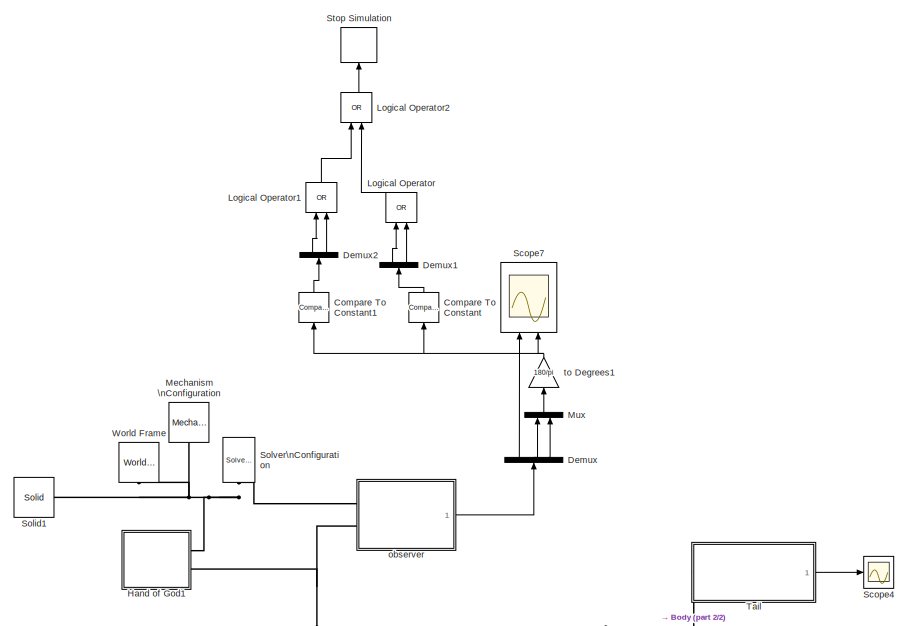
[diagram: root canvas - part 1/2, top center region]
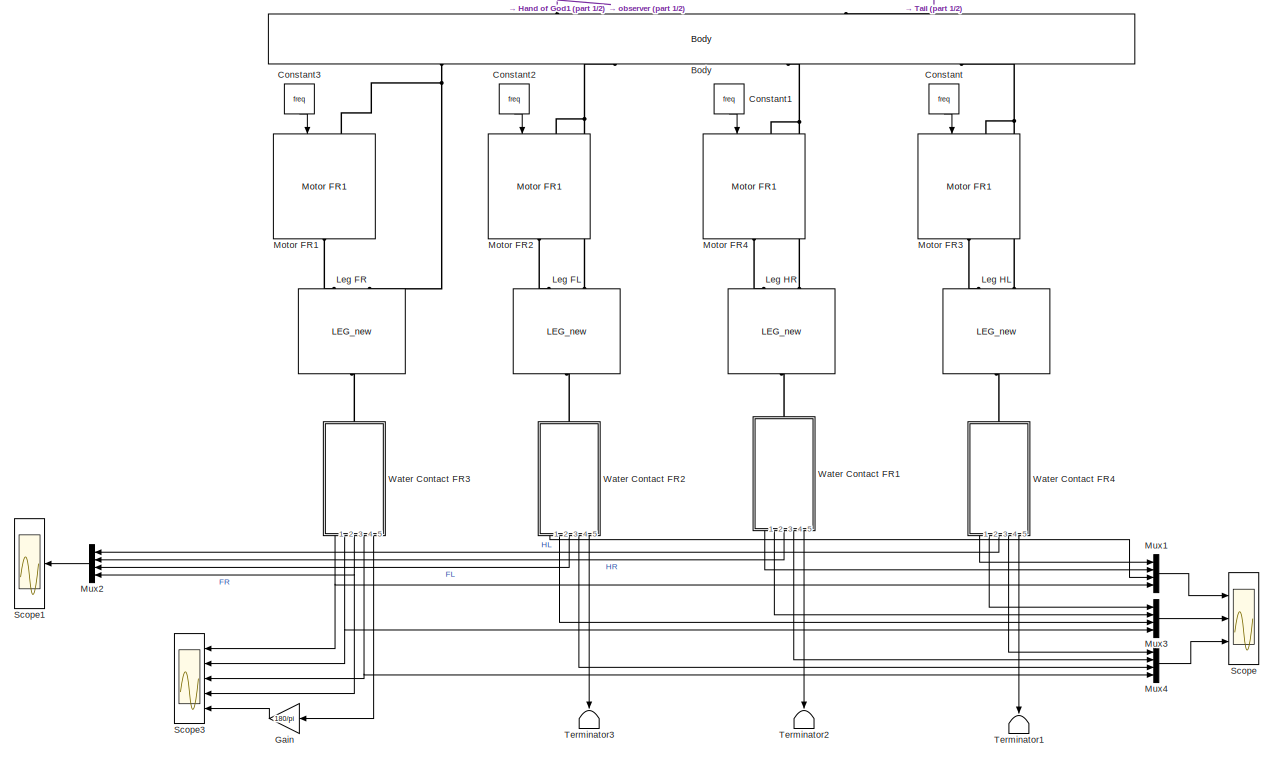
[diagram: root canvas - part 2/2, full width, bottom band]
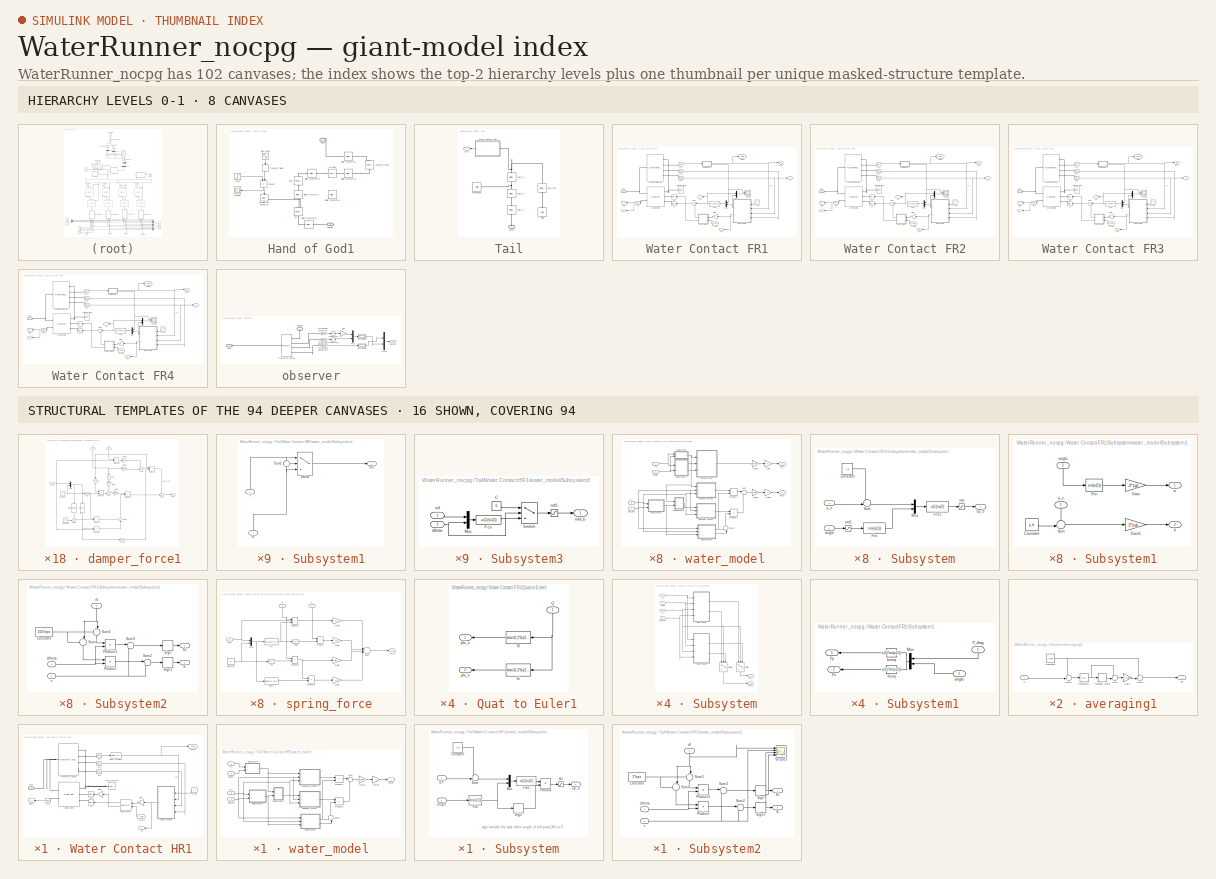
[diagram: thumbnail index - top-2 hierarchy levels (8 canvases) + 16 structural-template representatives of the remaining 94 canvases]
MODEL WaterRunner_nocpg
KIND model
BLOCK [Reference] Body  REF=WaterRunner_lib_2/Body
  Ports = [0, 0, 0, 0, 0, 4, 2]
  SID = 1
  SourceBlock = WaterRunner_lib_2/Body
  SourceType = SubSystem
BLOCK [Reference] Compare To Constant  REF=simulink/Logic and Bit\nOperations/Compare\nTo Constant
  OutDataTypeStr = boolean
  Ports = [1, 1]
  SID = 6964
  SourceBlock = simulink/Logic and Bit\nOperations/Compare\nTo Constant
  SourceType = Compare To Constant
  ZeroCross = on
  const = 45
  relop = >=
BLOCK [Reference] Compare To Constant1  REF=simulink/Logic and Bit\nOperations/Compare\nTo Constant
  OutDataTypeStr = boolean
  Ports = [1, 1]
  SID = 6968
  SourceBlock = simulink/Logic and Bit\nOperations/Compare\nTo Constant
  SourceType = Compare To Constant
  ZeroCross = on
  const = -45
  relop = <=
BLOCK [Constant] Constant
  SID = 6973
  Value = freq
BLOCK [Constant] Constant1
  SID = 6974
  Value = freq
BLOCK [Constant] Constant2
  SID = 6975
  Value = freq
BLOCK [Constant] Constant3
  SID = 6976
  Value = freq
BLOCK [Demux] Demux
  DisplayOption = bar
  Outputs = 3
  Ports = [1, 3]
  SID = 6892
BLOCK [Demux] Demux1
  DisplayOption = bar
  Outputs = 2
  Ports = [1, 2]
  SID = 6966
BLOCK [Demux] Demux2
  DisplayOption = bar
  Outputs = 2
  Ports = [1, 2]
  SID = 6969
BLOCK [Gain] Gain
  Gain = 180/pi
  OutDataTypeStr = Inherit: Inherit via internal rule
  ParamDataTypeStr = Inherit: Inherit via internal rule
  SID = 5950
  SaturateOnIntegerOverflow = off
BLOCK [SubSystem] Hand of God1
  FunctionWithSeparateData = off
  MaskHideContents = off
  MinAlgLoopOccurrences = off
  Opaque = off
  Ports = [0, 0, 0, 0, 0, 0, 2]
  PropExecContextOutsideSubsystem = off
  RTWSystemCode = Auto
  RequestExecContextInheritance = off
  SID = 6981
BLOCK [PMIOPort] Hand of God1/Base
  Port = 1
  SID = 6998
  Side = Right
BLOCK [PMIOPort] Hand of God1/Follower
  Port = 2
  SID = 6999
  Side = Right
BLOCK [Product] Hand of God1/Product
  InputSameDT = off
  OutDataTypeStr = Inherit: Inherit via internal rule
  Ports = [2, 1]
  RndMeth = Floor
  SID = 6982
  SaturateOnIntegerOverflow = off
BLOCK [Reference] Hand of God1/Rigid  Transform1  REF=sm_lib/Frames and\n Transforms/Rigid \nTransform
  BaseAlignAxisA = +Y
  BaseAlignAxisB = +X
  BlockFunction = simmechanics.library.frames_transforms.rigid_transform
  ClassName = RigidTransform
  FollAlignAxisA = +Y
  FollAlignAxisB = +Z
  Ports = [0, 0, 0, 0, 0, 1, 1]
  RotationAngle = 0
  RotationAngleUnits = deg
  RotationArbitraryAxis = [0 0 1]
  RotationMethod = AlignedAxes
  RotationStandardAxis = +Z
  SID = 6983
  SourceBlock = sm_lib/Frames and\n Transforms/Rigid \nTransform
  SourceType = Rigid Transform
  TranslationCartesianOffset = [0 0 0]
  TranslationLengthUnit = m
  TranslationMethod = Cartesian
  TranslationROffset = 0
  TranslationROffsetUnits = m
  TranslationStandardAxis = +Z
  TranslationStandardOffset = 0
  TranslationThetaOffset = 0
  TranslationThetaOffsetUnits = deg
  TranslationZOffset = 0
  TranslationZOffsetUnits = m
BLOCK [Reference] Hand of God1/Rigid  Transform2  REF=sm_lib/Frames and\n Transforms/Rigid \nTransform
  BaseAlignAxisA = +Z
  BaseAlignAxisB = +Y
  BlockFunction = simmechanics.library.frames_transforms.rigid_transform
  ClassName = RigidTransform
  FollAlignAxisA = +X
  FollAlignAxisB = +Z
  Ports = [0, 0, 0, 0, 0, 1, 1]
  RotationAngle = 0
  RotationAngleUnits = deg
  RotationArbitraryAxis = [0 0 1]
  RotationMethod = AlignedAxes
  RotationStandardAxis = +Z
  SID = 6984
  SourceBlock = sm_lib/Frames and\n Transforms/Rigid \nTransform
  SourceType = Rigid Transform
  TranslationCartesianOffset = [0 0 0]
  TranslationLengthUnit = m
  TranslationMethod = None
  TranslationROffset = 0
  TranslationROffsetUnits = m
  TranslationStandardAxis = +Z
  TranslationStandardOffset = 0
  TranslationThetaOffset = 0
  TranslationThetaOffsetUnits = deg
  TranslationZOffset = 0
  TranslationZOffsetUnits = m
BLOCK [Reference] Hand of God1/Rigid  Transform3  REF=sm_lib/Frames and\n Transforms/Rigid \nTransform
  BaseAlignAxisA = +Z
  BaseAlignAxisB = +X
  BlockFunction = simmechanics.library.frames_transforms.rigid_transform
  ClassName = RigidTransform
  FollAlignAxisA = +Y
  FollAlignAxisB = +X
  Ports = [0, 0, 0, 0, 0, 1, 1]
  RotationAngle = 0
  RotationAngleUnits = deg
  RotationArbitraryAxis = [0 0 1]
  RotationMethod = AlignedAxes
  RotationStandardAxis = +Z
  SID = 6985
  SourceBlock = sm_lib/Frames and\n Transforms/Rigid \nTransform
  SourceType = Rigid Transform
  TranslationCartesianOffset = [0 0 0]
  TranslationLengthUnit = m
  TranslationMethod = None
  TranslationROffset = 0
  TranslationROffsetUnits = m
  TranslationStandardAxis = +Z
  TranslationStandardOffset = 0
  TranslationThetaOffset = 0
  TranslationThetaOffsetUnits = deg
  TranslationZOffset = 0
  TranslationZOffsetUnits = m
BLOCK [Reference] Hand of God1/Rigid  Transform4  REF=sm_lib/Frames and\n Transforms/Rigid \nTransform
  BaseAlignAxisA = +X
  BaseAlignAxisB = +Y
  BlockFunction = simmechanics.library.frames_transforms.rigid_transform
  ClassName = RigidTransform
  FollAlignAxisA = +Z
  FollAlignAxisB = +Y
  Ports = [0, 0, 0, 0, 0, 1, 1]
  RotationAngle = 0
  RotationAngleUnits = deg
  RotationArbitraryAxis = [0 0 1]
  RotationMethod = AlignedAxes
  RotationStandardAxis = +Z
  SID = 6986
  SourceBlock = sm_lib/Frames and\n Transforms/Rigid \nTransform
  SourceType = Rigid Transform
  TranslationCartesianOffset = [0 0 0]
  TranslationLengthUnit = m
  TranslationMethod = None
  TranslationROffset = 0
  TranslationROffsetUnits = m
  TranslationStandardAxis = +Z
  TranslationStandardOffset = 0
  TranslationThetaOffset = 0
  TranslationThetaOffsetUnits = deg
  TranslationZOffset = 0
  TranslationZOffsetUnits = m
BLOCK [Reference] Hand of God1/Rigid  Transform5  REF=sm_lib/Frames and\n Transforms/Rigid \nTransform
  BaseAlignAxisA = +Z
  BaseAlignAxisB = +Y
  BlockFunction = simmechanics.library.frames_transforms.rigid_transform
  ClassName = RigidTransform
  FollAlignAxisA = +X
  FollAlignAxisB = +Z
  Ports = [0, 0, 0, 0, 0, 1, 1]
  RotationAngle = 0
  RotationAngleUnits = deg
  RotationArbitraryAxis = [0 0 1]
  RotationMethod = AlignedAxes
  RotationStandardAxis = +Z
  SID = 6987
  SourceBlock = sm_lib/Frames and\n Transforms/Rigid \nTransform
  SourceType = Rigid Transform
  TranslationCartesianOffset = [0 0 0]
  TranslationLengthUnit = m
  TranslationMethod = None
  TranslationROffset = 0
  TranslationROffsetUnits = m
  TranslationStandardAxis = +Z
  TranslationStandardOffset = 0
  TranslationThetaOffset = 0
  TranslationThetaOffsetUnits = deg
  TranslationZOffset = 0
  TranslationZOffsetUnits = m
BLOCK [Reference] Hand of God1/Rigid  Transform6  REF=sm_lib/Frames and\n Transforms/Rigid \nTransform
  BaseAlignAxisA = +Y
  BaseAlignAxisB = +X
  BlockFunction = simmechanics.library.frames_transforms.rigid_transform
  ClassName = RigidTransform
  FollAlignAxisA = +Z
  FollAlignAxisB = +X
  Ports = [0, 0, 0, 0, 0, 1, 1]
  RotationAngle = 0
  RotationAngleUnits = deg
  RotationArbitraryAxis = [0 0 1]
  RotationMethod = AlignedAxes
  RotationStandardAxis = +Z
  SID = 6988
  SourceBlock = sm_lib/Frames and\n Transforms/Rigid \nTransform
  SourceType = Rigid Transform
  TranslationCartesianOffset = [0 0 0]
  TranslationLengthUnit = m
  TranslationMethod = None
  TranslationROffset = 0
  TranslationROffsetUnits = m
  TranslationStandardAxis = +Z
  TranslationStandardOffset = 0
  TranslationThetaOffset = 0
  TranslationThetaOffsetUnits = deg
  TranslationZOffset = 0
  TranslationZOffsetUnits = m
BLOCK [Scope] Hand of God1/Scope7
  DataFormat = StructureWithTime
  Floating = off
  LimitDataPoints = off
  NumInputPorts = 1
  Ports = [1]
  SID = 6989
  SampleTime = 0
  SaveName = command_omega2
  SaveToWorkspace = on
  ShowLegends = off
  TimeRange = 15
  YMax = 0.001
  YMin = 0
  ZoomMode = yonly
BLOCK [Reference] Hand of God1/Simulink-PS Converter  REF=nesl_utility/Simulink-PS\nConverter
  AffineConversion = off
  Frequencies = []
  InputFilterTimeConstant = .001
  InputFiltering = off
  LeftPortType = input
  NoiseDistribution = none
  NoiseParameters = []
  PhysicalDomain = network_engine_domain
  Ports = [1, 0, 0, 0, 0, 0, 1]
  PseudoPeriodic = off
  RightPortType = output
  SID = 6990
  SimscapeFilterOrder = 1
  SourceBlock = nesl_utility/Simulink-PS\nConverter
  SourceType = Simulink-PS\nConverter
  SubClassName = ps_input
  UdotUserProvided = []
  Unit = 1
BLOCK [Sin] Hand of God1/Sine Wave
  Amplitude = dTorqueAmp
  Frequency = dTorqueFreq
  Ports = [0, 1]
  SID = 6991
  SampleTime = 0
BLOCK [Step] Hand of God1/Step
  After = 0
  Before = 1
  SID = 6992
  SampleTime = 0
  Time = 3.5
BLOCK [TransportDelay] Hand of God1/Transport Delay
  DelayTime = 2
  Ports = [1, 1]
  SID = 6993
BLOCK [Reference] Hand of God1/forward motion  REF=sm_lib/Joints/Prismatic \nJoint
  ActuationMode = NoActuation
  BlockFunction = simmechanics.library.joints.prismatic_joint
  ClassName = PrismaticJoint
  ConstraintWrenchDir = FollowerOnBase
  ConstraintWrenchFrame = BaseFrame
  DampingCoefficient = .5
  DampingCoefficientUnits = N/(m/s)
  EquilibriumPosition = 0
  EquilibriumPositionUnits = m
  Ports = [0, 0, 0, 0, 0, 1, 1]
  PositionTargetPriority = High
  PositionTargetSpecify = on
  PositionTargetValue = 0
  PositionTargetValueUnits = m
  SID = 6994
  SenseAcceleration = off
  SenseConstraintForceX = off
  SenseConstraintForceY = off
  SenseConstraintForceZ = off
  SenseConstraintTorqueX = off
  SenseConstraintTorqueY = off
  SenseConstraintTorqueZ = off
  SensePosition = off
  SenseTorqueForce = off
  SenseVelocity = off
  SourceBlock = sm_lib/Joints/Prismatic \nJoint
  SourceType = Prismatic Joint
  SpringStiffness = 0
  SpringStiffnessUnits = N/m
  VelocityTargetPriority = High
  VelocityTargetSpecify = on
  VelocityTargetValue = 2
  VelocityTargetValueUnits = m/s
BLOCK [Reference] Hand of God1/pitch  REF=sm_lib/Joints/Revolute Joint
  ActuationMode = NoActuation
  BlockFunction = simmechanics.library.joints.revolute_joint
  ClassName = RevoluteJoint
  ConstraintWrenchDir = FollowerOnBase
  ConstraintWrenchFrame = BaseFrame
  DampingCoefficient = 0
  DampingCoefficientUnits = N*m/(deg/s)
  EquilibriumPosition = 0
  EquilibriumPositionUnits = deg
  Ports = [0, 0, 0, 0, 0, 1, 1]
  PositionTargetPriority = High
  PositionTargetSpecify = on
  PositionTargetValue = phi0
  PositionTargetValueUnits = rad
  SID = 6995
  SenseAcceleration = off
  SenseConstraintForceX = off
  SenseConstraintForceY = off
  SenseConstraintForceZ = off
  SenseConstraintTorqueX = off
  SenseConstraintTorqueY = off
  SenseConstraintTorqueZ = off
  SensePosition = off
  SenseTorqueForce = off
  SenseVelocity = off
  SourceBlock = sm_lib/Joints/Revolute Joint
  SourceType = Revolute Joint
  SpringStiffness = 0
  SpringStiffnessUnits = N*m/deg
  VelocityTargetPriority = High
  VelocityTargetSpecify = on
  VelocityTargetValue = 0
  VelocityTargetValueUnits = rad/s
BLOCK [Reference] Hand of God1/roll  REF=sm_lib/Joints/Revolute Joint
  ActuationMode = TorqueForceActuation
  BlockFunction = simmechanics.library.joints.revolute_joint
  ClassName = RevoluteJoint
  ConstraintWrenchDir = FollowerOnBase
  ConstraintWrenchFrame = BaseFrame
  DampingCoefficient = 0
  DampingCoefficientUnits = N*m/(deg/s)
  EquilibriumPosition = 0
  EquilibriumPositionUnits = deg
  Ports = [0, 0, 0, 0, 0, 2, 1]
  PositionTargetPriority = High
  PositionTargetSpecify = on
  PositionTargetValue = theta0
  PositionTargetValueUnits = rad
  SID = 6996
  SenseAcceleration = off
  SenseConstraintForceX = off
  SenseConstraintForceY = off
  SenseConstraintForceZ = off
  SenseConstraintTorqueX = off
  SenseConstraintTorqueY = off
  SenseConstraintTorqueZ = off
  SensePosition = off
  SenseTorqueForce = off
  SenseVelocity = off
  SourceBlock = sm_lib/Joints/Revolute Joint
  SourceType = Revolute Joint
  SpringStiffness = 0
  SpringStiffnessUnits = N*m/deg
  VelocityTargetPriority = High
  VelocityTargetSpecify = on
  VelocityTargetValue = 0
  VelocityTargetValueUnits = rad/s
BLOCK [Reference] Hand of God1/up down  REF=sm_lib/Joints/Prismatic \nJoint
  ActuationMode = NoActuation
  BlockFunction = simmechanics.library.joints.prismatic_joint
  ClassName = PrismaticJoint
  ConstraintWrenchDir = FollowerOnBase
  ConstraintWrenchFrame = BaseFrame
  DampingCoefficient = 0
  DampingCoefficientUnits = N/(m/s)
  EquilibriumPosition = 0
  EquilibriumPositionUnits = m
  Ports = [0, 0, 0, 0, 0, 1, 1]
  PositionTargetPriority = High
  PositionTargetSpecify = on
  PositionTargetValue = y0
  PositionTargetValueUnits = m
  SID = 6997
  SenseAcceleration = off
  SenseConstraintForceX = off
  SenseConstraintForceY = off
  SenseConstraintForceZ = off
  SenseConstraintTorqueX = off
  SenseConstraintTorqueY = off
  SenseConstraintTorqueZ = off
  SensePosition = off
  SenseTorqueForce = off
  SenseVelocity = off
  SourceBlock = sm_lib/Joints/Prismatic \nJoint
  SourceType = Prismatic Joint
  SpringStiffness = 0
  SpringStiffnessUnits = N/m
  VelocityTargetPriority = High
  VelocityTargetSpecify = on
  VelocityTargetValue = 0
  VelocityTargetValueUnits = m/s
BLOCK [Reference] Leg FL  REF=WaterRunner_lib_2/LEG_new
  Ports = [0, 0, 0, 0, 0, 2, 1]
  SID = 237
  SourceBlock = WaterRunner_lib_2/LEG_new
  init_pas_ang = 0
  p_CF_density = CF_density
  p_L1 = L1
  p_L2 = L2
  p_L3 = L3
  p_L4 = L4
  p_L5 = L5
  p_bar_h = bar_h
  p_bar_w = bar_w
BLOCK [Reference] Leg FR  REF=WaterRunner_lib_2/LEG_new
  Ports = [0, 0, 0, 0, 0, 2, 1]
  SID = 16
  SourceBlock = WaterRunner_lib_2/LEG_new
  init_pas_ang = 0
  p_CF_density = CF_density
  p_L1 = L1
  p_L2 = L2
  p_L3 = L3
  p_L4 = L4
  p_L5 = L5
  p_bar_h = bar_h
  p_bar_w = bar_w
BLOCK [Reference] Leg HL  REF=WaterRunner_lib_2/LEG_new
  Ports = [0, 0, 0, 0, 0, 2, 1]
  SID = 233
  SourceBlock = WaterRunner_lib_2/LEG_new
  init_pas_ang = 0
  p_CF_density = CF_density
  p_L1 = L1
  p_L2 = L2
  p_L3 = L3
  p_L4 = L4
  p_L5 = L5
  p_bar_h = bar_h
  p_bar_w = bar_w
BLOCK [Reference] Leg HR  REF=WaterRunner_lib_2/LEG_new
  Ports = [0, 0, 0, 0, 0, 2, 1]
  SID = 239
  SourceBlock = WaterRunner_lib_2/LEG_new
  init_pas_ang = 0
  p_CF_density = CF_density
  p_L1 = L1
  p_L2 = L2
  p_L3 = L3
  p_L4 = L4
  p_L5 = L5
  p_bar_h = bar_h
  p_bar_w = bar_w
BLOCK [Logic] Logical Operator
  AllPortsSameDT = off
  Operator = OR
  OutDataTypeStr = boolean
  Ports = [2, 1]
  SID = 6965
BLOCK [Logic] Logical Operator1
  AllPortsSameDT = off
  Operator = OR
  OutDataTypeStr = boolean
  Ports = [2, 1]
  SID = 6970
BLOCK [Logic] Logical Operator2
  AllPortsSameDT = off
  Operator = OR
  OutDataTypeStr = boolean
  Ports = [2, 1]
  SID = 6971
BLOCK [Reference] Mechanism \nConfiguration  REF=sm_lib/Utilities/Mechanism \nConfiguration
  AllowGravitySignal = off
  BlockFunction = simmechanics.library.utilities.mechanism_configuration
  ClassName = MechanismConfiguration
  GravityUnits = m/s^2
  GravityVector = [0 -9.81 0]
  LinearizationDelta = 0.001
  Ports = [0, 0, 0, 0, 0, 0, 1]
  SID = 8
  SourceBlock = sm_lib/Utilities/Mechanism \nConfiguration
  SourceType = Mechanism Configuration
BLOCK [Reference] Motor FR1  REF=WaterRunner_lib_2/Motor FR1
  Ports = [1, 0, 0, 0, 0, 1, 1]
  SID = 4622
  SourceBlock = WaterRunner_lib_2/Motor FR1
  init_ang = 180
BLOCK [Reference] Motor FR2  REF=WaterRunner_lib_2/Motor FR1
  Ports = [1, 0, 0, 0, 0, 1, 1]
  SID = 4623
  SourceBlock = WaterRunner_lib_2/Motor FR1
  init_ang = 0
BLOCK [Reference] Motor FR3  REF=WaterRunner_lib_2/Motor FR1
  Ports = [1, 0, 0, 0, 0, 1, 1]
  SID = 5158
  SourceBlock = WaterRunner_lib_2/Motor FR1
  init_ang = -180
BLOCK [Reference] Motor FR4  REF=WaterRunner_lib_2/Motor FR1
  Ports = [1, 0, 0, 0, 0, 1, 1]
  SID = 5159
  SourceBlock = WaterRunner_lib_2/Motor FR1
  init_ang = 0
BLOCK [Mux] Mux
  DisplayOption = bar
  Inputs = 2
  Ports = [2, 1]
  SID = 6893
BLOCK [Mux] Mux1
  DisplayOption = bar
  Ports = [4, 1]
  SID = 5641
BLOCK [Mux] Mux2
  DisplayOption = bar
  Ports = [4, 1]
  SID = 1083
BLOCK [Mux] Mux3
  DisplayOption = bar
  Ports = [4, 1]
  SID = 5642
BLOCK [Mux] Mux4
  DisplayOption = bar
  Ports = [4, 1]
  SID = 5948
BLOCK [Scope] Scope
  DataFormat = StructureWithTime
  Floating = off
  LimitDataPoints = off
  NumInputPorts = 3
  Ports = [3]
  SID = 1072
  SampleTime = 0
  ShowLegends = off
  YMax = 0.325~0.75~0.045
  YMin = 0~-2.5~-0.04
  ZoomMode = yonly
BLOCK [Scope] Scope1
  DataFormat = StructureWithTime
  Floating = off
  LimitDataPoints = off
  NumInputPorts = 1
  Ports = [1]
  SID = 1082
  SampleTime = 0
  SaveName = ScopeData1
  ShowLegends = on
  YMax = 0.75
  YMin = -2.5
BLOCK [Scope] Scope3
  DataFormat = StructureWithTime
  Floating = off
  LegendLocations = 0.76318      0.9283      0.1977    0.025577\n0.76318     0.73962      0.1977    0.025577\n0.76318      0.5522      0.1977    0.025577\n0.86905     0.36478    0.091837    0.025577\n0.75298      0.1761     0.10204    0.025577
  LimitDataPoints = off
  NumInputPorts = 5
  Ports = [5]
  SID = 5949
  SampleTime = 0
  SaveName = ScopeData4
  ShowLegends = on
  YMax = 1.1~2.5~0.1~7.5~130
  YMin = 0~-15~-0.125~-7.5~0
BLOCK [Scope] Scope4
  DataFormat = StructureWithTime
  Floating = off
  NumInputPorts = 1
  Ports = [1]
  SID = 6004
  SampleTime = 0
  SaveName = ScopeData2
  ShowLegends = off
BLOCK [Scope] Scope7
  DataFormat = StructureWithTime
  Floating = off
  LimitDataPoints = off
  NumInputPorts = 2
  Ports = [2]
  SID = 6894
  SampleTime = 0
  SaveName = output
  SaveToWorkspace = on
  ShowLegends = off
  TimeRange = 10
  YMax = 0.0175~12.5
  YMin = -0.015~-45
  ZoomMode = xonly
BLOCK [Reference] Solid1  REF=sm_lib/Body Elements/Solid
  BlockFunction = simmechanics.library.body_elements.solid
  BrickDimensionUnits = m
  BrickDimensions = [20 .001 1]
  CenterOfMass = [0 0 0]
  CenterOfMassUnits = m
  ClassName = Solid
  CylinderLength = 1
  CylinderLengthUnits = m
  CylinderRadius = 1
  CylinderRadiusUnits = m
  Density = 1000
  DensityBased = on
  DensityUnits = kg/(m^3)
  EllipsoidRadii = [1 1 1]
  EllipsoidRadiiUnits = m
  ExtGeomFileUnits = m
  ExtrusionCrossSection = [1 1; -1 1; -1 -1; 1 -1]
  ExtrusionCrossSectionUnits = m
  ExtrusionLength = 1
  ExtrusionLengthUnits = m
  GeometryShape = Brick
  GraphicAmbientColor = [0.15 0.15 0.15 1.0]
  GraphicDiffuseColor = [0.4 0.4 1.0]
  GraphicEmissiveColor = [0.0 0.0 0.0 1.0]
  GraphicOpacity = 0.5
  GraphicShininess = 75
  GraphicSpecularColor = [0.5 0.5 0.5 1.0]
  GraphicType = FromGeometry
  GraphicVisPropType = SimpleVisualProperties
  InertiaType = PointMass
  MarkerShape = Sphere
  MarkerSize = 10
  MarkerSizeUnits = m
  Mass = 0
  MassUnits = kg
  MomentsOfInertia = [1 1 1]
  MomentsOfInertiaUnits = kg*m^2
  PolygonNumSides = 3
  PolygonOuterRadius = 1
  PolygonOuterRadiusUnits = m
  Ports = [0, 0, 0, 0, 0, 0, 1]
  ProductsOfInertia = [0 0 0]
  ProductsOfInertiaUnits = kg*m^2
  RectangleSize = [1 1]
  RectangleSizeUnits = m
  RevolutionAngle = 180
  RevolutionAngleUnits = deg
  RevolutionCrossSection = [1 1; 1 -1; 2 -1; 2 1]
  RevolutionCrossSectionUnits = m
  RevolutionExtent = Full
  SID = 4538
  SourceBlock = sm_lib/Body Elements/Solid
  SourceType = Solid
  SphereRadius = 1
  SphereRadiusUnits = m
BLOCK [Reference] Solver\nConfiguration  REF=nesl_utility/Solver\nConfiguration
  Accelerate = off
  DelaysMemoryBudget = 1024
  DoDC = off
  DoFixedCost = off
  EnableSwitchedLinearOptims = on
  FrequencyDomain = off
  Harmonics = []
  LeftPortType = input
  LinearAlgebra = Sparse
  LocalSolverChoice = NE_BACKWARD_EULER_ADVANCER
  LocalSolverSampleTime = .001
  MaxModeIter = 2
  MaxNonlinIter = 3
  PhysicalDomain = network_engine_domain
  Ports = [0, 0, 0, 0, 0, 0, 1]
  Profile = off
  ResidualTolerance = 1e-3
  RightPortType = generic
  SID = 9
  SimulateNoise = off
  SourceBlock = nesl_utility/Solver\nConfiguration
  SourceType = Solver\nConfiguration
  SubClassName = solver
  Tones = []
  UseCCode = off
  UseLocalSampling = off
  UseLocalSolver = off
  UseNewInitialization = off
BLOCK [Stop] Stop Simulation
  SID = 6962
BLOCK [SubSystem] Tail
  FunctionWithSeparateData = off
  MaskHideContents = off
  MinAlgLoopOccurrences = off
  Opaque = off
  Ports = [0, 1, 0, 0, 0, 1]
  PropExecContextOutsideSubsystem = off
  RTWSystemCode = Auto
  RequestExecContextInheritance = off
  SID = 5992
BLOCK [PMIOPort] Tail/Conn1
  Port = 1
  SID = 6134
  Side = Left
BLOCK [Outport] Tail/Out1
  IconDisplay = Port number
  SID = 6135
BLOCK [Reference] Tail/PassiveLink  REF=sm_lib/Body Elements/Solid
  BlockFunction = simmechanics.library.body_elements.solid
  BrickDimensionUnits = m
  BrickDimensions = tail_dim
  CenterOfMass = [0 0 0]
  CenterOfMassUnits = m
  ClassName = Solid
  CylinderLength = 1
  CylinderLengthUnits = m
  CylinderRadius = 1
  CylinderRadiusUnits = m
  Density = tail_density*0
  DensityBased = on
  DensityUnits = kg/(m^3)
  EllipsoidRadii = [1 1 1]
  EllipsoidRadiiUnits = m
  ExtGeomFileUnits = m
  ExtrusionCrossSection = [1 1; -1 1; -1 -1; 1 -1]
  ExtrusionCrossSectionUnits = m
  ExtrusionLength = 1
  ExtrusionLengthUnits = m
  GeometryShape = Brick
  GraphicAmbientColor = [0.15 0.15 0.15 1.0]
  GraphicDiffuseColor = [0.4 1.0 0.4]
  GraphicEmissiveColor = [0.0 0.0 0.0 1.0]
  GraphicOpacity = 1.0
  GraphicShininess = 75
  GraphicSpecularColor = [0.5 0.5 0.5 1.0]
  GraphicType = FromGeometry
  GraphicVisPropType = SimpleVisualProperties
  InertiaType = CalculateFromGeometry
  MarkerShape = Sphere
  MarkerSize = 10
  MarkerSizeUnits = m
  Mass = 1
  MassUnits = kg
  MomentsOfInertia = [1 1 1]
  MomentsOfInertiaUnits = kg*m^2
  PolygonNumSides = 3
  PolygonOuterRadius = 1
  PolygonOuterRadiusUnits = m
  Ports = [0, 0, 0, 0, 0, 0, 1]
  ProductsOfInertia = [0 0 0]
  ProductsOfInertiaUnits = kg*m^2
  RectangleSize = [1 1]
  RectangleSizeUnits = m
  RevolutionAngle = 180
  RevolutionAngleUnits = deg
  RevolutionCrossSection = [1 1; 1 -1; 2 -1; 2 1]
  RevolutionCrossSectionUnits = m
  RevolutionExtent = Full
  SID = 5993
  SourceBlock = sm_lib/Body Elements/Solid
  SourceType = Solid
  SphereRadius = 1
  SphereRadiusUnits = m
BLOCK [Reference] Tail/Solid  REF=sm_lib/Body Elements/Solid
  BlockFunction = simmechanics.library.body_elements.solid
  BrickDimensionUnits = m
  BrickDimensions = [1 1 1]
  CenterOfMass = [0 0 0]
  CenterOfMassUnits = m
  ClassName = Solid
  CylinderLength = 0.001
  CylinderLengthUnits = m
  CylinderRadius = tail_pad_radius
  CylinderRadiusUnits = m
  Density = 0
  DensityBased = on
  DensityUnits = kg/(m^3)
  EllipsoidRadii = [1 1 1]
  EllipsoidRadiiUnits = m
  ExtGeomFileUnits = m
  ExtrusionCrossSection = [1 1; -1 1; -1 -1; 1 -1]
  ExtrusionCrossSectionUnits = m
  ExtrusionLength = 1
  ExtrusionLengthUnits = m
  GeometryShape = Cylinder
  GraphicAmbientColor = [0.15 0.15 0.15 1.0]
  GraphicDiffuseColor = [0.5 0.5 0.5]
  GraphicEmissiveColor = [0.0 0.0 0.0 1.0]
  GraphicOpacity = 1.0
  GraphicShininess = 75
  GraphicSpecularColor = [0.5 0.5 0.5 1.0]
  GraphicType = FromGeometry
  GraphicVisPropType = SimpleVisualProperties
  InertiaType = PointMass
  MarkerShape = Sphere
  MarkerSize = 10
  MarkerSizeUnits = m
  Mass = 0
  MassUnits = kg
  MomentsOfInertia = [1 1 1]
  MomentsOfInertiaUnits = kg*m^2
  PolygonNumSides = 3
  PolygonOuterRadius = 1
  PolygonOuterRadiusUnits = m
  Ports = [0, 0, 0, 0, 0, 0, 1]
  ProductsOfInertia = [0 0 0]
  ProductsOfInertiaUnits = kg*m^2
  RectangleSize = [1 1]
  RectangleSizeUnits = m
  RevolutionAngle = 180
  RevolutionAngleUnits = deg
  RevolutionCrossSection = [1 1; 1 -1; 2 -1; 2 1]
  RevolutionCrossSectionUnits = m
  RevolutionExtent = Full
  SID = 5994
  SourceBlock = sm_lib/Body Elements/Solid
  SourceType = Solid
  SphereRadius = 1
  SphereRadiusUnits = m
BLOCK [SubSystem] Tail/Water Contact HR1
  FunctionWithSeparateData = off
  MaskHideContents = off
  MinAlgLoopOccurrences = off
  Opaque = off
  Ports = [0, 1, 0, 0, 0, 1]
  PropExecContextOutsideSubsystem = off
  RTWSystemCode = Auto
  RequestExecContextInheritance = off
  SID = 5995
BLOCK [Reference] Tail/Water Contact HR1/6-DOF Joint2  REF=sm_lib/Joints/6-DOF Joint
  BlockFunction = simmechanics.library.joints.sixdof_joint
  ClassName = SixDofJoint
  ConstraintWrenchDir = FollowerOnBase
  ConstraintWrenchFrame = BaseFrame
  Ports = [0, 0, 0, 0, 0, 3, 2]
  PxActuationMode = TorqueForceActuation
  PxDampingCoefficient = 0
  PxDampingCoefficientUnits = N/(m/s)
  PxEquilibriumPosition = 0
  PxEquilibriumPositionUnits = m
  PxPositionTargetPriority = High
  PxPositionTargetSpecify = off
  PxPositionTargetValue = 0
  PxPositionTargetValueUnits = m
  PxSenseAcceleration = off
  PxSensePosition = off
  PxSenseTorqueForce = off
  PxSenseVelocity = off
  PxSpringStiffness = 0
  PxSpringStiffnessUnits = N/m
  PxVelocityTargetPriority = High
  PxVelocityTargetSpecify = off
  PxVelocityTargetValue = 0
  PxVelocityTargetValueUnits = m/s
  PyActuationMode = TorqueForceActuation
  PyDampingCoefficient = 0
  PyDampingCoefficientUnits = N/(m/s)
  PyEquilibriumPosition = 0
  PyEquilibriumPositionUnits = m
  PyPositionTargetPriority = High
  PyPositionTargetSpecify = off
  PyPositionTargetValue = 0
  PyPositionTargetValueUnits = m
  PySenseAcceleration = off
  PySensePosition = on
  PySenseTorqueForce = off
  PySenseVelocity = off
  PySpringStiffness = 0
  PySpringStiffnessUnits = N/m
  PyVelocityTargetPriority = High
  PyVelocityTargetSpecify = off
  PyVelocityTargetValue = 0
  PyVelocityTargetValueUnits = m/s
  PzActuationMode = NoActuation
  PzDampingCoefficient = 0
  PzDampingCoefficientUnits = N/(m/s)
  PzEquilibriumPosition = 0
  PzEquilibriumPositionUnits = m
  PzPositionTargetPriority = High
  PzPositionTargetSpecify = off
  PzPositionTargetValue = 0
  PzPositionTargetValueUnits = m
  PzSenseAcceleration = off
  PzSensePosition = off
  PzSenseTorqueForce = off
  PzSenseVelocity = off
  PzSpringStiffness = 0
  PzSpringStiffnessUnits = N/m
  PzVelocityTargetPriority = High
  PzVelocityTargetSpecify = off
  PzVelocityTargetValue = 0
  PzVelocityTargetValueUnits = m/s
  SID = 5996
  SenseConstraintForceX = off
  SenseConstraintForceY = off
  SenseConstraintForceZ = off
  SenseConstraintTorqueX = off
  SenseConstraintTorqueY = off
  SenseConstraintTorqueZ = off
  SourceBlock = sm_lib/Joints/6-DOF Joint
  SourceType = 6-DOF Joint
  SphActuateTorque = off
  SphActuateTorqueX = off
  SphActuateTorqueY = off
  SphActuateTorqueZ = off
  SphActuationFrame = BaseFrame
  SphActuationMode = NoActuation
  SphDampingCoefficient = 0
  SphDampingCoefficientUnits = N*m/(deg/s)
  SphDefPosBaseAlignAxisA = +Y
  SphDefPosBaseAlignAxisB = +Z
  SphDefPosFollAlignAxisA = +X
  SphDefPosFollAlignAxisB = +Y
  SphDefPosRotationAngle = 0
  SphDefPosRotationAngleUnits = deg
  SphDefPosRotationArbitraryAxis = [0 0 1]
  SphDefPosRotationMethod = None
  SphDefPosRotationStandardAxis = +Z
  SphEqPosBaseAlignAxisA = +Y
  SphEqPosBaseAlignAxisB = +Z
  SphEqPosFollAlignAxisA = +X
  SphEqPosFollAlignAxisB = +Y
  SphEqPosRotationAngle = 0
  SphEqPosRotationAngleUnits = deg
  SphEqPosRotationArbitraryAxis = [0 0 1]
  SphEqPosRotationMethod = None
  SphEqPosRotationStandardAxis = +Z
  SphPositionTargetBaseAlignAxisA = +Y
  SphPositionTargetBaseAlignAxisB = +Z
  SphPositionTargetFollAlignAxisA = +X
  SphPositionTargetFollAlignAxisB = +Y
  SphPositionTargetPriority = High
  SphPositionTargetRotationAngle = 0
  SphPositionTargetRotationAngleUnits = deg
  SphPositionTargetRotationArbitraryAxis = [0 0 1]
  SphPositionTargetRotationMethod = None
  SphPositionTargetRotationStandardAxis = +Z
  SphPositionTargetSpecify = off
  SphSenseAcceleration = off
  SphSenseAccelerationX = off
  SphSenseAccelerationY = off
  SphSenseAccelerationZ = off
  SphSensePosition = off
  SphSenseTorqueForce = off
  SphSenseTorqueX = off
  SphSenseTorqueY = off
  SphSenseTorqueZ = off
  SphSenseVelocity = off
  SphSenseVelocityX = off
  SphSenseVelocityY = off
  SphSenseVelocityZ = off
  SphSensingFrame = BaseFrame
  SphSpringStiffness = 0
  SphSpringStiffnessUnits = N*m/deg
  SphVelocityTargetInFollowerFrame = on
  SphVelocityTargetPriority = High
  SphVelocityTargetSpecify = off
  SphVelocityTargetValue = [0 0 0]
  SphVelocityTargetValueUnits = deg/s
BLOCK [Outport] Tail/Water Contact HR1/Fb
  IconDisplay = Port number
  SID = 6129
BLOCK [PMIOPort] Tail/Water Contact HR1/Foot
  Port = 1
  SID = 6128
  Side = Left
BLOCK [From] Tail/Water Contact HR1/From
  GotoTag = y_c
  SID = 5997
BLOCK [From] Tail/Water Contact HR1/From1
  GotoTag = angle
  SID = 5998
BLOCK [Gain] Tail/Water Contact HR1/Gain
  Gain = -1
  OutDataTypeStr = Inherit: Inherit via internal rule
  ParamDataTypeStr = Inherit: Inherit via internal rule
  SID = 5999
  SaturateOnIntegerOverflow = off
BLOCK [Gain] Tail/Water Contact HR1/Gain1
  Gain = -1
  OutDataTypeStr = Inherit: Inherit via internal rule
  ParamDataTypeStr = Inherit: Inherit via internal rule
  SID = 6000
  SaturateOnIntegerOverflow = off
BLOCK [Goto] Tail/Water Contact HR1/Goto
  GotoTag = y_c
  SID = 6001
BLOCK [Goto] Tail/Water Contact HR1/Goto1
  GotoTag = angle
  SID = 6002
BLOCK [Reference] Tail/Water Contact HR1/Quat to Euler1  REF=WaterRunner_lib_2/Water Contact FR/Quat to Euler1
  Ports = [1, 1]
  SID = 6003
  SourceBlock = WaterRunner_lib_2/Water Contact FR/Quat to Euler1
  SourceType = SubSystem
BLOCK [Reference] Tail/Water Contact HR1/Subsystem1  REF=WaterRunner_lib_2/Water Contact FR/Subsystem1
  Ports = [2, 2]
  SID = 6005
  SourceBlock = WaterRunner_lib_2/Water Contact FR/Subsystem1
  SourceType = SubSystem
BLOCK [Reference] Tail/Water Contact HR1/Transform  Sensor  REF=sm_lib/Frames and\n Transforms/Transform \nSensor
  BlockFunction = simmechanics.library.frames_transforms.transform_sensor
  ClassName = TransformSensor
  MeasurementFrame = NonRotatingBase
  Ports = [0, 0, 0, 0, 0, 1, 4]
  SID = 6006
  SenseAlpha1 = off
  SenseAlpha2 = off
  SenseAlpha3 = off
  SenseAlphaX = off
  SenseAlphaY = off
  SenseAlphaZ = off
  SenseAngle = off
  SenseAngle1 = off
  SenseAngle2 = off
  SenseAngle3 = off
  SenseAxis = off
  SenseAzim = off
  SenseAzimDDot = off
  SenseAzimDot = off
  SenseDist = off
  SenseDistDDot = off
  SenseDistDot = off
  SenseInc = off
  SenseIncDDot = off
  SenseIncDot = off
  SenseOmega1 = off
  SenseOmega2 = off
  SenseOmega3 = off
  SenseOmegaX = off
  SenseOmegaY = off
  SenseOmegaZ = on
  SenseQ = on
  SenseQDDot = off
  SenseQDot = off
  SenseR = off
  SenseRDDot = off
  SenseRDot = off
  SenseRad = off
  SenseRadDDot = off
  SenseRadDot = off
  SenseX = off
  SenseXDDot = off
  SenseXDot = off
  SenseY = off
  SenseYDDot = off
  SenseYDot = on
  SenseZ = off
  SenseZDDot = off
  SenseZDot = off
  SourceBlock = sm_lib/Frames and\n Transforms/Transform \nSensor
  SourceType = Transform Sensor
BLOCK [Reference] Tail/Water Contact HR1/World Frame1  REF=sm_lib/Frames and\n Transforms/World Frame
  BlockFunction = simmechanics.library.frames_transforms.world_frame
  ClassName = WorldFrame
  Ports = [0, 0, 0, 0, 0, 0, 1]
  SID = 6007
  SourceBlock = sm_lib/Frames and\n Transforms/World Frame
  SourceType = World Frame
BLOCK [Reference] Tail/Water Contact HR1/p  REF=nesl_utility/Simulink-PS\nConverter
  AffineConversion = off
  Frequencies = []
  InputFilterTimeConstant = .001
  InputFiltering = off
  LeftPortType = input
  NoiseDistribution = none
  NoiseParameters = []
  PhysicalDomain = network_engine_domain
  Ports = [1, 0, 0, 0, 0, 0, 1]
  PseudoPeriodic = off
  RightPortType = output
  SID = 6008
  SimscapeFilterOrder = 1
  SourceBlock = nesl_utility/Simulink-PS\nConverter
  SourceType = Simulink-PS\nConverter
  SubClassName = ps_input
  UdotUserProvided = []
  Unit = 1
BLOCK [Reference] Tail/Water Contact HR1/p2  REF=nesl_utility/Simulink-PS\nConverter
  AffineConversion = off
  Frequencies = []
  InputFilterTimeConstant = .001
  InputFiltering = off
  LeftPortType = input
  NoiseDistribution = none
  NoiseParameters = []
  PhysicalDomain = network_engine_domain
  Ports = [1, 0, 0, 0, 0, 0, 1]
  PseudoPeriodic = off
  RightPortType = output
  SID = 6009
  SimscapeFilterOrder = 1
  SourceBlock = nesl_utility/Simulink-PS\nConverter
  SourceType = Simulink-PS\nConverter
  SubClassName = ps_input
  UdotUserProvided = []
  Unit = 1
BLOCK [Reference] Tail/Water Contact HR1/px1  REF=nesl_utility/PS-Simulink\nConverter
  AffineConversion = off
  Frequencies = []
  LeftPortType = input
  PhysicalDomain = network_engine_domain
  Ports = [0, 1, 0, 0, 0, 1]
  PseudoPeriodic = off
  RightPortType = output
  SID = 6010
  SourceBlock = nesl_utility/PS-Simulink\nConverter
  SourceType = PS-Simulink\nConverter
  SubClassName = ps_output
  Unit = 1
BLOCK [Reference] Tail/Water Contact HR1/px2  REF=nesl_utility/PS-Simulink\nConverter
  AffineConversion = off
  Frequencies = []
  LeftPortType = input
  PhysicalDomain = network_engine_domain
  Ports = [0, 1, 0, 0, 0, 1]
  PseudoPeriodic = off
  RightPortType = output
  SID = 6011
  SourceBlock = nesl_utility/PS-Simulink\nConverter
  SourceType = PS-Simulink\nConverter
  SubClassName = ps_output
  Unit = 1
BLOCK [Reference] Tail/Water Contact HR1/px3  REF=nesl_utility/PS-Simulink\nConverter
  AffineConversion = off
  Frequencies = []
  LeftPortType = input
  PhysicalDomain = network_engine_domain
  Ports = [0, 1, 0, 0, 0, 1]
  PseudoPeriodic = off
  RightPortType = output
  SID = 6012
  SourceBlock = nesl_utility/PS-Simulink\nConverter
  SourceType = PS-Simulink\nConverter
  SubClassName = ps_output
  Unit = 1
BLOCK [Reference] Tail/Water Contact HR1/px4  REF=nesl_utility/PS-Simulink\nConverter
  AffineConversion = off
  Frequencies = []
  LeftPortType = input
  PhysicalDomain = network_engine_domain
  Ports = [0, 1, 0, 0, 0, 1]
  PseudoPeriodic = off
  RightPortType = output
  SID = 6013
  SourceBlock = nesl_utility/PS-Simulink\nConverter
  SourceType = PS-Simulink\nConverter
  SubClassName = ps_output
  Unit = 1
BLOCK [SubSystem] Tail/Water Contact HR1/water_model
  FunctionWithSeparateData = off
  MaskHideContents = off
  MinAlgLoopOccurrences = off
  Opaque = off
  Ports = [4, 1]
  PropExecContextOutsideSubsystem = off
  RTWSystemCode = Auto
  RequestExecContextInheritance = off
  SID = 6014
BLOCK [Outport] Tail/Water Contact HR1/water_model/Fb_w
  IconDisplay = Port number
  SID = 6127
BLOCK [Gain] Tail/Water Contact HR1/water_model/Gain1
  Gain = Cd*density
  OutDataTypeStr = Inherit: Inherit via internal rule
  ParamDataTypeStr = Inherit: Inherit via internal rule
  SID = 6019
  SaturateOnIntegerOverflow = off
BLOCK [Gain] Tail/Water Contact HR1/water_model/Gain3
  Gain = -1
  OutDataTypeStr = Inherit: Inherit via internal rule
  ParamDataTypeStr = Inherit: Inherit via internal rule
  SID = 6020
  SaturateOnIntegerOverflow = off
BLOCK [Product] Tail/Water Contact HR1/water_model/Product1
  InputSameDT = off
  OutDataTypeStr = Inherit: Inherit via internal rule
  Ports = [2, 1]
  SID = 6021
  SaturateOnIntegerOverflow = off
BLOCK [Product] Tail/Water Contact HR1/water_model/Product2
  InputSameDT = off
  OutDataTypeStr = Inherit: Inherit via internal rule
  Ports = [2, 1]
  SID = 6022
  SaturateOnIntegerOverflow = off
BLOCK [SubSystem] Tail/Water Contact HR1/water_model/Subsystem
  FunctionWithSeparateData = off
  MaskHideContents = off
  MinAlgLoopOccurrences = off
  Opaque = off
  Ports = [2, 1]
  PropExecContextOutsideSubsystem = off
  RTWSystemCode = Auto
  RequestExecContextInheritance = off
  SID = 6023
BLOCK [Constant] Tail/Water Contact HR1/water_model/Subsystem/Constant
  SID = 6026
  Value = y_w
BLOCK [Fcn] Tail/Water Contact HR1/water_model/Subsystem/Fcn
  Expr = sin(u(1))
  SID = 6027
BLOCK [Fcn] Tail/Water Contact HR1/water_model/Subsystem/Fcn1
  Expr = u(1)/u(2)
  SID = 6028
BLOCK [Mux] Tail/Water Contact HR1/water_model/Subsystem/Mux
  DisplayOption = bar
  Inputs = 2
  Ports = [2, 1]
  SID = 6029
BLOCK [Product] Tail/Water Contact HR1/water_model/Subsystem/Product
  InputSameDT = off
  OutDataTypeStr = Inherit: Inherit via internal rule
  Ports = [2, 1]
  SID = 6030
  SaturateOnIntegerOverflow = off
BLOCK [Signum] Tail/Water Contact HR1/water_model/Subsystem/Sign
  SID = 6031
BLOCK [Sum] Tail/Water Contact HR1/water_model/Subsystem/Sum
  IconShape = round
  InputSameDT = off
  Inputs = +-|
  OutDataTypeStr = Inherit: Inherit via internal rule
  Ports = [2, 1]
  SID = 6032
  SaturateOnIntegerOverflow = off
BLOCK [Inport] Tail/Water Contact HR1/water_model/Subsystem/angle
  IconDisplay = Port number
  Port = 2
  SID = 6025
BLOCK [Saturate] Tail/Water Contact HR1/water_model/Subsystem/sat
  InputPortMap = u0
  LowerLimit = -R
  Ports = [1, 1]
  SID = 6033
  UpperLimit = R
BLOCK [Outport] Tail/Water Contact HR1/water_model/Subsystem/up_b
  IconDisplay = Port number
  SID = 6034
BLOCK [Inport] Tail/Water Contact HR1/water_model/Subsystem/y_c
  IconDisplay = Port number
  SID = 6024
BLOCK [SubSystem] Tail/Water Contact HR1/water_model/Subsystem1
  FunctionWithSeparateData = off
  MaskHideContents = off
  MinAlgLoopOccurrences = off
  Opaque = off
  Ports = [2, 1]
  PropExecContextOutsideSubsystem = off
  RTWSystemCode = Auto
  RequestExecContextInheritance = off
  SID = 6036
BLOCK [Sum] Tail/Water Contact HR1/water_model/Subsystem1/Sum1
  IconShape = round
  InputSameDT = off
  Inputs = -|+
  OutDataTypeStr = Inherit: Inherit via internal rule
  Ports = [2, 1]
  SID = 6039
  SaturateOnIntegerOverflow = off
BLOCK [Switch] Tail/Water Contact HR1/water_model/Subsystem1/Switch
  InputSameDT = off
  SID = 6040
  SaturateOnIntegerOverflow = off
BLOCK [Inport] Tail/Water Contact HR1/water_model/Subsystem1/r
  IconDisplay = Port number
  SID = 6037
BLOCK [Inport] Tail/Water Contact HR1/water_model/Subsystem1/r0
  IconDisplay = Port number
  Port = 2
  SID = 6038
BLOCK [Outport] Tail/Water Contact HR1/water_model/Subsystem1/r00
  IconDisplay = Port number
  SID = 6041
BLOCK [SubSystem] Tail/Water Contact HR1/water_model/Subsystem2
  FunctionWithSeparateData = off
  MaskHideContents = off
  MinAlgLoopOccurrences = off
  Opaque = off
  Ports = [3, 2]
  PropExecContextOutsideSubsystem = off
  RTWSystemCode = Auto
  RequestExecContextInheritance = off
  SID = 6042
BLOCK [Constant] Tail/Water Contact HR1/water_model/Subsystem2/Constant
  SID = 6046
  Value = 2*eps
BLOCK [Product] Tail/Water Contact HR1/water_model/Subsystem2/Product
  InputSameDT = off
  OutDataTypeStr = Inherit: Inherit via internal rule
  Ports = [2, 1]
  SID = 6047
  SaturateOnIntegerOverflow = off
BLOCK [Product] Tail/Water Contact HR1/water_model/Subsystem2/Product1
  InputSameDT = off
  OutDataTypeStr = Inherit: Inherit via internal rule
  Ports = [2, 1]
  SID = 6048
  SaturateOnIntegerOverflow = off
BLOCK [Outport] Tail/Water Contact HR1/water_model/Subsystem2/S+
  IconDisplay = Port number
  SID = 6056
BLOCK [Outport] Tail/Water Contact HR1/water_model/Subsystem2/S-
  IconDisplay = Port number
  Port = 2
  SID = 6057
BLOCK [Scope] Tail/Water Contact HR1/water_model/Subsystem2/Scope3
  DataFormat = StructureWithTime
  Floating = off
  NumInputPorts = 4
  Ports = [4]
  SID = 6049
  SampleTime = 0
  SaveName = ScopeData6
  ShowLegends = off
  TimeRange = 0.6
  YMax = 0.03~4~1~1
  YMin = -0.03~-5~-1~-1
  ZoomMode = yonly
BLOCK [Signum] Tail/Water Contact HR1/water_model/Subsystem2/Sign
  SID = 6050
BLOCK [Signum] Tail/Water Contact HR1/water_model/Subsystem2/Sign1
  SID = 6051
BLOCK [Sum] Tail/Water Contact HR1/water_model/Subsystem2/Sum2
  IconShape = round
  InputSameDT = off
  Inputs = |++
  OutDataTypeStr = Inherit: Inherit via internal rule
  Ports = [2, 1]
  SID = 6052
  SaturateOnIntegerOverflow = off
BLOCK [Sum] Tail/Water Contact HR1/water_model/Subsystem2/Sum3
  IconShape = round
  InputSameDT = off
  Inputs = |++
  OutDataTypeStr = Inherit: Inherit via internal rule
  Ports = [2, 1]
  SID = 6053
  SaturateOnIntegerOverflow = off
BLOCK [Sum] Tail/Water Contact HR1/water_model/Subsystem2/Sum4
  IconShape = round
  InputSameDT = off
  Inputs = -+|
  OutDataTypeStr = Inherit: Inherit via internal rule
  Ports = [2, 1]
  SID = 6054
  SaturateOnIntegerOverflow = off
BLOCK [Sum] Tail/Water Contact HR1/water_model/Subsystem2/Sum5
  IconShape = round
  InputSameDT = off
  Inputs = ++|
  OutDataTypeStr = Inherit: Inherit via internal rule
  Ports = [2, 1]
  SID = 6055
  SaturateOnIntegerOverflow = off
BLOCK [Inport] Tail/Water Contact HR1/water_model/Subsystem2/dtheta
  IconDisplay = Port number
  SID = 6043
BLOCK [Inport] Tail/Water Contact HR1/water_model/Subsystem2/r0
  IconDisplay = Port number
  Port = 3
  SID = 6045
BLOCK [Inport] Tail/Water Contact HR1/water_model/Subsystem2/v
  IconDisplay = Port number
  Port = 2
  SID = 6044
BLOCK [SubSystem] Tail/Water Contact HR1/water_model/Subsystem3
  FunctionWithSeparateData = off
  MaskHideContents = off
  MinAlgLoopOccurrences = off
  Opaque = off
  Ports = [2, 1]
  PropExecContextOutsideSubsystem = off
  RTWSystemCode = Auto
  RequestExecContextInheritance = off
  SID = 6058
BLOCK [Constant] Tail/Water Contact HR1/water_model/Subsystem3/C
  SID = 6061
  Value = 0
BLOCK [Fcn] Tail/Water Contact HR1/water_model/Subsystem3/Fcn
  Expr = -u(1)/(u(2))
  SID = 6062
BLOCK [Mux] Tail/Water Contact HR1/water_model/Subsystem3/Mux
  DisplayOption = bar
  Inputs = 2
  Ports = [2, 1]
  SID = 6063
BLOCK [Switch] Tail/Water Contact HR1/water_model/Subsystem3/Switch
  InputSameDT = off
  SID = 6064
  SaturateOnIntegerOverflow = off
BLOCK [Inport] Tail/Water Contact HR1/water_model/Subsystem3/dtheta
  IconDisplay = Port number
  Port = 2
  SID = 6060
BLOCK [Outport] Tail/Water Contact HR1/water_model/Subsystem3/mid_b
  IconDisplay = Port number
  SID = 6066
BLOCK [Saturate] Tail/Water Contact HR1/water_model/Subsystem3/sat1
  InputPortMap = u0
  LowerLimit = -R
  Ports = [1, 1]
  SID = 6065
  UpperLimit = R
BLOCK [Inport] Tail/Water Contact HR1/water_model/Subsystem3/vel
  IconDisplay = Port number
  SID = 6059
BLOCK [Sum] Tail/Water Contact HR1/water_model/Sum
  IconShape = round
  InputSameDT = off
  Inputs = |++
  OutDataTypeStr = Inherit: Inherit via internal rule
  Ports = [2, 1]
  SID = 6067
  SaturateOnIntegerOverflow = off
BLOCK [Sum] Tail/Water Contact HR1/water_model/Sum2
  IconShape = round
  InputSameDT = off
  Inputs = -+|
  OutDataTypeStr = Inherit: Inherit via internal rule
  Ports = [2, 1]
  SID = 6068
  SaturateOnIntegerOverflow = off
BLOCK [Inport] Tail/Water Contact HR1/water_model/ang_vel
  IconDisplay = Port number
  Port = 4
  SID = 6018
BLOCK [Inport] Tail/Water Contact HR1/water_model/angle
  IconDisplay = Port number
  Port = 2
  SID = 6016
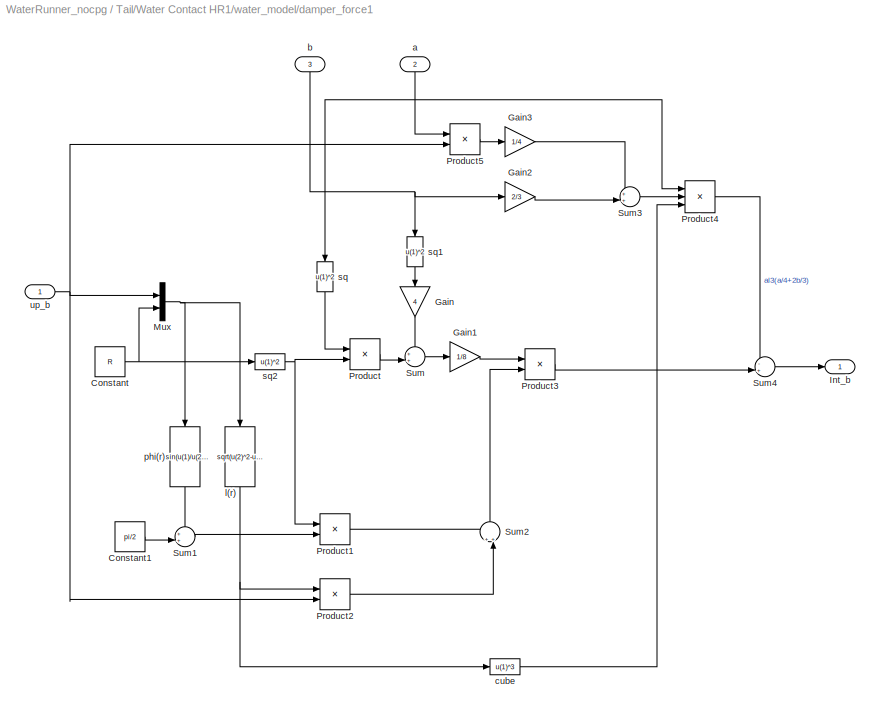
BLOCK [SubSystem] Tail/Water Contact HR1/water_model/damper_force1
  FunctionWithSeparateData = off
  MaskHideContents = off
  MinAlgLoopOccurrences = off
  Opaque = off
  Ports = [3, 1]
  PropExecContextOutsideSubsystem = off
  RTWSystemCode = Auto
  RequestExecContextInheritance = off
  SID = 6069
BLOCK [Constant] Tail/Water Contact HR1/water_model/damper_force1/Constant
  SID = 6073
  Value = R
BLOCK [Constant] Tail/Water Contact HR1/water_model/damper_force1/Constant1
  SID = 6074
  Value = pi/2
BLOCK [Gain] Tail/Water Contact HR1/water_model/damper_force1/Gain
  Gain = 4
  OutDataTypeStr = Inherit: Inherit via internal rule
  ParamDataTypeStr = Inherit: Inherit via internal rule
  SID = 6075
  SaturateOnIntegerOverflow = off
BLOCK [Gain] Tail/Water Contact HR1/water_model/damper_force1/Gain1
  Gain = 1/8
  OutDataTypeStr = Inherit: Inherit via internal rule
  ParamDataTypeStr = Inherit: Inherit via internal rule
  SID = 6076
  SaturateOnIntegerOverflow = off
BLOCK [Gain] Tail/Water Contact HR1/water_model/damper_force1/Gain2
  Gain = 2/3
  OutDataTypeStr = Inherit: Inherit via internal rule
  ParamDataTypeStr = Inherit: Inherit via internal rule
  SID = 6077
  SaturateOnIntegerOverflow = off
BLOCK [Gain] Tail/Water Contact HR1/water_model/damper_force1/Gain3
  Gain = 1/4
  OutDataTypeStr = Inherit: Inherit via internal rule
  ParamDataTypeStr = Inherit: Inherit via internal rule
  SID = 6078
  SaturateOnIntegerOverflow = off
BLOCK [Outport] Tail/Water Contact HR1/water_model/damper_force1/Int_b
  IconDisplay = Port number
  SID = 6097
BLOCK [Mux] Tail/Water Contact HR1/water_model/damper_force1/Mux
  DisplayOption = bar
  Inputs = 2
  Ports = [2, 1]
  SID = 6079
BLOCK [Product] Tail/Water Contact HR1/water_model/damper_force1/Product
  InputSameDT = off
  OutDataTypeStr = Inherit: Inherit via internal rule
  Ports = [2, 1]
  SID = 6080
  SaturateOnIntegerOverflow = off
BLOCK [Product] Tail/Water Contact HR1/water_model/damper_force1/Product1
  InputSameDT = off
  OutDataTypeStr = Inherit: Inherit via internal rule
  Ports = [2, 1]
  SID = 6081
  SaturateOnIntegerOverflow = off
BLOCK [Product] Tail/Water Contact HR1/water_model/damper_force1/Product2
  InputSameDT = off
  OutDataTypeStr = Inherit: Inherit via internal rule
  Ports = [2, 1]
  SID = 6082
  SaturateOnIntegerOverflow = off
BLOCK [Product] Tail/Water Contact HR1/water_model/damper_force1/Product3
  InputSameDT = off
  OutDataTypeStr = Inherit: Inherit via internal rule
  Ports = [2, 1]
  SID = 6083
  SaturateOnIntegerOverflow = off
BLOCK [Product] Tail/Water Contact HR1/water_model/damper_force1/Product4
  InputSameDT = off
  Inputs = 3
  OutDataTypeStr = Inherit: Inherit via internal rule
  Ports = [3, 1]
  SID = 6084
  SaturateOnIntegerOverflow = off
BLOCK [Product] Tail/Water Contact HR1/water_model/damper_force1/Product5
  InputSameDT = off
  OutDataTypeStr = Inherit: Inherit via internal rule
  Ports = [2, 1]
  SID = 6085
  SaturateOnIntegerOverflow = off
BLOCK [Sum] Tail/Water Contact HR1/water_model/damper_force1/Sum
  IconShape = round
  InputSameDT = off
  Inputs = ++|
  OutDataTypeStr = Inherit: Inherit via internal rule
  Ports = [2, 1]
  SID = 6086
  SaturateOnIntegerOverflow = off
BLOCK [Sum] Tail/Water Contact HR1/water_model/damper_force1/Sum1
  IconShape = round
  InputSameDT = off
  Inputs = ++|
  OutDataTypeStr = Inherit: Inherit via internal rule
  Ports = [2, 1]
  SID = 6087
  SaturateOnIntegerOverflow = off
BLOCK [Sum] Tail/Water Contact HR1/water_model/damper_force1/Sum2
  IconShape = round
  InputSameDT = off
  Inputs = ++|
  OutDataTypeStr = Inherit: Inherit via internal rule
  Ports = [2, 1]
  SID = 6088
  SaturateOnIntegerOverflow = off
BLOCK [Sum] Tail/Water Contact HR1/water_model/damper_force1/Sum3
  IconShape = round
  InputSameDT = off
  Inputs = ++|
  OutDataTypeStr = Inherit: Inherit via internal rule
  Ports = [2, 1]
  SID = 6089
  SaturateOnIntegerOverflow = off
BLOCK [Sum] Tail/Water Contact HR1/water_model/damper_force1/Sum4
  IconShape = round
  InputSameDT = off
  Inputs = -+|
  OutDataTypeStr = Inherit: Inherit via internal rule
  Ports = [2, 1]
  SID = 6090
  SaturateOnIntegerOverflow = off
BLOCK [Inport] Tail/Water Contact HR1/water_model/damper_force1/a
  IconDisplay = Port number
  Port = 2
  SID = 6071
BLOCK [Inport] Tail/Water Contact HR1/water_model/damper_force1/b
  IconDisplay = Port number
  Port = 3
  SID = 6072
BLOCK [Fcn] Tail/Water Contact HR1/water_model/damper_force1/cube
  Expr = u(1)^3
  SID = 6091
BLOCK [Fcn] Tail/Water Contact HR1/water_model/damper_force1/l(r)
  Expr = sqrt(u(2)^2-u(1)^2)
  SID = 6092
BLOCK [Fcn] Tail/Water Contact HR1/water_model/damper_force1/phi(r)
  Expr = asin(u(1)/u(2))
  SID = 6093
BLOCK [Fcn] Tail/Water Contact HR1/water_model/damper_force1/sq
  Expr = u(1)^2
  SID = 6094
BLOCK [Fcn] Tail/Water Contact HR1/water_model/damper_force1/sq1
  Expr = u(1)^2
  SID = 6095
BLOCK [Fcn] Tail/Water Contact HR1/water_model/damper_force1/sq2
  Expr = u(1)^2
  SID = 6096
BLOCK [Inport] Tail/Water Contact HR1/water_model/damper_force1/up_b
  IconDisplay = Port number
  SID = 6070
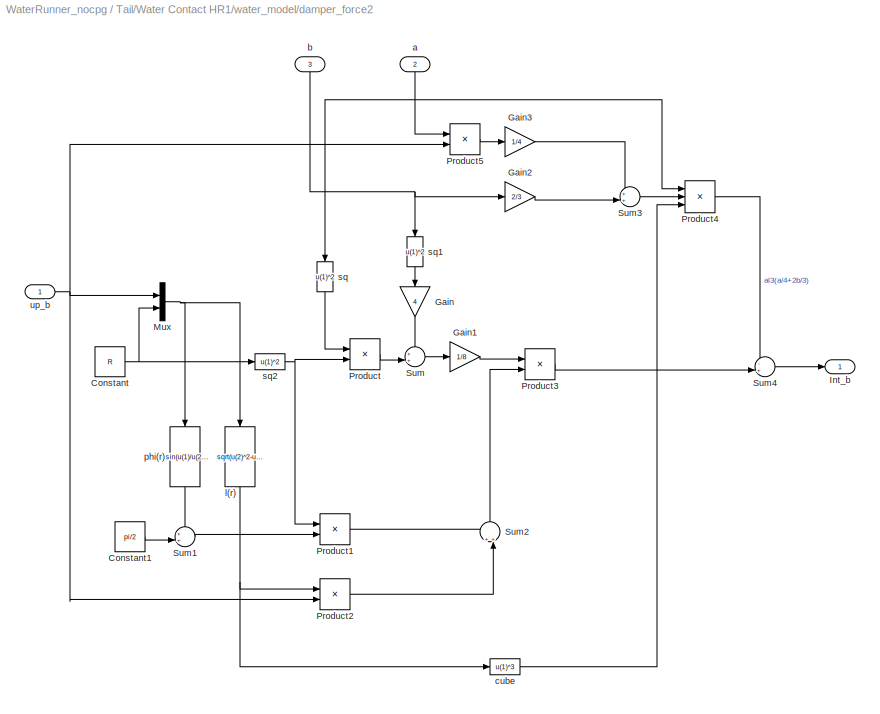
BLOCK [SubSystem] Tail/Water Contact HR1/water_model/damper_force2
  FunctionWithSeparateData = off
  MaskHideContents = off
  MinAlgLoopOccurrences = off
  Opaque = off
  Ports = [3, 1]
  PropExecContextOutsideSubsystem = off
  RTWSystemCode = Auto
  RequestExecContextInheritance = off
  SID = 6098
BLOCK [Constant] Tail/Water Contact HR1/water_model/damper_force2/Constant
  SID = 6102
  Value = R
BLOCK [Constant] Tail/Water Contact HR1/water_model/damper_force2/Constant1
  SID = 6103
  Value = pi/2
BLOCK [Gain] Tail/Water Contact HR1/water_model/damper_force2/Gain
  Gain = 4
  OutDataTypeStr = Inherit: Inherit via internal rule
  ParamDataTypeStr = Inherit: Inherit via internal rule
  SID = 6104
  SaturateOnIntegerOverflow = off
BLOCK [Gain] Tail/Water Contact HR1/water_model/damper_force2/Gain1
  Gain = 1/8
  OutDataTypeStr = Inherit: Inherit via internal rule
  ParamDataTypeStr = Inherit: Inherit via internal rule
  SID = 6105
  SaturateOnIntegerOverflow = off
BLOCK [Gain] Tail/Water Contact HR1/water_model/damper_force2/Gain2
  Gain = 2/3
  OutDataTypeStr = Inherit: Inherit via internal rule
  ParamDataTypeStr = Inherit: Inherit via internal rule
  SID = 6106
  SaturateOnIntegerOverflow = off
BLOCK [Gain] Tail/Water Contact HR1/water_model/damper_force2/Gain3
  Gain = 1/4
  OutDataTypeStr = Inherit: Inherit via internal rule
  ParamDataTypeStr = Inherit: Inherit via internal rule
  SID = 6107
  SaturateOnIntegerOverflow = off
BLOCK [Outport] Tail/Water Contact HR1/water_model/damper_force2/Int_b
  IconDisplay = Port number
  SID = 6126
BLOCK [Mux] Tail/Water Contact HR1/water_model/damper_force2/Mux
  DisplayOption = bar
  Inputs = 2
  Ports = [2, 1]
  SID = 6108
BLOCK [Product] Tail/Water Contact HR1/water_model/damper_force2/Product
  InputSameDT = off
  OutDataTypeStr = Inherit: Inherit via internal rule
  Ports = [2, 1]
  SID = 6109
  SaturateOnIntegerOverflow = off
BLOCK [Product] Tail/Water Contact HR1/water_model/damper_force2/Product1
  InputSameDT = off
  OutDataTypeStr = Inherit: Inherit via internal rule
  Ports = [2, 1]
  SID = 6110
  SaturateOnIntegerOverflow = off
BLOCK [Product] Tail/Water Contact HR1/water_model/damper_force2/Product2
  InputSameDT = off
  OutDataTypeStr = Inherit: Inherit via internal rule
  Ports = [2, 1]
  SID = 6111
  SaturateOnIntegerOverflow = off
BLOCK [Product] Tail/Water Contact HR1/water_model/damper_force2/Product3
  InputSameDT = off
  OutDataTypeStr = Inherit: Inherit via internal rule
  Ports = [2, 1]
  SID = 6112
  SaturateOnIntegerOverflow = off
BLOCK [Product] Tail/Water Contact HR1/water_model/damper_force2/Product4
  InputSameDT = off
  Inputs = 3
  OutDataTypeStr = Inherit: Inherit via internal rule
  Ports = [3, 1]
  SID = 6113
  SaturateOnIntegerOverflow = off
BLOCK [Product] Tail/Water Contact HR1/water_model/damper_force2/Product5
  InputSameDT = off
  OutDataTypeStr = Inherit: Inherit via internal rule
  Ports = [2, 1]
  SID = 6114
  SaturateOnIntegerOverflow = off
BLOCK [Sum] Tail/Water Contact HR1/water_model/damper_force2/Sum
  IconShape = round
  InputSameDT = off
  Inputs = ++|
  OutDataTypeStr = Inherit: Inherit via internal rule
  Ports = [2, 1]
  SID = 6115
  SaturateOnIntegerOverflow = off
BLOCK [Sum] Tail/Water Contact HR1/water_model/damper_force2/Sum1
  IconShape = round
  InputSameDT = off
  Inputs = ++|
  OutDataTypeStr = Inherit: Inherit via internal rule
  Ports = [2, 1]
  SID = 6116
  SaturateOnIntegerOverflow = off
BLOCK [Sum] Tail/Water Contact HR1/water_model/damper_force2/Sum2
  IconShape = round
  InputSameDT = off
  Inputs = ++|
  OutDataTypeStr = Inherit: Inherit via internal rule
  Ports = [2, 1]
  SID = 6117
  SaturateOnIntegerOverflow = off
BLOCK [Sum] Tail/Water Contact HR1/water_model/damper_force2/Sum3
  IconShape = round
  InputSameDT = off
  Inputs = ++|
  OutDataTypeStr = Inherit: Inherit via internal rule
  Ports = [2, 1]
  SID = 6118
  SaturateOnIntegerOverflow = off
BLOCK [Sum] Tail/Water Contact HR1/water_model/damper_force2/Sum4
  IconShape = round
  InputSameDT = off
  Inputs = -+|
  OutDataTypeStr = Inherit: Inherit via internal rule
  Ports = [2, 1]
  SID = 6119
  SaturateOnIntegerOverflow = off
BLOCK [Inport] Tail/Water Contact HR1/water_model/damper_force2/a
  IconDisplay = Port number
  Port = 2
  SID = 6100
BLOCK [Inport] Tail/Water Contact HR1/water_model/damper_force2/b
  IconDisplay = Port number
  Port = 3
  SID = 6101
BLOCK [Fcn] Tail/Water Contact HR1/water_model/damper_force2/cube
  Expr = u(1)^3
  SID = 6120
BLOCK [Fcn] Tail/Water Contact HR1/water_model/damper_force2/l(r)
  Expr = sqrt(u(2)^2-u(1)^2)
  SID = 6121
BLOCK [Fcn] Tail/Water Contact HR1/water_model/damper_force2/phi(r)
  Expr = asin(u(1)/u(2))
  SID = 6122
BLOCK [Fcn] Tail/Water Contact HR1/water_model/damper_force2/sq
  Expr = u(1)^2
  SID = 6123
BLOCK [Fcn] Tail/Water Contact HR1/water_model/damper_force2/sq1
  Expr = u(1)^2
  SID = 6124
BLOCK [Fcn] Tail/Water Contact HR1/water_model/damper_force2/sq2
  Expr = u(1)^2
  SID = 6125
BLOCK [Inport] Tail/Water Contact HR1/water_model/damper_force2/up_b
  IconDisplay = Port number
  SID = 6099
BLOCK [Inport] Tail/Water Contact HR1/water_model/v_n
  IconDisplay = Port number
  Port = 3
  SID = 6017
BLOCK [Inport] Tail/Water Contact HR1/water_model/y_c
  IconDisplay = Port number
  SID = 6015
BLOCK [Reference] Tail/pad tran  REF=sm_lib/Frames and\n Transforms/Rigid \nTransform
  BaseAlignAxisA = +X
  BaseAlignAxisB = +Z
  BlockFunction = simmechanics.library.frames_transforms.rigid_transform
  ClassName = RigidTransform
  FollAlignAxisA = +X
  FollAlignAxisB = +Y
  Ports = [0, 0, 0, 0, 0, 1, 1]
  RotationAngle = 0
  RotationAngleUnits = deg
  RotationArbitraryAxis = [0 0 1]
  RotationMethod = AlignedAxes
  RotationStandardAxis = +Z
  SID = 6130
  SourceBlock = sm_lib/Frames and\n Transforms/Rigid \nTransform
  SourceType = Rigid Transform
  TranslationCartesianOffset = [0 0 0.25]
  TranslationLengthUnit = m
  TranslationMethod = StandardAxis
  TranslationROffset = 0
  TranslationROffsetUnits = m
  TranslationStandardAxis = -Y
  TranslationStandardOffset = 0.0015
  TranslationThetaOffset = 0
  TranslationThetaOffsetUnits = deg
  TranslationZOffset = 0
  TranslationZOffsetUnits = m
BLOCK [Reference] Tail/tail_tr_1  REF=sm_lib/Frames and\n Transforms/Rigid \nTransform
  BaseAlignAxisA = +Y
  BaseAlignAxisB = +Z
  BlockFunction = simmechanics.library.frames_transforms.rigid_transform
  ClassName = RigidTransform
  FollAlignAxisA = +X
  FollAlignAxisB = +Y
  Ports = [0, 0, 0, 0, 0, 1, 1]
  RotationAngle = tail_angle
  RotationAngleUnits = deg
  RotationArbitraryAxis = [0 0 1]
  RotationMethod = StandardAxis
  RotationStandardAxis = +Z
  SID = 6131
  SourceBlock = sm_lib/Frames and\n Transforms/Rigid \nTransform
  SourceType = Rigid Transform
  TranslationCartesianOffset = [0 0 0]
  TranslationLengthUnit = m
  TranslationMethod = None
  TranslationROffset = 0
  TranslationROffsetUnits = m
  TranslationStandardAxis = +Z
  TranslationStandardOffset = 0
  TranslationThetaOffset = 0
  TranslationThetaOffsetUnits = deg
  TranslationZOffset = 0
  TranslationZOffsetUnits = m
BLOCK [Reference] Tail/tail_tr_2  REF=sm_lib/Frames and\n Transforms/Rigid \nTransform
  BaseAlignAxisA = +Y
  BaseAlignAxisB = +Z
  BlockFunction = simmechanics.library.frames_transforms.rigid_transform
  ClassName = RigidTransform
  FollAlignAxisA = +X
  FollAlignAxisB = +Y
  Ports = [0, 0, 0, 0, 0, 1, 1]
  RotationAngle = 0
  RotationAngleUnits = deg
  RotationArbitraryAxis = [0 0 1]
  RotationMethod = None
  RotationStandardAxis = +Z
  SID = 6132
  SourceBlock = sm_lib/Frames and\n Transforms/Rigid \nTransform
  SourceType = Rigid Transform
  TranslationCartesianOffset = [0 0 0]
  TranslationLengthUnit = m
  TranslationMethod = StandardAxis
  TranslationROffset = 0
  TranslationROffsetUnits = m
  TranslationStandardAxis = -X
  TranslationStandardOffset = tail_length/2
  TranslationThetaOffset = 0
  TranslationThetaOffsetUnits = deg
  TranslationZOffset = 0
  TranslationZOffsetUnits = m
BLOCK [Reference] Tail/tail_tr_3  REF=sm_lib/Frames and\n Transforms/Rigid \nTransform
  BaseAlignAxisA = +Y
  BaseAlignAxisB = +Z
  BlockFunction = simmechanics.library.frames_transforms.rigid_transform
  ClassName = RigidTransform
  FollAlignAxisA = +X
  FollAlignAxisB = +Y
  Ports = [0, 0, 0, 0, 0, 1, 1]
  RotationAngle = 0
  RotationAngleUnits = deg
  RotationArbitraryAxis = [0 0 1]
  RotationMethod = None
  RotationStandardAxis = +Z
  SID = 6133
  SourceBlock = sm_lib/Frames and\n Transforms/Rigid \nTransform
  SourceType = Rigid Transform
  TranslationCartesianOffset = [0 0 0]
  TranslationLengthUnit = m
  TranslationMethod = StandardAxis
  TranslationROffset = 0
  TranslationROffsetUnits = m
  TranslationStandardAxis = -X
  TranslationStandardOffset = tail_length/2
  TranslationThetaOffset = 0
  TranslationThetaOffsetUnits = deg
  TranslationZOffset = 0
  TranslationZOffsetUnits = m
BLOCK [Terminator] Terminator1
  SID = 6905
BLOCK [Terminator] Terminator2
  SID = 6906
BLOCK [Terminator] Terminator3
  SID = 6907
BLOCK [SubSystem] Water Contact FR1
  AncestorBlock = WaterRunner_lib_2/Water Contact FR
  FunctionWithSeparateData = off
  MaskHideContents = off
  MinAlgLoopOccurrences = off
  Opaque = off
  Ports = [0, 5, 0, 0, 0, 1]
  PropExecContextOutsideSubsystem = off
  RTWSystemCode = Auto
  RequestExecContextInheritance = off
  SID = 6978
BLOCK [Reference] Water Contact FR1/6-DOF Joint1  REF=sm_lib/Joints/6-DOF Joint
  BlockFunction = simmechanics.library.joints.sixdof_joint
  ClassName = SixDofJoint
  ConstraintWrenchDir = FollowerOnBase
  ConstraintWrenchFrame = BaseFrame
  Ports = [0, 0, 0, 0, 0, 3, 2]
  PxActuationMode = TorqueForceActuation
  PxDampingCoefficient = 0
  PxDampingCoefficientUnits = N/(m/s)
  PxEquilibriumPosition = 0
  PxEquilibriumPositionUnits = m
  PxPositionTargetPriority = High
  PxPositionTargetSpecify = off
  PxPositionTargetValue = 0
  PxPositionTargetValueUnits = m
  PxSenseAcceleration = off
  PxSensePosition = off
  PxSenseTorqueForce = off
  PxSenseVelocity = off
  PxSpringStiffness = 0
  PxSpringStiffnessUnits = N/m
  PxVelocityTargetPriority = High
  PxVelocityTargetSpecify = off
  PxVelocityTargetValue = 0
  PxVelocityTargetValueUnits = m/s
  PyActuationMode = TorqueForceActuation
  PyDampingCoefficient = 0
  PyDampingCoefficientUnits = N/(m/s)
  PyEquilibriumPosition = 0
  PyEquilibriumPositionUnits = m
  PyPositionTargetPriority = High
  PyPositionTargetSpecify = off
  PyPositionTargetValue = 0
  PyPositionTargetValueUnits = m
  PySenseAcceleration = off
  PySensePosition = on
  PySenseTorqueForce = off
  PySenseVelocity = off
  PySpringStiffness = 0
  PySpringStiffnessUnits = N/m
  PyVelocityTargetPriority = High
  PyVelocityTargetSpecify = off
  PyVelocityTargetValue = 0
  PyVelocityTargetValueUnits = m/s
  PzActuationMode = NoActuation
  PzDampingCoefficient = 0
  PzDampingCoefficientUnits = N/(m/s)
  PzEquilibriumPosition = 0
  PzEquilibriumPositionUnits = m
  PzPositionTargetPriority = High
  PzPositionTargetSpecify = off
  PzPositionTargetValue = 0
  PzPositionTargetValueUnits = m
  PzSenseAcceleration = off
  PzSensePosition = off
  PzSenseTorqueForce = off
  PzSenseVelocity = off
  PzSpringStiffness = 0
  PzSpringStiffnessUnits = N/m
  PzVelocityTargetPriority = High
  PzVelocityTargetSpecify = off
  PzVelocityTargetValue = 0
  PzVelocityTargetValueUnits = m/s
  SID = 6978:1347
  SenseConstraintForceX = off
  SenseConstraintForceY = off
  SenseConstraintForceZ = off
  SenseConstraintTorqueX = off
  SenseConstraintTorqueY = off
  SenseConstraintTorqueZ = off
  SourceBlock = sm_lib/Joints/6-DOF Joint
  SourceType = 6-DOF Joint
  SphActuateTorque = off
  SphActuateTorqueX = off
  SphActuateTorqueY = off
  SphActuateTorqueZ = off
  SphActuationFrame = BaseFrame
  SphActuationMode = NoActuation
  SphDampingCoefficient = 0
  SphDampingCoefficientUnits = N*m/(deg/s)
  SphDefPosBaseAlignAxisA = +Y
  SphDefPosBaseAlignAxisB = +Z
  SphDefPosFollAlignAxisA = +X
  SphDefPosFollAlignAxisB = +Y
  SphDefPosRotationAngle = 0
  SphDefPosRotationAngleUnits = deg
  SphDefPosRotationArbitraryAxis = [0 0 1]
  SphDefPosRotationMethod = None
  SphDefPosRotationStandardAxis = +Z
  SphEqPosBaseAlignAxisA = +Y
  SphEqPosBaseAlignAxisB = +Z
  SphEqPosFollAlignAxisA = +X
  SphEqPosFollAlignAxisB = +Y
  SphEqPosRotationAngle = 0
  SphEqPosRotationAngleUnits = deg
  SphEqPosRotationArbitraryAxis = [0 0 1]
  SphEqPosRotationMethod = None
  SphEqPosRotationStandardAxis = +Z
  SphPositionTargetBaseAlignAxisA = +Y
  SphPositionTargetBaseAlignAxisB = +Z
  SphPositionTargetFollAlignAxisA = +X
  SphPositionTargetFollAlignAxisB = +Y
  SphPositionTargetPriority = High
  SphPositionTargetRotationAngle = 0
  SphPositionTargetRotationAngleUnits = deg
  SphPositionTargetRotationArbitraryAxis = [0 0 1]
  SphPositionTargetRotationMethod = None
  SphPositionTargetRotationStandardAxis = +Z
  SphPositionTargetSpecify = off
  SphSenseAcceleration = off
  SphSenseAccelerationX = off
  SphSenseAccelerationY = off
  SphSenseAccelerationZ = off
  SphSensePosition = off
  SphSenseTorqueForce = off
  SphSenseTorqueX = off
  SphSenseTorqueY = off
  SphSenseTorqueZ = off
  SphSenseVelocity = off
  SphSenseVelocityX = off
  SphSenseVelocityY = off
  SphSenseVelocityZ = off
  SphSensingFrame = BaseFrame
  SphSpringStiffness = 0
  SphSpringStiffnessUnits = N*m/deg
  SphVelocityTargetInFollowerFrame = on
  SphVelocityTargetPriority = High
  SphVelocityTargetSpecify = off
  SphVelocityTargetValue = [0 0 0]
  SphVelocityTargetValueUnits = deg/s
BLOCK [Outport] Water Contact FR1/Fb
  IconDisplay = Port number
  Port = 2
  SID = 6978:1659
BLOCK [Fcn] Water Contact FR1/Fcn
  Expr = u(2)*cos(u(1))
  SID = 6978:1755
BLOCK [Outport] Water Contact FR1/Fk
  IconDisplay = Port number
  SID = 6978:1658
BLOCK [PMIOPort] Water Contact FR1/Foot
  Port = 1
  SID = 6978:1657
  Side = Left
BLOCK [From] Water Contact FR1/From
  GotoTag = y_c
  SID = 6978:1687
BLOCK [From] Water Contact FR1/From1
  GotoTag = angle
  SID = 6978:1694
BLOCK [Gain] Water Contact FR1/Gain
  Gain = -1
  OutDataTypeStr = Inherit: Inherit via internal rule
  ParamDataTypeStr = Inherit: Inherit via internal rule
  SID = 6978:1701
  SaturateOnIntegerOverflow = off
BLOCK [Goto] Water Contact FR1/Goto
  GotoTag = y_c
  SID = 6978:1688
BLOCK [Goto] Water Contact FR1/Goto1
  GotoTag = angle
  SID = 6978:1693
BLOCK [Mux] Water Contact FR1/Mux
  DisplayOption = bar
  Inputs = 2
  Ports = [2, 1]
  SID = 6978:1756
BLOCK [Mux] Water Contact FR1/Mux1
  DisplayOption = bar
  Inputs = 2
  Ports = [2, 1]
  SID = 6978:1758
BLOCK [SubSystem] Water Contact FR1/Quat to Euler1
  FunctionWithSeparateData = off
  MaskHideContents = off
  MinAlgLoopOccurrences = off
  Opaque = off
  Ports = [1, 2]
  PropExecContextOutsideSubsystem = off
  RTWSystemCode = Auto
  RequestExecContextInheritance = off
  SID = 6978:1678
BLOCK [Inport] Water Contact FR1/Quat to Euler1/Q
  IconDisplay = Port number
  SID = 6978:1679
BLOCK [Fcn] Water Contact FR1/Quat to Euler1/f1
  Expr = atan2( 2*(u(1)*u(2) + u(3)*u(4)) , 1-2*(u(2)^2+u(3)^2) )
  SID = 6978:1751
BLOCK [Fcn] Water Contact FR1/Quat to Euler1/f3
  Expr = atan2( 2*(u(1)*u(4) + u(2)*u(3)) , 1-2*(u(3)^2+u(4)^2) )
  SID = 6978:1680
BLOCK [Outport] Water Contact FR1/Quat to Euler1/phi_x
  IconDisplay = Port number
  Port = 2
  SID = 6978:1752
BLOCK [Outport] Water Contact FR1/Quat to Euler1/phi_z
  IconDisplay = Port number
  SID = 6978:1681
BLOCK [Scope] Water Contact FR1/Scope
  DataFormat = StructureWithTime
  Floating = off
  NumInputPorts = 2
  Ports = [2]
  SID = 6978:1757
  SampleTime = 0
  SaveName = ScopeData3
  ShowLegends = off
  YMax = 0.04~0.7
  YMin = -0.19~0
  ZoomMode = xonly
BLOCK [SubSystem] Water Contact FR1/Subsystem
  FunctionWithSeparateData = off
  MaskHideContents = off
  MinAlgLoopOccurrences = off
  Opaque = off
  Ports = [4, 2]
  PropExecContextOutsideSubsystem = off
  RTWSystemCode = Auto
  RequestExecContextInheritance = off
  SID = 6978:1352
BLOCK [Outport] Water Contact FR1/Subsystem/Fb_w
  IconDisplay = Port number
  Port = 2
  SID = 6978:1646
BLOCK [Outport] Water Contact FR1/Subsystem/Fk_w
  IconDisplay = Port number
  SID = 6978:1645
BLOCK [Switch] Water Contact FR1/Subsystem/Switch
  InputSameDT = off
  SID = 6978:1357
  SaturateOnIntegerOverflow = off
BLOCK [Switch] Water Contact FR1/Subsystem/Switch1
  InputSameDT = off
  SID = 6978:1358
  SaturateOnIntegerOverflow = off
BLOCK [Inport] Water Contact FR1/Subsystem/ang_vel
  IconDisplay = Port number
  Port = 4
  SID = 6978:1356
BLOCK [Inport] Water Contact FR1/Subsystem/angle
  IconDisplay = Port number
  Port = 2
  SID = 6978:1354
BLOCK [Inport] Water Contact FR1/Subsystem/v_n
  IconDisplay = Port number
  Port = 3
  SID = 6978:1355
BLOCK [SubSystem] Water Contact FR1/Subsystem/water_model
  FunctionWithSeparateData = off
  MaskHideContents = off
  MinAlgLoopOccurrences = off
  Opaque = off
  Ports = [4, 2]
  PropExecContextOutsideSubsystem = off
  RTWSystemCode = Auto
  RequestExecContextInheritance = off
  SID = 6978:1359
BLOCK [Outport] Water Contact FR1/Subsystem/water_model/Fb_w
  IconDisplay = Port number
  Port = 2
  SID = 6978:1501
BLOCK [Outport] Water Contact FR1/Subsystem/water_model/Fk_w
  IconDisplay = Port number
  SID = 6978:1500
BLOCK [Gain] Water Contact FR1/Subsystem/water_model/Gain
  OutDataTypeStr = Inherit: Inherit via internal rule
  ParamDataTypeStr = Inherit: Inherit via internal rule
  SID = 6978:1364
  SaturateOnIntegerOverflow = off
BLOCK [Gain] Water Contact FR1/Subsystem/water_model/Gain1
  Gain = Cd*density
  OutDataTypeStr = Inherit: Inherit via internal rule
  ParamDataTypeStr = Inherit: Inherit via internal rule
  SID = 6978:1365
  SaturateOnIntegerOverflow = off
BLOCK [Gain] Water Contact FR1/Subsystem/water_model/Gain2
  Gain = Cd*density
  OutDataTypeStr = Inherit: Inherit via internal rule
  ParamDataTypeStr = Inherit: Inherit via internal rule
  SID = 6978:1366
  SaturateOnIntegerOverflow = off
BLOCK [Gain] Water Contact FR1/Subsystem/water_model/Gain3
  Gain = -1
  OutDataTypeStr = Inherit: Inherit via internal rule
  ParamDataTypeStr = Inherit: Inherit via internal rule
  SID = 6978:1367
  SaturateOnIntegerOverflow = off
BLOCK [Product] Water Contact FR1/Subsystem/water_model/Product1
  InputSameDT = off
  OutDataTypeStr = Inherit: Inherit via internal rule
  Ports = [2, 1]
  SID = 6978:1368
  SaturateOnIntegerOverflow = off
BLOCK [Product] Water Contact FR1/Subsystem/water_model/Product2
  InputSameDT = off
  OutDataTypeStr = Inherit: Inherit via internal rule
  Ports = [2, 1]
  SID = 6978:1369
  SaturateOnIntegerOverflow = off
BLOCK [SubSystem] Water Contact FR1/Subsystem/water_model/Subsystem
  FunctionWithSeparateData = off
  MaskHideContents = off
  MinAlgLoopOccurrences = off
  Opaque = off
  Ports = [2, 1]
  PropExecContextOutsideSubsystem = off
  RTWSystemCode = Auto
  RequestExecContextInheritance = off
  SID = 6978:1370
BLOCK [Constant] Water Contact FR1/Subsystem/water_model/Subsystem/Constant
  SID = 6978:1373
  Value = y_w
BLOCK [Fcn] Water Contact FR1/Subsystem/water_model/Subsystem/Fcn
  Expr = sin(u(1))
  SID = 6978:1374
BLOCK [Fcn] Water Contact FR1/Subsystem/water_model/Subsystem/Fcn1
  Expr = u(1)/u(2)
  SID = 6978:1375
BLOCK [Mux] Water Contact FR1/Subsystem/water_model/Subsystem/Mux
  DisplayOption = bar
  Inputs = 2
  Ports = [2, 1]
  SID = 6978:1376
BLOCK [Sum] Water Contact FR1/Subsystem/water_model/Subsystem/Sum
  IconShape = round
  InputSameDT = off
  Inputs = +-|
  OutDataTypeStr = Inherit: Inherit via internal rule
  Ports = [2, 1]
  SID = 6978:1377
  SaturateOnIntegerOverflow = off
BLOCK [Inport] Water Contact FR1/Subsystem/water_model/Subsystem/angle
  IconDisplay = Port number
  Port = 2
  SID = 6978:1372
BLOCK [Saturate] Water Contact FR1/Subsystem/water_model/Subsystem/sat
  InputPortMap = u0
  LowerLimit = -R
  Ports = [1, 1]
  SID = 6978:1378
  UpperLimit = R
BLOCK [Saturate] Water Contact FR1/Subsystem/water_model/Subsystem/sat1
  InputPortMap = u0
  LowerLimit = 0
  Ports = [1, 1]
  SID = 6978:1707
  UpperLimit = pi
BLOCK [Outport] Water Contact FR1/Subsystem/water_model/Subsystem/up_b
  IconDisplay = Port number
  SID = 6978:1379
BLOCK [Inport] Water Contact FR1/Subsystem/water_model/Subsystem/y_c
  IconDisplay = Port number
  SID = 6978:1371
BLOCK [SubSystem] Water Contact FR1/Subsystem/water_model/Subsystem1
  FunctionWithSeparateData = off
  MaskHideContents = off
  MinAlgLoopOccurrences = off
  Opaque = off
  Ports = [2, 2]
  PropExecContextOutsideSubsystem = off
  RTWSystemCode = Auto
  RequestExecContextInheritance = off
  SID = 6978:1380
BLOCK [Constant] Water Contact FR1/Subsystem/water_model/Subsystem1/Constant
  SID = 6978:1383
  Value = y_w
BLOCK [Fcn] Water Contact FR1/Subsystem/water_model/Subsystem1/Fcn
  Expr = sin(u(1))
  SID = 6978:1384
BLOCK [Gain] Water Contact FR1/Subsystem/water_model/Subsystem1/Gain
  Gain = -2*(-g)
  OutDataTypeStr = Inherit: Inherit via internal rule
  ParamDataTypeStr = Inherit: Inherit via internal rule
  SID = 6978:1385
  SaturateOnIntegerOverflow = off
BLOCK [Gain] Water Contact FR1/Subsystem/water_model/Subsystem1/Gain1
  Gain = 2*(-g)
  OutDataTypeStr = Inherit: Inherit via internal rule
  ParamDataTypeStr = Inherit: Inherit via internal rule
  SID = 6978:1386
  SaturateOnIntegerOverflow = off
BLOCK [Sum] Water Contact FR1/Subsystem/water_model/Subsystem1/Sum
  IconShape = round
  InputSameDT = off
  Inputs = -+|
  OutDataTypeStr = Inherit: Inherit via internal rule
  Ports = [2, 1]
  SID = 6978:1387
  SaturateOnIntegerOverflow = off
BLOCK [Outport] Water Contact FR1/Subsystem/water_model/Subsystem1/a
  IconDisplay = Port number
  SID = 6978:1388
BLOCK [Inport] Water Contact FR1/Subsystem/water_model/Subsystem1/angle
  IconDisplay = Port number
  Port = 2
  SID = 6978:1382
BLOCK [Outport] Water Contact FR1/Subsystem/water_model/Subsystem1/b
  IconDisplay = Port number
  Port = 2
  SID = 6978:1389
BLOCK [Inport] Water Contact FR1/Subsystem/water_model/Subsystem1/y_c
  IconDisplay = Port number
  SID = 6978:1381
BLOCK [SubSystem] Water Contact FR1/Subsystem/water_model/Subsystem2
  FunctionWithSeparateData = off
  MaskHideContents = off
  MinAlgLoopOccurrences = off
  Opaque = off
  Ports = [3, 2]
  PropExecContextOutsideSubsystem = off
  RTWSystemCode = Auto
  RequestExecContextInheritance = off
  SID = 6978:1390
BLOCK [Constant] Water Contact FR1/Subsystem/water_model/Subsystem2/Constant
  SID = 6978:1394
  Value = 100*eps
BLOCK [Product] Water Contact FR1/Subsystem/water_model/Subsystem2/Product
  InputSameDT = off
  OutDataTypeStr = Inherit: Inherit via internal rule
  Ports = [2, 1]
  SID = 6978:1395
  SaturateOnIntegerOverflow = off
BLOCK [Product] Water Contact FR1/Subsystem/water_model/Subsystem2/Product1
  InputSameDT = off
  OutDataTypeStr = Inherit: Inherit via internal rule
  Ports = [2, 1]
  SID = 6978:1396
  SaturateOnIntegerOverflow = off
BLOCK [Outport] Water Contact FR1/Subsystem/water_model/Subsystem2/S+
  IconDisplay = Port number
  SID = 6978:1403
BLOCK [Outport] Water Contact FR1/Subsystem/water_model/Subsystem2/S-
  IconDisplay = Port number
  Port = 2
  SID = 6978:1404
BLOCK [Signum] Water Contact FR1/Subsystem/water_model/Subsystem2/Sign
  SID = 6978:1397
BLOCK [Signum] Water Contact FR1/Subsystem/water_model/Subsystem2/Sign1
  SID = 6978:1398
BLOCK [Sum] Water Contact FR1/Subsystem/water_model/Subsystem2/Sum2
  IconShape = round
  InputSameDT = off
  Inputs = |++
  OutDataTypeStr = Inherit: Inherit via internal rule
  Ports = [2, 1]
  SID = 6978:1399
  SaturateOnIntegerOverflow = off
BLOCK [Sum] Water Contact FR1/Subsystem/water_model/Subsystem2/Sum3
  IconShape = round
  InputSameDT = off
  Inputs = |++
  OutDataTypeStr = Inherit: Inherit via internal rule
  Ports = [2, 1]
  SID = 6978:1400
  SaturateOnIntegerOverflow = off
BLOCK [Sum] Water Contact FR1/Subsystem/water_model/Subsystem2/Sum4
  IconShape = round
  InputSameDT = off
  Inputs = -+|
  OutDataTypeStr = Inherit: Inherit via internal rule
  Ports = [2, 1]
  SID = 6978:1401
  SaturateOnIntegerOverflow = off
BLOCK [Sum] Water Contact FR1/Subsystem/water_model/Subsystem2/Sum5
  IconShape = round
  InputSameDT = off
  Inputs = ++|
  OutDataTypeStr = Inherit: Inherit via internal rule
  Ports = [2, 1]
  SID = 6978:1402
  SaturateOnIntegerOverflow = off
BLOCK [Inport] Water Contact FR1/Subsystem/water_model/Subsystem2/dtheta
  IconDisplay = Port number
  SID = 6978:1391
BLOCK [Inport] Water Contact FR1/Subsystem/water_model/Subsystem2/r0
  IconDisplay = Port number
  Port = 3
  SID = 6978:1393
BLOCK [Inport] Water Contact FR1/Subsystem/water_model/Subsystem2/v
  IconDisplay = Port number
  Port = 2
  SID = 6978:1392
BLOCK [SubSystem] Water Contact FR1/Subsystem/water_model/Subsystem3
  FunctionWithSeparateData = off
  MaskHideContents = off
  MinAlgLoopOccurrences = off
  Opaque = off
  Ports = [2, 1]
  PropExecContextOutsideSubsystem = off
  RTWSystemCode = Auto
  RequestExecContextInheritance = off
  SID = 6978:1405
BLOCK [Constant] Water Contact FR1/Subsystem/water_model/Subsystem3/C
  SID = 6978:1408
  Value = 0
BLOCK [Fcn] Water Contact FR1/Subsystem/water_model/Subsystem3/Fcn
  Expr = -u(1)/(u(2))
  SID = 6978:1409
BLOCK [Mux] Water Contact FR1/Subsystem/water_model/Subsystem3/Mux
  DisplayOption = bar
  Inputs = 2
  Ports = [2, 1]
  SID = 6978:1410
BLOCK [Switch] Water Contact FR1/Subsystem/water_model/Subsystem3/Switch
  InputSameDT = off
  SID = 6978:1411
  SaturateOnIntegerOverflow = off
BLOCK [Inport] Water Contact FR1/Subsystem/water_model/Subsystem3/dtheta
  IconDisplay = Port number
  Port = 2
  SID = 6978:1407
BLOCK [Outport] Water Contact FR1/Subsystem/water_model/Subsystem3/mid_b
  IconDisplay = Port number
  SID = 6978:1413
BLOCK [Saturate] Water Contact FR1/Subsystem/water_model/Subsystem3/sat1
  InputPortMap = u0
  LowerLimit = -R
  Ports = [1, 1]
  SID = 6978:1412
  UpperLimit = R
BLOCK [Inport] Water Contact FR1/Subsystem/water_model/Subsystem3/vel
  IconDisplay = Port number
  SID = 6978:1406
BLOCK [SubSystem] Water Contact FR1/Subsystem/water_model/Subsystem4
  FunctionWithSeparateData = off
  MaskHideContents = off
  MinAlgLoopOccurrences = off
  Opaque = off
  Ports = [2, 1]
  PropExecContextOutsideSubsystem = off
  RTWSystemCode = Auto
  RequestExecContextInheritance = off
  SID = 6978:1414
BLOCK [Sum] Water Contact FR1/Subsystem/water_model/Subsystem4/Sum1
  IconShape = round
  InputSameDT = off
  Inputs = -|+
  OutDataTypeStr = Inherit: Inherit via internal rule
  Ports = [2, 1]
  SID = 6978:1417
  SaturateOnIntegerOverflow = off
BLOCK [Switch] Water Contact FR1/Subsystem/water_model/Subsystem4/Switch
  InputSameDT = off
  SID = 6978:1418
  SaturateOnIntegerOverflow = off
BLOCK [Inport] Water Contact FR1/Subsystem/water_model/Subsystem4/r
  IconDisplay = Port number
  SID = 6978:1415
BLOCK [Inport] Water Contact FR1/Subsystem/water_model/Subsystem4/r0
  IconDisplay = Port number
  Port = 2
  SID = 6978:1416
BLOCK [Outport] Water Contact FR1/Subsystem/water_model/Subsystem4/r00
  IconDisplay = Port number
  SID = 6978:1419
BLOCK [Sum] Water Contact FR1/Subsystem/water_model/Sum
  IconShape = round
  InputSameDT = off
  Inputs = |++
  OutDataTypeStr = Inherit: Inherit via internal rule
  Ports = [2, 1]
  SID = 6978:1420
  SaturateOnIntegerOverflow = off
BLOCK [Sum] Water Contact FR1/Subsystem/water_model/Sum2
  IconShape = round
  InputSameDT = off
  Inputs = -+|
  OutDataTypeStr = Inherit: Inherit via internal rule
  Ports = [2, 1]
  SID = 6978:1421
  SaturateOnIntegerOverflow = off
BLOCK [Inport] Water Contact FR1/Subsystem/water_model/ang_vel
  IconDisplay = Port number
  Port = 4
  SID = 6978:1363
BLOCK [Inport] Water Contact FR1/Subsystem/water_model/angle
  IconDisplay = Port number
  Port = 2
  SID = 6978:1361
BLOCK [SubSystem] Water Contact FR1/Subsystem/water_model/damper_force1
  FunctionWithSeparateData = off
  MaskHideContents = off
  MinAlgLoopOccurrences = off
  Opaque = off
  Ports = [3, 1]
  PropExecContextOutsideSubsystem = off
  RTWSystemCode = Auto
  RequestExecContextInheritance = off
  SID = 6978:1422
BLOCK [Constant] Water Contact FR1/Subsystem/water_model/damper_force1/Constant
  SID = 6978:1426
  Value = R
BLOCK [Constant] Water Contact FR1/Subsystem/water_model/damper_force1/Constant1
  SID = 6978:1427
  Value = pi/2
BLOCK [Gain] Water Contact FR1/Subsystem/water_model/damper_force1/Gain
  Gain = 4
  OutDataTypeStr = Inherit: Inherit via internal rule
  ParamDataTypeStr = Inherit: Inherit via internal rule
  SID = 6978:1428
  SaturateOnIntegerOverflow = off
BLOCK [Gain] Water Contact FR1/Subsystem/water_model/damper_force1/Gain1
  Gain = 1/8
  OutDataTypeStr = Inherit: Inherit via internal rule
  ParamDataTypeStr = Inherit: Inherit via internal rule
  SID = 6978:1429
  SaturateOnIntegerOverflow = off
BLOCK [Gain] Water Contact FR1/Subsystem/water_model/damper_force1/Gain2
  Gain = 2/3
  OutDataTypeStr = Inherit: Inherit via internal rule
  ParamDataTypeStr = Inherit: Inherit via internal rule
  SID = 6978:1430
  SaturateOnIntegerOverflow = off
BLOCK [Gain] Water Contact FR1/Subsystem/water_model/damper_force1/Gain3
  Gain = 1/4
  OutDataTypeStr = Inherit: Inherit via internal rule
  ParamDataTypeStr = Inherit: Inherit via internal rule
  SID = 6978:1431
  SaturateOnIntegerOverflow = off
BLOCK [Outport] Water Contact FR1/Subsystem/water_model/damper_force1/Int_b
  IconDisplay = Port number
  SID = 6978:1450
BLOCK [Mux] Water Contact FR1/Subsystem/water_model/damper_force1/Mux
  DisplayOption = bar
  Inputs = 2
  Ports = [2, 1]
  SID = 6978:1432
BLOCK [Product] Water Contact FR1/Subsystem/water_model/damper_force1/Product
  InputSameDT = off
  OutDataTypeStr = Inherit: Inherit via internal rule
  Ports = [2, 1]
  SID = 6978:1433
  SaturateOnIntegerOverflow = off
BLOCK [Product] Water Contact FR1/Subsystem/water_model/damper_force1/Product1
  InputSameDT = off
  OutDataTypeStr = Inherit: Inherit via internal rule
  Ports = [2, 1]
  SID = 6978:1434
  SaturateOnIntegerOverflow = off
BLOCK [Product] Water Contact FR1/Subsystem/water_model/damper_force1/Product2
  InputSameDT = off
  OutDataTypeStr = Inherit: Inherit via internal rule
  Ports = [2, 1]
  SID = 6978:1435
  SaturateOnIntegerOverflow = off
BLOCK [Product] Water Contact FR1/Subsystem/water_model/damper_force1/Product3
  InputSameDT = off
  OutDataTypeStr = Inherit: Inherit via internal rule
  Ports = [2, 1]
  SID = 6978:1436
  SaturateOnIntegerOverflow = off
BLOCK [Product] Water Contact FR1/Subsystem/water_model/damper_force1/Product4
  InputSameDT = off
  Inputs = 3
  OutDataTypeStr = Inherit: Inherit via internal rule
  Ports = [3, 1]
  SID = 6978:1437
  SaturateOnIntegerOverflow = off
BLOCK [Product] Water Contact FR1/Subsystem/water_model/damper_force1/Product5
  InputSameDT = off
  OutDataTypeStr = Inherit: Inherit via internal rule
  Ports = [2, 1]
  SID = 6978:1438
  SaturateOnIntegerOverflow = off
BLOCK [Sum] Water Contact FR1/Subsystem/water_model/damper_force1/Sum
  IconShape = round
  InputSameDT = off
  Inputs = ++|
  OutDataTypeStr = Inherit: Inherit via internal rule
  Ports = [2, 1]
  SID = 6978:1439
  SaturateOnIntegerOverflow = off
BLOCK [Sum] Water Contact FR1/Subsystem/water_model/damper_force1/Sum1
  IconShape = round
  InputSameDT = off
  Inputs = ++|
  OutDataTypeStr = Inherit: Inherit via internal rule
  Ports = [2, 1]
  SID = 6978:1440
  SaturateOnIntegerOverflow = off
BLOCK [Sum] Water Contact FR1/Subsystem/water_model/damper_force1/Sum2
  IconShape = round
  InputSameDT = off
  Inputs = ++|
  OutDataTypeStr = Inherit: Inherit via internal rule
  Ports = [2, 1]
  SID = 6978:1441
  SaturateOnIntegerOverflow = off
BLOCK [Sum] Water Contact FR1/Subsystem/water_model/damper_force1/Sum3
  IconShape = round
  InputSameDT = off
  Inputs = ++|
  OutDataTypeStr = Inherit: Inherit via internal rule
  Ports = [2, 1]
  SID = 6978:1442
  SaturateOnIntegerOverflow = off
BLOCK [Sum] Water Contact FR1/Subsystem/water_model/damper_force1/Sum4
  IconShape = round
  InputSameDT = off
  Inputs = -+|
  OutDataTypeStr = Inherit: Inherit via internal rule
  Ports = [2, 1]
  SID = 6978:1443
  SaturateOnIntegerOverflow = off
BLOCK [Inport] Water Contact FR1/Subsystem/water_model/damper_force1/a
  IconDisplay = Port number
  Port = 2
  SID = 6978:1424
BLOCK [Inport] Water Contact FR1/Subsystem/water_model/damper_force1/b
  IconDisplay = Port number
  Port = 3
  SID = 6978:1425
BLOCK [Fcn] Water Contact FR1/Subsystem/water_model/damper_force1/cube
  Expr = u(1)^3
  SID = 6978:1444
BLOCK [Fcn] Water Contact FR1/Subsystem/water_model/damper_force1/l(r)
  Expr = sqrt(u(2)^2-u(1)^2)
  SID = 6978:1445
BLOCK [Fcn] Water Contact FR1/Subsystem/water_model/damper_force1/phi(r)
  Expr = asin(u(1)/u(2))
  SID = 6978:1446
BLOCK [Fcn] Water Contact FR1/Subsystem/water_model/damper_force1/sq
  Expr = u(1)^2
  SID = 6978:1447
BLOCK [Fcn] Water Contact FR1/Subsystem/water_model/damper_force1/sq1
  Expr = u(1)^2
  SID = 6978:1448
BLOCK [Fcn] Water Contact FR1/Subsystem/water_model/damper_force1/sq2
  Expr = u(1)^2
  SID = 6978:1449
BLOCK [Inport] Water Contact FR1/Subsystem/water_model/damper_force1/up_b
  IconDisplay = Port number
  SID = 6978:1423
BLOCK [SubSystem] Water Contact FR1/Subsystem/water_model/damper_force2
  FunctionWithSeparateData = off
  MaskHideContents = off
  MinAlgLoopOccurrences = off
  Opaque = off
  Ports = [3, 1]
  PropExecContextOutsideSubsystem = off
  RTWSystemCode = Auto
  RequestExecContextInheritance = off
  SID = 6978:1451
BLOCK [Constant] Water Contact FR1/Subsystem/water_model/damper_force2/Constant
  SID = 6978:1455
  Value = R
BLOCK [Constant] Water Contact FR1/Subsystem/water_model/damper_force2/Constant1
  SID = 6978:1456
  Value = pi/2
BLOCK [Gain] Water Contact FR1/Subsystem/water_model/damper_force2/Gain
  Gain = 4
  OutDataTypeStr = Inherit: Inherit via internal rule
  ParamDataTypeStr = Inherit: Inherit via internal rule
  SID = 6978:1457
  SaturateOnIntegerOverflow = off
BLOCK [Gain] Water Contact FR1/Subsystem/water_model/damper_force2/Gain1
  Gain = 1/8
  OutDataTypeStr = Inherit: Inherit via internal rule
  ParamDataTypeStr = Inherit: Inherit via internal rule
  SID = 6978:1458
  SaturateOnIntegerOverflow = off
BLOCK [Gain] Water Contact FR1/Subsystem/water_model/damper_force2/Gain2
  Gain = 2/3
  OutDataTypeStr = Inherit: Inherit via internal rule
  ParamDataTypeStr = Inherit: Inherit via internal rule
  SID = 6978:1459
  SaturateOnIntegerOverflow = off
BLOCK [Gain] Water Contact FR1/Subsystem/water_model/damper_force2/Gain3
  Gain = 1/4
  OutDataTypeStr = Inherit: Inherit via internal rule
  ParamDataTypeStr = Inherit: Inherit via internal rule
  SID = 6978:1460
  SaturateOnIntegerOverflow = off
BLOCK [Outport] Water Contact FR1/Subsystem/water_model/damper_force2/Int_b
  IconDisplay = Port number
  SID = 6978:1479
BLOCK [Mux] Water Contact FR1/Subsystem/water_model/damper_force2/Mux
  DisplayOption = bar
  Inputs = 2
  Ports = [2, 1]
  SID = 6978:1461
BLOCK [Product] Water Contact FR1/Subsystem/water_model/damper_force2/Product
  InputSameDT = off
  OutDataTypeStr = Inherit: Inherit via internal rule
  Ports = [2, 1]
  SID = 6978:1462
  SaturateOnIntegerOverflow = off
BLOCK [Product] Water Contact FR1/Subsystem/water_model/damper_force2/Product1
  InputSameDT = off
  OutDataTypeStr = Inherit: Inherit via internal rule
  Ports = [2, 1]
  SID = 6978:1463
  SaturateOnIntegerOverflow = off
BLOCK [Product] Water Contact FR1/Subsystem/water_model/damper_force2/Product2
  InputSameDT = off
  OutDataTypeStr = Inherit: Inherit via internal rule
  Ports = [2, 1]
  SID = 6978:1464
  SaturateOnIntegerOverflow = off
BLOCK [Product] Water Contact FR1/Subsystem/water_model/damper_force2/Product3
  InputSameDT = off
  OutDataTypeStr = Inherit: Inherit via internal rule
  Ports = [2, 1]
  SID = 6978:1465
  SaturateOnIntegerOverflow = off
BLOCK [Product] Water Contact FR1/Subsystem/water_model/damper_force2/Product4
  InputSameDT = off
  Inputs = 3
  OutDataTypeStr = Inherit: Inherit via internal rule
  Ports = [3, 1]
  SID = 6978:1466
  SaturateOnIntegerOverflow = off
BLOCK [Product] Water Contact FR1/Subsystem/water_model/damper_force2/Product5
  InputSameDT = off
  OutDataTypeStr = Inherit: Inherit via internal rule
  Ports = [2, 1]
  SID = 6978:1467
  SaturateOnIntegerOverflow = off
BLOCK [Sum] Water Contact FR1/Subsystem/water_model/damper_force2/Sum
  IconShape = round
  InputSameDT = off
  Inputs = ++|
  OutDataTypeStr = Inherit: Inherit via internal rule
  Ports = [2, 1]
  SID = 6978:1468
  SaturateOnIntegerOverflow = off
BLOCK [Sum] Water Contact FR1/Subsystem/water_model/damper_force2/Sum1
  IconShape = round
  InputSameDT = off
  Inputs = ++|
  OutDataTypeStr = Inherit: Inherit via internal rule
  Ports = [2, 1]
  SID = 6978:1469
  SaturateOnIntegerOverflow = off
BLOCK [Sum] Water Contact FR1/Subsystem/water_model/damper_force2/Sum2
  IconShape = round
  InputSameDT = off
  Inputs = ++|
  OutDataTypeStr = Inherit: Inherit via internal rule
  Ports = [2, 1]
  SID = 6978:1470
  SaturateOnIntegerOverflow = off
BLOCK [Sum] Water Contact FR1/Subsystem/water_model/damper_force2/Sum3
  IconShape = round
  InputSameDT = off
  Inputs = ++|
  OutDataTypeStr = Inherit: Inherit via internal rule
  Ports = [2, 1]
  SID = 6978:1471
  SaturateOnIntegerOverflow = off
BLOCK [Sum] Water Contact FR1/Subsystem/water_model/damper_force2/Sum4
  IconShape = round
  InputSameDT = off
  Inputs = -+|
  OutDataTypeStr = Inherit: Inherit via internal rule
  Ports = [2, 1]
  SID = 6978:1472
  SaturateOnIntegerOverflow = off
BLOCK [Inport] Water Contact FR1/Subsystem/water_model/damper_force2/a
  IconDisplay = Port number
  Port = 2
  SID = 6978:1453
BLOCK [Inport] Water Contact FR1/Subsystem/water_model/damper_force2/b
  IconDisplay = Port number
  Port = 3
  SID = 6978:1454
BLOCK [Fcn] Water Contact FR1/Subsystem/water_model/damper_force2/cube
  Expr = u(1)^3
  SID = 6978:1473
BLOCK [Fcn] Water Contact FR1/Subsystem/water_model/damper_force2/l(r)
  Expr = sqrt(u(2)^2-u(1)^2)
  SID = 6978:1474
BLOCK [Fcn] Water Contact FR1/Subsystem/water_model/damper_force2/phi(r)
  Expr = asin(u(1)/u(2))
  SID = 6978:1475
BLOCK [Fcn] Water Contact FR1/Subsystem/water_model/damper_force2/sq
  Expr = u(1)^2
  SID = 6978:1476
BLOCK [Fcn] Water Contact FR1/Subsystem/water_model/damper_force2/sq1
  Expr = u(1)^2
  SID = 6978:1477
BLOCK [Fcn] Water Contact FR1/Subsystem/water_model/damper_force2/sq2
  Expr = u(1)^2
  SID = 6978:1478
BLOCK [Inport] Water Contact FR1/Subsystem/water_model/damper_force2/up_b
  IconDisplay = Port number
  SID = 6978:1452
BLOCK [SubSystem] Water Contact FR1/Subsystem/water_model/spring_force
  FunctionWithSeparateData = off
  MaskHideContents = off
  MinAlgLoopOccurrences = off
  Opaque = off
  Ports = [3, 1]
  PropExecContextOutsideSubsystem = off
  RTWSystemCode = Auto
  RequestExecContextInheritance = off
  SID = 6978:1480
BLOCK [Constant] Water Contact FR1/Subsystem/water_model/spring_force/Constant
  SID = 6978:1484
  Value = R
BLOCK [Gain] Water Contact FR1/Subsystem/water_model/spring_force/Gain
  Gain = -1/3
  OutDataTypeStr = Inherit: Inherit via internal rule
  ParamDataTypeStr = Inherit: Inherit via internal rule
  SID = 6978:1485
  SaturateOnIntegerOverflow = off
BLOCK [Gain] Water Contact FR1/Subsystem/water_model/spring_force/Gain1
  Gain = 1/2
  OutDataTypeStr = Inherit: Inherit via internal rule
  ParamDataTypeStr = Inherit: Inherit via internal rule
  SID = 6978:1486
  SaturateOnIntegerOverflow = off
BLOCK [Gain] Water Contact FR1/Subsystem/water_model/spring_force/Gain2
  Gain = pi/4
  OutDataTypeStr = Inherit: Inherit via internal rule
  ParamDataTypeStr = Inherit: Inherit via internal rule
  SID = 6978:1487
  SaturateOnIntegerOverflow = off
BLOCK [Gain] Water Contact FR1/Subsystem/water_model/spring_force/Gain3
  Gain = 1/2
  OutDataTypeStr = Inherit: Inherit via internal rule
  ParamDataTypeStr = Inherit: Inherit via internal rule
  SID = 6978:1488
  SaturateOnIntegerOverflow = off
BLOCK [Outport] Water Contact FR1/Subsystem/water_model/spring_force/Int_k
  IconDisplay = Port number
  SID = 6978:1499
BLOCK [Mux] Water Contact FR1/Subsystem/water_model/spring_force/Mux
  DisplayOption = bar
  Inputs = 2
  Ports = [2, 1]
  SID = 6978:1489
BLOCK [Product] Water Contact FR1/Subsystem/water_model/spring_force/Product
  InputSameDT = off
  OutDataTypeStr = Inherit: Inherit via internal rule
  Ports = [2, 1]
  SID = 6978:1490
  SaturateOnIntegerOverflow = off
BLOCK [Product] Water Contact FR1/Subsystem/water_model/spring_force/Product1
  InputSameDT = off
  Inputs = 3
  OutDataTypeStr = Inherit: Inherit via internal rule
  Ports = [3, 1]
  SID = 6978:1491
  SaturateOnIntegerOverflow = off
BLOCK [Product] Water Contact FR1/Subsystem/water_model/spring_force/Product2
  InputSameDT = off
  OutDataTypeStr = Inherit: Inherit via internal rule
  Ports = [2, 1]
  SID = 6978:1492
  SaturateOnIntegerOverflow = off
BLOCK [Product] Water Contact FR1/Subsystem/water_model/spring_force/Product3
  InputSameDT = off
  OutDataTypeStr = Inherit: Inherit via internal rule
  Ports = [2, 1]
  SID = 6978:1493
  SaturateOnIntegerOverflow = off
BLOCK [Sum] Water Contact FR1/Subsystem/water_model/spring_force/Sum
  IconShape = round
  InputSameDT = off
  Inputs = |++++|
  OutDataTypeStr = Inherit: Inherit via internal rule
  Ports = [4, 1]
  SID = 6978:1494
  SaturateOnIntegerOverflow = off
BLOCK [Inport] Water Contact FR1/Subsystem/water_model/spring_force/a
  IconDisplay = Port number
  Port = 2
  SID = 6978:1482
BLOCK [Inport] Water Contact FR1/Subsystem/water_model/spring_force/b
  IconDisplay = Port number
  Port = 3
  SID = 6978:1483
BLOCK [Fcn] Water Contact FR1/Subsystem/water_model/spring_force/cube
  Expr = u(1)^3
  SID = 6978:1495
BLOCK [Fcn] Water Contact FR1/Subsystem/water_model/spring_force/l(r)
  Expr = sqrt(u(2)^2-u(1)^2)
  SID = 6978:1496
BLOCK [Fcn] Water Contact FR1/Subsystem/water_model/spring_force/phi(r)
  Expr = asin(u(1)/u(2))
  SID = 6978:1497
BLOCK [Fcn] Water Contact FR1/Subsystem/water_model/spring_force/sq
  Expr = u(1)^2
  SID = 6978:1498
BLOCK [Inport] Water Contact FR1/Subsystem/water_model/spring_force/up_b
  IconDisplay = Port number
  SID = 6978:1481
BLOCK [Inport] Water Contact FR1/Subsystem/water_model/v_n
  IconDisplay = Port number
  Port = 3
  SID = 6978:1362
BLOCK [Inport] Water Contact FR1/Subsystem/water_model/y_c
  IconDisplay = Port number
  SID = 6978:1360
BLOCK [SubSystem] Water Contact FR1/Subsystem/water_model1
  FunctionWithSeparateData = off
  MaskHideContents = off
  MinAlgLoopOccurrences = off
  Opaque = off
  Ports = [4, 2]
  PropExecContextOutsideSubsystem = off
  RTWSystemCode = Auto
  RequestExecContextInheritance = off
  SID = 6978:1502
BLOCK [Outport] Water Contact FR1/Subsystem/water_model1/Fb_w
  IconDisplay = Port number
  Port = 2
  SID = 6978:1644
BLOCK [Outport] Water Contact FR1/Subsystem/water_model1/Fk_w
  IconDisplay = Port number
  SID = 6978:1643
BLOCK [Gain] Water Contact FR1/Subsystem/water_model1/Gain
  OutDataTypeStr = Inherit: Inherit via internal rule
  ParamDataTypeStr = Inherit: Inherit via internal rule
  SID = 6978:1507
  SaturateOnIntegerOverflow = off
BLOCK [Gain] Water Contact FR1/Subsystem/water_model1/Gain1
  Gain = Cd*density
  OutDataTypeStr = Inherit: Inherit via internal rule
  ParamDataTypeStr = Inherit: Inherit via internal rule
  SID = 6978:1508
  SaturateOnIntegerOverflow = off
BLOCK [Gain] Water Contact FR1/Subsystem/water_model1/Gain2
  Gain = Cd*density
  OutDataTypeStr = Inherit: Inherit via internal rule
  ParamDataTypeStr = Inherit: Inherit via internal rule
  SID = 6978:1509
  SaturateOnIntegerOverflow = off
BLOCK [Gain] Water Contact FR1/Subsystem/water_model1/Gain3
  Gain = -1
  OutDataTypeStr = Inherit: Inherit via internal rule
  ParamDataTypeStr = Inherit: Inherit via internal rule
  SID = 6978:1510
  SaturateOnIntegerOverflow = off
BLOCK [Product] Water Contact FR1/Subsystem/water_model1/Product1
  InputSameDT = off
  OutDataTypeStr = Inherit: Inherit via internal rule
  Ports = [2, 1]
  SID = 6978:1511
  SaturateOnIntegerOverflow = off
BLOCK [Product] Water Contact FR1/Subsystem/water_model1/Product2
  InputSameDT = off
  OutDataTypeStr = Inherit: Inherit via internal rule
  Ports = [2, 1]
  SID = 6978:1512
  SaturateOnIntegerOverflow = off
BLOCK [SubSystem] Water Contact FR1/Subsystem/water_model1/Subsystem
  FunctionWithSeparateData = off
  MaskHideContents = off
  MinAlgLoopOccurrences = off
  Opaque = off
  Ports = [2, 1]
  PropExecContextOutsideSubsystem = off
  RTWSystemCode = Auto
  RequestExecContextInheritance = off
  SID = 6978:1513
BLOCK [Constant] Water Contact FR1/Subsystem/water_model1/Subsystem/Constant
  SID = 6978:1516
  Value = y_w
BLOCK [Fcn] Water Contact FR1/Subsystem/water_model1/Subsystem/Fcn
  Expr = sin(u(1))
  SID = 6978:1517
BLOCK [Fcn] Water Contact FR1/Subsystem/water_model1/Subsystem/Fcn1
  Expr = u(1)/u(2)
  SID = 6978:1518
BLOCK [Mux] Water Contact FR1/Subsystem/water_model1/Subsystem/Mux
  DisplayOption = bar
  Inputs = 2
  Ports = [2, 1]
  SID = 6978:1519
BLOCK [Sum] Water Contact FR1/Subsystem/water_model1/Subsystem/Sum
  IconShape = round
  InputSameDT = off
  Inputs = +-|
  OutDataTypeStr = Inherit: Inherit via internal rule
  Ports = [2, 1]
  SID = 6978:1520
  SaturateOnIntegerOverflow = off
BLOCK [Inport] Water Contact FR1/Subsystem/water_model1/Subsystem/angle
  IconDisplay = Port number
  Port = 2
  SID = 6978:1515
BLOCK [Saturate] Water Contact FR1/Subsystem/water_model1/Subsystem/sat
  InputPortMap = u0
  LowerLimit = -R
  Ports = [1, 1]
  SID = 6978:1521
  UpperLimit = R
BLOCK [Saturate] Water Contact FR1/Subsystem/water_model1/Subsystem/sat1
  InputPortMap = u0
  LowerLimit = 0
  Ports = [1, 1]
  SID = 6978:1708
  UpperLimit = pi
BLOCK [Outport] Water Contact FR1/Subsystem/water_model1/Subsystem/up_b
  IconDisplay = Port number
  SID = 6978:1522
BLOCK [Inport] Water Contact FR1/Subsystem/water_model1/Subsystem/y_c
  IconDisplay = Port number
  SID = 6978:1514
BLOCK [SubSystem] Water Contact FR1/Subsystem/water_model1/Subsystem1
  FunctionWithSeparateData = off
  MaskHideContents = off
  MinAlgLoopOccurrences = off
  Opaque = off
  Ports = [2, 2]
  PropExecContextOutsideSubsystem = off
  RTWSystemCode = Auto
  RequestExecContextInheritance = off
  SID = 6978:1523
BLOCK [Constant] Water Contact FR1/Subsystem/water_model1/Subsystem1/Constant
  SID = 6978:1526
  Value = y_w
BLOCK [Fcn] Water Contact FR1/Subsystem/water_model1/Subsystem1/Fcn
  Expr = sin(u(1))
  SID = 6978:1527
BLOCK [Gain] Water Contact FR1/Subsystem/water_model1/Subsystem1/Gain
  Gain = -2*(-g)
  OutDataTypeStr = Inherit: Inherit via internal rule
  ParamDataTypeStr = Inherit: Inherit via internal rule
  SID = 6978:1528
  SaturateOnIntegerOverflow = off
BLOCK [Gain] Water Contact FR1/Subsystem/water_model1/Subsystem1/Gain1
  Gain = 2*(-g)
  OutDataTypeStr = Inherit: Inherit via internal rule
  ParamDataTypeStr = Inherit: Inherit via internal rule
  SID = 6978:1529
  SaturateOnIntegerOverflow = off
BLOCK [Sum] Water Contact FR1/Subsystem/water_model1/Subsystem1/Sum
  IconShape = round
  InputSameDT = off
  Inputs = -+|
  OutDataTypeStr = Inherit: Inherit via internal rule
  Ports = [2, 1]
  SID = 6978:1530
  SaturateOnIntegerOverflow = off
BLOCK [Outport] Water Contact FR1/Subsystem/water_model1/Subsystem1/a
  IconDisplay = Port number
  SID = 6978:1531
BLOCK [Inport] Water Contact FR1/Subsystem/water_model1/Subsystem1/angle
  IconDisplay = Port number
  Port = 2
  SID = 6978:1525
BLOCK [Outport] Water Contact FR1/Subsystem/water_model1/Subsystem1/b
  IconDisplay = Port number
  Port = 2
  SID = 6978:1532
BLOCK [Inport] Water Contact FR1/Subsystem/water_model1/Subsystem1/y_c
  IconDisplay = Port number
  SID = 6978:1524
BLOCK [SubSystem] Water Contact FR1/Subsystem/water_model1/Subsystem2
  FunctionWithSeparateData = off
  MaskHideContents = off
  MinAlgLoopOccurrences = off
  Opaque = off
  Ports = [3, 2]
  PropExecContextOutsideSubsystem = off
  RTWSystemCode = Auto
  RequestExecContextInheritance = off
  SID = 6978:1533
BLOCK [Constant] Water Contact FR1/Subsystem/water_model1/Subsystem2/Constant
  SID = 6978:1537
  Value = 100*eps
BLOCK [Product] Water Contact FR1/Subsystem/water_model1/Subsystem2/Product
  InputSameDT = off
  OutDataTypeStr = Inherit: Inherit via internal rule
  Ports = [2, 1]
  SID = 6978:1538
  SaturateOnIntegerOverflow = off
BLOCK [Product] Water Contact FR1/Subsystem/water_model1/Subsystem2/Product1
  InputSameDT = off
  OutDataTypeStr = Inherit: Inherit via internal rule
  Ports = [2, 1]
  SID = 6978:1539
  SaturateOnIntegerOverflow = off
BLOCK [Outport] Water Contact FR1/Subsystem/water_model1/Subsystem2/S+
  IconDisplay = Port number
  SID = 6978:1546
BLOCK [Outport] Water Contact FR1/Subsystem/water_model1/Subsystem2/S-
  IconDisplay = Port number
  Port = 2
  SID = 6978:1547
BLOCK [Signum] Water Contact FR1/Subsystem/water_model1/Subsystem2/Sign
  SID = 6978:1540
BLOCK [Signum] Water Contact FR1/Subsystem/water_model1/Subsystem2/Sign1
  SID = 6978:1541
BLOCK [Sum] Water Contact FR1/Subsystem/water_model1/Subsystem2/Sum2
  IconShape = round
  InputSameDT = off
  Inputs = |++
  OutDataTypeStr = Inherit: Inherit via internal rule
  Ports = [2, 1]
  SID = 6978:1542
  SaturateOnIntegerOverflow = off
BLOCK [Sum] Water Contact FR1/Subsystem/water_model1/Subsystem2/Sum3
  IconShape = round
  InputSameDT = off
  Inputs = |++
  OutDataTypeStr = Inherit: Inherit via internal rule
  Ports = [2, 1]
  SID = 6978:1543
  SaturateOnIntegerOverflow = off
BLOCK [Sum] Water Contact FR1/Subsystem/water_model1/Subsystem2/Sum4
  IconShape = round
  InputSameDT = off
  Inputs = -+|
  OutDataTypeStr = Inherit: Inherit via internal rule
  Ports = [2, 1]
  SID = 6978:1544
  SaturateOnIntegerOverflow = off
BLOCK [Sum] Water Contact FR1/Subsystem/water_model1/Subsystem2/Sum5
  IconShape = round
  InputSameDT = off
  Inputs = ++|
  OutDataTypeStr = Inherit: Inherit via internal rule
  Ports = [2, 1]
  SID = 6978:1545
  SaturateOnIntegerOverflow = off
BLOCK [Inport] Water Contact FR1/Subsystem/water_model1/Subsystem2/dtheta
  IconDisplay = Port number
  SID = 6978:1534
BLOCK [Inport] Water Contact FR1/Subsystem/water_model1/Subsystem2/r0
  IconDisplay = Port number
  Port = 3
  SID = 6978:1536
BLOCK [Inport] Water Contact FR1/Subsystem/water_model1/Subsystem2/v
  IconDisplay = Port number
  Port = 2
  SID = 6978:1535
BLOCK [SubSystem] Water Contact FR1/Subsystem/water_model1/Subsystem3
  FunctionWithSeparateData = off
  MaskHideContents = off
  MinAlgLoopOccurrences = off
  Opaque = off
  Ports = [2, 1]
  PropExecContextOutsideSubsystem = off
  RTWSystemCode = Auto
  RequestExecContextInheritance = off
  SID = 6978:1548
BLOCK [Constant] Water Contact FR1/Subsystem/water_model1/Subsystem3/C
  SID = 6978:1551
  Value = 0
BLOCK [Fcn] Water Contact FR1/Subsystem/water_model1/Subsystem3/Fcn
  Expr = -u(1)/(u(2))
  SID = 6978:1552
BLOCK [Mux] Water Contact FR1/Subsystem/water_model1/Subsystem3/Mux
  DisplayOption = bar
  Inputs = 2
  Ports = [2, 1]
  SID = 6978:1553
BLOCK [Switch] Water Contact FR1/Subsystem/water_model1/Subsystem3/Switch
  InputSameDT = off
  SID = 6978:1554
  SaturateOnIntegerOverflow = off
BLOCK [Inport] Water Contact FR1/Subsystem/water_model1/Subsystem3/dtheta
  IconDisplay = Port number
  Port = 2
  SID = 6978:1550
BLOCK [Outport] Water Contact FR1/Subsystem/water_model1/Subsystem3/mid_b
  IconDisplay = Port number
  SID = 6978:1556
BLOCK [Saturate] Water Contact FR1/Subsystem/water_model1/Subsystem3/sat1
  InputPortMap = u0
  LowerLimit = -R
  Ports = [1, 1]
  SID = 6978:1555
  UpperLimit = R
BLOCK [Inport] Water Contact FR1/Subsystem/water_model1/Subsystem3/vel
  IconDisplay = Port number
  SID = 6978:1549
BLOCK [SubSystem] Water Contact FR1/Subsystem/water_model1/Subsystem4
  FunctionWithSeparateData = off
  MaskHideContents = off
  MinAlgLoopOccurrences = off
  Opaque = off
  Ports = [2, 1]
  PropExecContextOutsideSubsystem = off
  RTWSystemCode = Auto
  RequestExecContextInheritance = off
  SID = 6978:1557
BLOCK [Sum] Water Contact FR1/Subsystem/water_model1/Subsystem4/Sum1
  IconShape = round
  InputSameDT = off
  Inputs = -|+
  OutDataTypeStr = Inherit: Inherit via internal rule
  Ports = [2, 1]
  SID = 6978:1560
  SaturateOnIntegerOverflow = off
BLOCK [Switch] Water Contact FR1/Subsystem/water_model1/Subsystem4/Switch
  InputSameDT = off
  SID = 6978:1561
  SaturateOnIntegerOverflow = off
BLOCK [Inport] Water Contact FR1/Subsystem/water_model1/Subsystem4/r
  IconDisplay = Port number
  SID = 6978:1558
BLOCK [Inport] Water Contact FR1/Subsystem/water_model1/Subsystem4/r0
  IconDisplay = Port number
  Port = 2
  SID = 6978:1559
BLOCK [Outport] Water Contact FR1/Subsystem/water_model1/Subsystem4/r00
  IconDisplay = Port number
  SID = 6978:1562
BLOCK [Sum] Water Contact FR1/Subsystem/water_model1/Sum
  IconShape = round
  InputSameDT = off
  Inputs = |++
  OutDataTypeStr = Inherit: Inherit via internal rule
  Ports = [2, 1]
  SID = 6978:1563
  SaturateOnIntegerOverflow = off
BLOCK [Sum] Water Contact FR1/Subsystem/water_model1/Sum2
  IconShape = round
  InputSameDT = off
  Inputs = -+|
  OutDataTypeStr = Inherit: Inherit via internal rule
  Ports = [2, 1]
  SID = 6978:1564
  SaturateOnIntegerOverflow = off
BLOCK [Inport] Water Contact FR1/Subsystem/water_model1/ang_vel
  IconDisplay = Port number
  Port = 4
  SID = 6978:1506
BLOCK [Inport] Water Contact FR1/Subsystem/water_model1/angle
  IconDisplay = Port number
  Port = 2
  SID = 6978:1504
BLOCK [SubSystem] Water Contact FR1/Subsystem/water_model1/damper_force1
  FunctionWithSeparateData = off
  MaskHideContents = off
  MinAlgLoopOccurrences = off
  Opaque = off
  Ports = [3, 1]
  PropExecContextOutsideSubsystem = off
  RTWSystemCode = Auto
  RequestExecContextInheritance = off
  SID = 6978:1565
BLOCK [Constant] Water Contact FR1/Subsystem/water_model1/damper_force1/Constant
  SID = 6978:1569
  Value = R
BLOCK [Constant] Water Contact FR1/Subsystem/water_model1/damper_force1/Constant1
  SID = 6978:1570
  Value = pi/2
BLOCK [Gain] Water Contact FR1/Subsystem/water_model1/damper_force1/Gain
  Gain = 4
  OutDataTypeStr = Inherit: Inherit via internal rule
  ParamDataTypeStr = Inherit: Inherit via internal rule
  SID = 6978:1571
  SaturateOnIntegerOverflow = off
BLOCK [Gain] Water Contact FR1/Subsystem/water_model1/damper_force1/Gain1
  Gain = 1/8
  OutDataTypeStr = Inherit: Inherit via internal rule
  ParamDataTypeStr = Inherit: Inherit via internal rule
  SID = 6978:1572
  SaturateOnIntegerOverflow = off
BLOCK [Gain] Water Contact FR1/Subsystem/water_model1/damper_force1/Gain2
  Gain = 2/3
  OutDataTypeStr = Inherit: Inherit via internal rule
  ParamDataTypeStr = Inherit: Inherit via internal rule
  SID = 6978:1573
  SaturateOnIntegerOverflow = off
BLOCK [Gain] Water Contact FR1/Subsystem/water_model1/damper_force1/Gain3
  Gain = 1/4
  OutDataTypeStr = Inherit: Inherit via internal rule
  ParamDataTypeStr = Inherit: Inherit via internal rule
  SID = 6978:1574
  SaturateOnIntegerOverflow = off
BLOCK [Outport] Water Contact FR1/Subsystem/water_model1/damper_force1/Int_b
  IconDisplay = Port number
  SID = 6978:1593
BLOCK [Mux] Water Contact FR1/Subsystem/water_model1/damper_force1/Mux
  DisplayOption = bar
  Inputs = 2
  Ports = [2, 1]
  SID = 6978:1575
BLOCK [Product] Water Contact FR1/Subsystem/water_model1/damper_force1/Product
  InputSameDT = off
  OutDataTypeStr = Inherit: Inherit via internal rule
  Ports = [2, 1]
  SID = 6978:1576
  SaturateOnIntegerOverflow = off
BLOCK [Product] Water Contact FR1/Subsystem/water_model1/damper_force1/Product1
  InputSameDT = off
  OutDataTypeStr = Inherit: Inherit via internal rule
  Ports = [2, 1]
  SID = 6978:1577
  SaturateOnIntegerOverflow = off
BLOCK [Product] Water Contact FR1/Subsystem/water_model1/damper_force1/Product2
  InputSameDT = off
  OutDataTypeStr = Inherit: Inherit via internal rule
  Ports = [2, 1]
  SID = 6978:1578
  SaturateOnIntegerOverflow = off
BLOCK [Product] Water Contact FR1/Subsystem/water_model1/damper_force1/Product3
  InputSameDT = off
  OutDataTypeStr = Inherit: Inherit via internal rule
  Ports = [2, 1]
  SID = 6978:1579
  SaturateOnIntegerOverflow = off
BLOCK [Product] Water Contact FR1/Subsystem/water_model1/damper_force1/Product4
  InputSameDT = off
  Inputs = 3
  OutDataTypeStr = Inherit: Inherit via internal rule
  Ports = [3, 1]
  SID = 6978:1580
  SaturateOnIntegerOverflow = off
BLOCK [Product] Water Contact FR1/Subsystem/water_model1/damper_force1/Product5
  InputSameDT = off
  OutDataTypeStr = Inherit: Inherit via internal rule
  Ports = [2, 1]
  SID = 6978:1581
  SaturateOnIntegerOverflow = off
BLOCK [Sum] Water Contact FR1/Subsystem/water_model1/damper_force1/Sum
  IconShape = round
  InputSameDT = off
  Inputs = ++|
  OutDataTypeStr = Inherit: Inherit via internal rule
  Ports = [2, 1]
  SID = 6978:1582
  SaturateOnIntegerOverflow = off
BLOCK [Sum] Water Contact FR1/Subsystem/water_model1/damper_force1/Sum1
  IconShape = round
  InputSameDT = off
  Inputs = ++|
  OutDataTypeStr = Inherit: Inherit via internal rule
  Ports = [2, 1]
  SID = 6978:1583
  SaturateOnIntegerOverflow = off
BLOCK [Sum] Water Contact FR1/Subsystem/water_model1/damper_force1/Sum2
  IconShape = round
  InputSameDT = off
  Inputs = ++|
  OutDataTypeStr = Inherit: Inherit via internal rule
  Ports = [2, 1]
  SID = 6978:1584
  SaturateOnIntegerOverflow = off
BLOCK [Sum] Water Contact FR1/Subsystem/water_model1/damper_force1/Sum3
  IconShape = round
  InputSameDT = off
  Inputs = ++|
  OutDataTypeStr = Inherit: Inherit via internal rule
  Ports = [2, 1]
  SID = 6978:1585
  SaturateOnIntegerOverflow = off
BLOCK [Sum] Water Contact FR1/Subsystem/water_model1/damper_force1/Sum4
  IconShape = round
  InputSameDT = off
  Inputs = -+|
  OutDataTypeStr = Inherit: Inherit via internal rule
  Ports = [2, 1]
  SID = 6978:1586
  SaturateOnIntegerOverflow = off
BLOCK [Inport] Water Contact FR1/Subsystem/water_model1/damper_force1/a
  IconDisplay = Port number
  Port = 2
  SID = 6978:1567
BLOCK [Inport] Water Contact FR1/Subsystem/water_model1/damper_force1/b
  IconDisplay = Port number
  Port = 3
  SID = 6978:1568
BLOCK [Fcn] Water Contact FR1/Subsystem/water_model1/damper_force1/cube
  Expr = u(1)^3
  SID = 6978:1587
BLOCK [Fcn] Water Contact FR1/Subsystem/water_model1/damper_force1/l(r)
  Expr = sqrt(u(2)^2-u(1)^2)
  SID = 6978:1588
BLOCK [Fcn] Water Contact FR1/Subsystem/water_model1/damper_force1/phi(r)
  Expr = asin(u(1)/u(2))
  SID = 6978:1589
BLOCK [Fcn] Water Contact FR1/Subsystem/water_model1/damper_force1/sq
  Expr = u(1)^2
  SID = 6978:1590
BLOCK [Fcn] Water Contact FR1/Subsystem/water_model1/damper_force1/sq1
  Expr = u(1)^2
  SID = 6978:1591
BLOCK [Fcn] Water Contact FR1/Subsystem/water_model1/damper_force1/sq2
  Expr = u(1)^2
  SID = 6978:1592
BLOCK [Inport] Water Contact FR1/Subsystem/water_model1/damper_force1/up_b
  IconDisplay = Port number
  SID = 6978:1566
BLOCK [SubSystem] Water Contact FR1/Subsystem/water_model1/damper_force2
  FunctionWithSeparateData = off
  MaskHideContents = off
  MinAlgLoopOccurrences = off
  Opaque = off
  Ports = [3, 1]
  PropExecContextOutsideSubsystem = off
  RTWSystemCode = Auto
  RequestExecContextInheritance = off
  SID = 6978:1594
BLOCK [Constant] Water Contact FR1/Subsystem/water_model1/damper_force2/Constant
  SID = 6978:1598
  Value = R
BLOCK [Constant] Water Contact FR1/Subsystem/water_model1/damper_force2/Constant1
  SID = 6978:1599
  Value = pi/2
BLOCK [Gain] Water Contact FR1/Subsystem/water_model1/damper_force2/Gain
  Gain = 4
  OutDataTypeStr = Inherit: Inherit via internal rule
  ParamDataTypeStr = Inherit: Inherit via internal rule
  SID = 6978:1600
  SaturateOnIntegerOverflow = off
BLOCK [Gain] Water Contact FR1/Subsystem/water_model1/damper_force2/Gain1
  Gain = 1/8
  OutDataTypeStr = Inherit: Inherit via internal rule
  ParamDataTypeStr = Inherit: Inherit via internal rule
  SID = 6978:1601
  SaturateOnIntegerOverflow = off
BLOCK [Gain] Water Contact FR1/Subsystem/water_model1/damper_force2/Gain2
  Gain = 2/3
  OutDataTypeStr = Inherit: Inherit via internal rule
  ParamDataTypeStr = Inherit: Inherit via internal rule
  SID = 6978:1602
  SaturateOnIntegerOverflow = off
BLOCK [Gain] Water Contact FR1/Subsystem/water_model1/damper_force2/Gain3
  Gain = 1/4
  OutDataTypeStr = Inherit: Inherit via internal rule
  ParamDataTypeStr = Inherit: Inherit via internal rule
  SID = 6978:1603
  SaturateOnIntegerOverflow = off
BLOCK [Outport] Water Contact FR1/Subsystem/water_model1/damper_force2/Int_b
  IconDisplay = Port number
  SID = 6978:1622
BLOCK [Mux] Water Contact FR1/Subsystem/water_model1/damper_force2/Mux
  DisplayOption = bar
  Inputs = 2
  Ports = [2, 1]
  SID = 6978:1604
BLOCK [Product] Water Contact FR1/Subsystem/water_model1/damper_force2/Product
  InputSameDT = off
  OutDataTypeStr = Inherit: Inherit via internal rule
  Ports = [2, 1]
  SID = 6978:1605
  SaturateOnIntegerOverflow = off
BLOCK [Product] Water Contact FR1/Subsystem/water_model1/damper_force2/Product1
  InputSameDT = off
  OutDataTypeStr = Inherit: Inherit via internal rule
  Ports = [2, 1]
  SID = 6978:1606
  SaturateOnIntegerOverflow = off
BLOCK [Product] Water Contact FR1/Subsystem/water_model1/damper_force2/Product2
  InputSameDT = off
  OutDataTypeStr = Inherit: Inherit via internal rule
  Ports = [2, 1]
  SID = 6978:1607
  SaturateOnIntegerOverflow = off
BLOCK [Product] Water Contact FR1/Subsystem/water_model1/damper_force2/Product3
  InputSameDT = off
  OutDataTypeStr = Inherit: Inherit via internal rule
  Ports = [2, 1]
  SID = 6978:1608
  SaturateOnIntegerOverflow = off
BLOCK [Product] Water Contact FR1/Subsystem/water_model1/damper_force2/Product4
  InputSameDT = off
  Inputs = 3
  OutDataTypeStr = Inherit: Inherit via internal rule
  Ports = [3, 1]
  SID = 6978:1609
  SaturateOnIntegerOverflow = off
BLOCK [Product] Water Contact FR1/Subsystem/water_model1/damper_force2/Product5
  InputSameDT = off
  OutDataTypeStr = Inherit: Inherit via internal rule
  Ports = [2, 1]
  SID = 6978:1610
  SaturateOnIntegerOverflow = off
BLOCK [Sum] Water Contact FR1/Subsystem/water_model1/damper_force2/Sum
  IconShape = round
  InputSameDT = off
  Inputs = ++|
  OutDataTypeStr = Inherit: Inherit via internal rule
  Ports = [2, 1]
  SID = 6978:1611
  SaturateOnIntegerOverflow = off
BLOCK [Sum] Water Contact FR1/Subsystem/water_model1/damper_force2/Sum1
  IconShape = round
  InputSameDT = off
  Inputs = ++|
  OutDataTypeStr = Inherit: Inherit via internal rule
  Ports = [2, 1]
  SID = 6978:1612
  SaturateOnIntegerOverflow = off
BLOCK [Sum] Water Contact FR1/Subsystem/water_model1/damper_force2/Sum2
  IconShape = round
  InputSameDT = off
  Inputs = ++|
  OutDataTypeStr = Inherit: Inherit via internal rule
  Ports = [2, 1]
  SID = 6978:1613
  SaturateOnIntegerOverflow = off
BLOCK [Sum] Water Contact FR1/Subsystem/water_model1/damper_force2/Sum3
  IconShape = round
  InputSameDT = off
  Inputs = ++|
  OutDataTypeStr = Inherit: Inherit via internal rule
  Ports = [2, 1]
  SID = 6978:1614
  SaturateOnIntegerOverflow = off
BLOCK [Sum] Water Contact FR1/Subsystem/water_model1/damper_force2/Sum4
  IconShape = round
  InputSameDT = off
  Inputs = -+|
  OutDataTypeStr = Inherit: Inherit via internal rule
  Ports = [2, 1]
  SID = 6978:1615
  SaturateOnIntegerOverflow = off
BLOCK [Inport] Water Contact FR1/Subsystem/water_model1/damper_force2/a
  IconDisplay = Port number
  Port = 2
  SID = 6978:1596
BLOCK [Inport] Water Contact FR1/Subsystem/water_model1/damper_force2/b
  IconDisplay = Port number
  Port = 3
  SID = 6978:1597
BLOCK [Fcn] Water Contact FR1/Subsystem/water_model1/damper_force2/cube
  Expr = u(1)^3
  SID = 6978:1616
BLOCK [Fcn] Water Contact FR1/Subsystem/water_model1/damper_force2/l(r)
  Expr = sqrt(u(2)^2-u(1)^2)
  SID = 6978:1617
BLOCK [Fcn] Water Contact FR1/Subsystem/water_model1/damper_force2/phi(r)
  Expr = asin(u(1)/u(2))
  SID = 6978:1618
BLOCK [Fcn] Water Contact FR1/Subsystem/water_model1/damper_force2/sq
  Expr = u(1)^2
  SID = 6978:1619
BLOCK [Fcn] Water Contact FR1/Subsystem/water_model1/damper_force2/sq1
  Expr = u(1)^2
  SID = 6978:1620
BLOCK [Fcn] Water Contact FR1/Subsystem/water_model1/damper_force2/sq2
  Expr = u(1)^2
  SID = 6978:1621
BLOCK [Inport] Water Contact FR1/Subsystem/water_model1/damper_force2/up_b
  IconDisplay = Port number
  SID = 6978:1595
BLOCK [SubSystem] Water Contact FR1/Subsystem/water_model1/spring_force
  FunctionWithSeparateData = off
  MaskHideContents = off
  MinAlgLoopOccurrences = off
  Opaque = off
  Ports = [3, 1]
  PropExecContextOutsideSubsystem = off
  RTWSystemCode = Auto
  RequestExecContextInheritance = off
  SID = 6978:1623
BLOCK [Constant] Water Contact FR1/Subsystem/water_model1/spring_force/Constant
  SID = 6978:1627
  Value = R
BLOCK [Gain] Water Contact FR1/Subsystem/water_model1/spring_force/Gain
  Gain = -1/3
  OutDataTypeStr = Inherit: Inherit via internal rule
  ParamDataTypeStr = Inherit: Inherit via internal rule
  SID = 6978:1628
  SaturateOnIntegerOverflow = off
BLOCK [Gain] Water Contact FR1/Subsystem/water_model1/spring_force/Gain1
  Gain = 1/2
  OutDataTypeStr = Inherit: Inherit via internal rule
  ParamDataTypeStr = Inherit: Inherit via internal rule
  SID = 6978:1629
  SaturateOnIntegerOverflow = off
BLOCK [Gain] Water Contact FR1/Subsystem/water_model1/spring_force/Gain2
  Gain = pi/4
  OutDataTypeStr = Inherit: Inherit via internal rule
  ParamDataTypeStr = Inherit: Inherit via internal rule
  SID = 6978:1630
  SaturateOnIntegerOverflow = off
BLOCK [Gain] Water Contact FR1/Subsystem/water_model1/spring_force/Gain3
  Gain = 1/2
  OutDataTypeStr = Inherit: Inherit via internal rule
  ParamDataTypeStr = Inherit: Inherit via internal rule
  SID = 6978:1631
  SaturateOnIntegerOverflow = off
BLOCK [Outport] Water Contact FR1/Subsystem/water_model1/spring_force/Int_k
  IconDisplay = Port number
  SID = 6978:1642
BLOCK [Mux] Water Contact FR1/Subsystem/water_model1/spring_force/Mux
  DisplayOption = bar
  Inputs = 2
  Ports = [2, 1]
  SID = 6978:1632
BLOCK [Product] Water Contact FR1/Subsystem/water_model1/spring_force/Product
  InputSameDT = off
  OutDataTypeStr = Inherit: Inherit via internal rule
  Ports = [2, 1]
  SID = 6978:1633
  SaturateOnIntegerOverflow = off
BLOCK [Product] Water Contact FR1/Subsystem/water_model1/spring_force/Product1
  InputSameDT = off
  Inputs = 3
  OutDataTypeStr = Inherit: Inherit via internal rule
  Ports = [3, 1]
  SID = 6978:1634
  SaturateOnIntegerOverflow = off
BLOCK [Product] Water Contact FR1/Subsystem/water_model1/spring_force/Product2
  InputSameDT = off
  OutDataTypeStr = Inherit: Inherit via internal rule
  Ports = [2, 1]
  SID = 6978:1635
  SaturateOnIntegerOverflow = off
BLOCK [Product] Water Contact FR1/Subsystem/water_model1/spring_force/Product3
  InputSameDT = off
  OutDataTypeStr = Inherit: Inherit via internal rule
  Ports = [2, 1]
  SID = 6978:1636
  SaturateOnIntegerOverflow = off
BLOCK [Sum] Water Contact FR1/Subsystem/water_model1/spring_force/Sum
  IconShape = round
  InputSameDT = off
  Inputs = |++++|
  OutDataTypeStr = Inherit: Inherit via internal rule
  Ports = [4, 1]
  SID = 6978:1637
  SaturateOnIntegerOverflow = off
BLOCK [Inport] Water Contact FR1/Subsystem/water_model1/spring_force/a
  IconDisplay = Port number
  Port = 2
  SID = 6978:1625
BLOCK [Inport] Water Contact FR1/Subsystem/water_model1/spring_force/b
  IconDisplay = Port number
  Port = 3
  SID = 6978:1626
BLOCK [Fcn] Water Contact FR1/Subsystem/water_model1/spring_force/cube
  Expr = u(1)^3
  SID = 6978:1638
BLOCK [Fcn] Water Contact FR1/Subsystem/water_model1/spring_force/l(r)
  Expr = sqrt(u(2)^2-u(1)^2)
  SID = 6978:1639
BLOCK [Fcn] Water Contact FR1/Subsystem/water_model1/spring_force/phi(r)
  Expr = asin(u(1)/u(2))
  SID = 6978:1640
BLOCK [Fcn] Water Contact FR1/Subsystem/water_model1/spring_force/sq
  Expr = u(1)^2
  SID = 6978:1641
BLOCK [Inport] Water Contact FR1/Subsystem/water_model1/spring_force/up_b
  IconDisplay = Port number
  SID = 6978:1624
BLOCK [Inport] Water Contact FR1/Subsystem/water_model1/v_n
  IconDisplay = Port number
  Port = 3
  SID = 6978:1505
BLOCK [Inport] Water Contact FR1/Subsystem/water_model1/y_c
  IconDisplay = Port number
  SID = 6978:1503
BLOCK [Inport] Water Contact FR1/Subsystem/y_c
  IconDisplay = Port number
  SID = 6978:1353
BLOCK [SubSystem] Water Contact FR1/Subsystem1
  FunctionWithSeparateData = off
  MaskHideContents = off
  MinAlgLoopOccurrences = off
  Opaque = off
  Ports = [2, 2]
  PropExecContextOutsideSubsystem = off
  RTWSystemCode = Auto
  RequestExecContextInheritance = off
  SID = 6978:1695
BLOCK [Inport] Water Contact FR1/Subsystem1/F_drag
  IconDisplay = Port number
  SID = 6978:1696
BLOCK [Outport] Water Contact FR1/Subsystem1/Fx
  IconDisplay = Port number
  Port = 2
  SID = 6978:1699
BLOCK [Outport] Water Contact FR1/Subsystem1/Fy
  IconDisplay = Port number
  SID = 6978:1698
BLOCK [Mux] Water Contact FR1/Subsystem1/Mux
  DisplayOption = bar
  Inputs = 2
  Ports = [2, 1]
  SID = 6978:1692
BLOCK [Inport] Water Contact FR1/Subsystem1/angle
  IconDisplay = Port number
  Port = 2
  SID = 6978:1697
BLOCK [Fcn] Water Contact FR1/Subsystem1/fcosq
  Expr = u(1)*cos(u(2))
  SID = 6978:1690
BLOCK [Fcn] Water Contact FR1/Subsystem1/fsinq
  Expr = u(1)*sin(u(2))
  SID = 6978:1691
BLOCK [Sum] Water Contact FR1/Sum
  IconShape = round
  InputSameDT = off
  Inputs = |++
  OutDataTypeStr = Inherit: Inherit via internal rule
  Ports = [2, 1]
  SID = 6978:1700
  SaturateOnIntegerOverflow = off
BLOCK [Reference] Water Contact FR1/Transform  Sensor  REF=sm_lib/Frames and\n Transforms/Transform \nSensor
  BlockFunction = simmechanics.library.frames_transforms.transform_sensor
  ClassName = TransformSensor
  MeasurementFrame = NonRotatingBase
  Ports = [0, 0, 0, 0, 0, 1, 4]
  SID = 6978:1647
  SenseAlpha1 = off
  SenseAlpha2 = off
  SenseAlpha3 = off
  SenseAlphaX = off
  SenseAlphaY = off
  SenseAlphaZ = off
  SenseAngle = off
  SenseAngle1 = off
  SenseAngle2 = off
  SenseAngle3 = off
  SenseAxis = off
  SenseAzim = off
  SenseAzimDDot = off
  SenseAzimDot = off
  SenseDist = off
  SenseDistDDot = off
  SenseDistDot = off
  SenseInc = off
  SenseIncDDot = off
  SenseIncDot = off
  SenseOmega1 = off
  SenseOmega2 = off
  SenseOmega3 = off
  SenseOmegaX = off
  SenseOmegaY = off
  SenseOmegaZ = on
  SenseQ = on
  SenseQDDot = off
  SenseQDot = off
  SenseR = off
  SenseRDDot = off
  SenseRDot = off
  SenseRad = off
  SenseRadDDot = off
  SenseRadDot = off
  SenseX = off
  SenseXDDot = off
  SenseXDot = off
  SenseY = off
  SenseYDDot = off
  SenseYDot = on
  SenseZ = off
  SenseZDDot = off
  SenseZDot = off
  SourceBlock = sm_lib/Frames and\n Transforms/Transform \nSensor
  SourceType = Transform Sensor
BLOCK [Outport] Water Contact FR1/Vy
  IconDisplay = Port number
  Port = 3
  SID = 6978:1660
BLOCK [Reference] Water Contact FR1/World Frame  REF=sm_lib/Frames and\n Transforms/World Frame
  BlockFunction = simmechanics.library.frames_transforms.world_frame
  ClassName = WorldFrame
  Ports = [0, 0, 0, 0, 0, 0, 1]
  SID = 6978:1648
  SourceBlock = sm_lib/Frames and\n Transforms/World Frame
  SourceType = World Frame
BLOCK [Outport] Water Contact FR1/angle
  IconDisplay = Port number
  Port = 5
  SID = 6978:1673
BLOCK [Reference] Water Contact FR1/p  REF=nesl_utility/Simulink-PS\nConverter
  AffineConversion = off
  Frequencies = []
  InputFilterTimeConstant = .001
  InputFiltering = off
  LeftPortType = input
  NoiseDistribution = none
  NoiseParameters = []
  PhysicalDomain = network_engine_domain
  Ports = [1, 0, 0, 0, 0, 0, 1]
  PseudoPeriodic = off
  RightPortType = output
  SID = 6978:1649
  SimscapeFilterOrder = 1
  SourceBlock = nesl_utility/Simulink-PS\nConverter
  SourceType = Simulink-PS\nConverter
  SubClassName = ps_input
  UdotUserProvided = []
  Unit = 1
BLOCK [Reference] Water Contact FR1/p2  REF=nesl_utility/Simulink-PS\nConverter
  AffineConversion = off
  Frequencies = []
  InputFilterTimeConstant = .001
  InputFiltering = off
  LeftPortType = input
  NoiseDistribution = none
  NoiseParameters = []
  PhysicalDomain = network_engine_domain
  Ports = [1, 0, 0, 0, 0, 0, 1]
  PseudoPeriodic = off
  RightPortType = output
  SID = 6978:1689
  SimscapeFilterOrder = 1
  SourceBlock = nesl_utility/Simulink-PS\nConverter
  SourceType = Simulink-PS\nConverter
  SubClassName = ps_input
  UdotUserProvided = []
  Unit = 1
BLOCK [Reference] Water Contact FR1/px1  REF=nesl_utility/PS-Simulink\nConverter
  AffineConversion = off
  Frequencies = []
  LeftPortType = input
  PhysicalDomain = network_engine_domain
  Ports = [0, 1, 0, 0, 0, 1]
  PseudoPeriodic = off
  RightPortType = output
  SID = 6978:1685
  SourceBlock = nesl_utility/PS-Simulink\nConverter
  SourceType = PS-Simulink\nConverter
  SubClassName = ps_output
  Unit = 1
BLOCK [Reference] Water Contact FR1/px2  REF=nesl_utility/PS-Simulink\nConverter
  AffineConversion = off
  Frequencies = []
  LeftPortType = input
  PhysicalDomain = network_engine_domain
  Ports = [0, 1, 0, 0, 0, 1]
  PseudoPeriodic = off
  RightPortType = output
  SID = 6978:1655
  SourceBlock = nesl_utility/PS-Simulink\nConverter
  SourceType = PS-Simulink\nConverter
  SubClassName = ps_output
  Unit = 1
BLOCK [Reference] Water Contact FR1/px3  REF=nesl_utility/PS-Simulink\nConverter
  AffineConversion = off
  Frequencies = []
  LeftPortType = input
  PhysicalDomain = network_engine_domain
  Ports = [0, 1, 0, 0, 0, 1]
  PseudoPeriodic = off
  RightPortType = output
  SID = 6978:1656
  SourceBlock = nesl_utility/PS-Simulink\nConverter
  SourceType = PS-Simulink\nConverter
  SubClassName = ps_output
  Unit = 1
BLOCK [Reference] Water Contact FR1/px4  REF=nesl_utility/PS-Simulink\nConverter
  AffineConversion = off
  Frequencies = []
  LeftPortType = input
  PhysicalDomain = network_engine_domain
  Ports = [0, 1, 0, 0, 0, 1]
  PseudoPeriodic = off
  RightPortType = output
  SID = 6978:1686
  SourceBlock = nesl_utility/PS-Simulink\nConverter
  SourceType = PS-Simulink\nConverter
  SubClassName = ps_output
  Unit = 1
BLOCK [Outport] Water Contact FR1/y
  IconDisplay = Port number
  Port = 4
  SID = 6978:1661
BLOCK [SubSystem] Water Contact FR2
  AncestorBlock = WaterRunner_lib_2/Water Contact FR
  FunctionWithSeparateData = off
  MaskHideContents = off
  MinAlgLoopOccurrences = off
  Opaque = off
  Ports = [0, 5, 0, 0, 0, 1]
  PropExecContextOutsideSubsystem = off
  RTWSystemCode = Auto
  RequestExecContextInheritance = off
  SID = 6979
BLOCK [Reference] Water Contact FR2/6-DOF Joint1  REF=sm_lib/Joints/6-DOF Joint
  BlockFunction = simmechanics.library.joints.sixdof_joint
  ClassName = SixDofJoint
  ConstraintWrenchDir = FollowerOnBase
  ConstraintWrenchFrame = BaseFrame
  Ports = [0, 0, 0, 0, 0, 3, 2]
  PxActuationMode = TorqueForceActuation
  PxDampingCoefficient = 0
  PxDampingCoefficientUnits = N/(m/s)
  PxEquilibriumPosition = 0
  PxEquilibriumPositionUnits = m
  PxPositionTargetPriority = High
  PxPositionTargetSpecify = off
  PxPositionTargetValue = 0
  PxPositionTargetValueUnits = m
  PxSenseAcceleration = off
  PxSensePosition = off
  PxSenseTorqueForce = off
  PxSenseVelocity = off
  PxSpringStiffness = 0
  PxSpringStiffnessUnits = N/m
  PxVelocityTargetPriority = High
  PxVelocityTargetSpecify = off
  PxVelocityTargetValue = 0
  PxVelocityTargetValueUnits = m/s
  PyActuationMode = TorqueForceActuation
  PyDampingCoefficient = 0
  PyDampingCoefficientUnits = N/(m/s)
  PyEquilibriumPosition = 0
  PyEquilibriumPositionUnits = m
  PyPositionTargetPriority = High
  PyPositionTargetSpecify = off
  PyPositionTargetValue = 0
  PyPositionTargetValueUnits = m
  PySenseAcceleration = off
  PySensePosition = on
  PySenseTorqueForce = off
  PySenseVelocity = off
  PySpringStiffness = 0
  PySpringStiffnessUnits = N/m
  PyVelocityTargetPriority = High
  PyVelocityTargetSpecify = off
  PyVelocityTargetValue = 0
  PyVelocityTargetValueUnits = m/s
  PzActuationMode = NoActuation
  PzDampingCoefficient = 0
  PzDampingCoefficientUnits = N/(m/s)
  PzEquilibriumPosition = 0
  PzEquilibriumPositionUnits = m
  PzPositionTargetPriority = High
  PzPositionTargetSpecify = off
  PzPositionTargetValue = 0
  PzPositionTargetValueUnits = m
  PzSenseAcceleration = off
  PzSensePosition = off
  PzSenseTorqueForce = off
  PzSenseVelocity = off
  PzSpringStiffness = 0
  PzSpringStiffnessUnits = N/m
  PzVelocityTargetPriority = High
  PzVelocityTargetSpecify = off
  PzVelocityTargetValue = 0
  PzVelocityTargetValueUnits = m/s
  SID = 6979:1347
  SenseConstraintForceX = off
  SenseConstraintForceY = off
  SenseConstraintForceZ = off
  SenseConstraintTorqueX = off
  SenseConstraintTorqueY = off
  SenseConstraintTorqueZ = off
  SourceBlock = sm_lib/Joints/6-DOF Joint
  SourceType = 6-DOF Joint
  SphActuateTorque = off
  SphActuateTorqueX = off
  SphActuateTorqueY = off
  SphActuateTorqueZ = off
  SphActuationFrame = BaseFrame
  SphActuationMode = NoActuation
  SphDampingCoefficient = 0
  SphDampingCoefficientUnits = N*m/(deg/s)
  SphDefPosBaseAlignAxisA = +Y
  SphDefPosBaseAlignAxisB = +Z
  SphDefPosFollAlignAxisA = +X
  SphDefPosFollAlignAxisB = +Y
  SphDefPosRotationAngle = 0
  SphDefPosRotationAngleUnits = deg
  SphDefPosRotationArbitraryAxis = [0 0 1]
  SphDefPosRotationMethod = None
  SphDefPosRotationStandardAxis = +Z
  SphEqPosBaseAlignAxisA = +Y
  SphEqPosBaseAlignAxisB = +Z
  SphEqPosFollAlignAxisA = +X
  SphEqPosFollAlignAxisB = +Y
  SphEqPosRotationAngle = 0
  SphEqPosRotationAngleUnits = deg
  SphEqPosRotationArbitraryAxis = [0 0 1]
  SphEqPosRotationMethod = None
  SphEqPosRotationStandardAxis = +Z
  SphPositionTargetBaseAlignAxisA = +Y
  SphPositionTargetBaseAlignAxisB = +Z
  SphPositionTargetFollAlignAxisA = +X
  SphPositionTargetFollAlignAxisB = +Y
  SphPositionTargetPriority = High
  SphPositionTargetRotationAngle = 0
  SphPositionTargetRotationAngleUnits = deg
  SphPositionTargetRotationArbitraryAxis = [0 0 1]
  SphPositionTargetRotationMethod = None
  SphPositionTargetRotationStandardAxis = +Z
  SphPositionTargetSpecify = off
  SphSenseAcceleration = off
  SphSenseAccelerationX = off
  SphSenseAccelerationY = off
  SphSenseAccelerationZ = off
  SphSensePosition = off
  SphSenseTorqueForce = off
  SphSenseTorqueX = off
  SphSenseTorqueY = off
  SphSenseTorqueZ = off
  SphSenseVelocity = off
  SphSenseVelocityX = off
  SphSenseVelocityY = off
  SphSenseVelocityZ = off
  SphSensingFrame = BaseFrame
  SphSpringStiffness = 0
  SphSpringStiffnessUnits = N*m/deg
  SphVelocityTargetInFollowerFrame = on
  SphVelocityTargetPriority = High
  SphVelocityTargetSpecify = off
  SphVelocityTargetValue = [0 0 0]
  SphVelocityTargetValueUnits = deg/s
BLOCK [Outport] Water Contact FR2/Fb
  IconDisplay = Port number
  Port = 2
  SID = 6979:1659
BLOCK [Fcn] Water Contact FR2/Fcn
  Expr = u(2)*cos(u(1))
  SID = 6979:1755
BLOCK [Outport] Water Contact FR2/Fk
  IconDisplay = Port number
  SID = 6979:1658
BLOCK [PMIOPort] Water Contact FR2/Foot
  Port = 1
  SID = 6979:1657
  Side = Left
BLOCK [From] Water Contact FR2/From
  GotoTag = y_c
  SID = 6979:1687
BLOCK [From] Water Contact FR2/From1
  GotoTag = angle
  SID = 6979:1694
BLOCK [Gain] Water Contact FR2/Gain
  Gain = -1
  OutDataTypeStr = Inherit: Inherit via internal rule
  ParamDataTypeStr = Inherit: Inherit via internal rule
  SID = 6979:1701
  SaturateOnIntegerOverflow = off
BLOCK [Goto] Water Contact FR2/Goto
  GotoTag = y_c
  SID = 6979:1688
BLOCK [Goto] Water Contact FR2/Goto1
  GotoTag = angle
  SID = 6979:1693
BLOCK [Mux] Water Contact FR2/Mux
  DisplayOption = bar
  Inputs = 2
  Ports = [2, 1]
  SID = 6979:1756
BLOCK [Mux] Water Contact FR2/Mux1
  DisplayOption = bar
  Inputs = 2
  Ports = [2, 1]
  SID = 6979:1758
BLOCK [SubSystem] Water Contact FR2/Quat to Euler1
  FunctionWithSeparateData = off
  MaskHideContents = off
  MinAlgLoopOccurrences = off
  Opaque = off
  Ports = [1, 2]
  PropExecContextOutsideSubsystem = off
  RTWSystemCode = Auto
  RequestExecContextInheritance = off
  SID = 6979:1678
BLOCK [Inport] Water Contact FR2/Quat to Euler1/Q
  IconDisplay = Port number
  SID = 6979:1679
BLOCK [Fcn] Water Contact FR2/Quat to Euler1/f1
  Expr = atan2( 2*(u(1)*u(2) + u(3)*u(4)) , 1-2*(u(2)^2+u(3)^2) )
  SID = 6979:1751
BLOCK [Fcn] Water Contact FR2/Quat to Euler1/f3
  Expr = atan2( 2*(u(1)*u(4) + u(2)*u(3)) , 1-2*(u(3)^2+u(4)^2) )
  SID = 6979:1680
BLOCK [Outport] Water Contact FR2/Quat to Euler1/phi_x
  IconDisplay = Port number
  Port = 2
  SID = 6979:1752
BLOCK [Outport] Water Contact FR2/Quat to Euler1/phi_z
  IconDisplay = Port number
  SID = 6979:1681
BLOCK [Scope] Water Contact FR2/Scope
  DataFormat = StructureWithTime
  Floating = off
  NumInputPorts = 2
  Ports = [2]
  SID = 6979:1757
  SampleTime = 0
  SaveName = ScopeData3
  ShowLegends = off
  YMax = 0.04~0.7
  YMin = -0.19~0
  ZoomMode = xonly
BLOCK [SubSystem] Water Contact FR2/Subsystem
  FunctionWithSeparateData = off
  MaskHideContents = off
  MinAlgLoopOccurrences = off
  Opaque = off
  Ports = [4, 2]
  PropExecContextOutsideSubsystem = off
  RTWSystemCode = Auto
  RequestExecContextInheritance = off
  SID = 6979:1352
BLOCK [Outport] Water Contact FR2/Subsystem/Fb_w
  IconDisplay = Port number
  Port = 2
  SID = 6979:1646
BLOCK [Outport] Water Contact FR2/Subsystem/Fk_w
  IconDisplay = Port number
  SID = 6979:1645
BLOCK [Switch] Water Contact FR2/Subsystem/Switch
  InputSameDT = off
  SID = 6979:1357
  SaturateOnIntegerOverflow = off
BLOCK [Switch] Water Contact FR2/Subsystem/Switch1
  InputSameDT = off
  SID = 6979:1358
  SaturateOnIntegerOverflow = off
BLOCK [Inport] Water Contact FR2/Subsystem/ang_vel
  IconDisplay = Port number
  Port = 4
  SID = 6979:1356
BLOCK [Inport] Water Contact FR2/Subsystem/angle
  IconDisplay = Port number
  Port = 2
  SID = 6979:1354
BLOCK [Inport] Water Contact FR2/Subsystem/v_n
  IconDisplay = Port number
  Port = 3
  SID = 6979:1355
BLOCK [SubSystem] Water Contact FR2/Subsystem/water_model
  FunctionWithSeparateData = off
  MaskHideContents = off
  MinAlgLoopOccurrences = off
  Opaque = off
  Ports = [4, 2]
  PropExecContextOutsideSubsystem = off
  RTWSystemCode = Auto
  RequestExecContextInheritance = off
  SID = 6979:1359
BLOCK [Outport] Water Contact FR2/Subsystem/water_model/Fb_w
  IconDisplay = Port number
  Port = 2
  SID = 6979:1501
BLOCK [Outport] Water Contact FR2/Subsystem/water_model/Fk_w
  IconDisplay = Port number
  SID = 6979:1500
BLOCK [Gain] Water Contact FR2/Subsystem/water_model/Gain
  OutDataTypeStr = Inherit: Inherit via internal rule
  ParamDataTypeStr = Inherit: Inherit via internal rule
  SID = 6979:1364
  SaturateOnIntegerOverflow = off
BLOCK [Gain] Water Contact FR2/Subsystem/water_model/Gain1
  Gain = Cd*density
  OutDataTypeStr = Inherit: Inherit via internal rule
  ParamDataTypeStr = Inherit: Inherit via internal rule
  SID = 6979:1365
  SaturateOnIntegerOverflow = off
BLOCK [Gain] Water Contact FR2/Subsystem/water_model/Gain2
  Gain = Cd*density
  OutDataTypeStr = Inherit: Inherit via internal rule
  ParamDataTypeStr = Inherit: Inherit via internal rule
  SID = 6979:1366
  SaturateOnIntegerOverflow = off
BLOCK [Gain] Water Contact FR2/Subsystem/water_model/Gain3
  Gain = -1
  OutDataTypeStr = Inherit: Inherit via internal rule
  ParamDataTypeStr = Inherit: Inherit via internal rule
  SID = 6979:1367
  SaturateOnIntegerOverflow = off
BLOCK [Product] Water Contact FR2/Subsystem/water_model/Product1
  InputSameDT = off
  OutDataTypeStr = Inherit: Inherit via internal rule
  Ports = [2, 1]
  SID = 6979:1368
  SaturateOnIntegerOverflow = off
BLOCK [Product] Water Contact FR2/Subsystem/water_model/Product2
  InputSameDT = off
  OutDataTypeStr = Inherit: Inherit via internal rule
  Ports = [2, 1]
  SID = 6979:1369
  SaturateOnIntegerOverflow = off
BLOCK [SubSystem] Water Contact FR2/Subsystem/water_model/Subsystem
  FunctionWithSeparateData = off
  MaskHideContents = off
  MinAlgLoopOccurrences = off
  Opaque = off
  Ports = [2, 1]
  PropExecContextOutsideSubsystem = off
  RTWSystemCode = Auto
  RequestExecContextInheritance = off
  SID = 6979:1370
BLOCK [Constant] Water Contact FR2/Subsystem/water_model/Subsystem/Constant
  SID = 6979:1373
  Value = y_w
BLOCK [Fcn] Water Contact FR2/Subsystem/water_model/Subsystem/Fcn
  Expr = sin(u(1))
  SID = 6979:1374
BLOCK [Fcn] Water Contact FR2/Subsystem/water_model/Subsystem/Fcn1
  Expr = u(1)/u(2)
  SID = 6979:1375
BLOCK [Mux] Water Contact FR2/Subsystem/water_model/Subsystem/Mux
  DisplayOption = bar
  Inputs = 2
  Ports = [2, 1]
  SID = 6979:1376
BLOCK [Sum] Water Contact FR2/Subsystem/water_model/Subsystem/Sum
  IconShape = round
  InputSameDT = off
  Inputs = +-|
  OutDataTypeStr = Inherit: Inherit via internal rule
  Ports = [2, 1]
  SID = 6979:1377
  SaturateOnIntegerOverflow = off
BLOCK [Inport] Water Contact FR2/Subsystem/water_model/Subsystem/angle
  IconDisplay = Port number
  Port = 2
  SID = 6979:1372
BLOCK [Saturate] Water Contact FR2/Subsystem/water_model/Subsystem/sat
  InputPortMap = u0
  LowerLimit = -R
  Ports = [1, 1]
  SID = 6979:1378
  UpperLimit = R
BLOCK [Saturate] Water Contact FR2/Subsystem/water_model/Subsystem/sat1
  InputPortMap = u0
  LowerLimit = 0
  Ports = [1, 1]
  SID = 6979:1707
  UpperLimit = pi
BLOCK [Outport] Water Contact FR2/Subsystem/water_model/Subsystem/up_b
  IconDisplay = Port number
  SID = 6979:1379
BLOCK [Inport] Water Contact FR2/Subsystem/water_model/Subsystem/y_c
  IconDisplay = Port number
  SID = 6979:1371
BLOCK [SubSystem] Water Contact FR2/Subsystem/water_model/Subsystem1
  FunctionWithSeparateData = off
  MaskHideContents = off
  MinAlgLoopOccurrences = off
  Opaque = off
  Ports = [2, 2]
  PropExecContextOutsideSubsystem = off
  RTWSystemCode = Auto
  RequestExecContextInheritance = off
  SID = 6979:1380
BLOCK [Constant] Water Contact FR2/Subsystem/water_model/Subsystem1/Constant
  SID = 6979:1383
  Value = y_w
BLOCK [Fcn] Water Contact FR2/Subsystem/water_model/Subsystem1/Fcn
  Expr = sin(u(1))
  SID = 6979:1384
BLOCK [Gain] Water Contact FR2/Subsystem/water_model/Subsystem1/Gain
  Gain = -2*(-g)
  OutDataTypeStr = Inherit: Inherit via internal rule
  ParamDataTypeStr = Inherit: Inherit via internal rule
  SID = 6979:1385
  SaturateOnIntegerOverflow = off
BLOCK [Gain] Water Contact FR2/Subsystem/water_model/Subsystem1/Gain1
  Gain = 2*(-g)
  OutDataTypeStr = Inherit: Inherit via internal rule
  ParamDataTypeStr = Inherit: Inherit via internal rule
  SID = 6979:1386
  SaturateOnIntegerOverflow = off
BLOCK [Sum] Water Contact FR2/Subsystem/water_model/Subsystem1/Sum
  IconShape = round
  InputSameDT = off
  Inputs = -+|
  OutDataTypeStr = Inherit: Inherit via internal rule
  Ports = [2, 1]
  SID = 6979:1387
  SaturateOnIntegerOverflow = off
BLOCK [Outport] Water Contact FR2/Subsystem/water_model/Subsystem1/a
  IconDisplay = Port number
  SID = 6979:1388
BLOCK [Inport] Water Contact FR2/Subsystem/water_model/Subsystem1/angle
  IconDisplay = Port number
  Port = 2
  SID = 6979:1382
BLOCK [Outport] Water Contact FR2/Subsystem/water_model/Subsystem1/b
  IconDisplay = Port number
  Port = 2
  SID = 6979:1389
BLOCK [Inport] Water Contact FR2/Subsystem/water_model/Subsystem1/y_c
  IconDisplay = Port number
  SID = 6979:1381
BLOCK [SubSystem] Water Contact FR2/Subsystem/water_model/Subsystem2
  FunctionWithSeparateData = off
  MaskHideContents = off
  MinAlgLoopOccurrences = off
  Opaque = off
  Ports = [3, 2]
  PropExecContextOutsideSubsystem = off
  RTWSystemCode = Auto
  RequestExecContextInheritance = off
  SID = 6979:1390
BLOCK [Constant] Water Contact FR2/Subsystem/water_model/Subsystem2/Constant
  SID = 6979:1394
  Value = 100*eps
BLOCK [Product] Water Contact FR2/Subsystem/water_model/Subsystem2/Product
  InputSameDT = off
  OutDataTypeStr = Inherit: Inherit via internal rule
  Ports = [2, 1]
  SID = 6979:1395
  SaturateOnIntegerOverflow = off
BLOCK [Product] Water Contact FR2/Subsystem/water_model/Subsystem2/Product1
  InputSameDT = off
  OutDataTypeStr = Inherit: Inherit via internal rule
  Ports = [2, 1]
  SID = 6979:1396
  SaturateOnIntegerOverflow = off
BLOCK [Outport] Water Contact FR2/Subsystem/water_model/Subsystem2/S+
  IconDisplay = Port number
  SID = 6979:1403
BLOCK [Outport] Water Contact FR2/Subsystem/water_model/Subsystem2/S-
  IconDisplay = Port number
  Port = 2
  SID = 6979:1404
BLOCK [Signum] Water Contact FR2/Subsystem/water_model/Subsystem2/Sign
  SID = 6979:1397
BLOCK [Signum] Water Contact FR2/Subsystem/water_model/Subsystem2/Sign1
  SID = 6979:1398
BLOCK [Sum] Water Contact FR2/Subsystem/water_model/Subsystem2/Sum2
  IconShape = round
  InputSameDT = off
  Inputs = |++
  OutDataTypeStr = Inherit: Inherit via internal rule
  Ports = [2, 1]
  SID = 6979:1399
  SaturateOnIntegerOverflow = off
BLOCK [Sum] Water Contact FR2/Subsystem/water_model/Subsystem2/Sum3
  IconShape = round
  InputSameDT = off
  Inputs = |++
  OutDataTypeStr = Inherit: Inherit via internal rule
  Ports = [2, 1]
  SID = 6979:1400
  SaturateOnIntegerOverflow = off
BLOCK [Sum] Water Contact FR2/Subsystem/water_model/Subsystem2/Sum4
  IconShape = round
  InputSameDT = off
  Inputs = -+|
  OutDataTypeStr = Inherit: Inherit via internal rule
  Ports = [2, 1]
  SID = 6979:1401
  SaturateOnIntegerOverflow = off
BLOCK [Sum] Water Contact FR2/Subsystem/water_model/Subsystem2/Sum5
  IconShape = round
  InputSameDT = off
  Inputs = ++|
  OutDataTypeStr = Inherit: Inherit via internal rule
  Ports = [2, 1]
  SID = 6979:1402
  SaturateOnIntegerOverflow = off
BLOCK [Inport] Water Contact FR2/Subsystem/water_model/Subsystem2/dtheta
  IconDisplay = Port number
  SID = 6979:1391
BLOCK [Inport] Water Contact FR2/Subsystem/water_model/Subsystem2/r0
  IconDisplay = Port number
  Port = 3
  SID = 6979:1393
BLOCK [Inport] Water Contact FR2/Subsystem/water_model/Subsystem2/v
  IconDisplay = Port number
  Port = 2
  SID = 6979:1392
BLOCK [SubSystem] Water Contact FR2/Subsystem/water_model/Subsystem3
  FunctionWithSeparateData = off
  MaskHideContents = off
  MinAlgLoopOccurrences = off
  Opaque = off
  Ports = [2, 1]
  PropExecContextOutsideSubsystem = off
  RTWSystemCode = Auto
  RequestExecContextInheritance = off
  SID = 6979:1405
BLOCK [Constant] Water Contact FR2/Subsystem/water_model/Subsystem3/C
  SID = 6979:1408
  Value = 0
BLOCK [Fcn] Water Contact FR2/Subsystem/water_model/Subsystem3/Fcn
  Expr = -u(1)/(u(2))
  SID = 6979:1409
BLOCK [Mux] Water Contact FR2/Subsystem/water_model/Subsystem3/Mux
  DisplayOption = bar
  Inputs = 2
  Ports = [2, 1]
  SID = 6979:1410
BLOCK [Switch] Water Contact FR2/Subsystem/water_model/Subsystem3/Switch
  InputSameDT = off
  SID = 6979:1411
  SaturateOnIntegerOverflow = off
BLOCK [Inport] Water Contact FR2/Subsystem/water_model/Subsystem3/dtheta
  IconDisplay = Port number
  Port = 2
  SID = 6979:1407
BLOCK [Outport] Water Contact FR2/Subsystem/water_model/Subsystem3/mid_b
  IconDisplay = Port number
  SID = 6979:1413
BLOCK [Saturate] Water Contact FR2/Subsystem/water_model/Subsystem3/sat1
  InputPortMap = u0
  LowerLimit = -R
  Ports = [1, 1]
  SID = 6979:1412
  UpperLimit = R
BLOCK [Inport] Water Contact FR2/Subsystem/water_model/Subsystem3/vel
  IconDisplay = Port number
  SID = 6979:1406
BLOCK [SubSystem] Water Contact FR2/Subsystem/water_model/Subsystem4
  FunctionWithSeparateData = off
  MaskHideContents = off
  MinAlgLoopOccurrences = off
  Opaque = off
  Ports = [2, 1]
  PropExecContextOutsideSubsystem = off
  RTWSystemCode = Auto
  RequestExecContextInheritance = off
  SID = 6979:1414
BLOCK [Sum] Water Contact FR2/Subsystem/water_model/Subsystem4/Sum1
  IconShape = round
  InputSameDT = off
  Inputs = -|+
  OutDataTypeStr = Inherit: Inherit via internal rule
  Ports = [2, 1]
  SID = 6979:1417
  SaturateOnIntegerOverflow = off
BLOCK [Switch] Water Contact FR2/Subsystem/water_model/Subsystem4/Switch
  InputSameDT = off
  SID = 6979:1418
  SaturateOnIntegerOverflow = off
BLOCK [Inport] Water Contact FR2/Subsystem/water_model/Subsystem4/r
  IconDisplay = Port number
  SID = 6979:1415
BLOCK [Inport] Water Contact FR2/Subsystem/water_model/Subsystem4/r0
  IconDisplay = Port number
  Port = 2
  SID = 6979:1416
BLOCK [Outport] Water Contact FR2/Subsystem/water_model/Subsystem4/r00
  IconDisplay = Port number
  SID = 6979:1419
BLOCK [Sum] Water Contact FR2/Subsystem/water_model/Sum
  IconShape = round
  InputSameDT = off
  Inputs = |++
  OutDataTypeStr = Inherit: Inherit via internal rule
  Ports = [2, 1]
  SID = 6979:1420
  SaturateOnIntegerOverflow = off
BLOCK [Sum] Water Contact FR2/Subsystem/water_model/Sum2
  IconShape = round
  InputSameDT = off
  Inputs = -+|
  OutDataTypeStr = Inherit: Inherit via internal rule
  Ports = [2, 1]
  SID = 6979:1421
  SaturateOnIntegerOverflow = off
BLOCK [Inport] Water Contact FR2/Subsystem/water_model/ang_vel
  IconDisplay = Port number
  Port = 4
  SID = 6979:1363
BLOCK [Inport] Water Contact FR2/Subsystem/water_model/angle
  IconDisplay = Port number
  Port = 2
  SID = 6979:1361
BLOCK [SubSystem] Water Contact FR2/Subsystem/water_model/damper_force1
  FunctionWithSeparateData = off
  MaskHideContents = off
  MinAlgLoopOccurrences = off
  Opaque = off
  Ports = [3, 1]
  PropExecContextOutsideSubsystem = off
  RTWSystemCode = Auto
  RequestExecContextInheritance = off
  SID = 6979:1422
BLOCK [Constant] Water Contact FR2/Subsystem/water_model/damper_force1/Constant
  SID = 6979:1426
  Value = R
BLOCK [Constant] Water Contact FR2/Subsystem/water_model/damper_force1/Constant1
  SID = 6979:1427
  Value = pi/2
BLOCK [Gain] Water Contact FR2/Subsystem/water_model/damper_force1/Gain
  Gain = 4
  OutDataTypeStr = Inherit: Inherit via internal rule
  ParamDataTypeStr = Inherit: Inherit via internal rule
  SID = 6979:1428
  SaturateOnIntegerOverflow = off
BLOCK [Gain] Water Contact FR2/Subsystem/water_model/damper_force1/Gain1
  Gain = 1/8
  OutDataTypeStr = Inherit: Inherit via internal rule
  ParamDataTypeStr = Inherit: Inherit via internal rule
  SID = 6979:1429
  SaturateOnIntegerOverflow = off
BLOCK [Gain] Water Contact FR2/Subsystem/water_model/damper_force1/Gain2
  Gain = 2/3
  OutDataTypeStr = Inherit: Inherit via internal rule
  ParamDataTypeStr = Inherit: Inherit via internal rule
  SID = 6979:1430
  SaturateOnIntegerOverflow = off
BLOCK [Gain] Water Contact FR2/Subsystem/water_model/damper_force1/Gain3
  Gain = 1/4
  OutDataTypeStr = Inherit: Inherit via internal rule
  ParamDataTypeStr = Inherit: Inherit via internal rule
  SID = 6979:1431
  SaturateOnIntegerOverflow = off
BLOCK [Outport] Water Contact FR2/Subsystem/water_model/damper_force1/Int_b
  IconDisplay = Port number
  SID = 6979:1450
BLOCK [Mux] Water Contact FR2/Subsystem/water_model/damper_force1/Mux
  DisplayOption = bar
  Inputs = 2
  Ports = [2, 1]
  SID = 6979:1432
BLOCK [Product] Water Contact FR2/Subsystem/water_model/damper_force1/Product
  InputSameDT = off
  OutDataTypeStr = Inherit: Inherit via internal rule
  Ports = [2, 1]
  SID = 6979:1433
  SaturateOnIntegerOverflow = off
BLOCK [Product] Water Contact FR2/Subsystem/water_model/damper_force1/Product1
  InputSameDT = off
  OutDataTypeStr = Inherit: Inherit via internal rule
  Ports = [2, 1]
  SID = 6979:1434
  SaturateOnIntegerOverflow = off
BLOCK [Product] Water Contact FR2/Subsystem/water_model/damper_force1/Product2
  InputSameDT = off
  OutDataTypeStr = Inherit: Inherit via internal rule
  Ports = [2, 1]
  SID = 6979:1435
  SaturateOnIntegerOverflow = off
BLOCK [Product] Water Contact FR2/Subsystem/water_model/damper_force1/Product3
  InputSameDT = off
  OutDataTypeStr = Inherit: Inherit via internal rule
  Ports = [2, 1]
  SID = 6979:1436
  SaturateOnIntegerOverflow = off
BLOCK [Product] Water Contact FR2/Subsystem/water_model/damper_force1/Product4
  InputSameDT = off
  Inputs = 3
  OutDataTypeStr = Inherit: Inherit via internal rule
  Ports = [3, 1]
  SID = 6979:1437
  SaturateOnIntegerOverflow = off
BLOCK [Product] Water Contact FR2/Subsystem/water_model/damper_force1/Product5
  InputSameDT = off
  OutDataTypeStr = Inherit: Inherit via internal rule
  Ports = [2, 1]
  SID = 6979:1438
  SaturateOnIntegerOverflow = off
BLOCK [Sum] Water Contact FR2/Subsystem/water_model/damper_force1/Sum
  IconShape = round
  InputSameDT = off
  Inputs = ++|
  OutDataTypeStr = Inherit: Inherit via internal rule
  Ports = [2, 1]
  SID = 6979:1439
  SaturateOnIntegerOverflow = off
BLOCK [Sum] Water Contact FR2/Subsystem/water_model/damper_force1/Sum1
  IconShape = round
  InputSameDT = off
  Inputs = ++|
  OutDataTypeStr = Inherit: Inherit via internal rule
  Ports = [2, 1]
  SID = 6979:1440
  SaturateOnIntegerOverflow = off
BLOCK [Sum] Water Contact FR2/Subsystem/water_model/damper_force1/Sum2
  IconShape = round
  InputSameDT = off
  Inputs = ++|
  OutDataTypeStr = Inherit: Inherit via internal rule
  Ports = [2, 1]
  SID = 6979:1441
  SaturateOnIntegerOverflow = off
BLOCK [Sum] Water Contact FR2/Subsystem/water_model/damper_force1/Sum3
  IconShape = round
  InputSameDT = off
  Inputs = ++|
  OutDataTypeStr = Inherit: Inherit via internal rule
  Ports = [2, 1]
  SID = 6979:1442
  SaturateOnIntegerOverflow = off
BLOCK [Sum] Water Contact FR2/Subsystem/water_model/damper_force1/Sum4
  IconShape = round
  InputSameDT = off
  Inputs = -+|
  OutDataTypeStr = Inherit: Inherit via internal rule
  Ports = [2, 1]
  SID = 6979:1443
  SaturateOnIntegerOverflow = off
BLOCK [Inport] Water Contact FR2/Subsystem/water_model/damper_force1/a
  IconDisplay = Port number
  Port = 2
  SID = 6979:1424
BLOCK [Inport] Water Contact FR2/Subsystem/water_model/damper_force1/b
  IconDisplay = Port number
  Port = 3
  SID = 6979:1425
BLOCK [Fcn] Water Contact FR2/Subsystem/water_model/damper_force1/cube
  Expr = u(1)^3
  SID = 6979:1444
BLOCK [Fcn] Water Contact FR2/Subsystem/water_model/damper_force1/l(r)
  Expr = sqrt(u(2)^2-u(1)^2)
  SID = 6979:1445
BLOCK [Fcn] Water Contact FR2/Subsystem/water_model/damper_force1/phi(r)
  Expr = asin(u(1)/u(2))
  SID = 6979:1446
BLOCK [Fcn] Water Contact FR2/Subsystem/water_model/damper_force1/sq
  Expr = u(1)^2
  SID = 6979:1447
BLOCK [Fcn] Water Contact FR2/Subsystem/water_model/damper_force1/sq1
  Expr = u(1)^2
  SID = 6979:1448
BLOCK [Fcn] Water Contact FR2/Subsystem/water_model/damper_force1/sq2
  Expr = u(1)^2
  SID = 6979:1449
BLOCK [Inport] Water Contact FR2/Subsystem/water_model/damper_force1/up_b
  IconDisplay = Port number
  SID = 6979:1423
BLOCK [SubSystem] Water Contact FR2/Subsystem/water_model/damper_force2
  FunctionWithSeparateData = off
  MaskHideContents = off
  MinAlgLoopOccurrences = off
  Opaque = off
  Ports = [3, 1]
  PropExecContextOutsideSubsystem = off
  RTWSystemCode = Auto
  RequestExecContextInheritance = off
  SID = 6979:1451
BLOCK [Constant] Water Contact FR2/Subsystem/water_model/damper_force2/Constant
  SID = 6979:1455
  Value = R
BLOCK [Constant] Water Contact FR2/Subsystem/water_model/damper_force2/Constant1
  SID = 6979:1456
  Value = pi/2
BLOCK [Gain] Water Contact FR2/Subsystem/water_model/damper_force2/Gain
  Gain = 4
  OutDataTypeStr = Inherit: Inherit via internal rule
  ParamDataTypeStr = Inherit: Inherit via internal rule
  SID = 6979:1457
  SaturateOnIntegerOverflow = off
BLOCK [Gain] Water Contact FR2/Subsystem/water_model/damper_force2/Gain1
  Gain = 1/8
  OutDataTypeStr = Inherit: Inherit via internal rule
  ParamDataTypeStr = Inherit: Inherit via internal rule
  SID = 6979:1458
  SaturateOnIntegerOverflow = off
BLOCK [Gain] Water Contact FR2/Subsystem/water_model/damper_force2/Gain2
  Gain = 2/3
  OutDataTypeStr = Inherit: Inherit via internal rule
  ParamDataTypeStr = Inherit: Inherit via internal rule
  SID = 6979:1459
  SaturateOnIntegerOverflow = off
BLOCK [Gain] Water Contact FR2/Subsystem/water_model/damper_force2/Gain3
  Gain = 1/4
  OutDataTypeStr = Inherit: Inherit via internal rule
  ParamDataTypeStr = Inherit: Inherit via internal rule
  SID = 6979:1460
  SaturateOnIntegerOverflow = off
BLOCK [Outport] Water Contact FR2/Subsystem/water_model/damper_force2/Int_b
  IconDisplay = Port number
  SID = 6979:1479
BLOCK [Mux] Water Contact FR2/Subsystem/water_model/damper_force2/Mux
  DisplayOption = bar
  Inputs = 2
  Ports = [2, 1]
  SID = 6979:1461
BLOCK [Product] Water Contact FR2/Subsystem/water_model/damper_force2/Product
  InputSameDT = off
  OutDataTypeStr = Inherit: Inherit via internal rule
  Ports = [2, 1]
  SID = 6979:1462
  SaturateOnIntegerOverflow = off
BLOCK [Product] Water Contact FR2/Subsystem/water_model/damper_force2/Product1
  InputSameDT = off
  OutDataTypeStr = Inherit: Inherit via internal rule
  Ports = [2, 1]
  SID = 6979:1463
  SaturateOnIntegerOverflow = off
BLOCK [Product] Water Contact FR2/Subsystem/water_model/damper_force2/Product2
  InputSameDT = off
  OutDataTypeStr = Inherit: Inherit via internal rule
  Ports = [2, 1]
  SID = 6979:1464
  SaturateOnIntegerOverflow = off
BLOCK [Product] Water Contact FR2/Subsystem/water_model/damper_force2/Product3
  InputSameDT = off
  OutDataTypeStr = Inherit: Inherit via internal rule
  Ports = [2, 1]
  SID = 6979:1465
  SaturateOnIntegerOverflow = off
BLOCK [Product] Water Contact FR2/Subsystem/water_model/damper_force2/Product4
  InputSameDT = off
  Inputs = 3
  OutDataTypeStr = Inherit: Inherit via internal rule
  Ports = [3, 1]
  SID = 6979:1466
  SaturateOnIntegerOverflow = off
BLOCK [Product] Water Contact FR2/Subsystem/water_model/damper_force2/Product5
  InputSameDT = off
  OutDataTypeStr = Inherit: Inherit via internal rule
  Ports = [2, 1]
  SID = 6979:1467
  SaturateOnIntegerOverflow = off
BLOCK [Sum] Water Contact FR2/Subsystem/water_model/damper_force2/Sum
  IconShape = round
  InputSameDT = off
  Inputs = ++|
  OutDataTypeStr = Inherit: Inherit via internal rule
  Ports = [2, 1]
  SID = 6979:1468
  SaturateOnIntegerOverflow = off
BLOCK [Sum] Water Contact FR2/Subsystem/water_model/damper_force2/Sum1
  IconShape = round
  InputSameDT = off
  Inputs = ++|
  OutDataTypeStr = Inherit: Inherit via internal rule
  Ports = [2, 1]
  SID = 6979:1469
  SaturateOnIntegerOverflow = off
BLOCK [Sum] Water Contact FR2/Subsystem/water_model/damper_force2/Sum2
  IconShape = round
  InputSameDT = off
  Inputs = ++|
  OutDataTypeStr = Inherit: Inherit via internal rule
  Ports = [2, 1]
  SID = 6979:1470
  SaturateOnIntegerOverflow = off
BLOCK [Sum] Water Contact FR2/Subsystem/water_model/damper_force2/Sum3
  IconShape = round
  InputSameDT = off
  Inputs = ++|
  OutDataTypeStr = Inherit: Inherit via internal rule
  Ports = [2, 1]
  SID = 6979:1471
  SaturateOnIntegerOverflow = off
BLOCK [Sum] Water Contact FR2/Subsystem/water_model/damper_force2/Sum4
  IconShape = round
  InputSameDT = off
  Inputs = -+|
  OutDataTypeStr = Inherit: Inherit via internal rule
  Ports = [2, 1]
  SID = 6979:1472
  SaturateOnIntegerOverflow = off
BLOCK [Inport] Water Contact FR2/Subsystem/water_model/damper_force2/a
  IconDisplay = Port number
  Port = 2
  SID = 6979:1453
BLOCK [Inport] Water Contact FR2/Subsystem/water_model/damper_force2/b
  IconDisplay = Port number
  Port = 3
  SID = 6979:1454
BLOCK [Fcn] Water Contact FR2/Subsystem/water_model/damper_force2/cube
  Expr = u(1)^3
  SID = 6979:1473
BLOCK [Fcn] Water Contact FR2/Subsystem/water_model/damper_force2/l(r)
  Expr = sqrt(u(2)^2-u(1)^2)
  SID = 6979:1474
BLOCK [Fcn] Water Contact FR2/Subsystem/water_model/damper_force2/phi(r)
  Expr = asin(u(1)/u(2))
  SID = 6979:1475
BLOCK [Fcn] Water Contact FR2/Subsystem/water_model/damper_force2/sq
  Expr = u(1)^2
  SID = 6979:1476
BLOCK [Fcn] Water Contact FR2/Subsystem/water_model/damper_force2/sq1
  Expr = u(1)^2
  SID = 6979:1477
BLOCK [Fcn] Water Contact FR2/Subsystem/water_model/damper_force2/sq2
  Expr = u(1)^2
  SID = 6979:1478
BLOCK [Inport] Water Contact FR2/Subsystem/water_model/damper_force2/up_b
  IconDisplay = Port number
  SID = 6979:1452
BLOCK [SubSystem] Water Contact FR2/Subsystem/water_model/spring_force
  FunctionWithSeparateData = off
  MaskHideContents = off
  MinAlgLoopOccurrences = off
  Opaque = off
  Ports = [3, 1]
  PropExecContextOutsideSubsystem = off
  RTWSystemCode = Auto
  RequestExecContextInheritance = off
  SID = 6979:1480
BLOCK [Constant] Water Contact FR2/Subsystem/water_model/spring_force/Constant
  SID = 6979:1484
  Value = R
BLOCK [Gain] Water Contact FR2/Subsystem/water_model/spring_force/Gain
  Gain = -1/3
  OutDataTypeStr = Inherit: Inherit via internal rule
  ParamDataTypeStr = Inherit: Inherit via internal rule
  SID = 6979:1485
  SaturateOnIntegerOverflow = off
BLOCK [Gain] Water Contact FR2/Subsystem/water_model/spring_force/Gain1
  Gain = 1/2
  OutDataTypeStr = Inherit: Inherit via internal rule
  ParamDataTypeStr = Inherit: Inherit via internal rule
  SID = 6979:1486
  SaturateOnIntegerOverflow = off
BLOCK [Gain] Water Contact FR2/Subsystem/water_model/spring_force/Gain2
  Gain = pi/4
  OutDataTypeStr = Inherit: Inherit via internal rule
  ParamDataTypeStr = Inherit: Inherit via internal rule
  SID = 6979:1487
  SaturateOnIntegerOverflow = off
BLOCK [Gain] Water Contact FR2/Subsystem/water_model/spring_force/Gain3
  Gain = 1/2
  OutDataTypeStr = Inherit: Inherit via internal rule
  ParamDataTypeStr = Inherit: Inherit via internal rule
  SID = 6979:1488
  SaturateOnIntegerOverflow = off
BLOCK [Outport] Water Contact FR2/Subsystem/water_model/spring_force/Int_k
  IconDisplay = Port number
  SID = 6979:1499
BLOCK [Mux] Water Contact FR2/Subsystem/water_model/spring_force/Mux
  DisplayOption = bar
  Inputs = 2
  Ports = [2, 1]
  SID = 6979:1489
BLOCK [Product] Water Contact FR2/Subsystem/water_model/spring_force/Product
  InputSameDT = off
  OutDataTypeStr = Inherit: Inherit via internal rule
  Ports = [2, 1]
  SID = 6979:1490
  SaturateOnIntegerOverflow = off
BLOCK [Product] Water Contact FR2/Subsystem/water_model/spring_force/Product1
  InputSameDT = off
  Inputs = 3
  OutDataTypeStr = Inherit: Inherit via internal rule
  Ports = [3, 1]
  SID = 6979:1491
  SaturateOnIntegerOverflow = off
BLOCK [Product] Water Contact FR2/Subsystem/water_model/spring_force/Product2
  InputSameDT = off
  OutDataTypeStr = Inherit: Inherit via internal rule
  Ports = [2, 1]
  SID = 6979:1492
  SaturateOnIntegerOverflow = off
BLOCK [Product] Water Contact FR2/Subsystem/water_model/spring_force/Product3
  InputSameDT = off
  OutDataTypeStr = Inherit: Inherit via internal rule
  Ports = [2, 1]
  SID = 6979:1493
  SaturateOnIntegerOverflow = off
BLOCK [Sum] Water Contact FR2/Subsystem/water_model/spring_force/Sum
  IconShape = round
  InputSameDT = off
  Inputs = |++++|
  OutDataTypeStr = Inherit: Inherit via internal rule
  Ports = [4, 1]
  SID = 6979:1494
  SaturateOnIntegerOverflow = off
BLOCK [Inport] Water Contact FR2/Subsystem/water_model/spring_force/a
  IconDisplay = Port number
  Port = 2
  SID = 6979:1482
BLOCK [Inport] Water Contact FR2/Subsystem/water_model/spring_force/b
  IconDisplay = Port number
  Port = 3
  SID = 6979:1483
BLOCK [Fcn] Water Contact FR2/Subsystem/water_model/spring_force/cube
  Expr = u(1)^3
  SID = 6979:1495
BLOCK [Fcn] Water Contact FR2/Subsystem/water_model/spring_force/l(r)
  Expr = sqrt(u(2)^2-u(1)^2)
  SID = 6979:1496
BLOCK [Fcn] Water Contact FR2/Subsystem/water_model/spring_force/phi(r)
  Expr = asin(u(1)/u(2))
  SID = 6979:1497
BLOCK [Fcn] Water Contact FR2/Subsystem/water_model/spring_force/sq
  Expr = u(1)^2
  SID = 6979:1498
BLOCK [Inport] Water Contact FR2/Subsystem/water_model/spring_force/up_b
  IconDisplay = Port number
  SID = 6979:1481
BLOCK [Inport] Water Contact FR2/Subsystem/water_model/v_n
  IconDisplay = Port number
  Port = 3
  SID = 6979:1362
BLOCK [Inport] Water Contact FR2/Subsystem/water_model/y_c
  IconDisplay = Port number
  SID = 6979:1360
BLOCK [SubSystem] Water Contact FR2/Subsystem/water_model1
  FunctionWithSeparateData = off
  MaskHideContents = off
  MinAlgLoopOccurrences = off
  Opaque = off
  Ports = [4, 2]
  PropExecContextOutsideSubsystem = off
  RTWSystemCode = Auto
  RequestExecContextInheritance = off
  SID = 6979:1502
BLOCK [Outport] Water Contact FR2/Subsystem/water_model1/Fb_w
  IconDisplay = Port number
  Port = 2
  SID = 6979:1644
BLOCK [Outport] Water Contact FR2/Subsystem/water_model1/Fk_w
  IconDisplay = Port number
  SID = 6979:1643
BLOCK [Gain] Water Contact FR2/Subsystem/water_model1/Gain
  OutDataTypeStr = Inherit: Inherit via internal rule
  ParamDataTypeStr = Inherit: Inherit via internal rule
  SID = 6979:1507
  SaturateOnIntegerOverflow = off
BLOCK [Gain] Water Contact FR2/Subsystem/water_model1/Gain1
  Gain = Cd*density
  OutDataTypeStr = Inherit: Inherit via internal rule
  ParamDataTypeStr = Inherit: Inherit via internal rule
  SID = 6979:1508
  SaturateOnIntegerOverflow = off
BLOCK [Gain] Water Contact FR2/Subsystem/water_model1/Gain2
  Gain = Cd*density
  OutDataTypeStr = Inherit: Inherit via internal rule
  ParamDataTypeStr = Inherit: Inherit via internal rule
  SID = 6979:1509
  SaturateOnIntegerOverflow = off
BLOCK [Gain] Water Contact FR2/Subsystem/water_model1/Gain3
  Gain = -1
  OutDataTypeStr = Inherit: Inherit via internal rule
  ParamDataTypeStr = Inherit: Inherit via internal rule
  SID = 6979:1510
  SaturateOnIntegerOverflow = off
BLOCK [Product] Water Contact FR2/Subsystem/water_model1/Product1
  InputSameDT = off
  OutDataTypeStr = Inherit: Inherit via internal rule
  Ports = [2, 1]
  SID = 6979:1511
  SaturateOnIntegerOverflow = off
BLOCK [Product] Water Contact FR2/Subsystem/water_model1/Product2
  InputSameDT = off
  OutDataTypeStr = Inherit: Inherit via internal rule
  Ports = [2, 1]
  SID = 6979:1512
  SaturateOnIntegerOverflow = off
BLOCK [SubSystem] Water Contact FR2/Subsystem/water_model1/Subsystem
  FunctionWithSeparateData = off
  MaskHideContents = off
  MinAlgLoopOccurrences = off
  Opaque = off
  Ports = [2, 1]
  PropExecContextOutsideSubsystem = off
  RTWSystemCode = Auto
  RequestExecContextInheritance = off
  SID = 6979:1513
BLOCK [Constant] Water Contact FR2/Subsystem/water_model1/Subsystem/Constant
  SID = 6979:1516
  Value = y_w
BLOCK [Fcn] Water Contact FR2/Subsystem/water_model1/Subsystem/Fcn
  Expr = sin(u(1))
  SID = 6979:1517
BLOCK [Fcn] Water Contact FR2/Subsystem/water_model1/Subsystem/Fcn1
  Expr = u(1)/u(2)
  SID = 6979:1518
BLOCK [Mux] Water Contact FR2/Subsystem/water_model1/Subsystem/Mux
  DisplayOption = bar
  Inputs = 2
  Ports = [2, 1]
  SID = 6979:1519
BLOCK [Sum] Water Contact FR2/Subsystem/water_model1/Subsystem/Sum
  IconShape = round
  InputSameDT = off
  Inputs = +-|
  OutDataTypeStr = Inherit: Inherit via internal rule
  Ports = [2, 1]
  SID = 6979:1520
  SaturateOnIntegerOverflow = off
BLOCK [Inport] Water Contact FR2/Subsystem/water_model1/Subsystem/angle
  IconDisplay = Port number
  Port = 2
  SID = 6979:1515
BLOCK [Saturate] Water Contact FR2/Subsystem/water_model1/Subsystem/sat
  InputPortMap = u0
  LowerLimit = -R
  Ports = [1, 1]
  SID = 6979:1521
  UpperLimit = R
BLOCK [Saturate] Water Contact FR2/Subsystem/water_model1/Subsystem/sat1
  InputPortMap = u0
  LowerLimit = 0
  Ports = [1, 1]
  SID = 6979:1708
  UpperLimit = pi
BLOCK [Outport] Water Contact FR2/Subsystem/water_model1/Subsystem/up_b
  IconDisplay = Port number
  SID = 6979:1522
BLOCK [Inport] Water Contact FR2/Subsystem/water_model1/Subsystem/y_c
  IconDisplay = Port number
  SID = 6979:1514
BLOCK [SubSystem] Water Contact FR2/Subsystem/water_model1/Subsystem1
  FunctionWithSeparateData = off
  MaskHideContents = off
  MinAlgLoopOccurrences = off
  Opaque = off
  Ports = [2, 2]
  PropExecContextOutsideSubsystem = off
  RTWSystemCode = Auto
  RequestExecContextInheritance = off
  SID = 6979:1523
BLOCK [Constant] Water Contact FR2/Subsystem/water_model1/Subsystem1/Constant
  SID = 6979:1526
  Value = y_w
BLOCK [Fcn] Water Contact FR2/Subsystem/water_model1/Subsystem1/Fcn
  Expr = sin(u(1))
  SID = 6979:1527
BLOCK [Gain] Water Contact FR2/Subsystem/water_model1/Subsystem1/Gain
  Gain = -2*(-g)
  OutDataTypeStr = Inherit: Inherit via internal rule
  ParamDataTypeStr = Inherit: Inherit via internal rule
  SID = 6979:1528
  SaturateOnIntegerOverflow = off
BLOCK [Gain] Water Contact FR2/Subsystem/water_model1/Subsystem1/Gain1
  Gain = 2*(-g)
  OutDataTypeStr = Inherit: Inherit via internal rule
  ParamDataTypeStr = Inherit: Inherit via internal rule
  SID = 6979:1529
  SaturateOnIntegerOverflow = off
BLOCK [Sum] Water Contact FR2/Subsystem/water_model1/Subsystem1/Sum
  IconShape = round
  InputSameDT = off
  Inputs = -+|
  OutDataTypeStr = Inherit: Inherit via internal rule
  Ports = [2, 1]
  SID = 6979:1530
  SaturateOnIntegerOverflow = off
BLOCK [Outport] Water Contact FR2/Subsystem/water_model1/Subsystem1/a
  IconDisplay = Port number
  SID = 6979:1531
BLOCK [Inport] Water Contact FR2/Subsystem/water_model1/Subsystem1/angle
  IconDisplay = Port number
  Port = 2
  SID = 6979:1525
BLOCK [Outport] Water Contact FR2/Subsystem/water_model1/Subsystem1/b
  IconDisplay = Port number
  Port = 2
  SID = 6979:1532
BLOCK [Inport] Water Contact FR2/Subsystem/water_model1/Subsystem1/y_c
  IconDisplay = Port number
  SID = 6979:1524
BLOCK [SubSystem] Water Contact FR2/Subsystem/water_model1/Subsystem2
  FunctionWithSeparateData = off
  MaskHideContents = off
  MinAlgLoopOccurrences = off
  Opaque = off
  Ports = [3, 2]
  PropExecContextOutsideSubsystem = off
  RTWSystemCode = Auto
  RequestExecContextInheritance = off
  SID = 6979:1533
BLOCK [Constant] Water Contact FR2/Subsystem/water_model1/Subsystem2/Constant
  SID = 6979:1537
  Value = 100*eps
BLOCK [Product] Water Contact FR2/Subsystem/water_model1/Subsystem2/Product
  InputSameDT = off
  OutDataTypeStr = Inherit: Inherit via internal rule
  Ports = [2, 1]
  SID = 6979:1538
  SaturateOnIntegerOverflow = off
BLOCK [Product] Water Contact FR2/Subsystem/water_model1/Subsystem2/Product1
  InputSameDT = off
  OutDataTypeStr = Inherit: Inherit via internal rule
  Ports = [2, 1]
  SID = 6979:1539
  SaturateOnIntegerOverflow = off
BLOCK [Outport] Water Contact FR2/Subsystem/water_model1/Subsystem2/S+
  IconDisplay = Port number
  SID = 6979:1546
BLOCK [Outport] Water Contact FR2/Subsystem/water_model1/Subsystem2/S-
  IconDisplay = Port number
  Port = 2
  SID = 6979:1547
BLOCK [Signum] Water Contact FR2/Subsystem/water_model1/Subsystem2/Sign
  SID = 6979:1540
BLOCK [Signum] Water Contact FR2/Subsystem/water_model1/Subsystem2/Sign1
  SID = 6979:1541
BLOCK [Sum] Water Contact FR2/Subsystem/water_model1/Subsystem2/Sum2
  IconShape = round
  InputSameDT = off
  Inputs = |++
  OutDataTypeStr = Inherit: Inherit via internal rule
  Ports = [2, 1]
  SID = 6979:1542
  SaturateOnIntegerOverflow = off
BLOCK [Sum] Water Contact FR2/Subsystem/water_model1/Subsystem2/Sum3
  IconShape = round
  InputSameDT = off
  Inputs = |++
  OutDataTypeStr = Inherit: Inherit via internal rule
  Ports = [2, 1]
  SID = 6979:1543
  SaturateOnIntegerOverflow = off
BLOCK [Sum] Water Contact FR2/Subsystem/water_model1/Subsystem2/Sum4
  IconShape = round
  InputSameDT = off
  Inputs = -+|
  OutDataTypeStr = Inherit: Inherit via internal rule
  Ports = [2, 1]
  SID = 6979:1544
  SaturateOnIntegerOverflow = off
BLOCK [Sum] Water Contact FR2/Subsystem/water_model1/Subsystem2/Sum5
  IconShape = round
  InputSameDT = off
  Inputs = ++|
  OutDataTypeStr = Inherit: Inherit via internal rule
  Ports = [2, 1]
  SID = 6979:1545
  SaturateOnIntegerOverflow = off
BLOCK [Inport] Water Contact FR2/Subsystem/water_model1/Subsystem2/dtheta
  IconDisplay = Port number
  SID = 6979:1534
BLOCK [Inport] Water Contact FR2/Subsystem/water_model1/Subsystem2/r0
  IconDisplay = Port number
  Port = 3
  SID = 6979:1536
BLOCK [Inport] Water Contact FR2/Subsystem/water_model1/Subsystem2/v
  IconDisplay = Port number
  Port = 2
  SID = 6979:1535
BLOCK [SubSystem] Water Contact FR2/Subsystem/water_model1/Subsystem3
  FunctionWithSeparateData = off
  MaskHideContents = off
  MinAlgLoopOccurrences = off
  Opaque = off
  Ports = [2, 1]
  PropExecContextOutsideSubsystem = off
  RTWSystemCode = Auto
  RequestExecContextInheritance = off
  SID = 6979:1548
BLOCK [Constant] Water Contact FR2/Subsystem/water_model1/Subsystem3/C
  SID = 6979:1551
  Value = 0
BLOCK [Fcn] Water Contact FR2/Subsystem/water_model1/Subsystem3/Fcn
  Expr = -u(1)/(u(2))
  SID = 6979:1552
BLOCK [Mux] Water Contact FR2/Subsystem/water_model1/Subsystem3/Mux
  DisplayOption = bar
  Inputs = 2
  Ports = [2, 1]
  SID = 6979:1553
BLOCK [Switch] Water Contact FR2/Subsystem/water_model1/Subsystem3/Switch
  InputSameDT = off
  SID = 6979:1554
  SaturateOnIntegerOverflow = off
BLOCK [Inport] Water Contact FR2/Subsystem/water_model1/Subsystem3/dtheta
  IconDisplay = Port number
  Port = 2
  SID = 6979:1550
BLOCK [Outport] Water Contact FR2/Subsystem/water_model1/Subsystem3/mid_b
  IconDisplay = Port number
  SID = 6979:1556
BLOCK [Saturate] Water Contact FR2/Subsystem/water_model1/Subsystem3/sat1
  InputPortMap = u0
  LowerLimit = -R
  Ports = [1, 1]
  SID = 6979:1555
  UpperLimit = R
BLOCK [Inport] Water Contact FR2/Subsystem/water_model1/Subsystem3/vel
  IconDisplay = Port number
  SID = 6979:1549
BLOCK [SubSystem] Water Contact FR2/Subsystem/water_model1/Subsystem4
  FunctionWithSeparateData = off
  MaskHideContents = off
  MinAlgLoopOccurrences = off
  Opaque = off
  Ports = [2, 1]
  PropExecContextOutsideSubsystem = off
  RTWSystemCode = Auto
  RequestExecContextInheritance = off
  SID = 6979:1557
BLOCK [Sum] Water Contact FR2/Subsystem/water_model1/Subsystem4/Sum1
  IconShape = round
  InputSameDT = off
  Inputs = -|+
  OutDataTypeStr = Inherit: Inherit via internal rule
  Ports = [2, 1]
  SID = 6979:1560
  SaturateOnIntegerOverflow = off
BLOCK [Switch] Water Contact FR2/Subsystem/water_model1/Subsystem4/Switch
  InputSameDT = off
  SID = 6979:1561
  SaturateOnIntegerOverflow = off
BLOCK [Inport] Water Contact FR2/Subsystem/water_model1/Subsystem4/r
  IconDisplay = Port number
  SID = 6979:1558
BLOCK [Inport] Water Contact FR2/Subsystem/water_model1/Subsystem4/r0
  IconDisplay = Port number
  Port = 2
  SID = 6979:1559
BLOCK [Outport] Water Contact FR2/Subsystem/water_model1/Subsystem4/r00
  IconDisplay = Port number
  SID = 6979:1562
BLOCK [Sum] Water Contact FR2/Subsystem/water_model1/Sum
  IconShape = round
  InputSameDT = off
  Inputs = |++
  OutDataTypeStr = Inherit: Inherit via internal rule
  Ports = [2, 1]
  SID = 6979:1563
  SaturateOnIntegerOverflow = off
BLOCK [Sum] Water Contact FR2/Subsystem/water_model1/Sum2
  IconShape = round
  InputSameDT = off
  Inputs = -+|
  OutDataTypeStr = Inherit: Inherit via internal rule
  Ports = [2, 1]
  SID = 6979:1564
  SaturateOnIntegerOverflow = off
BLOCK [Inport] Water Contact FR2/Subsystem/water_model1/ang_vel
  IconDisplay = Port number
  Port = 4
  SID = 6979:1506
BLOCK [Inport] Water Contact FR2/Subsystem/water_model1/angle
  IconDisplay = Port number
  Port = 2
  SID = 6979:1504
BLOCK [SubSystem] Water Contact FR2/Subsystem/water_model1/damper_force1
  FunctionWithSeparateData = off
  MaskHideContents = off
  MinAlgLoopOccurrences = off
  Opaque = off
  Ports = [3, 1]
  PropExecContextOutsideSubsystem = off
  RTWSystemCode = Auto
  RequestExecContextInheritance = off
  SID = 6979:1565
BLOCK [Constant] Water Contact FR2/Subsystem/water_model1/damper_force1/Constant
  SID = 6979:1569
  Value = R
BLOCK [Constant] Water Contact FR2/Subsystem/water_model1/damper_force1/Constant1
  SID = 6979:1570
  Value = pi/2
BLOCK [Gain] Water Contact FR2/Subsystem/water_model1/damper_force1/Gain
  Gain = 4
  OutDataTypeStr = Inherit: Inherit via internal rule
  ParamDataTypeStr = Inherit: Inherit via internal rule
  SID = 6979:1571
  SaturateOnIntegerOverflow = off
BLOCK [Gain] Water Contact FR2/Subsystem/water_model1/damper_force1/Gain1
  Gain = 1/8
  OutDataTypeStr = Inherit: Inherit via internal rule
  ParamDataTypeStr = Inherit: Inherit via internal rule
  SID = 6979:1572
  SaturateOnIntegerOverflow = off
BLOCK [Gain] Water Contact FR2/Subsystem/water_model1/damper_force1/Gain2
  Gain = 2/3
  OutDataTypeStr = Inherit: Inherit via internal rule
  ParamDataTypeStr = Inherit: Inherit via internal rule
  SID = 6979:1573
  SaturateOnIntegerOverflow = off
BLOCK [Gain] Water Contact FR2/Subsystem/water_model1/damper_force1/Gain3
  Gain = 1/4
  OutDataTypeStr = Inherit: Inherit via internal rule
  ParamDataTypeStr = Inherit: Inherit via internal rule
  SID = 6979:1574
  SaturateOnIntegerOverflow = off
BLOCK [Outport] Water Contact FR2/Subsystem/water_model1/damper_force1/Int_b
  IconDisplay = Port number
  SID = 6979:1593
BLOCK [Mux] Water Contact FR2/Subsystem/water_model1/damper_force1/Mux
  DisplayOption = bar
  Inputs = 2
  Ports = [2, 1]
  SID = 6979:1575
BLOCK [Product] Water Contact FR2/Subsystem/water_model1/damper_force1/Product
  InputSameDT = off
  OutDataTypeStr = Inherit: Inherit via internal rule
  Ports = [2, 1]
  SID = 6979:1576
  SaturateOnIntegerOverflow = off
BLOCK [Product] Water Contact FR2/Subsystem/water_model1/damper_force1/Product1
  InputSameDT = off
  OutDataTypeStr = Inherit: Inherit via internal rule
  Ports = [2, 1]
  SID = 6979:1577
  SaturateOnIntegerOverflow = off
BLOCK [Product] Water Contact FR2/Subsystem/water_model1/damper_force1/Product2
  InputSameDT = off
  OutDataTypeStr = Inherit: Inherit via internal rule
  Ports = [2, 1]
  SID = 6979:1578
  SaturateOnIntegerOverflow = off
BLOCK [Product] Water Contact FR2/Subsystem/water_model1/damper_force1/Product3
  InputSameDT = off
  OutDataTypeStr = Inherit: Inherit via internal rule
  Ports = [2, 1]
  SID = 6979:1579
  SaturateOnIntegerOverflow = off
BLOCK [Product] Water Contact FR2/Subsystem/water_model1/damper_force1/Product4
  InputSameDT = off
  Inputs = 3
  OutDataTypeStr = Inherit: Inherit via internal rule
  Ports = [3, 1]
  SID = 6979:1580
  SaturateOnIntegerOverflow = off
BLOCK [Product] Water Contact FR2/Subsystem/water_model1/damper_force1/Product5
  InputSameDT = off
  OutDataTypeStr = Inherit: Inherit via internal rule
  Ports = [2, 1]
  SID = 6979:1581
  SaturateOnIntegerOverflow = off
BLOCK [Sum] Water Contact FR2/Subsystem/water_model1/damper_force1/Sum
  IconShape = round
  InputSameDT = off
  Inputs = ++|
  OutDataTypeStr = Inherit: Inherit via internal rule
  Ports = [2, 1]
  SID = 6979:1582
  SaturateOnIntegerOverflow = off
BLOCK [Sum] Water Contact FR2/Subsystem/water_model1/damper_force1/Sum1
  IconShape = round
  InputSameDT = off
  Inputs = ++|
  OutDataTypeStr = Inherit: Inherit via internal rule
  Ports = [2, 1]
  SID = 6979:1583
  SaturateOnIntegerOverflow = off
BLOCK [Sum] Water Contact FR2/Subsystem/water_model1/damper_force1/Sum2
  IconShape = round
  InputSameDT = off
  Inputs = ++|
  OutDataTypeStr = Inherit: Inherit via internal rule
  Ports = [2, 1]
  SID = 6979:1584
  SaturateOnIntegerOverflow = off
BLOCK [Sum] Water Contact FR2/Subsystem/water_model1/damper_force1/Sum3
  IconShape = round
  InputSameDT = off
  Inputs = ++|
  OutDataTypeStr = Inherit: Inherit via internal rule
  Ports = [2, 1]
  SID = 6979:1585
  SaturateOnIntegerOverflow = off
BLOCK [Sum] Water Contact FR2/Subsystem/water_model1/damper_force1/Sum4
  IconShape = round
  InputSameDT = off
  Inputs = -+|
  OutDataTypeStr = Inherit: Inherit via internal rule
  Ports = [2, 1]
  SID = 6979:1586
  SaturateOnIntegerOverflow = off
BLOCK [Inport] Water Contact FR2/Subsystem/water_model1/damper_force1/a
  IconDisplay = Port number
  Port = 2
  SID = 6979:1567
BLOCK [Inport] Water Contact FR2/Subsystem/water_model1/damper_force1/b
  IconDisplay = Port number
  Port = 3
  SID = 6979:1568
BLOCK [Fcn] Water Contact FR2/Subsystem/water_model1/damper_force1/cube
  Expr = u(1)^3
  SID = 6979:1587
BLOCK [Fcn] Water Contact FR2/Subsystem/water_model1/damper_force1/l(r)
  Expr = sqrt(u(2)^2-u(1)^2)
  SID = 6979:1588
BLOCK [Fcn] Water Contact FR2/Subsystem/water_model1/damper_force1/phi(r)
  Expr = asin(u(1)/u(2))
  SID = 6979:1589
BLOCK [Fcn] Water Contact FR2/Subsystem/water_model1/damper_force1/sq
  Expr = u(1)^2
  SID = 6979:1590
BLOCK [Fcn] Water Contact FR2/Subsystem/water_model1/damper_force1/sq1
  Expr = u(1)^2
  SID = 6979:1591
BLOCK [Fcn] Water Contact FR2/Subsystem/water_model1/damper_force1/sq2
  Expr = u(1)^2
  SID = 6979:1592
BLOCK [Inport] Water Contact FR2/Subsystem/water_model1/damper_force1/up_b
  IconDisplay = Port number
  SID = 6979:1566
BLOCK [SubSystem] Water Contact FR2/Subsystem/water_model1/damper_force2
  FunctionWithSeparateData = off
  MaskHideContents = off
  MinAlgLoopOccurrences = off
  Opaque = off
  Ports = [3, 1]
  PropExecContextOutsideSubsystem = off
  RTWSystemCode = Auto
  RequestExecContextInheritance = off
  SID = 6979:1594
BLOCK [Constant] Water Contact FR2/Subsystem/water_model1/damper_force2/Constant
  SID = 6979:1598
  Value = R
BLOCK [Constant] Water Contact FR2/Subsystem/water_model1/damper_force2/Constant1
  SID = 6979:1599
  Value = pi/2
BLOCK [Gain] Water Contact FR2/Subsystem/water_model1/damper_force2/Gain
  Gain = 4
  OutDataTypeStr = Inherit: Inherit via internal rule
  ParamDataTypeStr = Inherit: Inherit via internal rule
  SID = 6979:1600
  SaturateOnIntegerOverflow = off
BLOCK [Gain] Water Contact FR2/Subsystem/water_model1/damper_force2/Gain1
  Gain = 1/8
  OutDataTypeStr = Inherit: Inherit via internal rule
  ParamDataTypeStr = Inherit: Inherit via internal rule
  SID = 6979:1601
  SaturateOnIntegerOverflow = off
BLOCK [Gain] Water Contact FR2/Subsystem/water_model1/damper_force2/Gain2
  Gain = 2/3
  OutDataTypeStr = Inherit: Inherit via internal rule
  ParamDataTypeStr = Inherit: Inherit via internal rule
  SID = 6979:1602
  SaturateOnIntegerOverflow = off
BLOCK [Gain] Water Contact FR2/Subsystem/water_model1/damper_force2/Gain3
  Gain = 1/4
  OutDataTypeStr = Inherit: Inherit via internal rule
  ParamDataTypeStr = Inherit: Inherit via internal rule
  SID = 6979:1603
  SaturateOnIntegerOverflow = off
BLOCK [Outport] Water Contact FR2/Subsystem/water_model1/damper_force2/Int_b
  IconDisplay = Port number
  SID = 6979:1622
BLOCK [Mux] Water Contact FR2/Subsystem/water_model1/damper_force2/Mux
  DisplayOption = bar
  Inputs = 2
  Ports = [2, 1]
  SID = 6979:1604
BLOCK [Product] Water Contact FR2/Subsystem/water_model1/damper_force2/Product
  InputSameDT = off
  OutDataTypeStr = Inherit: Inherit via internal rule
  Ports = [2, 1]
  SID = 6979:1605
  SaturateOnIntegerOverflow = off
BLOCK [Product] Water Contact FR2/Subsystem/water_model1/damper_force2/Product1
  InputSameDT = off
  OutDataTypeStr = Inherit: Inherit via internal rule
  Ports = [2, 1]
  SID = 6979:1606
  SaturateOnIntegerOverflow = off
BLOCK [Product] Water Contact FR2/Subsystem/water_model1/damper_force2/Product2
  InputSameDT = off
  OutDataTypeStr = Inherit: Inherit via internal rule
  Ports = [2, 1]
  SID = 6979:1607
  SaturateOnIntegerOverflow = off
BLOCK [Product] Water Contact FR2/Subsystem/water_model1/damper_force2/Product3
  InputSameDT = off
  OutDataTypeStr = Inherit: Inherit via internal rule
  Ports = [2, 1]
  SID = 6979:1608
  SaturateOnIntegerOverflow = off
BLOCK [Product] Water Contact FR2/Subsystem/water_model1/damper_force2/Product4
  InputSameDT = off
  Inputs = 3
  OutDataTypeStr = Inherit: Inherit via internal rule
  Ports = [3, 1]
  SID = 6979:1609
  SaturateOnIntegerOverflow = off
BLOCK [Product] Water Contact FR2/Subsystem/water_model1/damper_force2/Product5
  InputSameDT = off
  OutDataTypeStr = Inherit: Inherit via internal rule
  Ports = [2, 1]
  SID = 6979:1610
  SaturateOnIntegerOverflow = off
BLOCK [Sum] Water Contact FR2/Subsystem/water_model1/damper_force2/Sum
  IconShape = round
  InputSameDT = off
  Inputs = ++|
  OutDataTypeStr = Inherit: Inherit via internal rule
  Ports = [2, 1]
  SID = 6979:1611
  SaturateOnIntegerOverflow = off
BLOCK [Sum] Water Contact FR2/Subsystem/water_model1/damper_force2/Sum1
  IconShape = round
  InputSameDT = off
  Inputs = ++|
  OutDataTypeStr = Inherit: Inherit via internal rule
  Ports = [2, 1]
  SID = 6979:1612
  SaturateOnIntegerOverflow = off
BLOCK [Sum] Water Contact FR2/Subsystem/water_model1/damper_force2/Sum2
  IconShape = round
  InputSameDT = off
  Inputs = ++|
  OutDataTypeStr = Inherit: Inherit via internal rule
  Ports = [2, 1]
  SID = 6979:1613
  SaturateOnIntegerOverflow = off
BLOCK [Sum] Water Contact FR2/Subsystem/water_model1/damper_force2/Sum3
  IconShape = round
  InputSameDT = off
  Inputs = ++|
  OutDataTypeStr = Inherit: Inherit via internal rule
  Ports = [2, 1]
  SID = 6979:1614
  SaturateOnIntegerOverflow = off
BLOCK [Sum] Water Contact FR2/Subsystem/water_model1/damper_force2/Sum4
  IconShape = round
  InputSameDT = off
  Inputs = -+|
  OutDataTypeStr = Inherit: Inherit via internal rule
  Ports = [2, 1]
  SID = 6979:1615
  SaturateOnIntegerOverflow = off
BLOCK [Inport] Water Contact FR2/Subsystem/water_model1/damper_force2/a
  IconDisplay = Port number
  Port = 2
  SID = 6979:1596
BLOCK [Inport] Water Contact FR2/Subsystem/water_model1/damper_force2/b
  IconDisplay = Port number
  Port = 3
  SID = 6979:1597
BLOCK [Fcn] Water Contact FR2/Subsystem/water_model1/damper_force2/cube
  Expr = u(1)^3
  SID = 6979:1616
BLOCK [Fcn] Water Contact FR2/Subsystem/water_model1/damper_force2/l(r)
  Expr = sqrt(u(2)^2-u(1)^2)
  SID = 6979:1617
BLOCK [Fcn] Water Contact FR2/Subsystem/water_model1/damper_force2/phi(r)
  Expr = asin(u(1)/u(2))
  SID = 6979:1618
BLOCK [Fcn] Water Contact FR2/Subsystem/water_model1/damper_force2/sq
  Expr = u(1)^2
  SID = 6979:1619
BLOCK [Fcn] Water Contact FR2/Subsystem/water_model1/damper_force2/sq1
  Expr = u(1)^2
  SID = 6979:1620
BLOCK [Fcn] Water Contact FR2/Subsystem/water_model1/damper_force2/sq2
  Expr = u(1)^2
  SID = 6979:1621
BLOCK [Inport] Water Contact FR2/Subsystem/water_model1/damper_force2/up_b
  IconDisplay = Port number
  SID = 6979:1595
BLOCK [SubSystem] Water Contact FR2/Subsystem/water_model1/spring_force
  FunctionWithSeparateData = off
  MaskHideContents = off
  MinAlgLoopOccurrences = off
  Opaque = off
  Ports = [3, 1]
  PropExecContextOutsideSubsystem = off
  RTWSystemCode = Auto
  RequestExecContextInheritance = off
  SID = 6979:1623
BLOCK [Constant] Water Contact FR2/Subsystem/water_model1/spring_force/Constant
  SID = 6979:1627
  Value = R
BLOCK [Gain] Water Contact FR2/Subsystem/water_model1/spring_force/Gain
  Gain = -1/3
  OutDataTypeStr = Inherit: Inherit via internal rule
  ParamDataTypeStr = Inherit: Inherit via internal rule
  SID = 6979:1628
  SaturateOnIntegerOverflow = off
BLOCK [Gain] Water Contact FR2/Subsystem/water_model1/spring_force/Gain1
  Gain = 1/2
  OutDataTypeStr = Inherit: Inherit via internal rule
  ParamDataTypeStr = Inherit: Inherit via internal rule
  SID = 6979:1629
  SaturateOnIntegerOverflow = off
BLOCK [Gain] Water Contact FR2/Subsystem/water_model1/spring_force/Gain2
  Gain = pi/4
  OutDataTypeStr = Inherit: Inherit via internal rule
  ParamDataTypeStr = Inherit: Inherit via internal rule
  SID = 6979:1630
  SaturateOnIntegerOverflow = off
BLOCK [Gain] Water Contact FR2/Subsystem/water_model1/spring_force/Gain3
  Gain = 1/2
  OutDataTypeStr = Inherit: Inherit via internal rule
  ParamDataTypeStr = Inherit: Inherit via internal rule
  SID = 6979:1631
  SaturateOnIntegerOverflow = off
BLOCK [Outport] Water Contact FR2/Subsystem/water_model1/spring_force/Int_k
  IconDisplay = Port number
  SID = 6979:1642
BLOCK [Mux] Water Contact FR2/Subsystem/water_model1/spring_force/Mux
  DisplayOption = bar
  Inputs = 2
  Ports = [2, 1]
  SID = 6979:1632
BLOCK [Product] Water Contact FR2/Subsystem/water_model1/spring_force/Product
  InputSameDT = off
  OutDataTypeStr = Inherit: Inherit via internal rule
  Ports = [2, 1]
  SID = 6979:1633
  SaturateOnIntegerOverflow = off
BLOCK [Product] Water Contact FR2/Subsystem/water_model1/spring_force/Product1
  InputSameDT = off
  Inputs = 3
  OutDataTypeStr = Inherit: Inherit via internal rule
  Ports = [3, 1]
  SID = 6979:1634
  SaturateOnIntegerOverflow = off
BLOCK [Product] Water Contact FR2/Subsystem/water_model1/spring_force/Product2
  InputSameDT = off
  OutDataTypeStr = Inherit: Inherit via internal rule
  Ports = [2, 1]
  SID = 6979:1635
  SaturateOnIntegerOverflow = off
BLOCK [Product] Water Contact FR2/Subsystem/water_model1/spring_force/Product3
  InputSameDT = off
  OutDataTypeStr = Inherit: Inherit via internal rule
  Ports = [2, 1]
  SID = 6979:1636
  SaturateOnIntegerOverflow = off
BLOCK [Sum] Water Contact FR2/Subsystem/water_model1/spring_force/Sum
  IconShape = round
  InputSameDT = off
  Inputs = |++++|
  OutDataTypeStr = Inherit: Inherit via internal rule
  Ports = [4, 1]
  SID = 6979:1637
  SaturateOnIntegerOverflow = off
BLOCK [Inport] Water Contact FR2/Subsystem/water_model1/spring_force/a
  IconDisplay = Port number
  Port = 2
  SID = 6979:1625
BLOCK [Inport] Water Contact FR2/Subsystem/water_model1/spring_force/b
  IconDisplay = Port number
  Port = 3
  SID = 6979:1626
BLOCK [Fcn] Water Contact FR2/Subsystem/water_model1/spring_force/cube
  Expr = u(1)^3
  SID = 6979:1638
BLOCK [Fcn] Water Contact FR2/Subsystem/water_model1/spring_force/l(r)
  Expr = sqrt(u(2)^2-u(1)^2)
  SID = 6979:1639
BLOCK [Fcn] Water Contact FR2/Subsystem/water_model1/spring_force/phi(r)
  Expr = asin(u(1)/u(2))
  SID = 6979:1640
BLOCK [Fcn] Water Contact FR2/Subsystem/water_model1/spring_force/sq
  Expr = u(1)^2
  SID = 6979:1641
BLOCK [Inport] Water Contact FR2/Subsystem/water_model1/spring_force/up_b
  IconDisplay = Port number
  SID = 6979:1624
BLOCK [Inport] Water Contact FR2/Subsystem/water_model1/v_n
  IconDisplay = Port number
  Port = 3
  SID = 6979:1505
BLOCK [Inport] Water Contact FR2/Subsystem/water_model1/y_c
  IconDisplay = Port number
  SID = 6979:1503
BLOCK [Inport] Water Contact FR2/Subsystem/y_c
  IconDisplay = Port number
  SID = 6979:1353
BLOCK [SubSystem] Water Contact FR2/Subsystem1
  FunctionWithSeparateData = off
  MaskHideContents = off
  MinAlgLoopOccurrences = off
  Opaque = off
  Ports = [2, 2]
  PropExecContextOutsideSubsystem = off
  RTWSystemCode = Auto
  RequestExecContextInheritance = off
  SID = 6979:1695
BLOCK [Inport] Water Contact FR2/Subsystem1/F_drag
  IconDisplay = Port number
  SID = 6979:1696
BLOCK [Outport] Water Contact FR2/Subsystem1/Fx
  IconDisplay = Port number
  Port = 2
  SID = 6979:1699
BLOCK [Outport] Water Contact FR2/Subsystem1/Fy
  IconDisplay = Port number
  SID = 6979:1698
BLOCK [Mux] Water Contact FR2/Subsystem1/Mux
  DisplayOption = bar
  Inputs = 2
  Ports = [2, 1]
  SID = 6979:1692
BLOCK [Inport] Water Contact FR2/Subsystem1/angle
  IconDisplay = Port number
  Port = 2
  SID = 6979:1697
BLOCK [Fcn] Water Contact FR2/Subsystem1/fcosq
  Expr = u(1)*cos(u(2))
  SID = 6979:1690
BLOCK [Fcn] Water Contact FR2/Subsystem1/fsinq
  Expr = u(1)*sin(u(2))
  SID = 6979:1691
BLOCK [Sum] Water Contact FR2/Sum
  IconShape = round
  InputSameDT = off
  Inputs = |++
  OutDataTypeStr = Inherit: Inherit via internal rule
  Ports = [2, 1]
  SID = 6979:1700
  SaturateOnIntegerOverflow = off
BLOCK [Reference] Water Contact FR2/Transform  Sensor  REF=sm_lib/Frames and\n Transforms/Transform \nSensor
  BlockFunction = simmechanics.library.frames_transforms.transform_sensor
  ClassName = TransformSensor
  MeasurementFrame = NonRotatingBase
  Ports = [0, 0, 0, 0, 0, 1, 4]
  SID = 6979:1647
  SenseAlpha1 = off
  SenseAlpha2 = off
  SenseAlpha3 = off
  SenseAlphaX = off
  SenseAlphaY = off
  SenseAlphaZ = off
  SenseAngle = off
  SenseAngle1 = off
  SenseAngle2 = off
  SenseAngle3 = off
  SenseAxis = off
  SenseAzim = off
  SenseAzimDDot = off
  SenseAzimDot = off
  SenseDist = off
  SenseDistDDot = off
  SenseDistDot = off
  SenseInc = off
  SenseIncDDot = off
  SenseIncDot = off
  SenseOmega1 = off
  SenseOmega2 = off
  SenseOmega3 = off
  SenseOmegaX = off
  SenseOmegaY = off
  SenseOmegaZ = on
  SenseQ = on
  SenseQDDot = off
  SenseQDot = off
  SenseR = off
  SenseRDDot = off
  SenseRDot = off
  SenseRad = off
  SenseRadDDot = off
  SenseRadDot = off
  SenseX = off
  SenseXDDot = off
  SenseXDot = off
  SenseY = off
  SenseYDDot = off
  SenseYDot = on
  SenseZ = off
  SenseZDDot = off
  SenseZDot = off
  SourceBlock = sm_lib/Frames and\n Transforms/Transform \nSensor
  SourceType = Transform Sensor
BLOCK [Outport] Water Contact FR2/Vy
  IconDisplay = Port number
  Port = 3
  SID = 6979:1660
BLOCK [Reference] Water Contact FR2/World Frame  REF=sm_lib/Frames and\n Transforms/World Frame
  BlockFunction = simmechanics.library.frames_transforms.world_frame
  ClassName = WorldFrame
  Ports = [0, 0, 0, 0, 0, 0, 1]
  SID = 6979:1648
  SourceBlock = sm_lib/Frames and\n Transforms/World Frame
  SourceType = World Frame
BLOCK [Outport] Water Contact FR2/angle
  IconDisplay = Port number
  Port = 5
  SID = 6979:1673
BLOCK [Reference] Water Contact FR2/p  REF=nesl_utility/Simulink-PS\nConverter
  AffineConversion = off
  Frequencies = []
  InputFilterTimeConstant = .001
  InputFiltering = off
  LeftPortType = input
  NoiseDistribution = none
  NoiseParameters = []
  PhysicalDomain = network_engine_domain
  Ports = [1, 0, 0, 0, 0, 0, 1]
  PseudoPeriodic = off
  RightPortType = output
  SID = 6979:1649
  SimscapeFilterOrder = 1
  SourceBlock = nesl_utility/Simulink-PS\nConverter
  SourceType = Simulink-PS\nConverter
  SubClassName = ps_input
  UdotUserProvided = []
  Unit = 1
BLOCK [Reference] Water Contact FR2/p2  REF=nesl_utility/Simulink-PS\nConverter
  AffineConversion = off
  Frequencies = []
  InputFilterTimeConstant = .001
  InputFiltering = off
  LeftPortType = input
  NoiseDistribution = none
  NoiseParameters = []
  PhysicalDomain = network_engine_domain
  Ports = [1, 0, 0, 0, 0, 0, 1]
  PseudoPeriodic = off
  RightPortType = output
  SID = 6979:1689
  SimscapeFilterOrder = 1
  SourceBlock = nesl_utility/Simulink-PS\nConverter
  SourceType = Simulink-PS\nConverter
  SubClassName = ps_input
  UdotUserProvided = []
  Unit = 1
BLOCK [Reference] Water Contact FR2/px1  REF=nesl_utility/PS-Simulink\nConverter
  AffineConversion = off
  Frequencies = []
  LeftPortType = input
  PhysicalDomain = network_engine_domain
  Ports = [0, 1, 0, 0, 0, 1]
  PseudoPeriodic = off
  RightPortType = output
  SID = 6979:1685
  SourceBlock = nesl_utility/PS-Simulink\nConverter
  SourceType = PS-Simulink\nConverter
  SubClassName = ps_output
  Unit = 1
BLOCK [Reference] Water Contact FR2/px2  REF=nesl_utility/PS-Simulink\nConverter
  AffineConversion = off
  Frequencies = []
  LeftPortType = input
  PhysicalDomain = network_engine_domain
  Ports = [0, 1, 0, 0, 0, 1]
  PseudoPeriodic = off
  RightPortType = output
  SID = 6979:1655
  SourceBlock = nesl_utility/PS-Simulink\nConverter
  SourceType = PS-Simulink\nConverter
  SubClassName = ps_output
  Unit = 1
BLOCK [Reference] Water Contact FR2/px3  REF=nesl_utility/PS-Simulink\nConverter
  AffineConversion = off
  Frequencies = []
  LeftPortType = input
  PhysicalDomain = network_engine_domain
  Ports = [0, 1, 0, 0, 0, 1]
  PseudoPeriodic = off
  RightPortType = output
  SID = 6979:1656
  SourceBlock = nesl_utility/PS-Simulink\nConverter
  SourceType = PS-Simulink\nConverter
  SubClassName = ps_output
  Unit = 1
BLOCK [Reference] Water Contact FR2/px4  REF=nesl_utility/PS-Simulink\nConverter
  AffineConversion = off
  Frequencies = []
  LeftPortType = input
  PhysicalDomain = network_engine_domain
  Ports = [0, 1, 0, 0, 0, 1]
  PseudoPeriodic = off
  RightPortType = output
  SID = 6979:1686
  SourceBlock = nesl_utility/PS-Simulink\nConverter
  SourceType = PS-Simulink\nConverter
  SubClassName = ps_output
  Unit = 1
BLOCK [Outport] Water Contact FR2/y
  IconDisplay = Port number
  Port = 4
  SID = 6979:1661
BLOCK [SubSystem] Water Contact FR3
  AncestorBlock = WaterRunner_lib_2/Water Contact FR
  FunctionWithSeparateData = off
  MaskHideContents = off
  MinAlgLoopOccurrences = off
  Opaque = off
  Ports = [0, 5, 0, 0, 0, 1]
  PropExecContextOutsideSubsystem = off
  RTWSystemCode = Auto
  RequestExecContextInheritance = off
  SID = 6980
BLOCK [Reference] Water Contact FR3/6-DOF Joint1  REF=sm_lib/Joints/6-DOF Joint
  BlockFunction = simmechanics.library.joints.sixdof_joint
  ClassName = SixDofJoint
  ConstraintWrenchDir = FollowerOnBase
  ConstraintWrenchFrame = BaseFrame
  Ports = [0, 0, 0, 0, 0, 3, 2]
  PxActuationMode = TorqueForceActuation
  PxDampingCoefficient = 0
  PxDampingCoefficientUnits = N/(m/s)
  PxEquilibriumPosition = 0
  PxEquilibriumPositionUnits = m
  PxPositionTargetPriority = High
  PxPositionTargetSpecify = off
  PxPositionTargetValue = 0
  PxPositionTargetValueUnits = m
  PxSenseAcceleration = off
  PxSensePosition = off
  PxSenseTorqueForce = off
  PxSenseVelocity = off
  PxSpringStiffness = 0
  PxSpringStiffnessUnits = N/m
  PxVelocityTargetPriority = High
  PxVelocityTargetSpecify = off
  PxVelocityTargetValue = 0
  PxVelocityTargetValueUnits = m/s
  PyActuationMode = TorqueForceActuation
  PyDampingCoefficient = 0
  PyDampingCoefficientUnits = N/(m/s)
  PyEquilibriumPosition = 0
  PyEquilibriumPositionUnits = m
  PyPositionTargetPriority = High
  PyPositionTargetSpecify = off
  PyPositionTargetValue = 0
  PyPositionTargetValueUnits = m
  PySenseAcceleration = off
  PySensePosition = on
  PySenseTorqueForce = off
  PySenseVelocity = off
  PySpringStiffness = 0
  PySpringStiffnessUnits = N/m
  PyVelocityTargetPriority = High
  PyVelocityTargetSpecify = off
  PyVelocityTargetValue = 0
  PyVelocityTargetValueUnits = m/s
  PzActuationMode = NoActuation
  PzDampingCoefficient = 0
  PzDampingCoefficientUnits = N/(m/s)
  PzEquilibriumPosition = 0
  PzEquilibriumPositionUnits = m
  PzPositionTargetPriority = High
  PzPositionTargetSpecify = off
  PzPositionTargetValue = 0
  PzPositionTargetValueUnits = m
  PzSenseAcceleration = off
  PzSensePosition = off
  PzSenseTorqueForce = off
  PzSenseVelocity = off
  PzSpringStiffness = 0
  PzSpringStiffnessUnits = N/m
  PzVelocityTargetPriority = High
  PzVelocityTargetSpecify = off
  PzVelocityTargetValue = 0
  PzVelocityTargetValueUnits = m/s
  SID = 6980:1347
  SenseConstraintForceX = off
  SenseConstraintForceY = off
  SenseConstraintForceZ = off
  SenseConstraintTorqueX = off
  SenseConstraintTorqueY = off
  SenseConstraintTorqueZ = off
  SourceBlock = sm_lib/Joints/6-DOF Joint
  SourceType = 6-DOF Joint
  SphActuateTorque = off
  SphActuateTorqueX = off
  SphActuateTorqueY = off
  SphActuateTorqueZ = off
  SphActuationFrame = BaseFrame
  SphActuationMode = NoActuation
  SphDampingCoefficient = 0
  SphDampingCoefficientUnits = N*m/(deg/s)
  SphDefPosBaseAlignAxisA = +Y
  SphDefPosBaseAlignAxisB = +Z
  SphDefPosFollAlignAxisA = +X
  SphDefPosFollAlignAxisB = +Y
  SphDefPosRotationAngle = 0
  SphDefPosRotationAngleUnits = deg
  SphDefPosRotationArbitraryAxis = [0 0 1]
  SphDefPosRotationMethod = None
  SphDefPosRotationStandardAxis = +Z
  SphEqPosBaseAlignAxisA = +Y
  SphEqPosBaseAlignAxisB = +Z
  SphEqPosFollAlignAxisA = +X
  SphEqPosFollAlignAxisB = +Y
  SphEqPosRotationAngle = 0
  SphEqPosRotationAngleUnits = deg
  SphEqPosRotationArbitraryAxis = [0 0 1]
  SphEqPosRotationMethod = None
  SphEqPosRotationStandardAxis = +Z
  SphPositionTargetBaseAlignAxisA = +Y
  SphPositionTargetBaseAlignAxisB = +Z
  SphPositionTargetFollAlignAxisA = +X
  SphPositionTargetFollAlignAxisB = +Y
  SphPositionTargetPriority = High
  SphPositionTargetRotationAngle = 0
  SphPositionTargetRotationAngleUnits = deg
  SphPositionTargetRotationArbitraryAxis = [0 0 1]
  SphPositionTargetRotationMethod = None
  SphPositionTargetRotationStandardAxis = +Z
  SphPositionTargetSpecify = off
  SphSenseAcceleration = off
  SphSenseAccelerationX = off
  SphSenseAccelerationY = off
  SphSenseAccelerationZ = off
  SphSensePosition = off
  SphSenseTorqueForce = off
  SphSenseTorqueX = off
  SphSenseTorqueY = off
  SphSenseTorqueZ = off
  SphSenseVelocity = off
  SphSenseVelocityX = off
  SphSenseVelocityY = off
  SphSenseVelocityZ = off
  SphSensingFrame = BaseFrame
  SphSpringStiffness = 0
  SphSpringStiffnessUnits = N*m/deg
  SphVelocityTargetInFollowerFrame = on
  SphVelocityTargetPriority = High
  SphVelocityTargetSpecify = off
  SphVelocityTargetValue = [0 0 0]
  SphVelocityTargetValueUnits = deg/s
BLOCK [Outport] Water Contact FR3/Fb
  IconDisplay = Port number
  Port = 2
  SID = 6980:1659
BLOCK [Fcn] Water Contact FR3/Fcn
  Expr = u(2)*cos(u(1))
  SID = 6980:1755
BLOCK [Outport] Water Contact FR3/Fk
  IconDisplay = Port number
  SID = 6980:1658
BLOCK [PMIOPort] Water Contact FR3/Foot
  Port = 1
  SID = 6980:1657
  Side = Left
BLOCK [From] Water Contact FR3/From
  GotoTag = y_c
  SID = 6980:1687
BLOCK [From] Water Contact FR3/From1
  GotoTag = angle
  SID = 6980:1694
BLOCK [Gain] Water Contact FR3/Gain
  Gain = -1
  OutDataTypeStr = Inherit: Inherit via internal rule
  ParamDataTypeStr = Inherit: Inherit via internal rule
  SID = 6980:1701
  SaturateOnIntegerOverflow = off
BLOCK [Goto] Water Contact FR3/Goto
  GotoTag = y_c
  SID = 6980:1688
BLOCK [Goto] Water Contact FR3/Goto1
  GotoTag = angle
  SID = 6980:1693
BLOCK [Mux] Water Contact FR3/Mux
  DisplayOption = bar
  Inputs = 2
  Ports = [2, 1]
  SID = 6980:1756
BLOCK [Mux] Water Contact FR3/Mux1
  DisplayOption = bar
  Inputs = 2
  Ports = [2, 1]
  SID = 6980:1758
BLOCK [SubSystem] Water Contact FR3/Quat to Euler1
  FunctionWithSeparateData = off
  MaskHideContents = off
  MinAlgLoopOccurrences = off
  Opaque = off
  Ports = [1, 2]
  PropExecContextOutsideSubsystem = off
  RTWSystemCode = Auto
  RequestExecContextInheritance = off
  SID = 6980:1678
BLOCK [Inport] Water Contact FR3/Quat to Euler1/Q
  IconDisplay = Port number
  SID = 6980:1679
BLOCK [Fcn] Water Contact FR3/Quat to Euler1/f1
  Expr = atan2( 2*(u(1)*u(2) + u(3)*u(4)) , 1-2*(u(2)^2+u(3)^2) )
  SID = 6980:1751
BLOCK [Fcn] Water Contact FR3/Quat to Euler1/f3
  Expr = atan2( 2*(u(1)*u(4) + u(2)*u(3)) , 1-2*(u(3)^2+u(4)^2) )
  SID = 6980:1680
BLOCK [Outport] Water Contact FR3/Quat to Euler1/phi_x
  IconDisplay = Port number
  Port = 2
  SID = 6980:1752
BLOCK [Outport] Water Contact FR3/Quat to Euler1/phi_z
  IconDisplay = Port number
  SID = 6980:1681
BLOCK [Scope] Water Contact FR3/Scope
  DataFormat = StructureWithTime
  Floating = off
  NumInputPorts = 2
  Ports = [2]
  SID = 6980:1757
  SampleTime = 0
  SaveName = ScopeData3
  ShowLegends = off
  YMax = 0.04~0.7
  YMin = -0.19~0
  ZoomMode = xonly
BLOCK [SubSystem] Water Contact FR3/Subsystem
  FunctionWithSeparateData = off
  MaskHideContents = off
  MinAlgLoopOccurrences = off
  Opaque = off
  Ports = [4, 2]
  PropExecContextOutsideSubsystem = off
  RTWSystemCode = Auto
  RequestExecContextInheritance = off
  SID = 6980:1352
BLOCK [Outport] Water Contact FR3/Subsystem/Fb_w
  IconDisplay = Port number
  Port = 2
  SID = 6980:1646
BLOCK [Outport] Water Contact FR3/Subsystem/Fk_w
  IconDisplay = Port number
  SID = 6980:1645
BLOCK [Switch] Water Contact FR3/Subsystem/Switch
  InputSameDT = off
  SID = 6980:1357
  SaturateOnIntegerOverflow = off
BLOCK [Switch] Water Contact FR3/Subsystem/Switch1
  InputSameDT = off
  SID = 6980:1358
  SaturateOnIntegerOverflow = off
BLOCK [Inport] Water Contact FR3/Subsystem/ang_vel
  IconDisplay = Port number
  Port = 4
  SID = 6980:1356
BLOCK [Inport] Water Contact FR3/Subsystem/angle
  IconDisplay = Port number
  Port = 2
  SID = 6980:1354
BLOCK [Inport] Water Contact FR3/Subsystem/v_n
  IconDisplay = Port number
  Port = 3
  SID = 6980:1355
BLOCK [SubSystem] Water Contact FR3/Subsystem/water_model
  FunctionWithSeparateData = off
  MaskHideContents = off
  MinAlgLoopOccurrences = off
  Opaque = off
  Ports = [4, 2]
  PropExecContextOutsideSubsystem = off
  RTWSystemCode = Auto
  RequestExecContextInheritance = off
  SID = 6980:1359
BLOCK [Outport] Water Contact FR3/Subsystem/water_model/Fb_w
  IconDisplay = Port number
  Port = 2
  SID = 6980:1501
BLOCK [Outport] Water Contact FR3/Subsystem/water_model/Fk_w
  IconDisplay = Port number
  SID = 6980:1500
BLOCK [Gain] Water Contact FR3/Subsystem/water_model/Gain
  OutDataTypeStr = Inherit: Inherit via internal rule
  ParamDataTypeStr = Inherit: Inherit via internal rule
  SID = 6980:1364
  SaturateOnIntegerOverflow = off
BLOCK [Gain] Water Contact FR3/Subsystem/water_model/Gain1
  Gain = Cd*density
  OutDataTypeStr = Inherit: Inherit via internal rule
  ParamDataTypeStr = Inherit: Inherit via internal rule
  SID = 6980:1365
  SaturateOnIntegerOverflow = off
BLOCK [Gain] Water Contact FR3/Subsystem/water_model/Gain2
  Gain = Cd*density
  OutDataTypeStr = Inherit: Inherit via internal rule
  ParamDataTypeStr = Inherit: Inherit via internal rule
  SID = 6980:1366
  SaturateOnIntegerOverflow = off
BLOCK [Gain] Water Contact FR3/Subsystem/water_model/Gain3
  Gain = -1
  OutDataTypeStr = Inherit: Inherit via internal rule
  ParamDataTypeStr = Inherit: Inherit via internal rule
  SID = 6980:1367
  SaturateOnIntegerOverflow = off
BLOCK [Product] Water Contact FR3/Subsystem/water_model/Product1
  InputSameDT = off
  OutDataTypeStr = Inherit: Inherit via internal rule
  Ports = [2, 1]
  SID = 6980:1368
  SaturateOnIntegerOverflow = off
BLOCK [Product] Water Contact FR3/Subsystem/water_model/Product2
  InputSameDT = off
  OutDataTypeStr = Inherit: Inherit via internal rule
  Ports = [2, 1]
  SID = 6980:1369
  SaturateOnIntegerOverflow = off
BLOCK [SubSystem] Water Contact FR3/Subsystem/water_model/Subsystem
  FunctionWithSeparateData = off
  MaskHideContents = off
  MinAlgLoopOccurrences = off
  Opaque = off
  Ports = [2, 1]
  PropExecContextOutsideSubsystem = off
  RTWSystemCode = Auto
  RequestExecContextInheritance = off
  SID = 6980:1370
BLOCK [Constant] Water Contact FR3/Subsystem/water_model/Subsystem/Constant
  SID = 6980:1373
  Value = y_w
BLOCK [Fcn] Water Contact FR3/Subsystem/water_model/Subsystem/Fcn
  Expr = sin(u(1))
  SID = 6980:1374
BLOCK [Fcn] Water Contact FR3/Subsystem/water_model/Subsystem/Fcn1
  Expr = u(1)/u(2)
  SID = 6980:1375
BLOCK [Mux] Water Contact FR3/Subsystem/water_model/Subsystem/Mux
  DisplayOption = bar
  Inputs = 2
  Ports = [2, 1]
  SID = 6980:1376
BLOCK [Sum] Water Contact FR3/Subsystem/water_model/Subsystem/Sum
  IconShape = round
  InputSameDT = off
  Inputs = +-|
  OutDataTypeStr = Inherit: Inherit via internal rule
  Ports = [2, 1]
  SID = 6980:1377
  SaturateOnIntegerOverflow = off
BLOCK [Inport] Water Contact FR3/Subsystem/water_model/Subsystem/angle
  IconDisplay = Port number
  Port = 2
  SID = 6980:1372
BLOCK [Saturate] Water Contact FR3/Subsystem/water_model/Subsystem/sat
  InputPortMap = u0
  LowerLimit = -R
  Ports = [1, 1]
  SID = 6980:1378
  UpperLimit = R
BLOCK [Saturate] Water Contact FR3/Subsystem/water_model/Subsystem/sat1
  InputPortMap = u0
  LowerLimit = 0
  Ports = [1, 1]
  SID = 6980:1707
  UpperLimit = pi
BLOCK [Outport] Water Contact FR3/Subsystem/water_model/Subsystem/up_b
  IconDisplay = Port number
  SID = 6980:1379
BLOCK [Inport] Water Contact FR3/Subsystem/water_model/Subsystem/y_c
  IconDisplay = Port number
  SID = 6980:1371
BLOCK [SubSystem] Water Contact FR3/Subsystem/water_model/Subsystem1
  FunctionWithSeparateData = off
  MaskHideContents = off
  MinAlgLoopOccurrences = off
  Opaque = off
  Ports = [2, 2]
  PropExecContextOutsideSubsystem = off
  RTWSystemCode = Auto
  RequestExecContextInheritance = off
  SID = 6980:1380
BLOCK [Constant] Water Contact FR3/Subsystem/water_model/Subsystem1/Constant
  SID = 6980:1383
  Value = y_w
BLOCK [Fcn] Water Contact FR3/Subsystem/water_model/Subsystem1/Fcn
  Expr = sin(u(1))
  SID = 6980:1384
BLOCK [Gain] Water Contact FR3/Subsystem/water_model/Subsystem1/Gain
  Gain = -2*(-g)
  OutDataTypeStr = Inherit: Inherit via internal rule
  ParamDataTypeStr = Inherit: Inherit via internal rule
  SID = 6980:1385
  SaturateOnIntegerOverflow = off
BLOCK [Gain] Water Contact FR3/Subsystem/water_model/Subsystem1/Gain1
  Gain = 2*(-g)
  OutDataTypeStr = Inherit: Inherit via internal rule
  ParamDataTypeStr = Inherit: Inherit via internal rule
  SID = 6980:1386
  SaturateOnIntegerOverflow = off
BLOCK [Sum] Water Contact FR3/Subsystem/water_model/Subsystem1/Sum
  IconShape = round
  InputSameDT = off
  Inputs = -+|
  OutDataTypeStr = Inherit: Inherit via internal rule
  Ports = [2, 1]
  SID = 6980:1387
  SaturateOnIntegerOverflow = off
BLOCK [Outport] Water Contact FR3/Subsystem/water_model/Subsystem1/a
  IconDisplay = Port number
  SID = 6980:1388
BLOCK [Inport] Water Contact FR3/Subsystem/water_model/Subsystem1/angle
  IconDisplay = Port number
  Port = 2
  SID = 6980:1382
BLOCK [Outport] Water Contact FR3/Subsystem/water_model/Subsystem1/b
  IconDisplay = Port number
  Port = 2
  SID = 6980:1389
BLOCK [Inport] Water Contact FR3/Subsystem/water_model/Subsystem1/y_c
  IconDisplay = Port number
  SID = 6980:1381
BLOCK [SubSystem] Water Contact FR3/Subsystem/water_model/Subsystem2
  FunctionWithSeparateData = off
  MaskHideContents = off
  MinAlgLoopOccurrences = off
  Opaque = off
  Ports = [3, 2]
  PropExecContextOutsideSubsystem = off
  RTWSystemCode = Auto
  RequestExecContextInheritance = off
  SID = 6980:1390
BLOCK [Constant] Water Contact FR3/Subsystem/water_model/Subsystem2/Constant
  SID = 6980:1394
  Value = 100*eps
BLOCK [Product] Water Contact FR3/Subsystem/water_model/Subsystem2/Product
  InputSameDT = off
  OutDataTypeStr = Inherit: Inherit via internal rule
  Ports = [2, 1]
  SID = 6980:1395
  SaturateOnIntegerOverflow = off
BLOCK [Product] Water Contact FR3/Subsystem/water_model/Subsystem2/Product1
  InputSameDT = off
  OutDataTypeStr = Inherit: Inherit via internal rule
  Ports = [2, 1]
  SID = 6980:1396
  SaturateOnIntegerOverflow = off
BLOCK [Outport] Water Contact FR3/Subsystem/water_model/Subsystem2/S+
  IconDisplay = Port number
  SID = 6980:1403
BLOCK [Outport] Water Contact FR3/Subsystem/water_model/Subsystem2/S-
  IconDisplay = Port number
  Port = 2
  SID = 6980:1404
BLOCK [Signum] Water Contact FR3/Subsystem/water_model/Subsystem2/Sign
  SID = 6980:1397
BLOCK [Signum] Water Contact FR3/Subsystem/water_model/Subsystem2/Sign1
  SID = 6980:1398
BLOCK [Sum] Water Contact FR3/Subsystem/water_model/Subsystem2/Sum2
  IconShape = round
  InputSameDT = off
  Inputs = |++
  OutDataTypeStr = Inherit: Inherit via internal rule
  Ports = [2, 1]
  SID = 6980:1399
  SaturateOnIntegerOverflow = off
BLOCK [Sum] Water Contact FR3/Subsystem/water_model/Subsystem2/Sum3
  IconShape = round
  InputSameDT = off
  Inputs = |++
  OutDataTypeStr = Inherit: Inherit via internal rule
  Ports = [2, 1]
  SID = 6980:1400
  SaturateOnIntegerOverflow = off
BLOCK [Sum] Water Contact FR3/Subsystem/water_model/Subsystem2/Sum4
  IconShape = round
  InputSameDT = off
  Inputs = -+|
  OutDataTypeStr = Inherit: Inherit via internal rule
  Ports = [2, 1]
  SID = 6980:1401
  SaturateOnIntegerOverflow = off
BLOCK [Sum] Water Contact FR3/Subsystem/water_model/Subsystem2/Sum5
  IconShape = round
  InputSameDT = off
  Inputs = ++|
  OutDataTypeStr = Inherit: Inherit via internal rule
  Ports = [2, 1]
  SID = 6980:1402
  SaturateOnIntegerOverflow = off
BLOCK [Inport] Water Contact FR3/Subsystem/water_model/Subsystem2/dtheta
  IconDisplay = Port number
  SID = 6980:1391
BLOCK [Inport] Water Contact FR3/Subsystem/water_model/Subsystem2/r0
  IconDisplay = Port number
  Port = 3
  SID = 6980:1393
BLOCK [Inport] Water Contact FR3/Subsystem/water_model/Subsystem2/v
  IconDisplay = Port number
  Port = 2
  SID = 6980:1392
BLOCK [SubSystem] Water Contact FR3/Subsystem/water_model/Subsystem3
  FunctionWithSeparateData = off
  MaskHideContents = off
  MinAlgLoopOccurrences = off
  Opaque = off
  Ports = [2, 1]
  PropExecContextOutsideSubsystem = off
  RTWSystemCode = Auto
  RequestExecContextInheritance = off
  SID = 6980:1405
BLOCK [Constant] Water Contact FR3/Subsystem/water_model/Subsystem3/C
  SID = 6980:1408
  Value = 0
BLOCK [Fcn] Water Contact FR3/Subsystem/water_model/Subsystem3/Fcn
  Expr = -u(1)/(u(2))
  SID = 6980:1409
BLOCK [Mux] Water Contact FR3/Subsystem/water_model/Subsystem3/Mux
  DisplayOption = bar
  Inputs = 2
  Ports = [2, 1]
  SID = 6980:1410
BLOCK [Switch] Water Contact FR3/Subsystem/water_model/Subsystem3/Switch
  InputSameDT = off
  SID = 6980:1411
  SaturateOnIntegerOverflow = off
BLOCK [Inport] Water Contact FR3/Subsystem/water_model/Subsystem3/dtheta
  IconDisplay = Port number
  Port = 2
  SID = 6980:1407
BLOCK [Outport] Water Contact FR3/Subsystem/water_model/Subsystem3/mid_b
  IconDisplay = Port number
  SID = 6980:1413
BLOCK [Saturate] Water Contact FR3/Subsystem/water_model/Subsystem3/sat1
  InputPortMap = u0
  LowerLimit = -R
  Ports = [1, 1]
  SID = 6980:1412
  UpperLimit = R
BLOCK [Inport] Water Contact FR3/Subsystem/water_model/Subsystem3/vel
  IconDisplay = Port number
  SID = 6980:1406
BLOCK [SubSystem] Water Contact FR3/Subsystem/water_model/Subsystem4
  FunctionWithSeparateData = off
  MaskHideContents = off
  MinAlgLoopOccurrences = off
  Opaque = off
  Ports = [2, 1]
  PropExecContextOutsideSubsystem = off
  RTWSystemCode = Auto
  RequestExecContextInheritance = off
  SID = 6980:1414
BLOCK [Sum] Water Contact FR3/Subsystem/water_model/Subsystem4/Sum1
  IconShape = round
  InputSameDT = off
  Inputs = -|+
  OutDataTypeStr = Inherit: Inherit via internal rule
  Ports = [2, 1]
  SID = 6980:1417
  SaturateOnIntegerOverflow = off
BLOCK [Switch] Water Contact FR3/Subsystem/water_model/Subsystem4/Switch
  InputSameDT = off
  SID = 6980:1418
  SaturateOnIntegerOverflow = off
BLOCK [Inport] Water Contact FR3/Subsystem/water_model/Subsystem4/r
  IconDisplay = Port number
  SID = 6980:1415
BLOCK [Inport] Water Contact FR3/Subsystem/water_model/Subsystem4/r0
  IconDisplay = Port number
  Port = 2
  SID = 6980:1416
BLOCK [Outport] Water Contact FR3/Subsystem/water_model/Subsystem4/r00
  IconDisplay = Port number
  SID = 6980:1419
BLOCK [Sum] Water Contact FR3/Subsystem/water_model/Sum
  IconShape = round
  InputSameDT = off
  Inputs = |++
  OutDataTypeStr = Inherit: Inherit via internal rule
  Ports = [2, 1]
  SID = 6980:1420
  SaturateOnIntegerOverflow = off
BLOCK [Sum] Water Contact FR3/Subsystem/water_model/Sum2
  IconShape = round
  InputSameDT = off
  Inputs = -+|
  OutDataTypeStr = Inherit: Inherit via internal rule
  Ports = [2, 1]
  SID = 6980:1421
  SaturateOnIntegerOverflow = off
BLOCK [Inport] Water Contact FR3/Subsystem/water_model/ang_vel
  IconDisplay = Port number
  Port = 4
  SID = 6980:1363
BLOCK [Inport] Water Contact FR3/Subsystem/water_model/angle
  IconDisplay = Port number
  Port = 2
  SID = 6980:1361
BLOCK [SubSystem] Water Contact FR3/Subsystem/water_model/damper_force1
  FunctionWithSeparateData = off
  MaskHideContents = off
  MinAlgLoopOccurrences = off
  Opaque = off
  Ports = [3, 1]
  PropExecContextOutsideSubsystem = off
  RTWSystemCode = Auto
  RequestExecContextInheritance = off
  SID = 6980:1422
BLOCK [Constant] Water Contact FR3/Subsystem/water_model/damper_force1/Constant
  SID = 6980:1426
  Value = R
BLOCK [Constant] Water Contact FR3/Subsystem/water_model/damper_force1/Constant1
  SID = 6980:1427
  Value = pi/2
BLOCK [Gain] Water Contact FR3/Subsystem/water_model/damper_force1/Gain
  Gain = 4
  OutDataTypeStr = Inherit: Inherit via internal rule
  ParamDataTypeStr = Inherit: Inherit via internal rule
  SID = 6980:1428
  SaturateOnIntegerOverflow = off
BLOCK [Gain] Water Contact FR3/Subsystem/water_model/damper_force1/Gain1
  Gain = 1/8
  OutDataTypeStr = Inherit: Inherit via internal rule
  ParamDataTypeStr = Inherit: Inherit via internal rule
  SID = 6980:1429
  SaturateOnIntegerOverflow = off
BLOCK [Gain] Water Contact FR3/Subsystem/water_model/damper_force1/Gain2
  Gain = 2/3
  OutDataTypeStr = Inherit: Inherit via internal rule
  ParamDataTypeStr = Inherit: Inherit via internal rule
  SID = 6980:1430
  SaturateOnIntegerOverflow = off
BLOCK [Gain] Water Contact FR3/Subsystem/water_model/damper_force1/Gain3
  Gain = 1/4
  OutDataTypeStr = Inherit: Inherit via internal rule
  ParamDataTypeStr = Inherit: Inherit via internal rule
  SID = 6980:1431
  SaturateOnIntegerOverflow = off
BLOCK [Outport] Water Contact FR3/Subsystem/water_model/damper_force1/Int_b
  IconDisplay = Port number
  SID = 6980:1450
BLOCK [Mux] Water Contact FR3/Subsystem/water_model/damper_force1/Mux
  DisplayOption = bar
  Inputs = 2
  Ports = [2, 1]
  SID = 6980:1432
BLOCK [Product] Water Contact FR3/Subsystem/water_model/damper_force1/Product
  InputSameDT = off
  OutDataTypeStr = Inherit: Inherit via internal rule
  Ports = [2, 1]
  SID = 6980:1433
  SaturateOnIntegerOverflow = off
BLOCK [Product] Water Contact FR3/Subsystem/water_model/damper_force1/Product1
  InputSameDT = off
  OutDataTypeStr = Inherit: Inherit via internal rule
  Ports = [2, 1]
  SID = 6980:1434
  SaturateOnIntegerOverflow = off
BLOCK [Product] Water Contact FR3/Subsystem/water_model/damper_force1/Product2
  InputSameDT = off
  OutDataTypeStr = Inherit: Inherit via internal rule
  Ports = [2, 1]
  SID = 6980:1435
  SaturateOnIntegerOverflow = off
BLOCK [Product] Water Contact FR3/Subsystem/water_model/damper_force1/Product3
  InputSameDT = off
  OutDataTypeStr = Inherit: Inherit via internal rule
  Ports = [2, 1]
  SID = 6980:1436
  SaturateOnIntegerOverflow = off
BLOCK [Product] Water Contact FR3/Subsystem/water_model/damper_force1/Product4
  InputSameDT = off
  Inputs = 3
  OutDataTypeStr = Inherit: Inherit via internal rule
  Ports = [3, 1]
  SID = 6980:1437
  SaturateOnIntegerOverflow = off
BLOCK [Product] Water Contact FR3/Subsystem/water_model/damper_force1/Product5
  InputSameDT = off
  OutDataTypeStr = Inherit: Inherit via internal rule
  Ports = [2, 1]
  SID = 6980:1438
  SaturateOnIntegerOverflow = off
BLOCK [Sum] Water Contact FR3/Subsystem/water_model/damper_force1/Sum
  IconShape = round
  InputSameDT = off
  Inputs = ++|
  OutDataTypeStr = Inherit: Inherit via internal rule
  Ports = [2, 1]
  SID = 6980:1439
  SaturateOnIntegerOverflow = off
BLOCK [Sum] Water Contact FR3/Subsystem/water_model/damper_force1/Sum1
  IconShape = round
  InputSameDT = off
  Inputs = ++|
  OutDataTypeStr = Inherit: Inherit via internal rule
  Ports = [2, 1]
  SID = 6980:1440
  SaturateOnIntegerOverflow = off
BLOCK [Sum] Water Contact FR3/Subsystem/water_model/damper_force1/Sum2
  IconShape = round
  InputSameDT = off
  Inputs = ++|
  OutDataTypeStr = Inherit: Inherit via internal rule
  Ports = [2, 1]
  SID = 6980:1441
  SaturateOnIntegerOverflow = off
BLOCK [Sum] Water Contact FR3/Subsystem/water_model/damper_force1/Sum3
  IconShape = round
  InputSameDT = off
  Inputs = ++|
  OutDataTypeStr = Inherit: Inherit via internal rule
  Ports = [2, 1]
  SID = 6980:1442
  SaturateOnIntegerOverflow = off
BLOCK [Sum] Water Contact FR3/Subsystem/water_model/damper_force1/Sum4
  IconShape = round
  InputSameDT = off
  Inputs = -+|
  OutDataTypeStr = Inherit: Inherit via internal rule
  Ports = [2, 1]
  SID = 6980:1443
  SaturateOnIntegerOverflow = off
BLOCK [Inport] Water Contact FR3/Subsystem/water_model/damper_force1/a
  IconDisplay = Port number
  Port = 2
  SID = 6980:1424
BLOCK [Inport] Water Contact FR3/Subsystem/water_model/damper_force1/b
  IconDisplay = Port number
  Port = 3
  SID = 6980:1425
BLOCK [Fcn] Water Contact FR3/Subsystem/water_model/damper_force1/cube
  Expr = u(1)^3
  SID = 6980:1444
BLOCK [Fcn] Water Contact FR3/Subsystem/water_model/damper_force1/l(r)
  Expr = sqrt(u(2)^2-u(1)^2)
  SID = 6980:1445
BLOCK [Fcn] Water Contact FR3/Subsystem/water_model/damper_force1/phi(r)
  Expr = asin(u(1)/u(2))
  SID = 6980:1446
BLOCK [Fcn] Water Contact FR3/Subsystem/water_model/damper_force1/sq
  Expr = u(1)^2
  SID = 6980:1447
BLOCK [Fcn] Water Contact FR3/Subsystem/water_model/damper_force1/sq1
  Expr = u(1)^2
  SID = 6980:1448
BLOCK [Fcn] Water Contact FR3/Subsystem/water_model/damper_force1/sq2
  Expr = u(1)^2
  SID = 6980:1449
BLOCK [Inport] Water Contact FR3/Subsystem/water_model/damper_force1/up_b
  IconDisplay = Port number
  SID = 6980:1423
BLOCK [SubSystem] Water Contact FR3/Subsystem/water_model/damper_force2
  FunctionWithSeparateData = off
  MaskHideContents = off
  MinAlgLoopOccurrences = off
  Opaque = off
  Ports = [3, 1]
  PropExecContextOutsideSubsystem = off
  RTWSystemCode = Auto
  RequestExecContextInheritance = off
  SID = 6980:1451
BLOCK [Constant] Water Contact FR3/Subsystem/water_model/damper_force2/Constant
  SID = 6980:1455
  Value = R
BLOCK [Constant] Water Contact FR3/Subsystem/water_model/damper_force2/Constant1
  SID = 6980:1456
  Value = pi/2
BLOCK [Gain] Water Contact FR3/Subsystem/water_model/damper_force2/Gain
  Gain = 4
  OutDataTypeStr = Inherit: Inherit via internal rule
  ParamDataTypeStr = Inherit: Inherit via internal rule
  SID = 6980:1457
  SaturateOnIntegerOverflow = off
BLOCK [Gain] Water Contact FR3/Subsystem/water_model/damper_force2/Gain1
  Gain = 1/8
  OutDataTypeStr = Inherit: Inherit via internal rule
  ParamDataTypeStr = Inherit: Inherit via internal rule
  SID = 6980:1458
  SaturateOnIntegerOverflow = off
BLOCK [Gain] Water Contact FR3/Subsystem/water_model/damper_force2/Gain2
  Gain = 2/3
  OutDataTypeStr = Inherit: Inherit via internal rule
  ParamDataTypeStr = Inherit: Inherit via internal rule
  SID = 6980:1459
  SaturateOnIntegerOverflow = off
BLOCK [Gain] Water Contact FR3/Subsystem/water_model/damper_force2/Gain3
  Gain = 1/4
  OutDataTypeStr = Inherit: Inherit via internal rule
  ParamDataTypeStr = Inherit: Inherit via internal rule
  SID = 6980:1460
  SaturateOnIntegerOverflow = off
BLOCK [Outport] Water Contact FR3/Subsystem/water_model/damper_force2/Int_b
  IconDisplay = Port number
  SID = 6980:1479
BLOCK [Mux] Water Contact FR3/Subsystem/water_model/damper_force2/Mux
  DisplayOption = bar
  Inputs = 2
  Ports = [2, 1]
  SID = 6980:1461
BLOCK [Product] Water Contact FR3/Subsystem/water_model/damper_force2/Product
  InputSameDT = off
  OutDataTypeStr = Inherit: Inherit via internal rule
  Ports = [2, 1]
  SID = 6980:1462
  SaturateOnIntegerOverflow = off
BLOCK [Product] Water Contact FR3/Subsystem/water_model/damper_force2/Product1
  InputSameDT = off
  OutDataTypeStr = Inherit: Inherit via internal rule
  Ports = [2, 1]
  SID = 6980:1463
  SaturateOnIntegerOverflow = off
BLOCK [Product] Water Contact FR3/Subsystem/water_model/damper_force2/Product2
  InputSameDT = off
  OutDataTypeStr = Inherit: Inherit via internal rule
  Ports = [2, 1]
  SID = 6980:1464
  SaturateOnIntegerOverflow = off
BLOCK [Product] Water Contact FR3/Subsystem/water_model/damper_force2/Product3
  InputSameDT = off
  OutDataTypeStr = Inherit: Inherit via internal rule
  Ports = [2, 1]
  SID = 6980:1465
  SaturateOnIntegerOverflow = off
BLOCK [Product] Water Contact FR3/Subsystem/water_model/damper_force2/Product4
  InputSameDT = off
  Inputs = 3
  OutDataTypeStr = Inherit: Inherit via internal rule
  Ports = [3, 1]
  SID = 6980:1466
  SaturateOnIntegerOverflow = off
BLOCK [Product] Water Contact FR3/Subsystem/water_model/damper_force2/Product5
  InputSameDT = off
  OutDataTypeStr = Inherit: Inherit via internal rule
  Ports = [2, 1]
  SID = 6980:1467
  SaturateOnIntegerOverflow = off
BLOCK [Sum] Water Contact FR3/Subsystem/water_model/damper_force2/Sum
  IconShape = round
  InputSameDT = off
  Inputs = ++|
  OutDataTypeStr = Inherit: Inherit via internal rule
  Ports = [2, 1]
  SID = 6980:1468
  SaturateOnIntegerOverflow = off
BLOCK [Sum] Water Contact FR3/Subsystem/water_model/damper_force2/Sum1
  IconShape = round
  InputSameDT = off
  Inputs = ++|
  OutDataTypeStr = Inherit: Inherit via internal rule
  Ports = [2, 1]
  SID = 6980:1469
  SaturateOnIntegerOverflow = off
BLOCK [Sum] Water Contact FR3/Subsystem/water_model/damper_force2/Sum2
  IconShape = round
  InputSameDT = off
  Inputs = ++|
  OutDataTypeStr = Inherit: Inherit via internal rule
  Ports = [2, 1]
  SID = 6980:1470
  SaturateOnIntegerOverflow = off
BLOCK [Sum] Water Contact FR3/Subsystem/water_model/damper_force2/Sum3
  IconShape = round
  InputSameDT = off
  Inputs = ++|
  OutDataTypeStr = Inherit: Inherit via internal rule
  Ports = [2, 1]
  SID = 6980:1471
  SaturateOnIntegerOverflow = off
BLOCK [Sum] Water Contact FR3/Subsystem/water_model/damper_force2/Sum4
  IconShape = round
  InputSameDT = off
  Inputs = -+|
  OutDataTypeStr = Inherit: Inherit via internal rule
  Ports = [2, 1]
  SID = 6980:1472
  SaturateOnIntegerOverflow = off
BLOCK [Inport] Water Contact FR3/Subsystem/water_model/damper_force2/a
  IconDisplay = Port number
  Port = 2
  SID = 6980:1453
BLOCK [Inport] Water Contact FR3/Subsystem/water_model/damper_force2/b
  IconDisplay = Port number
  Port = 3
  SID = 6980:1454
BLOCK [Fcn] Water Contact FR3/Subsystem/water_model/damper_force2/cube
  Expr = u(1)^3
  SID = 6980:1473
BLOCK [Fcn] Water Contact FR3/Subsystem/water_model/damper_force2/l(r)
  Expr = sqrt(u(2)^2-u(1)^2)
  SID = 6980:1474
BLOCK [Fcn] Water Contact FR3/Subsystem/water_model/damper_force2/phi(r)
  Expr = asin(u(1)/u(2))
  SID = 6980:1475
BLOCK [Fcn] Water Contact FR3/Subsystem/water_model/damper_force2/sq
  Expr = u(1)^2
  SID = 6980:1476
BLOCK [Fcn] Water Contact FR3/Subsystem/water_model/damper_force2/sq1
  Expr = u(1)^2
  SID = 6980:1477
BLOCK [Fcn] Water Contact FR3/Subsystem/water_model/damper_force2/sq2
  Expr = u(1)^2
  SID = 6980:1478
BLOCK [Inport] Water Contact FR3/Subsystem/water_model/damper_force2/up_b
  IconDisplay = Port number
  SID = 6980:1452
BLOCK [SubSystem] Water Contact FR3/Subsystem/water_model/spring_force
  FunctionWithSeparateData = off
  MaskHideContents = off
  MinAlgLoopOccurrences = off
  Opaque = off
  Ports = [3, 1]
  PropExecContextOutsideSubsystem = off
  RTWSystemCode = Auto
  RequestExecContextInheritance = off
  SID = 6980:1480
BLOCK [Constant] Water Contact FR3/Subsystem/water_model/spring_force/Constant
  SID = 6980:1484
  Value = R
BLOCK [Gain] Water Contact FR3/Subsystem/water_model/spring_force/Gain
  Gain = -1/3
  OutDataTypeStr = Inherit: Inherit via internal rule
  ParamDataTypeStr = Inherit: Inherit via internal rule
  SID = 6980:1485
  SaturateOnIntegerOverflow = off
BLOCK [Gain] Water Contact FR3/Subsystem/water_model/spring_force/Gain1
  Gain = 1/2
  OutDataTypeStr = Inherit: Inherit via internal rule
  ParamDataTypeStr = Inherit: Inherit via internal rule
  SID = 6980:1486
  SaturateOnIntegerOverflow = off
BLOCK [Gain] Water Contact FR3/Subsystem/water_model/spring_force/Gain2
  Gain = pi/4
  OutDataTypeStr = Inherit: Inherit via internal rule
  ParamDataTypeStr = Inherit: Inherit via internal rule
  SID = 6980:1487
  SaturateOnIntegerOverflow = off
BLOCK [Gain] Water Contact FR3/Subsystem/water_model/spring_force/Gain3
  Gain = 1/2
  OutDataTypeStr = Inherit: Inherit via internal rule
  ParamDataTypeStr = Inherit: Inherit via internal rule
  SID = 6980:1488
  SaturateOnIntegerOverflow = off
BLOCK [Outport] Water Contact FR3/Subsystem/water_model/spring_force/Int_k
  IconDisplay = Port number
  SID = 6980:1499
BLOCK [Mux] Water Contact FR3/Subsystem/water_model/spring_force/Mux
  DisplayOption = bar
  Inputs = 2
  Ports = [2, 1]
  SID = 6980:1489
BLOCK [Product] Water Contact FR3/Subsystem/water_model/spring_force/Product
  InputSameDT = off
  OutDataTypeStr = Inherit: Inherit via internal rule
  Ports = [2, 1]
  SID = 6980:1490
  SaturateOnIntegerOverflow = off
BLOCK [Product] Water Contact FR3/Subsystem/water_model/spring_force/Product1
  InputSameDT = off
  Inputs = 3
  OutDataTypeStr = Inherit: Inherit via internal rule
  Ports = [3, 1]
  SID = 6980:1491
  SaturateOnIntegerOverflow = off
BLOCK [Product] Water Contact FR3/Subsystem/water_model/spring_force/Product2
  InputSameDT = off
  OutDataTypeStr = Inherit: Inherit via internal rule
  Ports = [2, 1]
  SID = 6980:1492
  SaturateOnIntegerOverflow = off
BLOCK [Product] Water Contact FR3/Subsystem/water_model/spring_force/Product3
  InputSameDT = off
  OutDataTypeStr = Inherit: Inherit via internal rule
  Ports = [2, 1]
  SID = 6980:1493
  SaturateOnIntegerOverflow = off
BLOCK [Sum] Water Contact FR3/Subsystem/water_model/spring_force/Sum
  IconShape = round
  InputSameDT = off
  Inputs = |++++|
  OutDataTypeStr = Inherit: Inherit via internal rule
  Ports = [4, 1]
  SID = 6980:1494
  SaturateOnIntegerOverflow = off
BLOCK [Inport] Water Contact FR3/Subsystem/water_model/spring_force/a
  IconDisplay = Port number
  Port = 2
  SID = 6980:1482
BLOCK [Inport] Water Contact FR3/Subsystem/water_model/spring_force/b
  IconDisplay = Port number
  Port = 3
  SID = 6980:1483
BLOCK [Fcn] Water Contact FR3/Subsystem/water_model/spring_force/cube
  Expr = u(1)^3
  SID = 6980:1495
BLOCK [Fcn] Water Contact FR3/Subsystem/water_model/spring_force/l(r)
  Expr = sqrt(u(2)^2-u(1)^2)
  SID = 6980:1496
BLOCK [Fcn] Water Contact FR3/Subsystem/water_model/spring_force/phi(r)
  Expr = asin(u(1)/u(2))
  SID = 6980:1497
BLOCK [Fcn] Water Contact FR3/Subsystem/water_model/spring_force/sq
  Expr = u(1)^2
  SID = 6980:1498
BLOCK [Inport] Water Contact FR3/Subsystem/water_model/spring_force/up_b
  IconDisplay = Port number
  SID = 6980:1481
BLOCK [Inport] Water Contact FR3/Subsystem/water_model/v_n
  IconDisplay = Port number
  Port = 3
  SID = 6980:1362
BLOCK [Inport] Water Contact FR3/Subsystem/water_model/y_c
  IconDisplay = Port number
  SID = 6980:1360
BLOCK [SubSystem] Water Contact FR3/Subsystem/water_model1
  FunctionWithSeparateData = off
  MaskHideContents = off
  MinAlgLoopOccurrences = off
  Opaque = off
  Ports = [4, 2]
  PropExecContextOutsideSubsystem = off
  RTWSystemCode = Auto
  RequestExecContextInheritance = off
  SID = 6980:1502
BLOCK [Outport] Water Contact FR3/Subsystem/water_model1/Fb_w
  IconDisplay = Port number
  Port = 2
  SID = 6980:1644
BLOCK [Outport] Water Contact FR3/Subsystem/water_model1/Fk_w
  IconDisplay = Port number
  SID = 6980:1643
BLOCK [Gain] Water Contact FR3/Subsystem/water_model1/Gain
  OutDataTypeStr = Inherit: Inherit via internal rule
  ParamDataTypeStr = Inherit: Inherit via internal rule
  SID = 6980:1507
  SaturateOnIntegerOverflow = off
BLOCK [Gain] Water Contact FR3/Subsystem/water_model1/Gain1
  Gain = Cd*density
  OutDataTypeStr = Inherit: Inherit via internal rule
  ParamDataTypeStr = Inherit: Inherit via internal rule
  SID = 6980:1508
  SaturateOnIntegerOverflow = off
BLOCK [Gain] Water Contact FR3/Subsystem/water_model1/Gain2
  Gain = Cd*density
  OutDataTypeStr = Inherit: Inherit via internal rule
  ParamDataTypeStr = Inherit: Inherit via internal rule
  SID = 6980:1509
  SaturateOnIntegerOverflow = off
BLOCK [Gain] Water Contact FR3/Subsystem/water_model1/Gain3
  Gain = -1
  OutDataTypeStr = Inherit: Inherit via internal rule
  ParamDataTypeStr = Inherit: Inherit via internal rule
  SID = 6980:1510
  SaturateOnIntegerOverflow = off
BLOCK [Product] Water Contact FR3/Subsystem/water_model1/Product1
  InputSameDT = off
  OutDataTypeStr = Inherit: Inherit via internal rule
  Ports = [2, 1]
  SID = 6980:1511
  SaturateOnIntegerOverflow = off
BLOCK [Product] Water Contact FR3/Subsystem/water_model1/Product2
  InputSameDT = off
  OutDataTypeStr = Inherit: Inherit via internal rule
  Ports = [2, 1]
  SID = 6980:1512
  SaturateOnIntegerOverflow = off
BLOCK [SubSystem] Water Contact FR3/Subsystem/water_model1/Subsystem
  FunctionWithSeparateData = off
  MaskHideContents = off
  MinAlgLoopOccurrences = off
  Opaque = off
  Ports = [2, 1]
  PropExecContextOutsideSubsystem = off
  RTWSystemCode = Auto
  RequestExecContextInheritance = off
  SID = 6980:1513
BLOCK [Constant] Water Contact FR3/Subsystem/water_model1/Subsystem/Constant
  SID = 6980:1516
  Value = y_w
BLOCK [Fcn] Water Contact FR3/Subsystem/water_model1/Subsystem/Fcn
  Expr = sin(u(1))
  SID = 6980:1517
BLOCK [Fcn] Water Contact FR3/Subsystem/water_model1/Subsystem/Fcn1
  Expr = u(1)/u(2)
  SID = 6980:1518
BLOCK [Mux] Water Contact FR3/Subsystem/water_model1/Subsystem/Mux
  DisplayOption = bar
  Inputs = 2
  Ports = [2, 1]
  SID = 6980:1519
BLOCK [Sum] Water Contact FR3/Subsystem/water_model1/Subsystem/Sum
  IconShape = round
  InputSameDT = off
  Inputs = +-|
  OutDataTypeStr = Inherit: Inherit via internal rule
  Ports = [2, 1]
  SID = 6980:1520
  SaturateOnIntegerOverflow = off
BLOCK [Inport] Water Contact FR3/Subsystem/water_model1/Subsystem/angle
  IconDisplay = Port number
  Port = 2
  SID = 6980:1515
BLOCK [Saturate] Water Contact FR3/Subsystem/water_model1/Subsystem/sat
  InputPortMap = u0
  LowerLimit = -R
  Ports = [1, 1]
  SID = 6980:1521
  UpperLimit = R
BLOCK [Saturate] Water Contact FR3/Subsystem/water_model1/Subsystem/sat1
  InputPortMap = u0
  LowerLimit = 0
  Ports = [1, 1]
  SID = 6980:1708
  UpperLimit = pi
BLOCK [Outport] Water Contact FR3/Subsystem/water_model1/Subsystem/up_b
  IconDisplay = Port number
  SID = 6980:1522
BLOCK [Inport] Water Contact FR3/Subsystem/water_model1/Subsystem/y_c
  IconDisplay = Port number
  SID = 6980:1514
BLOCK [SubSystem] Water Contact FR3/Subsystem/water_model1/Subsystem1
  FunctionWithSeparateData = off
  MaskHideContents = off
  MinAlgLoopOccurrences = off
  Opaque = off
  Ports = [2, 2]
  PropExecContextOutsideSubsystem = off
  RTWSystemCode = Auto
  RequestExecContextInheritance = off
  SID = 6980:1523
BLOCK [Constant] Water Contact FR3/Subsystem/water_model1/Subsystem1/Constant
  SID = 6980:1526
  Value = y_w
BLOCK [Fcn] Water Contact FR3/Subsystem/water_model1/Subsystem1/Fcn
  Expr = sin(u(1))
  SID = 6980:1527
BLOCK [Gain] Water Contact FR3/Subsystem/water_model1/Subsystem1/Gain
  Gain = -2*(-g)
  OutDataTypeStr = Inherit: Inherit via internal rule
  ParamDataTypeStr = Inherit: Inherit via internal rule
  SID = 6980:1528
  SaturateOnIntegerOverflow = off
BLOCK [Gain] Water Contact FR3/Subsystem/water_model1/Subsystem1/Gain1
  Gain = 2*(-g)
  OutDataTypeStr = Inherit: Inherit via internal rule
  ParamDataTypeStr = Inherit: Inherit via internal rule
  SID = 6980:1529
  SaturateOnIntegerOverflow = off
BLOCK [Sum] Water Contact FR3/Subsystem/water_model1/Subsystem1/Sum
  IconShape = round
  InputSameDT = off
  Inputs = -+|
  OutDataTypeStr = Inherit: Inherit via internal rule
  Ports = [2, 1]
  SID = 6980:1530
  SaturateOnIntegerOverflow = off
BLOCK [Outport] Water Contact FR3/Subsystem/water_model1/Subsystem1/a
  IconDisplay = Port number
  SID = 6980:1531
BLOCK [Inport] Water Contact FR3/Subsystem/water_model1/Subsystem1/angle
  IconDisplay = Port number
  Port = 2
  SID = 6980:1525
BLOCK [Outport] Water Contact FR3/Subsystem/water_model1/Subsystem1/b
  IconDisplay = Port number
  Port = 2
  SID = 6980:1532
BLOCK [Inport] Water Contact FR3/Subsystem/water_model1/Subsystem1/y_c
  IconDisplay = Port number
  SID = 6980:1524
BLOCK [SubSystem] Water Contact FR3/Subsystem/water_model1/Subsystem2
  FunctionWithSeparateData = off
  MaskHideContents = off
  MinAlgLoopOccurrences = off
  Opaque = off
  Ports = [3, 2]
  PropExecContextOutsideSubsystem = off
  RTWSystemCode = Auto
  RequestExecContextInheritance = off
  SID = 6980:1533
BLOCK [Constant] Water Contact FR3/Subsystem/water_model1/Subsystem2/Constant
  SID = 6980:1537
  Value = 100*eps
BLOCK [Product] Water Contact FR3/Subsystem/water_model1/Subsystem2/Product
  InputSameDT = off
  OutDataTypeStr = Inherit: Inherit via internal rule
  Ports = [2, 1]
  SID = 6980:1538
  SaturateOnIntegerOverflow = off
BLOCK [Product] Water Contact FR3/Subsystem/water_model1/Subsystem2/Product1
  InputSameDT = off
  OutDataTypeStr = Inherit: Inherit via internal rule
  Ports = [2, 1]
  SID = 6980:1539
  SaturateOnIntegerOverflow = off
BLOCK [Outport] Water Contact FR3/Subsystem/water_model1/Subsystem2/S+
  IconDisplay = Port number
  SID = 6980:1546
BLOCK [Outport] Water Contact FR3/Subsystem/water_model1/Subsystem2/S-
  IconDisplay = Port number
  Port = 2
  SID = 6980:1547
BLOCK [Signum] Water Contact FR3/Subsystem/water_model1/Subsystem2/Sign
  SID = 6980:1540
BLOCK [Signum] Water Contact FR3/Subsystem/water_model1/Subsystem2/Sign1
  SID = 6980:1541
BLOCK [Sum] Water Contact FR3/Subsystem/water_model1/Subsystem2/Sum2
  IconShape = round
  InputSameDT = off
  Inputs = |++
  OutDataTypeStr = Inherit: Inherit via internal rule
  Ports = [2, 1]
  SID = 6980:1542
  SaturateOnIntegerOverflow = off
BLOCK [Sum] Water Contact FR3/Subsystem/water_model1/Subsystem2/Sum3
  IconShape = round
  InputSameDT = off
  Inputs = |++
  OutDataTypeStr = Inherit: Inherit via internal rule
  Ports = [2, 1]
  SID = 6980:1543
  SaturateOnIntegerOverflow = off
BLOCK [Sum] Water Contact FR3/Subsystem/water_model1/Subsystem2/Sum4
  IconShape = round
  InputSameDT = off
  Inputs = -+|
  OutDataTypeStr = Inherit: Inherit via internal rule
  Ports = [2, 1]
  SID = 6980:1544
  SaturateOnIntegerOverflow = off
BLOCK [Sum] Water Contact FR3/Subsystem/water_model1/Subsystem2/Sum5
  IconShape = round
  InputSameDT = off
  Inputs = ++|
  OutDataTypeStr = Inherit: Inherit via internal rule
  Ports = [2, 1]
  SID = 6980:1545
  SaturateOnIntegerOverflow = off
BLOCK [Inport] Water Contact FR3/Subsystem/water_model1/Subsystem2/dtheta
  IconDisplay = Port number
  SID = 6980:1534
BLOCK [Inport] Water Contact FR3/Subsystem/water_model1/Subsystem2/r0
  IconDisplay = Port number
  Port = 3
  SID = 6980:1536
BLOCK [Inport] Water Contact FR3/Subsystem/water_model1/Subsystem2/v
  IconDisplay = Port number
  Port = 2
  SID = 6980:1535
BLOCK [SubSystem] Water Contact FR3/Subsystem/water_model1/Subsystem3
  FunctionWithSeparateData = off
  MaskHideContents = off
  MinAlgLoopOccurrences = off
  Opaque = off
  Ports = [2, 1]
  PropExecContextOutsideSubsystem = off
  RTWSystemCode = Auto
  RequestExecContextInheritance = off
  SID = 6980:1548
BLOCK [Constant] Water Contact FR3/Subsystem/water_model1/Subsystem3/C
  SID = 6980:1551
  Value = 0
BLOCK [Fcn] Water Contact FR3/Subsystem/water_model1/Subsystem3/Fcn
  Expr = -u(1)/(u(2))
  SID = 6980:1552
BLOCK [Mux] Water Contact FR3/Subsystem/water_model1/Subsystem3/Mux
  DisplayOption = bar
  Inputs = 2
  Ports = [2, 1]
  SID = 6980:1553
BLOCK [Switch] Water Contact FR3/Subsystem/water_model1/Subsystem3/Switch
  InputSameDT = off
  SID = 6980:1554
  SaturateOnIntegerOverflow = off
BLOCK [Inport] Water Contact FR3/Subsystem/water_model1/Subsystem3/dtheta
  IconDisplay = Port number
  Port = 2
  SID = 6980:1550
BLOCK [Outport] Water Contact FR3/Subsystem/water_model1/Subsystem3/mid_b
  IconDisplay = Port number
  SID = 6980:1556
BLOCK [Saturate] Water Contact FR3/Subsystem/water_model1/Subsystem3/sat1
  InputPortMap = u0
  LowerLimit = -R
  Ports = [1, 1]
  SID = 6980:1555
  UpperLimit = R
BLOCK [Inport] Water Contact FR3/Subsystem/water_model1/Subsystem3/vel
  IconDisplay = Port number
  SID = 6980:1549
BLOCK [SubSystem] Water Contact FR3/Subsystem/water_model1/Subsystem4
  FunctionWithSeparateData = off
  MaskHideContents = off
  MinAlgLoopOccurrences = off
  Opaque = off
  Ports = [2, 1]
  PropExecContextOutsideSubsystem = off
  RTWSystemCode = Auto
  RequestExecContextInheritance = off
  SID = 6980:1557
BLOCK [Sum] Water Contact FR3/Subsystem/water_model1/Subsystem4/Sum1
  IconShape = round
  InputSameDT = off
  Inputs = -|+
  OutDataTypeStr = Inherit: Inherit via internal rule
  Ports = [2, 1]
  SID = 6980:1560
  SaturateOnIntegerOverflow = off
BLOCK [Switch] Water Contact FR3/Subsystem/water_model1/Subsystem4/Switch
  InputSameDT = off
  SID = 6980:1561
  SaturateOnIntegerOverflow = off
BLOCK [Inport] Water Contact FR3/Subsystem/water_model1/Subsystem4/r
  IconDisplay = Port number
  SID = 6980:1558
BLOCK [Inport] Water Contact FR3/Subsystem/water_model1/Subsystem4/r0
  IconDisplay = Port number
  Port = 2
  SID = 6980:1559
BLOCK [Outport] Water Contact FR3/Subsystem/water_model1/Subsystem4/r00
  IconDisplay = Port number
  SID = 6980:1562
BLOCK [Sum] Water Contact FR3/Subsystem/water_model1/Sum
  IconShape = round
  InputSameDT = off
  Inputs = |++
  OutDataTypeStr = Inherit: Inherit via internal rule
  Ports = [2, 1]
  SID = 6980:1563
  SaturateOnIntegerOverflow = off
BLOCK [Sum] Water Contact FR3/Subsystem/water_model1/Sum2
  IconShape = round
  InputSameDT = off
  Inputs = -+|
  OutDataTypeStr = Inherit: Inherit via internal rule
  Ports = [2, 1]
  SID = 6980:1564
  SaturateOnIntegerOverflow = off
BLOCK [Inport] Water Contact FR3/Subsystem/water_model1/ang_vel
  IconDisplay = Port number
  Port = 4
  SID = 6980:1506
BLOCK [Inport] Water Contact FR3/Subsystem/water_model1/angle
  IconDisplay = Port number
  Port = 2
  SID = 6980:1504
BLOCK [SubSystem] Water Contact FR3/Subsystem/water_model1/damper_force1
  FunctionWithSeparateData = off
  MaskHideContents = off
  MinAlgLoopOccurrences = off
  Opaque = off
  Ports = [3, 1]
  PropExecContextOutsideSubsystem = off
  RTWSystemCode = Auto
  RequestExecContextInheritance = off
  SID = 6980:1565
BLOCK [Constant] Water Contact FR3/Subsystem/water_model1/damper_force1/Constant
  SID = 6980:1569
  Value = R
BLOCK [Constant] Water Contact FR3/Subsystem/water_model1/damper_force1/Constant1
  SID = 6980:1570
  Value = pi/2
BLOCK [Gain] Water Contact FR3/Subsystem/water_model1/damper_force1/Gain
  Gain = 4
  OutDataTypeStr = Inherit: Inherit via internal rule
  ParamDataTypeStr = Inherit: Inherit via internal rule
  SID = 6980:1571
  SaturateOnIntegerOverflow = off
BLOCK [Gain] Water Contact FR3/Subsystem/water_model1/damper_force1/Gain1
  Gain = 1/8
  OutDataTypeStr = Inherit: Inherit via internal rule
  ParamDataTypeStr = Inherit: Inherit via internal rule
  SID = 6980:1572
  SaturateOnIntegerOverflow = off
BLOCK [Gain] Water Contact FR3/Subsystem/water_model1/damper_force1/Gain2
  Gain = 2/3
  OutDataTypeStr = Inherit: Inherit via internal rule
  ParamDataTypeStr = Inherit: Inherit via internal rule
  SID = 6980:1573
  SaturateOnIntegerOverflow = off
BLOCK [Gain] Water Contact FR3/Subsystem/water_model1/damper_force1/Gain3
  Gain = 1/4
  OutDataTypeStr = Inherit: Inherit via internal rule
  ParamDataTypeStr = Inherit: Inherit via internal rule
  SID = 6980:1574
  SaturateOnIntegerOverflow = off
BLOCK [Outport] Water Contact FR3/Subsystem/water_model1/damper_force1/Int_b
  IconDisplay = Port number
  SID = 6980:1593
BLOCK [Mux] Water Contact FR3/Subsystem/water_model1/damper_force1/Mux
  DisplayOption = bar
  Inputs = 2
  Ports = [2, 1]
  SID = 6980:1575
BLOCK [Product] Water Contact FR3/Subsystem/water_model1/damper_force1/Product
  InputSameDT = off
  OutDataTypeStr = Inherit: Inherit via internal rule
  Ports = [2, 1]
  SID = 6980:1576
  SaturateOnIntegerOverflow = off
BLOCK [Product] Water Contact FR3/Subsystem/water_model1/damper_force1/Product1
  InputSameDT = off
  OutDataTypeStr = Inherit: Inherit via internal rule
  Ports = [2, 1]
  SID = 6980:1577
  SaturateOnIntegerOverflow = off
BLOCK [Product] Water Contact FR3/Subsystem/water_model1/damper_force1/Product2
  InputSameDT = off
  OutDataTypeStr = Inherit: Inherit via internal rule
  Ports = [2, 1]
  SID = 6980:1578
  SaturateOnIntegerOverflow = off
BLOCK [Product] Water Contact FR3/Subsystem/water_model1/damper_force1/Product3
  InputSameDT = off
  OutDataTypeStr = Inherit: Inherit via internal rule
  Ports = [2, 1]
  SID = 6980:1579
  SaturateOnIntegerOverflow = off
BLOCK [Product] Water Contact FR3/Subsystem/water_model1/damper_force1/Product4
  InputSameDT = off
  Inputs = 3
  OutDataTypeStr = Inherit: Inherit via internal rule
  Ports = [3, 1]
  SID = 6980:1580
  SaturateOnIntegerOverflow = off
BLOCK [Product] Water Contact FR3/Subsystem/water_model1/damper_force1/Product5
  InputSameDT = off
  OutDataTypeStr = Inherit: Inherit via internal rule
  Ports = [2, 1]
  SID = 6980:1581
  SaturateOnIntegerOverflow = off
BLOCK [Sum] Water Contact FR3/Subsystem/water_model1/damper_force1/Sum
  IconShape = round
  InputSameDT = off
  Inputs = ++|
  OutDataTypeStr = Inherit: Inherit via internal rule
  Ports = [2, 1]
  SID = 6980:1582
  SaturateOnIntegerOverflow = off
BLOCK [Sum] Water Contact FR3/Subsystem/water_model1/damper_force1/Sum1
  IconShape = round
  InputSameDT = off
  Inputs = ++|
  OutDataTypeStr = Inherit: Inherit via internal rule
  Ports = [2, 1]
  SID = 6980:1583
  SaturateOnIntegerOverflow = off
BLOCK [Sum] Water Contact FR3/Subsystem/water_model1/damper_force1/Sum2
  IconShape = round
  InputSameDT = off
  Inputs = ++|
  OutDataTypeStr = Inherit: Inherit via internal rule
  Ports = [2, 1]
  SID = 6980:1584
  SaturateOnIntegerOverflow = off
BLOCK [Sum] Water Contact FR3/Subsystem/water_model1/damper_force1/Sum3
  IconShape = round
  InputSameDT = off
  Inputs = ++|
  OutDataTypeStr = Inherit: Inherit via internal rule
  Ports = [2, 1]
  SID = 6980:1585
  SaturateOnIntegerOverflow = off
BLOCK [Sum] Water Contact FR3/Subsystem/water_model1/damper_force1/Sum4
  IconShape = round
  InputSameDT = off
  Inputs = -+|
  OutDataTypeStr = Inherit: Inherit via internal rule
  Ports = [2, 1]
  SID = 6980:1586
  SaturateOnIntegerOverflow = off
BLOCK [Inport] Water Contact FR3/Subsystem/water_model1/damper_force1/a
  IconDisplay = Port number
  Port = 2
  SID = 6980:1567
BLOCK [Inport] Water Contact FR3/Subsystem/water_model1/damper_force1/b
  IconDisplay = Port number
  Port = 3
  SID = 6980:1568
BLOCK [Fcn] Water Contact FR3/Subsystem/water_model1/damper_force1/cube
  Expr = u(1)^3
  SID = 6980:1587
BLOCK [Fcn] Water Contact FR3/Subsystem/water_model1/damper_force1/l(r)
  Expr = sqrt(u(2)^2-u(1)^2)
  SID = 6980:1588
BLOCK [Fcn] Water Contact FR3/Subsystem/water_model1/damper_force1/phi(r)
  Expr = asin(u(1)/u(2))
  SID = 6980:1589
BLOCK [Fcn] Water Contact FR3/Subsystem/water_model1/damper_force1/sq
  Expr = u(1)^2
  SID = 6980:1590
BLOCK [Fcn] Water Contact FR3/Subsystem/water_model1/damper_force1/sq1
  Expr = u(1)^2
  SID = 6980:1591
BLOCK [Fcn] Water Contact FR3/Subsystem/water_model1/damper_force1/sq2
  Expr = u(1)^2
  SID = 6980:1592
BLOCK [Inport] Water Contact FR3/Subsystem/water_model1/damper_force1/up_b
  IconDisplay = Port number
  SID = 6980:1566
BLOCK [SubSystem] Water Contact FR3/Subsystem/water_model1/damper_force2
  FunctionWithSeparateData = off
  MaskHideContents = off
  MinAlgLoopOccurrences = off
  Opaque = off
  Ports = [3, 1]
  PropExecContextOutsideSubsystem = off
  RTWSystemCode = Auto
  RequestExecContextInheritance = off
  SID = 6980:1594
BLOCK [Constant] Water Contact FR3/Subsystem/water_model1/damper_force2/Constant
  SID = 6980:1598
  Value = R
BLOCK [Constant] Water Contact FR3/Subsystem/water_model1/damper_force2/Constant1
  SID = 6980:1599
  Value = pi/2
BLOCK [Gain] Water Contact FR3/Subsystem/water_model1/damper_force2/Gain
  Gain = 4
  OutDataTypeStr = Inherit: Inherit via internal rule
  ParamDataTypeStr = Inherit: Inherit via internal rule
  SID = 6980:1600
  SaturateOnIntegerOverflow = off
BLOCK [Gain] Water Contact FR3/Subsystem/water_model1/damper_force2/Gain1
  Gain = 1/8
  OutDataTypeStr = Inherit: Inherit via internal rule
  ParamDataTypeStr = Inherit: Inherit via internal rule
  SID = 6980:1601
  SaturateOnIntegerOverflow = off
BLOCK [Gain] Water Contact FR3/Subsystem/water_model1/damper_force2/Gain2
  Gain = 2/3
  OutDataTypeStr = Inherit: Inherit via internal rule
  ParamDataTypeStr = Inherit: Inherit via internal rule
  SID = 6980:1602
  SaturateOnIntegerOverflow = off
BLOCK [Gain] Water Contact FR3/Subsystem/water_model1/damper_force2/Gain3
  Gain = 1/4
  OutDataTypeStr = Inherit: Inherit via internal rule
  ParamDataTypeStr = Inherit: Inherit via internal rule
  SID = 6980:1603
  SaturateOnIntegerOverflow = off
BLOCK [Outport] Water Contact FR3/Subsystem/water_model1/damper_force2/Int_b
  IconDisplay = Port number
  SID = 6980:1622
BLOCK [Mux] Water Contact FR3/Subsystem/water_model1/damper_force2/Mux
  DisplayOption = bar
  Inputs = 2
  Ports = [2, 1]
  SID = 6980:1604
BLOCK [Product] Water Contact FR3/Subsystem/water_model1/damper_force2/Product
  InputSameDT = off
  OutDataTypeStr = Inherit: Inherit via internal rule
  Ports = [2, 1]
  SID = 6980:1605
  SaturateOnIntegerOverflow = off
BLOCK [Product] Water Contact FR3/Subsystem/water_model1/damper_force2/Product1
  InputSameDT = off
  OutDataTypeStr = Inherit: Inherit via internal rule
  Ports = [2, 1]
  SID = 6980:1606
  SaturateOnIntegerOverflow = off
BLOCK [Product] Water Contact FR3/Subsystem/water_model1/damper_force2/Product2
  InputSameDT = off
  OutDataTypeStr = Inherit: Inherit via internal rule
  Ports = [2, 1]
  SID = 6980:1607
  SaturateOnIntegerOverflow = off
BLOCK [Product] Water Contact FR3/Subsystem/water_model1/damper_force2/Product3
  InputSameDT = off
  OutDataTypeStr = Inherit: Inherit via internal rule
  Ports = [2, 1]
  SID = 6980:1608
  SaturateOnIntegerOverflow = off
BLOCK [Product] Water Contact FR3/Subsystem/water_model1/damper_force2/Product4
  InputSameDT = off
  Inputs = 3
  OutDataTypeStr = Inherit: Inherit via internal rule
  Ports = [3, 1]
  SID = 6980:1609
  SaturateOnIntegerOverflow = off
BLOCK [Product] Water Contact FR3/Subsystem/water_model1/damper_force2/Product5
  InputSameDT = off
  OutDataTypeStr = Inherit: Inherit via internal rule
  Ports = [2, 1]
  SID = 6980:1610
  SaturateOnIntegerOverflow = off
BLOCK [Sum] Water Contact FR3/Subsystem/water_model1/damper_force2/Sum
  IconShape = round
  InputSameDT = off
  Inputs = ++|
  OutDataTypeStr = Inherit: Inherit via internal rule
  Ports = [2, 1]
  SID = 6980:1611
  SaturateOnIntegerOverflow = off
BLOCK [Sum] Water Contact FR3/Subsystem/water_model1/damper_force2/Sum1
  IconShape = round
  InputSameDT = off
  Inputs = ++|
  OutDataTypeStr = Inherit: Inherit via internal rule
  Ports = [2, 1]
  SID = 6980:1612
  SaturateOnIntegerOverflow = off
BLOCK [Sum] Water Contact FR3/Subsystem/water_model1/damper_force2/Sum2
  IconShape = round
  InputSameDT = off
  Inputs = ++|
  OutDataTypeStr = Inherit: Inherit via internal rule
  Ports = [2, 1]
  SID = 6980:1613
  SaturateOnIntegerOverflow = off
BLOCK [Sum] Water Contact FR3/Subsystem/water_model1/damper_force2/Sum3
  IconShape = round
  InputSameDT = off
  Inputs = ++|
  OutDataTypeStr = Inherit: Inherit via internal rule
  Ports = [2, 1]
  SID = 6980:1614
  SaturateOnIntegerOverflow = off
BLOCK [Sum] Water Contact FR3/Subsystem/water_model1/damper_force2/Sum4
  IconShape = round
  InputSameDT = off
  Inputs = -+|
  OutDataTypeStr = Inherit: Inherit via internal rule
  Ports = [2, 1]
  SID = 6980:1615
  SaturateOnIntegerOverflow = off
BLOCK [Inport] Water Contact FR3/Subsystem/water_model1/damper_force2/a
  IconDisplay = Port number
  Port = 2
  SID = 6980:1596
BLOCK [Inport] Water Contact FR3/Subsystem/water_model1/damper_force2/b
  IconDisplay = Port number
  Port = 3
  SID = 6980:1597
BLOCK [Fcn] Water Contact FR3/Subsystem/water_model1/damper_force2/cube
  Expr = u(1)^3
  SID = 6980:1616
BLOCK [Fcn] Water Contact FR3/Subsystem/water_model1/damper_force2/l(r)
  Expr = sqrt(u(2)^2-u(1)^2)
  SID = 6980:1617
BLOCK [Fcn] Water Contact FR3/Subsystem/water_model1/damper_force2/phi(r)
  Expr = asin(u(1)/u(2))
  SID = 6980:1618
BLOCK [Fcn] Water Contact FR3/Subsystem/water_model1/damper_force2/sq
  Expr = u(1)^2
  SID = 6980:1619
BLOCK [Fcn] Water Contact FR3/Subsystem/water_model1/damper_force2/sq1
  Expr = u(1)^2
  SID = 6980:1620
BLOCK [Fcn] Water Contact FR3/Subsystem/water_model1/damper_force2/sq2
  Expr = u(1)^2
  SID = 6980:1621
BLOCK [Inport] Water Contact FR3/Subsystem/water_model1/damper_force2/up_b
  IconDisplay = Port number
  SID = 6980:1595
BLOCK [SubSystem] Water Contact FR3/Subsystem/water_model1/spring_force
  FunctionWithSeparateData = off
  MaskHideContents = off
  MinAlgLoopOccurrences = off
  Opaque = off
  Ports = [3, 1]
  PropExecContextOutsideSubsystem = off
  RTWSystemCode = Auto
  RequestExecContextInheritance = off
  SID = 6980:1623
BLOCK [Constant] Water Contact FR3/Subsystem/water_model1/spring_force/Constant
  SID = 6980:1627
  Value = R
BLOCK [Gain] Water Contact FR3/Subsystem/water_model1/spring_force/Gain
  Gain = -1/3
  OutDataTypeStr = Inherit: Inherit via internal rule
  ParamDataTypeStr = Inherit: Inherit via internal rule
  SID = 6980:1628
  SaturateOnIntegerOverflow = off
BLOCK [Gain] Water Contact FR3/Subsystem/water_model1/spring_force/Gain1
  Gain = 1/2
  OutDataTypeStr = Inherit: Inherit via internal rule
  ParamDataTypeStr = Inherit: Inherit via internal rule
  SID = 6980:1629
  SaturateOnIntegerOverflow = off
BLOCK [Gain] Water Contact FR3/Subsystem/water_model1/spring_force/Gain2
  Gain = pi/4
  OutDataTypeStr = Inherit: Inherit via internal rule
  ParamDataTypeStr = Inherit: Inherit via internal rule
  SID = 6980:1630
  SaturateOnIntegerOverflow = off
BLOCK [Gain] Water Contact FR3/Subsystem/water_model1/spring_force/Gain3
  Gain = 1/2
  OutDataTypeStr = Inherit: Inherit via internal rule
  ParamDataTypeStr = Inherit: Inherit via internal rule
  SID = 6980:1631
  SaturateOnIntegerOverflow = off
BLOCK [Outport] Water Contact FR3/Subsystem/water_model1/spring_force/Int_k
  IconDisplay = Port number
  SID = 6980:1642
BLOCK [Mux] Water Contact FR3/Subsystem/water_model1/spring_force/Mux
  DisplayOption = bar
  Inputs = 2
  Ports = [2, 1]
  SID = 6980:1632
BLOCK [Product] Water Contact FR3/Subsystem/water_model1/spring_force/Product
  InputSameDT = off
  OutDataTypeStr = Inherit: Inherit via internal rule
  Ports = [2, 1]
  SID = 6980:1633
  SaturateOnIntegerOverflow = off
BLOCK [Product] Water Contact FR3/Subsystem/water_model1/spring_force/Product1
  InputSameDT = off
  Inputs = 3
  OutDataTypeStr = Inherit: Inherit via internal rule
  Ports = [3, 1]
  SID = 6980:1634
  SaturateOnIntegerOverflow = off
BLOCK [Product] Water Contact FR3/Subsystem/water_model1/spring_force/Product2
  InputSameDT = off
  OutDataTypeStr = Inherit: Inherit via internal rule
  Ports = [2, 1]
  SID = 6980:1635
  SaturateOnIntegerOverflow = off
BLOCK [Product] Water Contact FR3/Subsystem/water_model1/spring_force/Product3
  InputSameDT = off
  OutDataTypeStr = Inherit: Inherit via internal rule
  Ports = [2, 1]
  SID = 6980:1636
  SaturateOnIntegerOverflow = off
BLOCK [Sum] Water Contact FR3/Subsystem/water_model1/spring_force/Sum
  IconShape = round
  InputSameDT = off
  Inputs = |++++|
  OutDataTypeStr = Inherit: Inherit via internal rule
  Ports = [4, 1]
  SID = 6980:1637
  SaturateOnIntegerOverflow = off
BLOCK [Inport] Water Contact FR3/Subsystem/water_model1/spring_force/a
  IconDisplay = Port number
  Port = 2
  SID = 6980:1625
BLOCK [Inport] Water Contact FR3/Subsystem/water_model1/spring_force/b
  IconDisplay = Port number
  Port = 3
  SID = 6980:1626
BLOCK [Fcn] Water Contact FR3/Subsystem/water_model1/spring_force/cube
  Expr = u(1)^3
  SID = 6980:1638
BLOCK [Fcn] Water Contact FR3/Subsystem/water_model1/spring_force/l(r)
  Expr = sqrt(u(2)^2-u(1)^2)
  SID = 6980:1639
BLOCK [Fcn] Water Contact FR3/Subsystem/water_model1/spring_force/phi(r)
  Expr = asin(u(1)/u(2))
  SID = 6980:1640
BLOCK [Fcn] Water Contact FR3/Subsystem/water_model1/spring_force/sq
  Expr = u(1)^2
  SID = 6980:1641
BLOCK [Inport] Water Contact FR3/Subsystem/water_model1/spring_force/up_b
  IconDisplay = Port number
  SID = 6980:1624
BLOCK [Inport] Water Contact FR3/Subsystem/water_model1/v_n
  IconDisplay = Port number
  Port = 3
  SID = 6980:1505
BLOCK [Inport] Water Contact FR3/Subsystem/water_model1/y_c
  IconDisplay = Port number
  SID = 6980:1503
BLOCK [Inport] Water Contact FR3/Subsystem/y_c
  IconDisplay = Port number
  SID = 6980:1353
BLOCK [SubSystem] Water Contact FR3/Subsystem1
  FunctionWithSeparateData = off
  MaskHideContents = off
  MinAlgLoopOccurrences = off
  Opaque = off
  Ports = [2, 2]
  PropExecContextOutsideSubsystem = off
  RTWSystemCode = Auto
  RequestExecContextInheritance = off
  SID = 6980:1695
BLOCK [Inport] Water Contact FR3/Subsystem1/F_drag
  IconDisplay = Port number
  SID = 6980:1696
BLOCK [Outport] Water Contact FR3/Subsystem1/Fx
  IconDisplay = Port number
  Port = 2
  SID = 6980:1699
BLOCK [Outport] Water Contact FR3/Subsystem1/Fy
  IconDisplay = Port number
  SID = 6980:1698
BLOCK [Mux] Water Contact FR3/Subsystem1/Mux
  DisplayOption = bar
  Inputs = 2
  Ports = [2, 1]
  SID = 6980:1692
BLOCK [Inport] Water Contact FR3/Subsystem1/angle
  IconDisplay = Port number
  Port = 2
  SID = 6980:1697
BLOCK [Fcn] Water Contact FR3/Subsystem1/fcosq
  Expr = u(1)*cos(u(2))
  SID = 6980:1690
BLOCK [Fcn] Water Contact FR3/Subsystem1/fsinq
  Expr = u(1)*sin(u(2))
  SID = 6980:1691
BLOCK [Sum] Water Contact FR3/Sum
  IconShape = round
  InputSameDT = off
  Inputs = |++
  OutDataTypeStr = Inherit: Inherit via internal rule
  Ports = [2, 1]
  SID = 6980:1700
  SaturateOnIntegerOverflow = off
BLOCK [Reference] Water Contact FR3/Transform  Sensor  REF=sm_lib/Frames and\n Transforms/Transform \nSensor
  BlockFunction = simmechanics.library.frames_transforms.transform_sensor
  ClassName = TransformSensor
  MeasurementFrame = NonRotatingBase
  Ports = [0, 0, 0, 0, 0, 1, 4]
  SID = 6980:1647
  SenseAlpha1 = off
  SenseAlpha2 = off
  SenseAlpha3 = off
  SenseAlphaX = off
  SenseAlphaY = off
  SenseAlphaZ = off
  SenseAngle = off
  SenseAngle1 = off
  SenseAngle2 = off
  SenseAngle3 = off
  SenseAxis = off
  SenseAzim = off
  SenseAzimDDot = off
  SenseAzimDot = off
  SenseDist = off
  SenseDistDDot = off
  SenseDistDot = off
  SenseInc = off
  SenseIncDDot = off
  SenseIncDot = off
  SenseOmega1 = off
  SenseOmega2 = off
  SenseOmega3 = off
  SenseOmegaX = off
  SenseOmegaY = off
  SenseOmegaZ = on
  SenseQ = on
  SenseQDDot = off
  SenseQDot = off
  SenseR = off
  SenseRDDot = off
  SenseRDot = off
  SenseRad = off
  SenseRadDDot = off
  SenseRadDot = off
  SenseX = off
  SenseXDDot = off
  SenseXDot = off
  SenseY = off
  SenseYDDot = off
  SenseYDot = on
  SenseZ = off
  SenseZDDot = off
  SenseZDot = off
  SourceBlock = sm_lib/Frames and\n Transforms/Transform \nSensor
  SourceType = Transform Sensor
BLOCK [Outport] Water Contact FR3/Vy
  IconDisplay = Port number
  Port = 3
  SID = 6980:1660
BLOCK [Reference] Water Contact FR3/World Frame  REF=sm_lib/Frames and\n Transforms/World Frame
  BlockFunction = simmechanics.library.frames_transforms.world_frame
  ClassName = WorldFrame
  Ports = [0, 0, 0, 0, 0, 0, 1]
  SID = 6980:1648
  SourceBlock = sm_lib/Frames and\n Transforms/World Frame
  SourceType = World Frame
BLOCK [Outport] Water Contact FR3/angle
  IconDisplay = Port number
  Port = 5
  SID = 6980:1673
BLOCK [Reference] Water Contact FR3/p  REF=nesl_utility/Simulink-PS\nConverter
  AffineConversion = off
  Frequencies = []
  InputFilterTimeConstant = .001
  InputFiltering = off
  LeftPortType = input
  NoiseDistribution = none
  NoiseParameters = []
  PhysicalDomain = network_engine_domain
  Ports = [1, 0, 0, 0, 0, 0, 1]
  PseudoPeriodic = off
  RightPortType = output
  SID = 6980:1649
  SimscapeFilterOrder = 1
  SourceBlock = nesl_utility/Simulink-PS\nConverter
  SourceType = Simulink-PS\nConverter
  SubClassName = ps_input
  UdotUserProvided = []
  Unit = 1
BLOCK [Reference] Water Contact FR3/p2  REF=nesl_utility/Simulink-PS\nConverter
  AffineConversion = off
  Frequencies = []
  InputFilterTimeConstant = .001
  InputFiltering = off
  LeftPortType = input
  NoiseDistribution = none
  NoiseParameters = []
  PhysicalDomain = network_engine_domain
  Ports = [1, 0, 0, 0, 0, 0, 1]
  PseudoPeriodic = off
  RightPortType = output
  SID = 6980:1689
  SimscapeFilterOrder = 1
  SourceBlock = nesl_utility/Simulink-PS\nConverter
  SourceType = Simulink-PS\nConverter
  SubClassName = ps_input
  UdotUserProvided = []
  Unit = 1
BLOCK [Reference] Water Contact FR3/px1  REF=nesl_utility/PS-Simulink\nConverter
  AffineConversion = off
  Frequencies = []
  LeftPortType = input
  PhysicalDomain = network_engine_domain
  Ports = [0, 1, 0, 0, 0, 1]
  PseudoPeriodic = off
  RightPortType = output
  SID = 6980:1685
  SourceBlock = nesl_utility/PS-Simulink\nConverter
  SourceType = PS-Simulink\nConverter
  SubClassName = ps_output
  Unit = 1
BLOCK [Reference] Water Contact FR3/px2  REF=nesl_utility/PS-Simulink\nConverter
  AffineConversion = off
  Frequencies = []
  LeftPortType = input
  PhysicalDomain = network_engine_domain
  Ports = [0, 1, 0, 0, 0, 1]
  PseudoPeriodic = off
  RightPortType = output
  SID = 6980:1655
  SourceBlock = nesl_utility/PS-Simulink\nConverter
  SourceType = PS-Simulink\nConverter
  SubClassName = ps_output
  Unit = 1
BLOCK [Reference] Water Contact FR3/px3  REF=nesl_utility/PS-Simulink\nConverter
  AffineConversion = off
  Frequencies = []
  LeftPortType = input
  PhysicalDomain = network_engine_domain
  Ports = [0, 1, 0, 0, 0, 1]
  PseudoPeriodic = off
  RightPortType = output
  SID = 6980:1656
  SourceBlock = nesl_utility/PS-Simulink\nConverter
  SourceType = PS-Simulink\nConverter
  SubClassName = ps_output
  Unit = 1
BLOCK [Reference] Water Contact FR3/px4  REF=nesl_utility/PS-Simulink\nConverter
  AffineConversion = off
  Frequencies = []
  LeftPortType = input
  PhysicalDomain = network_engine_domain
  Ports = [0, 1, 0, 0, 0, 1]
  PseudoPeriodic = off
  RightPortType = output
  SID = 6980:1686
  SourceBlock = nesl_utility/PS-Simulink\nConverter
  SourceType = PS-Simulink\nConverter
  SubClassName = ps_output
  Unit = 1
BLOCK [Outport] Water Contact FR3/y
  IconDisplay = Port number
  Port = 4
  SID = 6980:1661
BLOCK [SubSystem] Water Contact FR4
  AncestorBlock = WaterRunner_lib_2/Water Contact FR
  FunctionWithSeparateData = off
  MaskHideContents = off
  MinAlgLoopOccurrences = off
  Opaque = off
  Ports = [0, 5, 0, 0, 0, 1]
  PropExecContextOutsideSubsystem = off
  RTWSystemCode = Auto
  RequestExecContextInheritance = off
  SID = 6977
BLOCK [Reference] Water Contact FR4/6-DOF Joint1  REF=sm_lib/Joints/6-DOF Joint
  BlockFunction = simmechanics.library.joints.sixdof_joint
  ClassName = SixDofJoint
  ConstraintWrenchDir = FollowerOnBase
  ConstraintWrenchFrame = BaseFrame
  Ports = [0, 0, 0, 0, 0, 3, 2]
  PxActuationMode = TorqueForceActuation
  PxDampingCoefficient = 0
  PxDampingCoefficientUnits = N/(m/s)
  PxEquilibriumPosition = 0
  PxEquilibriumPositionUnits = m
  PxPositionTargetPriority = High
  PxPositionTargetSpecify = off
  PxPositionTargetValue = 0
  PxPositionTargetValueUnits = m
  PxSenseAcceleration = off
  PxSensePosition = off
  PxSenseTorqueForce = off
  PxSenseVelocity = off
  PxSpringStiffness = 0
  PxSpringStiffnessUnits = N/m
  PxVelocityTargetPriority = High
  PxVelocityTargetSpecify = off
  PxVelocityTargetValue = 0
  PxVelocityTargetValueUnits = m/s
  PyActuationMode = TorqueForceActuation
  PyDampingCoefficient = 0
  PyDampingCoefficientUnits = N/(m/s)
  PyEquilibriumPosition = 0
  PyEquilibriumPositionUnits = m
  PyPositionTargetPriority = High
  PyPositionTargetSpecify = off
  PyPositionTargetValue = 0
  PyPositionTargetValueUnits = m
  PySenseAcceleration = off
  PySensePosition = on
  PySenseTorqueForce = off
  PySenseVelocity = off
  PySpringStiffness = 0
  PySpringStiffnessUnits = N/m
  PyVelocityTargetPriority = High
  PyVelocityTargetSpecify = off
  PyVelocityTargetValue = 0
  PyVelocityTargetValueUnits = m/s
  PzActuationMode = NoActuation
  PzDampingCoefficient = 0
  PzDampingCoefficientUnits = N/(m/s)
  PzEquilibriumPosition = 0
  PzEquilibriumPositionUnits = m
  PzPositionTargetPriority = High
  PzPositionTargetSpecify = off
  PzPositionTargetValue = 0
  PzPositionTargetValueUnits = m
  PzSenseAcceleration = off
  PzSensePosition = off
  PzSenseTorqueForce = off
  PzSenseVelocity = off
  PzSpringStiffness = 0
  PzSpringStiffnessUnits = N/m
  PzVelocityTargetPriority = High
  PzVelocityTargetSpecify = off
  PzVelocityTargetValue = 0
  PzVelocityTargetValueUnits = m/s
  SID = 6977:1347
  SenseConstraintForceX = off
  SenseConstraintForceY = off
  SenseConstraintForceZ = off
  SenseConstraintTorqueX = off
  SenseConstraintTorqueY = off
  SenseConstraintTorqueZ = off
  SourceBlock = sm_lib/Joints/6-DOF Joint
  SourceType = 6-DOF Joint
  SphActuateTorque = off
  SphActuateTorqueX = off
  SphActuateTorqueY = off
  SphActuateTorqueZ = off
  SphActuationFrame = BaseFrame
  SphActuationMode = NoActuation
  SphDampingCoefficient = 0
  SphDampingCoefficientUnits = N*m/(deg/s)
  SphDefPosBaseAlignAxisA = +Y
  SphDefPosBaseAlignAxisB = +Z
  SphDefPosFollAlignAxisA = +X
  SphDefPosFollAlignAxisB = +Y
  SphDefPosRotationAngle = 0
  SphDefPosRotationAngleUnits = deg
  SphDefPosRotationArbitraryAxis = [0 0 1]
  SphDefPosRotationMethod = None
  SphDefPosRotationStandardAxis = +Z
  SphEqPosBaseAlignAxisA = +Y
  SphEqPosBaseAlignAxisB = +Z
  SphEqPosFollAlignAxisA = +X
  SphEqPosFollAlignAxisB = +Y
  SphEqPosRotationAngle = 0
  SphEqPosRotationAngleUnits = deg
  SphEqPosRotationArbitraryAxis = [0 0 1]
  SphEqPosRotationMethod = None
  SphEqPosRotationStandardAxis = +Z
  SphPositionTargetBaseAlignAxisA = +Y
  SphPositionTargetBaseAlignAxisB = +Z
  SphPositionTargetFollAlignAxisA = +X
  SphPositionTargetFollAlignAxisB = +Y
  SphPositionTargetPriority = High
  SphPositionTargetRotationAngle = 0
  SphPositionTargetRotationAngleUnits = deg
  SphPositionTargetRotationArbitraryAxis = [0 0 1]
  SphPositionTargetRotationMethod = None
  SphPositionTargetRotationStandardAxis = +Z
  SphPositionTargetSpecify = off
  SphSenseAcceleration = off
  SphSenseAccelerationX = off
  SphSenseAccelerationY = off
  SphSenseAccelerationZ = off
  SphSensePosition = off
  SphSenseTorqueForce = off
  SphSenseTorqueX = off
  SphSenseTorqueY = off
  SphSenseTorqueZ = off
  SphSenseVelocity = off
  SphSenseVelocityX = off
  SphSenseVelocityY = off
  SphSenseVelocityZ = off
  SphSensingFrame = BaseFrame
  SphSpringStiffness = 0
  SphSpringStiffnessUnits = N*m/deg
  SphVelocityTargetInFollowerFrame = on
  SphVelocityTargetPriority = High
  SphVelocityTargetSpecify = off
  SphVelocityTargetValue = [0 0 0]
  SphVelocityTargetValueUnits = deg/s
BLOCK [Outport] Water Contact FR4/Fb
  IconDisplay = Port number
  Port = 2
  SID = 6977:1659
BLOCK [Fcn] Water Contact FR4/Fcn
  Expr = u(2)*cos(u(1))
  SID = 6977:1755
BLOCK [Outport] Water Contact FR4/Fk
  IconDisplay = Port number
  SID = 6977:1658
BLOCK [PMIOPort] Water Contact FR4/Foot
  Port = 1
  SID = 6977:1657
  Side = Left
BLOCK [From] Water Contact FR4/From
  GotoTag = y_c
  SID = 6977:1687
BLOCK [From] Water Contact FR4/From1
  GotoTag = angle
  SID = 6977:1694
BLOCK [Gain] Water Contact FR4/Gain
  Gain = -1
  OutDataTypeStr = Inherit: Inherit via internal rule
  ParamDataTypeStr = Inherit: Inherit via internal rule
  SID = 6977:1701
  SaturateOnIntegerOverflow = off
BLOCK [Goto] Water Contact FR4/Goto
  GotoTag = y_c
  SID = 6977:1688
BLOCK [Goto] Water Contact FR4/Goto1
  GotoTag = angle
  SID = 6977:1693
BLOCK [Mux] Water Contact FR4/Mux
  DisplayOption = bar
  Inputs = 2
  Ports = [2, 1]
  SID = 6977:1756
BLOCK [Mux] Water Contact FR4/Mux1
  DisplayOption = bar
  Inputs = 2
  Ports = [2, 1]
  SID = 6977:1758
BLOCK [SubSystem] Water Contact FR4/Quat to Euler1
  FunctionWithSeparateData = off
  MaskHideContents = off
  MinAlgLoopOccurrences = off
  Opaque = off
  Ports = [1, 2]
  PropExecContextOutsideSubsystem = off
  RTWSystemCode = Auto
  RequestExecContextInheritance = off
  SID = 6977:1678
BLOCK [Inport] Water Contact FR4/Quat to Euler1/Q
  IconDisplay = Port number
  SID = 6977:1679
BLOCK [Fcn] Water Contact FR4/Quat to Euler1/f1
  Expr = atan2( 2*(u(1)*u(2) + u(3)*u(4)) , 1-2*(u(2)^2+u(3)^2) )
  SID = 6977:1751
BLOCK [Fcn] Water Contact FR4/Quat to Euler1/f3
  Expr = atan2( 2*(u(1)*u(4) + u(2)*u(3)) , 1-2*(u(3)^2+u(4)^2) )
  SID = 6977:1680
BLOCK [Outport] Water Contact FR4/Quat to Euler1/phi_x
  IconDisplay = Port number
  Port = 2
  SID = 6977:1752
BLOCK [Outport] Water Contact FR4/Quat to Euler1/phi_z
  IconDisplay = Port number
  SID = 6977:1681
BLOCK [Scope] Water Contact FR4/Scope
  DataFormat = StructureWithTime
  Floating = off
  LimitDataPoints = off
  NumInputPorts = 2
  Ports = [2]
  SID = 6977:1757
  SampleTime = 0
  SaveName = ScopeData3
  ShowLegends = off
  TimeRange = 10
  YMax = 0.04~0.7
  YMin = -0.19~0
  ZoomMode = xonly
BLOCK [SubSystem] Water Contact FR4/Subsystem
  FunctionWithSeparateData = off
  MaskHideContents = off
  MinAlgLoopOccurrences = off
  Opaque = off
  Ports = [4, 2]
  PropExecContextOutsideSubsystem = off
  RTWSystemCode = Auto
  RequestExecContextInheritance = off
  SID = 6977:1352
BLOCK [Outport] Water Contact FR4/Subsystem/Fb_w
  IconDisplay = Port number
  Port = 2
  SID = 6977:1646
BLOCK [Outport] Water Contact FR4/Subsystem/Fk_w
  IconDisplay = Port number
  SID = 6977:1645
BLOCK [Switch] Water Contact FR4/Subsystem/Switch
  InputSameDT = off
  SID = 6977:1357
  SaturateOnIntegerOverflow = off
BLOCK [Switch] Water Contact FR4/Subsystem/Switch1
  InputSameDT = off
  SID = 6977:1358
  SaturateOnIntegerOverflow = off
BLOCK [Inport] Water Contact FR4/Subsystem/ang_vel
  IconDisplay = Port number
  Port = 4
  SID = 6977:1356
BLOCK [Inport] Water Contact FR4/Subsystem/angle
  IconDisplay = Port number
  Port = 2
  SID = 6977:1354
BLOCK [Inport] Water Contact FR4/Subsystem/v_n
  IconDisplay = Port number
  Port = 3
  SID = 6977:1355
BLOCK [SubSystem] Water Contact FR4/Subsystem/water_model
  FunctionWithSeparateData = off
  MaskHideContents = off
  MinAlgLoopOccurrences = off
  Opaque = off
  Ports = [4, 2]
  PropExecContextOutsideSubsystem = off
  RTWSystemCode = Auto
  RequestExecContextInheritance = off
  SID = 6977:1359
BLOCK [Outport] Water Contact FR4/Subsystem/water_model/Fb_w
  IconDisplay = Port number
  Port = 2
  SID = 6977:1501
BLOCK [Outport] Water Contact FR4/Subsystem/water_model/Fk_w
  IconDisplay = Port number
  SID = 6977:1500
BLOCK [Gain] Water Contact FR4/Subsystem/water_model/Gain
  OutDataTypeStr = Inherit: Inherit via internal rule
  ParamDataTypeStr = Inherit: Inherit via internal rule
  SID = 6977:1364
  SaturateOnIntegerOverflow = off
BLOCK [Gain] Water Contact FR4/Subsystem/water_model/Gain1
  Gain = Cd*density
  OutDataTypeStr = Inherit: Inherit via internal rule
  ParamDataTypeStr = Inherit: Inherit via internal rule
  SID = 6977:1365
  SaturateOnIntegerOverflow = off
BLOCK [Gain] Water Contact FR4/Subsystem/water_model/Gain2
  Gain = Cd*density
  OutDataTypeStr = Inherit: Inherit via internal rule
  ParamDataTypeStr = Inherit: Inherit via internal rule
  SID = 6977:1366
  SaturateOnIntegerOverflow = off
BLOCK [Gain] Water Contact FR4/Subsystem/water_model/Gain3
  Gain = -1
  OutDataTypeStr = Inherit: Inherit via internal rule
  ParamDataTypeStr = Inherit: Inherit via internal rule
  SID = 6977:1367
  SaturateOnIntegerOverflow = off
BLOCK [Product] Water Contact FR4/Subsystem/water_model/Product1
  InputSameDT = off
  OutDataTypeStr = Inherit: Inherit via internal rule
  Ports = [2, 1]
  SID = 6977:1368
  SaturateOnIntegerOverflow = off
BLOCK [Product] Water Contact FR4/Subsystem/water_model/Product2
  InputSameDT = off
  OutDataTypeStr = Inherit: Inherit via internal rule
  Ports = [2, 1]
  SID = 6977:1369
  SaturateOnIntegerOverflow = off
BLOCK [SubSystem] Water Contact FR4/Subsystem/water_model/Subsystem
  FunctionWithSeparateData = off
  MaskHideContents = off
  MinAlgLoopOccurrences = off
  Opaque = off
  Ports = [2, 1]
  PropExecContextOutsideSubsystem = off
  RTWSystemCode = Auto
  RequestExecContextInheritance = off
  SID = 6977:1370
BLOCK [Constant] Water Contact FR4/Subsystem/water_model/Subsystem/Constant
  SID = 6977:1373
  Value = y_w
BLOCK [Fcn] Water Contact FR4/Subsystem/water_model/Subsystem/Fcn
  Expr = sin(u(1))
  SID = 6977:1374
BLOCK [Fcn] Water Contact FR4/Subsystem/water_model/Subsystem/Fcn1
  Expr = u(1)/u(2)
  SID = 6977:1375
BLOCK [Mux] Water Contact FR4/Subsystem/water_model/Subsystem/Mux
  DisplayOption = bar
  Inputs = 2
  Ports = [2, 1]
  SID = 6977:1376
BLOCK [Sum] Water Contact FR4/Subsystem/water_model/Subsystem/Sum
  IconShape = round
  InputSameDT = off
  Inputs = +-|
  OutDataTypeStr = Inherit: Inherit via internal rule
  Ports = [2, 1]
  SID = 6977:1377
  SaturateOnIntegerOverflow = off
BLOCK [Inport] Water Contact FR4/Subsystem/water_model/Subsystem/angle
  IconDisplay = Port number
  Port = 2
  SID = 6977:1372
BLOCK [Saturate] Water Contact FR4/Subsystem/water_model/Subsystem/sat
  InputPortMap = u0
  LowerLimit = -R
  Ports = [1, 1]
  SID = 6977:1378
  UpperLimit = R
BLOCK [Saturate] Water Contact FR4/Subsystem/water_model/Subsystem/sat1
  InputPortMap = u0
  LowerLimit = 0
  Ports = [1, 1]
  SID = 6977:1707
  UpperLimit = pi
BLOCK [Outport] Water Contact FR4/Subsystem/water_model/Subsystem/up_b
  IconDisplay = Port number
  SID = 6977:1379
BLOCK [Inport] Water Contact FR4/Subsystem/water_model/Subsystem/y_c
  IconDisplay = Port number
  SID = 6977:1371
BLOCK [SubSystem] Water Contact FR4/Subsystem/water_model/Subsystem1
  FunctionWithSeparateData = off
  MaskHideContents = off
  MinAlgLoopOccurrences = off
  Opaque = off
  Ports = [2, 2]
  PropExecContextOutsideSubsystem = off
  RTWSystemCode = Auto
  RequestExecContextInheritance = off
  SID = 6977:1380
BLOCK [Constant] Water Contact FR4/Subsystem/water_model/Subsystem1/Constant
  SID = 6977:1383
  Value = y_w
BLOCK [Fcn] Water Contact FR4/Subsystem/water_model/Subsystem1/Fcn
  Expr = sin(u(1))
  SID = 6977:1384
BLOCK [Gain] Water Contact FR4/Subsystem/water_model/Subsystem1/Gain
  Gain = -2*(-g)
  OutDataTypeStr = Inherit: Inherit via internal rule
  ParamDataTypeStr = Inherit: Inherit via internal rule
  SID = 6977:1385
  SaturateOnIntegerOverflow = off
BLOCK [Gain] Water Contact FR4/Subsystem/water_model/Subsystem1/Gain1
  Gain = 2*(-g)
  OutDataTypeStr = Inherit: Inherit via internal rule
  ParamDataTypeStr = Inherit: Inherit via internal rule
  SID = 6977:1386
  SaturateOnIntegerOverflow = off
BLOCK [Sum] Water Contact FR4/Subsystem/water_model/Subsystem1/Sum
  IconShape = round
  InputSameDT = off
  Inputs = -+|
  OutDataTypeStr = Inherit: Inherit via internal rule
  Ports = [2, 1]
  SID = 6977:1387
  SaturateOnIntegerOverflow = off
BLOCK [Outport] Water Contact FR4/Subsystem/water_model/Subsystem1/a
  IconDisplay = Port number
  SID = 6977:1388
BLOCK [Inport] Water Contact FR4/Subsystem/water_model/Subsystem1/angle
  IconDisplay = Port number
  Port = 2
  SID = 6977:1382
BLOCK [Outport] Water Contact FR4/Subsystem/water_model/Subsystem1/b
  IconDisplay = Port number
  Port = 2
  SID = 6977:1389
BLOCK [Inport] Water Contact FR4/Subsystem/water_model/Subsystem1/y_c
  IconDisplay = Port number
  SID = 6977:1381
BLOCK [SubSystem] Water Contact FR4/Subsystem/water_model/Subsystem2
  FunctionWithSeparateData = off
  MaskHideContents = off
  MinAlgLoopOccurrences = off
  Opaque = off
  Ports = [3, 2]
  PropExecContextOutsideSubsystem = off
  RTWSystemCode = Auto
  RequestExecContextInheritance = off
  SID = 6977:1390
BLOCK [Constant] Water Contact FR4/Subsystem/water_model/Subsystem2/Constant
  SID = 6977:1394
  Value = 100*eps
BLOCK [Product] Water Contact FR4/Subsystem/water_model/Subsystem2/Product
  InputSameDT = off
  OutDataTypeStr = Inherit: Inherit via internal rule
  Ports = [2, 1]
  SID = 6977:1395
  SaturateOnIntegerOverflow = off
BLOCK [Product] Water Contact FR4/Subsystem/water_model/Subsystem2/Product1
  InputSameDT = off
  OutDataTypeStr = Inherit: Inherit via internal rule
  Ports = [2, 1]
  SID = 6977:1396
  SaturateOnIntegerOverflow = off
BLOCK [Outport] Water Contact FR4/Subsystem/water_model/Subsystem2/S+
  IconDisplay = Port number
  SID = 6977:1403
BLOCK [Outport] Water Contact FR4/Subsystem/water_model/Subsystem2/S-
  IconDisplay = Port number
  Port = 2
  SID = 6977:1404
BLOCK [Signum] Water Contact FR4/Subsystem/water_model/Subsystem2/Sign
  SID = 6977:1397
BLOCK [Signum] Water Contact FR4/Subsystem/water_model/Subsystem2/Sign1
  SID = 6977:1398
BLOCK [Sum] Water Contact FR4/Subsystem/water_model/Subsystem2/Sum2
  IconShape = round
  InputSameDT = off
  Inputs = |++
  OutDataTypeStr = Inherit: Inherit via internal rule
  Ports = [2, 1]
  SID = 6977:1399
  SaturateOnIntegerOverflow = off
BLOCK [Sum] Water Contact FR4/Subsystem/water_model/Subsystem2/Sum3
  IconShape = round
  InputSameDT = off
  Inputs = |++
  OutDataTypeStr = Inherit: Inherit via internal rule
  Ports = [2, 1]
  SID = 6977:1400
  SaturateOnIntegerOverflow = off
BLOCK [Sum] Water Contact FR4/Subsystem/water_model/Subsystem2/Sum4
  IconShape = round
  InputSameDT = off
  Inputs = -+|
  OutDataTypeStr = Inherit: Inherit via internal rule
  Ports = [2, 1]
  SID = 6977:1401
  SaturateOnIntegerOverflow = off
BLOCK [Sum] Water Contact FR4/Subsystem/water_model/Subsystem2/Sum5
  IconShape = round
  InputSameDT = off
  Inputs = ++|
  OutDataTypeStr = Inherit: Inherit via internal rule
  Ports = [2, 1]
  SID = 6977:1402
  SaturateOnIntegerOverflow = off
BLOCK [Inport] Water Contact FR4/Subsystem/water_model/Subsystem2/dtheta
  IconDisplay = Port number
  SID = 6977:1391
BLOCK [Inport] Water Contact FR4/Subsystem/water_model/Subsystem2/r0
  IconDisplay = Port number
  Port = 3
  SID = 6977:1393
BLOCK [Inport] Water Contact FR4/Subsystem/water_model/Subsystem2/v
  IconDisplay = Port number
  Port = 2
  SID = 6977:1392
BLOCK [SubSystem] Water Contact FR4/Subsystem/water_model/Subsystem3
  FunctionWithSeparateData = off
  MaskHideContents = off
  MinAlgLoopOccurrences = off
  Opaque = off
  Ports = [2, 1]
  PropExecContextOutsideSubsystem = off
  RTWSystemCode = Auto
  RequestExecContextInheritance = off
  SID = 6977:1405
BLOCK [Constant] Water Contact FR4/Subsystem/water_model/Subsystem3/C
  SID = 6977:1408
  Value = 0
BLOCK [Fcn] Water Contact FR4/Subsystem/water_model/Subsystem3/Fcn
  Expr = -u(1)/(u(2))
  SID = 6977:1409
BLOCK [Mux] Water Contact FR4/Subsystem/water_model/Subsystem3/Mux
  DisplayOption = bar
  Inputs = 2
  Ports = [2, 1]
  SID = 6977:1410
BLOCK [Switch] Water Contact FR4/Subsystem/water_model/Subsystem3/Switch
  InputSameDT = off
  SID = 6977:1411
  SaturateOnIntegerOverflow = off
BLOCK [Inport] Water Contact FR4/Subsystem/water_model/Subsystem3/dtheta
  IconDisplay = Port number
  Port = 2
  SID = 6977:1407
BLOCK [Outport] Water Contact FR4/Subsystem/water_model/Subsystem3/mid_b
  IconDisplay = Port number
  SID = 6977:1413
BLOCK [Saturate] Water Contact FR4/Subsystem/water_model/Subsystem3/sat1
  InputPortMap = u0
  LowerLimit = -R
  Ports = [1, 1]
  SID = 6977:1412
  UpperLimit = R
BLOCK [Inport] Water Contact FR4/Subsystem/water_model/Subsystem3/vel
  IconDisplay = Port number
  SID = 6977:1406
BLOCK [SubSystem] Water Contact FR4/Subsystem/water_model/Subsystem4
  FunctionWithSeparateData = off
  MaskHideContents = off
  MinAlgLoopOccurrences = off
  Opaque = off
  Ports = [2, 1]
  PropExecContextOutsideSubsystem = off
  RTWSystemCode = Auto
  RequestExecContextInheritance = off
  SID = 6977:1414
BLOCK [Sum] Water Contact FR4/Subsystem/water_model/Subsystem4/Sum1
  IconShape = round
  InputSameDT = off
  Inputs = -|+
  OutDataTypeStr = Inherit: Inherit via internal rule
  Ports = [2, 1]
  SID = 6977:1417
  SaturateOnIntegerOverflow = off
BLOCK [Switch] Water Contact FR4/Subsystem/water_model/Subsystem4/Switch
  InputSameDT = off
  SID = 6977:1418
  SaturateOnIntegerOverflow = off
BLOCK [Inport] Water Contact FR4/Subsystem/water_model/Subsystem4/r
  IconDisplay = Port number
  SID = 6977:1415
BLOCK [Inport] Water Contact FR4/Subsystem/water_model/Subsystem4/r0
  IconDisplay = Port number
  Port = 2
  SID = 6977:1416
BLOCK [Outport] Water Contact FR4/Subsystem/water_model/Subsystem4/r00
  IconDisplay = Port number
  SID = 6977:1419
BLOCK [Sum] Water Contact FR4/Subsystem/water_model/Sum
  IconShape = round
  InputSameDT = off
  Inputs = |++
  OutDataTypeStr = Inherit: Inherit via internal rule
  Ports = [2, 1]
  SID = 6977:1420
  SaturateOnIntegerOverflow = off
BLOCK [Sum] Water Contact FR4/Subsystem/water_model/Sum2
  IconShape = round
  InputSameDT = off
  Inputs = -+|
  OutDataTypeStr = Inherit: Inherit via internal rule
  Ports = [2, 1]
  SID = 6977:1421
  SaturateOnIntegerOverflow = off
BLOCK [Inport] Water Contact FR4/Subsystem/water_model/ang_vel
  IconDisplay = Port number
  Port = 4
  SID = 6977:1363
BLOCK [Inport] Water Contact FR4/Subsystem/water_model/angle
  IconDisplay = Port number
  Port = 2
  SID = 6977:1361
BLOCK [SubSystem] Water Contact FR4/Subsystem/water_model/damper_force1
  FunctionWithSeparateData = off
  MaskHideContents = off
  MinAlgLoopOccurrences = off
  Opaque = off
  Ports = [3, 1]
  PropExecContextOutsideSubsystem = off
  RTWSystemCode = Auto
  RequestExecContextInheritance = off
  SID = 6977:1422
BLOCK [Constant] Water Contact FR4/Subsystem/water_model/damper_force1/Constant
  SID = 6977:1426
  Value = R
BLOCK [Constant] Water Contact FR4/Subsystem/water_model/damper_force1/Constant1
  SID = 6977:1427
  Value = pi/2
BLOCK [Gain] Water Contact FR4/Subsystem/water_model/damper_force1/Gain
  Gain = 4
  OutDataTypeStr = Inherit: Inherit via internal rule
  ParamDataTypeStr = Inherit: Inherit via internal rule
  SID = 6977:1428
  SaturateOnIntegerOverflow = off
BLOCK [Gain] Water Contact FR4/Subsystem/water_model/damper_force1/Gain1
  Gain = 1/8
  OutDataTypeStr = Inherit: Inherit via internal rule
  ParamDataTypeStr = Inherit: Inherit via internal rule
  SID = 6977:1429
  SaturateOnIntegerOverflow = off
BLOCK [Gain] Water Contact FR4/Subsystem/water_model/damper_force1/Gain2
  Gain = 2/3
  OutDataTypeStr = Inherit: Inherit via internal rule
  ParamDataTypeStr = Inherit: Inherit via internal rule
  SID = 6977:1430
  SaturateOnIntegerOverflow = off
BLOCK [Gain] Water Contact FR4/Subsystem/water_model/damper_force1/Gain3
  Gain = 1/4
  OutDataTypeStr = Inherit: Inherit via internal rule
  ParamDataTypeStr = Inherit: Inherit via internal rule
  SID = 6977:1431
  SaturateOnIntegerOverflow = off
BLOCK [Outport] Water Contact FR4/Subsystem/water_model/damper_force1/Int_b
  IconDisplay = Port number
  SID = 6977:1450
BLOCK [Mux] Water Contact FR4/Subsystem/water_model/damper_force1/Mux
  DisplayOption = bar
  Inputs = 2
  Ports = [2, 1]
  SID = 6977:1432
BLOCK [Product] Water Contact FR4/Subsystem/water_model/damper_force1/Product
  InputSameDT = off
  OutDataTypeStr = Inherit: Inherit via internal rule
  Ports = [2, 1]
  SID = 6977:1433
  SaturateOnIntegerOverflow = off
BLOCK [Product] Water Contact FR4/Subsystem/water_model/damper_force1/Product1
  InputSameDT = off
  OutDataTypeStr = Inherit: Inherit via internal rule
  Ports = [2, 1]
  SID = 6977:1434
  SaturateOnIntegerOverflow = off
BLOCK [Product] Water Contact FR4/Subsystem/water_model/damper_force1/Product2
  InputSameDT = off
  OutDataTypeStr = Inherit: Inherit via internal rule
  Ports = [2, 1]
  SID = 6977:1435
  SaturateOnIntegerOverflow = off
BLOCK [Product] Water Contact FR4/Subsystem/water_model/damper_force1/Product3
  InputSameDT = off
  OutDataTypeStr = Inherit: Inherit via internal rule
  Ports = [2, 1]
  SID = 6977:1436
  SaturateOnIntegerOverflow = off
BLOCK [Product] Water Contact FR4/Subsystem/water_model/damper_force1/Product4
  InputSameDT = off
  Inputs = 3
  OutDataTypeStr = Inherit: Inherit via internal rule
  Ports = [3, 1]
  SID = 6977:1437
  SaturateOnIntegerOverflow = off
BLOCK [Product] Water Contact FR4/Subsystem/water_model/damper_force1/Product5
  InputSameDT = off
  OutDataTypeStr = Inherit: Inherit via internal rule
  Ports = [2, 1]
  SID = 6977:1438
  SaturateOnIntegerOverflow = off
BLOCK [Sum] Water Contact FR4/Subsystem/water_model/damper_force1/Sum
  IconShape = round
  InputSameDT = off
  Inputs = ++|
  OutDataTypeStr = Inherit: Inherit via internal rule
  Ports = [2, 1]
  SID = 6977:1439
  SaturateOnIntegerOverflow = off
BLOCK [Sum] Water Contact FR4/Subsystem/water_model/damper_force1/Sum1
  IconShape = round
  InputSameDT = off
  Inputs = ++|
  OutDataTypeStr = Inherit: Inherit via internal rule
  Ports = [2, 1]
  SID = 6977:1440
  SaturateOnIntegerOverflow = off
BLOCK [Sum] Water Contact FR4/Subsystem/water_model/damper_force1/Sum2
  IconShape = round
  InputSameDT = off
  Inputs = ++|
  OutDataTypeStr = Inherit: Inherit via internal rule
  Ports = [2, 1]
  SID = 6977:1441
  SaturateOnIntegerOverflow = off
BLOCK [Sum] Water Contact FR4/Subsystem/water_model/damper_force1/Sum3
  IconShape = round
  InputSameDT = off
  Inputs = ++|
  OutDataTypeStr = Inherit: Inherit via internal rule
  Ports = [2, 1]
  SID = 6977:1442
  SaturateOnIntegerOverflow = off
BLOCK [Sum] Water Contact FR4/Subsystem/water_model/damper_force1/Sum4
  IconShape = round
  InputSameDT = off
  Inputs = -+|
  OutDataTypeStr = Inherit: Inherit via internal rule
  Ports = [2, 1]
  SID = 6977:1443
  SaturateOnIntegerOverflow = off
BLOCK [Inport] Water Contact FR4/Subsystem/water_model/damper_force1/a
  IconDisplay = Port number
  Port = 2
  SID = 6977:1424
BLOCK [Inport] Water Contact FR4/Subsystem/water_model/damper_force1/b
  IconDisplay = Port number
  Port = 3
  SID = 6977:1425
BLOCK [Fcn] Water Contact FR4/Subsystem/water_model/damper_force1/cube
  Expr = u(1)^3
  SID = 6977:1444
BLOCK [Fcn] Water Contact FR4/Subsystem/water_model/damper_force1/l(r)
  Expr = sqrt(u(2)^2-u(1)^2)
  SID = 6977:1445
BLOCK [Fcn] Water Contact FR4/Subsystem/water_model/damper_force1/phi(r)
  Expr = asin(u(1)/u(2))
  SID = 6977:1446
BLOCK [Fcn] Water Contact FR4/Subsystem/water_model/damper_force1/sq
  Expr = u(1)^2
  SID = 6977:1447
BLOCK [Fcn] Water Contact FR4/Subsystem/water_model/damper_force1/sq1
  Expr = u(1)^2
  SID = 6977:1448
BLOCK [Fcn] Water Contact FR4/Subsystem/water_model/damper_force1/sq2
  Expr = u(1)^2
  SID = 6977:1449
BLOCK [Inport] Water Contact FR4/Subsystem/water_model/damper_force1/up_b
  IconDisplay = Port number
  SID = 6977:1423
BLOCK [SubSystem] Water Contact FR4/Subsystem/water_model/damper_force2
  FunctionWithSeparateData = off
  MaskHideContents = off
  MinAlgLoopOccurrences = off
  Opaque = off
  Ports = [3, 1]
  PropExecContextOutsideSubsystem = off
  RTWSystemCode = Auto
  RequestExecContextInheritance = off
  SID = 6977:1451
BLOCK [Constant] Water Contact FR4/Subsystem/water_model/damper_force2/Constant
  SID = 6977:1455
  Value = R
BLOCK [Constant] Water Contact FR4/Subsystem/water_model/damper_force2/Constant1
  SID = 6977:1456
  Value = pi/2
BLOCK [Gain] Water Contact FR4/Subsystem/water_model/damper_force2/Gain
  Gain = 4
  OutDataTypeStr = Inherit: Inherit via internal rule
  ParamDataTypeStr = Inherit: Inherit via internal rule
  SID = 6977:1457
  SaturateOnIntegerOverflow = off
BLOCK [Gain] Water Contact FR4/Subsystem/water_model/damper_force2/Gain1
  Gain = 1/8
  OutDataTypeStr = Inherit: Inherit via internal rule
  ParamDataTypeStr = Inherit: Inherit via internal rule
  SID = 6977:1458
  SaturateOnIntegerOverflow = off
BLOCK [Gain] Water Contact FR4/Subsystem/water_model/damper_force2/Gain2
  Gain = 2/3
  OutDataTypeStr = Inherit: Inherit via internal rule
  ParamDataTypeStr = Inherit: Inherit via internal rule
  SID = 6977:1459
  SaturateOnIntegerOverflow = off
BLOCK [Gain] Water Contact FR4/Subsystem/water_model/damper_force2/Gain3
  Gain = 1/4
  OutDataTypeStr = Inherit: Inherit via internal rule
  ParamDataTypeStr = Inherit: Inherit via internal rule
  SID = 6977:1460
  SaturateOnIntegerOverflow = off
BLOCK [Outport] Water Contact FR4/Subsystem/water_model/damper_force2/Int_b
  IconDisplay = Port number
  SID = 6977:1479
BLOCK [Mux] Water Contact FR4/Subsystem/water_model/damper_force2/Mux
  DisplayOption = bar
  Inputs = 2
  Ports = [2, 1]
  SID = 6977:1461
BLOCK [Product] Water Contact FR4/Subsystem/water_model/damper_force2/Product
  InputSameDT = off
  OutDataTypeStr = Inherit: Inherit via internal rule
  Ports = [2, 1]
  SID = 6977:1462
  SaturateOnIntegerOverflow = off
BLOCK [Product] Water Contact FR4/Subsystem/water_model/damper_force2/Product1
  InputSameDT = off
  OutDataTypeStr = Inherit: Inherit via internal rule
  Ports = [2, 1]
  SID = 6977:1463
  SaturateOnIntegerOverflow = off
BLOCK [Product] Water Contact FR4/Subsystem/water_model/damper_force2/Product2
  InputSameDT = off
  OutDataTypeStr = Inherit: Inherit via internal rule
  Ports = [2, 1]
  SID = 6977:1464
  SaturateOnIntegerOverflow = off
BLOCK [Product] Water Contact FR4/Subsystem/water_model/damper_force2/Product3
  InputSameDT = off
  OutDataTypeStr = Inherit: Inherit via internal rule
  Ports = [2, 1]
  SID = 6977:1465
  SaturateOnIntegerOverflow = off
BLOCK [Product] Water Contact FR4/Subsystem/water_model/damper_force2/Product4
  InputSameDT = off
  Inputs = 3
  OutDataTypeStr = Inherit: Inherit via internal rule
  Ports = [3, 1]
  SID = 6977:1466
  SaturateOnIntegerOverflow = off
BLOCK [Product] Water Contact FR4/Subsystem/water_model/damper_force2/Product5
  InputSameDT = off
  OutDataTypeStr = Inherit: Inherit via internal rule
  Ports = [2, 1]
  SID = 6977:1467
  SaturateOnIntegerOverflow = off
BLOCK [Sum] Water Contact FR4/Subsystem/water_model/damper_force2/Sum
  IconShape = round
  InputSameDT = off
  Inputs = ++|
  OutDataTypeStr = Inherit: Inherit via internal rule
  Ports = [2, 1]
  SID = 6977:1468
  SaturateOnIntegerOverflow = off
BLOCK [Sum] Water Contact FR4/Subsystem/water_model/damper_force2/Sum1
  IconShape = round
  InputSameDT = off
  Inputs = ++|
  OutDataTypeStr = Inherit: Inherit via internal rule
  Ports = [2, 1]
  SID = 6977:1469
  SaturateOnIntegerOverflow = off
BLOCK [Sum] Water Contact FR4/Subsystem/water_model/damper_force2/Sum2
  IconShape = round
  InputSameDT = off
  Inputs = ++|
  OutDataTypeStr = Inherit: Inherit via internal rule
  Ports = [2, 1]
  SID = 6977:1470
  SaturateOnIntegerOverflow = off
BLOCK [Sum] Water Contact FR4/Subsystem/water_model/damper_force2/Sum3
  IconShape = round
  InputSameDT = off
  Inputs = ++|
  OutDataTypeStr = Inherit: Inherit via internal rule
  Ports = [2, 1]
  SID = 6977:1471
  SaturateOnIntegerOverflow = off
BLOCK [Sum] Water Contact FR4/Subsystem/water_model/damper_force2/Sum4
  IconShape = round
  InputSameDT = off
  Inputs = -+|
  OutDataTypeStr = Inherit: Inherit via internal rule
  Ports = [2, 1]
  SID = 6977:1472
  SaturateOnIntegerOverflow = off
BLOCK [Inport] Water Contact FR4/Subsystem/water_model/damper_force2/a
  IconDisplay = Port number
  Port = 2
  SID = 6977:1453
BLOCK [Inport] Water Contact FR4/Subsystem/water_model/damper_force2/b
  IconDisplay = Port number
  Port = 3
  SID = 6977:1454
BLOCK [Fcn] Water Contact FR4/Subsystem/water_model/damper_force2/cube
  Expr = u(1)^3
  SID = 6977:1473
BLOCK [Fcn] Water Contact FR4/Subsystem/water_model/damper_force2/l(r)
  Expr = sqrt(u(2)^2-u(1)^2)
  SID = 6977:1474
BLOCK [Fcn] Water Contact FR4/Subsystem/water_model/damper_force2/phi(r)
  Expr = asin(u(1)/u(2))
  SID = 6977:1475
BLOCK [Fcn] Water Contact FR4/Subsystem/water_model/damper_force2/sq
  Expr = u(1)^2
  SID = 6977:1476
BLOCK [Fcn] Water Contact FR4/Subsystem/water_model/damper_force2/sq1
  Expr = u(1)^2
  SID = 6977:1477
BLOCK [Fcn] Water Contact FR4/Subsystem/water_model/damper_force2/sq2
  Expr = u(1)^2
  SID = 6977:1478
BLOCK [Inport] Water Contact FR4/Subsystem/water_model/damper_force2/up_b
  IconDisplay = Port number
  SID = 6977:1452
BLOCK [SubSystem] Water Contact FR4/Subsystem/water_model/spring_force
  FunctionWithSeparateData = off
  MaskHideContents = off
  MinAlgLoopOccurrences = off
  Opaque = off
  Ports = [3, 1]
  PropExecContextOutsideSubsystem = off
  RTWSystemCode = Auto
  RequestExecContextInheritance = off
  SID = 6977:1480
BLOCK [Constant] Water Contact FR4/Subsystem/water_model/spring_force/Constant
  SID = 6977:1484
  Value = R
BLOCK [Gain] Water Contact FR4/Subsystem/water_model/spring_force/Gain
  Gain = -1/3
  OutDataTypeStr = Inherit: Inherit via internal rule
  ParamDataTypeStr = Inherit: Inherit via internal rule
  SID = 6977:1485
  SaturateOnIntegerOverflow = off
BLOCK [Gain] Water Contact FR4/Subsystem/water_model/spring_force/Gain1
  Gain = 1/2
  OutDataTypeStr = Inherit: Inherit via internal rule
  ParamDataTypeStr = Inherit: Inherit via internal rule
  SID = 6977:1486
  SaturateOnIntegerOverflow = off
BLOCK [Gain] Water Contact FR4/Subsystem/water_model/spring_force/Gain2
  Gain = pi/4
  OutDataTypeStr = Inherit: Inherit via internal rule
  ParamDataTypeStr = Inherit: Inherit via internal rule
  SID = 6977:1487
  SaturateOnIntegerOverflow = off
BLOCK [Gain] Water Contact FR4/Subsystem/water_model/spring_force/Gain3
  Gain = 1/2
  OutDataTypeStr = Inherit: Inherit via internal rule
  ParamDataTypeStr = Inherit: Inherit via internal rule
  SID = 6977:1488
  SaturateOnIntegerOverflow = off
BLOCK [Outport] Water Contact FR4/Subsystem/water_model/spring_force/Int_k
  IconDisplay = Port number
  SID = 6977:1499
BLOCK [Mux] Water Contact FR4/Subsystem/water_model/spring_force/Mux
  DisplayOption = bar
  Inputs = 2
  Ports = [2, 1]
  SID = 6977:1489
BLOCK [Product] Water Contact FR4/Subsystem/water_model/spring_force/Product
  InputSameDT = off
  OutDataTypeStr = Inherit: Inherit via internal rule
  Ports = [2, 1]
  SID = 6977:1490
  SaturateOnIntegerOverflow = off
BLOCK [Product] Water Contact FR4/Subsystem/water_model/spring_force/Product1
  InputSameDT = off
  Inputs = 3
  OutDataTypeStr = Inherit: Inherit via internal rule
  Ports = [3, 1]
  SID = 6977:1491
  SaturateOnIntegerOverflow = off
BLOCK [Product] Water Contact FR4/Subsystem/water_model/spring_force/Product2
  InputSameDT = off
  OutDataTypeStr = Inherit: Inherit via internal rule
  Ports = [2, 1]
  SID = 6977:1492
  SaturateOnIntegerOverflow = off
BLOCK [Product] Water Contact FR4/Subsystem/water_model/spring_force/Product3
  InputSameDT = off
  OutDataTypeStr = Inherit: Inherit via internal rule
  Ports = [2, 1]
  SID = 6977:1493
  SaturateOnIntegerOverflow = off
BLOCK [Sum] Water Contact FR4/Subsystem/water_model/spring_force/Sum
  IconShape = round
  InputSameDT = off
  Inputs = |++++|
  OutDataTypeStr = Inherit: Inherit via internal rule
  Ports = [4, 1]
  SID = 6977:1494
  SaturateOnIntegerOverflow = off
BLOCK [Inport] Water Contact FR4/Subsystem/water_model/spring_force/a
  IconDisplay = Port number
  Port = 2
  SID = 6977:1482
BLOCK [Inport] Water Contact FR4/Subsystem/water_model/spring_force/b
  IconDisplay = Port number
  Port = 3
  SID = 6977:1483
BLOCK [Fcn] Water Contact FR4/Subsystem/water_model/spring_force/cube
  Expr = u(1)^3
  SID = 6977:1495
BLOCK [Fcn] Water Contact FR4/Subsystem/water_model/spring_force/l(r)
  Expr = sqrt(u(2)^2-u(1)^2)
  SID = 6977:1496
BLOCK [Fcn] Water Contact FR4/Subsystem/water_model/spring_force/phi(r)
  Expr = asin(u(1)/u(2))
  SID = 6977:1497
BLOCK [Fcn] Water Contact FR4/Subsystem/water_model/spring_force/sq
  Expr = u(1)^2
  SID = 6977:1498
BLOCK [Inport] Water Contact FR4/Subsystem/water_model/spring_force/up_b
  IconDisplay = Port number
  SID = 6977:1481
BLOCK [Inport] Water Contact FR4/Subsystem/water_model/v_n
  IconDisplay = Port number
  Port = 3
  SID = 6977:1362
BLOCK [Inport] Water Contact FR4/Subsystem/water_model/y_c
  IconDisplay = Port number
  SID = 6977:1360
BLOCK [SubSystem] Water Contact FR4/Subsystem/water_model1
  FunctionWithSeparateData = off
  MaskHideContents = off
  MinAlgLoopOccurrences = off
  Opaque = off
  Ports = [4, 2]
  PropExecContextOutsideSubsystem = off
  RTWSystemCode = Auto
  RequestExecContextInheritance = off
  SID = 6977:1502
BLOCK [Outport] Water Contact FR4/Subsystem/water_model1/Fb_w
  IconDisplay = Port number
  Port = 2
  SID = 6977:1644
BLOCK [Outport] Water Contact FR4/Subsystem/water_model1/Fk_w
  IconDisplay = Port number
  SID = 6977:1643
BLOCK [Gain] Water Contact FR4/Subsystem/water_model1/Gain
  OutDataTypeStr = Inherit: Inherit via internal rule
  ParamDataTypeStr = Inherit: Inherit via internal rule
  SID = 6977:1507
  SaturateOnIntegerOverflow = off
BLOCK [Gain] Water Contact FR4/Subsystem/water_model1/Gain1
  Gain = Cd*density
  OutDataTypeStr = Inherit: Inherit via internal rule
  ParamDataTypeStr = Inherit: Inherit via internal rule
  SID = 6977:1508
  SaturateOnIntegerOverflow = off
BLOCK [Gain] Water Contact FR4/Subsystem/water_model1/Gain2
  Gain = Cd*density
  OutDataTypeStr = Inherit: Inherit via internal rule
  ParamDataTypeStr = Inherit: Inherit via internal rule
  SID = 6977:1509
  SaturateOnIntegerOverflow = off
BLOCK [Gain] Water Contact FR4/Subsystem/water_model1/Gain3
  Gain = -1
  OutDataTypeStr = Inherit: Inherit via internal rule
  ParamDataTypeStr = Inherit: Inherit via internal rule
  SID = 6977:1510
  SaturateOnIntegerOverflow = off
BLOCK [Product] Water Contact FR4/Subsystem/water_model1/Product1
  InputSameDT = off
  OutDataTypeStr = Inherit: Inherit via internal rule
  Ports = [2, 1]
  SID = 6977:1511
  SaturateOnIntegerOverflow = off
BLOCK [Product] Water Contact FR4/Subsystem/water_model1/Product2
  InputSameDT = off
  OutDataTypeStr = Inherit: Inherit via internal rule
  Ports = [2, 1]
  SID = 6977:1512
  SaturateOnIntegerOverflow = off
BLOCK [SubSystem] Water Contact FR4/Subsystem/water_model1/Subsystem
  FunctionWithSeparateData = off
  MaskHideContents = off
  MinAlgLoopOccurrences = off
  Opaque = off
  Ports = [2, 1]
  PropExecContextOutsideSubsystem = off
  RTWSystemCode = Auto
  RequestExecContextInheritance = off
  SID = 6977:1513
BLOCK [Constant] Water Contact FR4/Subsystem/water_model1/Subsystem/Constant
  SID = 6977:1516
  Value = y_w
BLOCK [Fcn] Water Contact FR4/Subsystem/water_model1/Subsystem/Fcn
  Expr = sin(u(1))
  SID = 6977:1517
BLOCK [Fcn] Water Contact FR4/Subsystem/water_model1/Subsystem/Fcn1
  Expr = u(1)/u(2)
  SID = 6977:1518
BLOCK [Mux] Water Contact FR4/Subsystem/water_model1/Subsystem/Mux
  DisplayOption = bar
  Inputs = 2
  Ports = [2, 1]
  SID = 6977:1519
BLOCK [Sum] Water Contact FR4/Subsystem/water_model1/Subsystem/Sum
  IconShape = round
  InputSameDT = off
  Inputs = +-|
  OutDataTypeStr = Inherit: Inherit via internal rule
  Ports = [2, 1]
  SID = 6977:1520
  SaturateOnIntegerOverflow = off
BLOCK [Inport] Water Contact FR4/Subsystem/water_model1/Subsystem/angle
  IconDisplay = Port number
  Port = 2
  SID = 6977:1515
BLOCK [Saturate] Water Contact FR4/Subsystem/water_model1/Subsystem/sat
  InputPortMap = u0
  LowerLimit = -R
  Ports = [1, 1]
  SID = 6977:1521
  UpperLimit = R
BLOCK [Saturate] Water Contact FR4/Subsystem/water_model1/Subsystem/sat1
  InputPortMap = u0
  LowerLimit = 0
  Ports = [1, 1]
  SID = 6977:1708
  UpperLimit = pi
BLOCK [Outport] Water Contact FR4/Subsystem/water_model1/Subsystem/up_b
  IconDisplay = Port number
  SID = 6977:1522
BLOCK [Inport] Water Contact FR4/Subsystem/water_model1/Subsystem/y_c
  IconDisplay = Port number
  SID = 6977:1514
BLOCK [SubSystem] Water Contact FR4/Subsystem/water_model1/Subsystem1
  FunctionWithSeparateData = off
  MaskHideContents = off
  MinAlgLoopOccurrences = off
  Opaque = off
  Ports = [2, 2]
  PropExecContextOutsideSubsystem = off
  RTWSystemCode = Auto
  RequestExecContextInheritance = off
  SID = 6977:1523
BLOCK [Constant] Water Contact FR4/Subsystem/water_model1/Subsystem1/Constant
  SID = 6977:1526
  Value = y_w
BLOCK [Fcn] Water Contact FR4/Subsystem/water_model1/Subsystem1/Fcn
  Expr = sin(u(1))
  SID = 6977:1527
BLOCK [Gain] Water Contact FR4/Subsystem/water_model1/Subsystem1/Gain
  Gain = -2*(-g)
  OutDataTypeStr = Inherit: Inherit via internal rule
  ParamDataTypeStr = Inherit: Inherit via internal rule
  SID = 6977:1528
  SaturateOnIntegerOverflow = off
BLOCK [Gain] Water Contact FR4/Subsystem/water_model1/Subsystem1/Gain1
  Gain = 2*(-g)
  OutDataTypeStr = Inherit: Inherit via internal rule
  ParamDataTypeStr = Inherit: Inherit via internal rule
  SID = 6977:1529
  SaturateOnIntegerOverflow = off
BLOCK [Sum] Water Contact FR4/Subsystem/water_model1/Subsystem1/Sum
  IconShape = round
  InputSameDT = off
  Inputs = -+|
  OutDataTypeStr = Inherit: Inherit via internal rule
  Ports = [2, 1]
  SID = 6977:1530
  SaturateOnIntegerOverflow = off
BLOCK [Outport] Water Contact FR4/Subsystem/water_model1/Subsystem1/a
  IconDisplay = Port number
  SID = 6977:1531
BLOCK [Inport] Water Contact FR4/Subsystem/water_model1/Subsystem1/angle
  IconDisplay = Port number
  Port = 2
  SID = 6977:1525
BLOCK [Outport] Water Contact FR4/Subsystem/water_model1/Subsystem1/b
  IconDisplay = Port number
  Port = 2
  SID = 6977:1532
BLOCK [Inport] Water Contact FR4/Subsystem/water_model1/Subsystem1/y_c
  IconDisplay = Port number
  SID = 6977:1524
BLOCK [SubSystem] Water Contact FR4/Subsystem/water_model1/Subsystem2
  FunctionWithSeparateData = off
  MaskHideContents = off
  MinAlgLoopOccurrences = off
  Opaque = off
  Ports = [3, 2]
  PropExecContextOutsideSubsystem = off
  RTWSystemCode = Auto
  RequestExecContextInheritance = off
  SID = 6977:1533
BLOCK [Constant] Water Contact FR4/Subsystem/water_model1/Subsystem2/Constant
  SID = 6977:1537
  Value = 100*eps
BLOCK [Product] Water Contact FR4/Subsystem/water_model1/Subsystem2/Product
  InputSameDT = off
  OutDataTypeStr = Inherit: Inherit via internal rule
  Ports = [2, 1]
  SID = 6977:1538
  SaturateOnIntegerOverflow = off
BLOCK [Product] Water Contact FR4/Subsystem/water_model1/Subsystem2/Product1
  InputSameDT = off
  OutDataTypeStr = Inherit: Inherit via internal rule
  Ports = [2, 1]
  SID = 6977:1539
  SaturateOnIntegerOverflow = off
BLOCK [Outport] Water Contact FR4/Subsystem/water_model1/Subsystem2/S+
  IconDisplay = Port number
  SID = 6977:1546
BLOCK [Outport] Water Contact FR4/Subsystem/water_model1/Subsystem2/S-
  IconDisplay = Port number
  Port = 2
  SID = 6977:1547
BLOCK [Signum] Water Contact FR4/Subsystem/water_model1/Subsystem2/Sign
  SID = 6977:1540
BLOCK [Signum] Water Contact FR4/Subsystem/water_model1/Subsystem2/Sign1
  SID = 6977:1541
BLOCK [Sum] Water Contact FR4/Subsystem/water_model1/Subsystem2/Sum2
  IconShape = round
  InputSameDT = off
  Inputs = |++
  OutDataTypeStr = Inherit: Inherit via internal rule
  Ports = [2, 1]
  SID = 6977:1542
  SaturateOnIntegerOverflow = off
BLOCK [Sum] Water Contact FR4/Subsystem/water_model1/Subsystem2/Sum3
  IconShape = round
  InputSameDT = off
  Inputs = |++
  OutDataTypeStr = Inherit: Inherit via internal rule
  Ports = [2, 1]
  SID = 6977:1543
  SaturateOnIntegerOverflow = off
BLOCK [Sum] Water Contact FR4/Subsystem/water_model1/Subsystem2/Sum4
  IconShape = round
  InputSameDT = off
  Inputs = -+|
  OutDataTypeStr = Inherit: Inherit via internal rule
  Ports = [2, 1]
  SID = 6977:1544
  SaturateOnIntegerOverflow = off
BLOCK [Sum] Water Contact FR4/Subsystem/water_model1/Subsystem2/Sum5
  IconShape = round
  InputSameDT = off
  Inputs = ++|
  OutDataTypeStr = Inherit: Inherit via internal rule
  Ports = [2, 1]
  SID = 6977:1545
  SaturateOnIntegerOverflow = off
BLOCK [Inport] Water Contact FR4/Subsystem/water_model1/Subsystem2/dtheta
  IconDisplay = Port number
  SID = 6977:1534
BLOCK [Inport] Water Contact FR4/Subsystem/water_model1/Subsystem2/r0
  IconDisplay = Port number
  Port = 3
  SID = 6977:1536
BLOCK [Inport] Water Contact FR4/Subsystem/water_model1/Subsystem2/v
  IconDisplay = Port number
  Port = 2
  SID = 6977:1535
BLOCK [SubSystem] Water Contact FR4/Subsystem/water_model1/Subsystem3
  FunctionWithSeparateData = off
  MaskHideContents = off
  MinAlgLoopOccurrences = off
  Opaque = off
  Ports = [2, 1]
  PropExecContextOutsideSubsystem = off
  RTWSystemCode = Auto
  RequestExecContextInheritance = off
  SID = 6977:1548
BLOCK [Constant] Water Contact FR4/Subsystem/water_model1/Subsystem3/C
  SID = 6977:1551
  Value = 0
BLOCK [Fcn] Water Contact FR4/Subsystem/water_model1/Subsystem3/Fcn
  Expr = -u(1)/(u(2))
  SID = 6977:1552
BLOCK [Mux] Water Contact FR4/Subsystem/water_model1/Subsystem3/Mux
  DisplayOption = bar
  Inputs = 2
  Ports = [2, 1]
  SID = 6977:1553
BLOCK [Switch] Water Contact FR4/Subsystem/water_model1/Subsystem3/Switch
  InputSameDT = off
  SID = 6977:1554
  SaturateOnIntegerOverflow = off
BLOCK [Inport] Water Contact FR4/Subsystem/water_model1/Subsystem3/dtheta
  IconDisplay = Port number
  Port = 2
  SID = 6977:1550
BLOCK [Outport] Water Contact FR4/Subsystem/water_model1/Subsystem3/mid_b
  IconDisplay = Port number
  SID = 6977:1556
BLOCK [Saturate] Water Contact FR4/Subsystem/water_model1/Subsystem3/sat1
  InputPortMap = u0
  LowerLimit = -R
  Ports = [1, 1]
  SID = 6977:1555
  UpperLimit = R
BLOCK [Inport] Water Contact FR4/Subsystem/water_model1/Subsystem3/vel
  IconDisplay = Port number
  SID = 6977:1549
BLOCK [SubSystem] Water Contact FR4/Subsystem/water_model1/Subsystem4
  FunctionWithSeparateData = off
  MaskHideContents = off
  MinAlgLoopOccurrences = off
  Opaque = off
  Ports = [2, 1]
  PropExecContextOutsideSubsystem = off
  RTWSystemCode = Auto
  RequestExecContextInheritance = off
  SID = 6977:1557
BLOCK [Sum] Water Contact FR4/Subsystem/water_model1/Subsystem4/Sum1
  IconShape = round
  InputSameDT = off
  Inputs = -|+
  OutDataTypeStr = Inherit: Inherit via internal rule
  Ports = [2, 1]
  SID = 6977:1560
  SaturateOnIntegerOverflow = off
BLOCK [Switch] Water Contact FR4/Subsystem/water_model1/Subsystem4/Switch
  InputSameDT = off
  SID = 6977:1561
  SaturateOnIntegerOverflow = off
BLOCK [Inport] Water Contact FR4/Subsystem/water_model1/Subsystem4/r
  IconDisplay = Port number
  SID = 6977:1558
BLOCK [Inport] Water Contact FR4/Subsystem/water_model1/Subsystem4/r0
  IconDisplay = Port number
  Port = 2
  SID = 6977:1559
BLOCK [Outport] Water Contact FR4/Subsystem/water_model1/Subsystem4/r00
  IconDisplay = Port number
  SID = 6977:1562
BLOCK [Sum] Water Contact FR4/Subsystem/water_model1/Sum
  IconShape = round
  InputSameDT = off
  Inputs = |++
  OutDataTypeStr = Inherit: Inherit via internal rule
  Ports = [2, 1]
  SID = 6977:1563
  SaturateOnIntegerOverflow = off
BLOCK [Sum] Water Contact FR4/Subsystem/water_model1/Sum2
  IconShape = round
  InputSameDT = off
  Inputs = -+|
  OutDataTypeStr = Inherit: Inherit via internal rule
  Ports = [2, 1]
  SID = 6977:1564
  SaturateOnIntegerOverflow = off
BLOCK [Inport] Water Contact FR4/Subsystem/water_model1/ang_vel
  IconDisplay = Port number
  Port = 4
  SID = 6977:1506
BLOCK [Inport] Water Contact FR4/Subsystem/water_model1/angle
  IconDisplay = Port number
  Port = 2
  SID = 6977:1504
BLOCK [SubSystem] Water Contact FR4/Subsystem/water_model1/damper_force1
  FunctionWithSeparateData = off
  MaskHideContents = off
  MinAlgLoopOccurrences = off
  Opaque = off
  Ports = [3, 1]
  PropExecContextOutsideSubsystem = off
  RTWSystemCode = Auto
  RequestExecContextInheritance = off
  SID = 6977:1565
BLOCK [Constant] Water Contact FR4/Subsystem/water_model1/damper_force1/Constant
  SID = 6977:1569
  Value = R
BLOCK [Constant] Water Contact FR4/Subsystem/water_model1/damper_force1/Constant1
  SID = 6977:1570
  Value = pi/2
BLOCK [Gain] Water Contact FR4/Subsystem/water_model1/damper_force1/Gain
  Gain = 4
  OutDataTypeStr = Inherit: Inherit via internal rule
  ParamDataTypeStr = Inherit: Inherit via internal rule
  SID = 6977:1571
  SaturateOnIntegerOverflow = off
BLOCK [Gain] Water Contact FR4/Subsystem/water_model1/damper_force1/Gain1
  Gain = 1/8
  OutDataTypeStr = Inherit: Inherit via internal rule
  ParamDataTypeStr = Inherit: Inherit via internal rule
  SID = 6977:1572
  SaturateOnIntegerOverflow = off
BLOCK [Gain] Water Contact FR4/Subsystem/water_model1/damper_force1/Gain2
  Gain = 2/3
  OutDataTypeStr = Inherit: Inherit via internal rule
  ParamDataTypeStr = Inherit: Inherit via internal rule
  SID = 6977:1573
  SaturateOnIntegerOverflow = off
BLOCK [Gain] Water Contact FR4/Subsystem/water_model1/damper_force1/Gain3
  Gain = 1/4
  OutDataTypeStr = Inherit: Inherit via internal rule
  ParamDataTypeStr = Inherit: Inherit via internal rule
  SID = 6977:1574
  SaturateOnIntegerOverflow = off
BLOCK [Outport] Water Contact FR4/Subsystem/water_model1/damper_force1/Int_b
  IconDisplay = Port number
  SID = 6977:1593
BLOCK [Mux] Water Contact FR4/Subsystem/water_model1/damper_force1/Mux
  DisplayOption = bar
  Inputs = 2
  Ports = [2, 1]
  SID = 6977:1575
BLOCK [Product] Water Contact FR4/Subsystem/water_model1/damper_force1/Product
  InputSameDT = off
  OutDataTypeStr = Inherit: Inherit via internal rule
  Ports = [2, 1]
  SID = 6977:1576
  SaturateOnIntegerOverflow = off
BLOCK [Product] Water Contact FR4/Subsystem/water_model1/damper_force1/Product1
  InputSameDT = off
  OutDataTypeStr = Inherit: Inherit via internal rule
  Ports = [2, 1]
  SID = 6977:1577
  SaturateOnIntegerOverflow = off
BLOCK [Product] Water Contact FR4/Subsystem/water_model1/damper_force1/Product2
  InputSameDT = off
  OutDataTypeStr = Inherit: Inherit via internal rule
  Ports = [2, 1]
  SID = 6977:1578
  SaturateOnIntegerOverflow = off
BLOCK [Product] Water Contact FR4/Subsystem/water_model1/damper_force1/Product3
  InputSameDT = off
  OutDataTypeStr = Inherit: Inherit via internal rule
  Ports = [2, 1]
  SID = 6977:1579
  SaturateOnIntegerOverflow = off
BLOCK [Product] Water Contact FR4/Subsystem/water_model1/damper_force1/Product4
  InputSameDT = off
  Inputs = 3
  OutDataTypeStr = Inherit: Inherit via internal rule
  Ports = [3, 1]
  SID = 6977:1580
  SaturateOnIntegerOverflow = off
BLOCK [Product] Water Contact FR4/Subsystem/water_model1/damper_force1/Product5
  InputSameDT = off
  OutDataTypeStr = Inherit: Inherit via internal rule
  Ports = [2, 1]
  SID = 6977:1581
  SaturateOnIntegerOverflow = off
BLOCK [Sum] Water Contact FR4/Subsystem/water_model1/damper_force1/Sum
  IconShape = round
  InputSameDT = off
  Inputs = ++|
  OutDataTypeStr = Inherit: Inherit via internal rule
  Ports = [2, 1]
  SID = 6977:1582
  SaturateOnIntegerOverflow = off
BLOCK [Sum] Water Contact FR4/Subsystem/water_model1/damper_force1/Sum1
  IconShape = round
  InputSameDT = off
  Inputs = ++|
  OutDataTypeStr = Inherit: Inherit via internal rule
  Ports = [2, 1]
  SID = 6977:1583
  SaturateOnIntegerOverflow = off
BLOCK [Sum] Water Contact FR4/Subsystem/water_model1/damper_force1/Sum2
  IconShape = round
  InputSameDT = off
  Inputs = ++|
  OutDataTypeStr = Inherit: Inherit via internal rule
  Ports = [2, 1]
  SID = 6977:1584
  SaturateOnIntegerOverflow = off
BLOCK [Sum] Water Contact FR4/Subsystem/water_model1/damper_force1/Sum3
  IconShape = round
  InputSameDT = off
  Inputs = ++|
  OutDataTypeStr = Inherit: Inherit via internal rule
  Ports = [2, 1]
  SID = 6977:1585
  SaturateOnIntegerOverflow = off
BLOCK [Sum] Water Contact FR4/Subsystem/water_model1/damper_force1/Sum4
  IconShape = round
  InputSameDT = off
  Inputs = -+|
  OutDataTypeStr = Inherit: Inherit via internal rule
  Ports = [2, 1]
  SID = 6977:1586
  SaturateOnIntegerOverflow = off
BLOCK [Inport] Water Contact FR4/Subsystem/water_model1/damper_force1/a
  IconDisplay = Port number
  Port = 2
  SID = 6977:1567
BLOCK [Inport] Water Contact FR4/Subsystem/water_model1/damper_force1/b
  IconDisplay = Port number
  Port = 3
  SID = 6977:1568
BLOCK [Fcn] Water Contact FR4/Subsystem/water_model1/damper_force1/cube
  Expr = u(1)^3
  SID = 6977:1587
BLOCK [Fcn] Water Contact FR4/Subsystem/water_model1/damper_force1/l(r)
  Expr = sqrt(u(2)^2-u(1)^2)
  SID = 6977:1588
BLOCK [Fcn] Water Contact FR4/Subsystem/water_model1/damper_force1/phi(r)
  Expr = asin(u(1)/u(2))
  SID = 6977:1589
BLOCK [Fcn] Water Contact FR4/Subsystem/water_model1/damper_force1/sq
  Expr = u(1)^2
  SID = 6977:1590
BLOCK [Fcn] Water Contact FR4/Subsystem/water_model1/damper_force1/sq1
  Expr = u(1)^2
  SID = 6977:1591
BLOCK [Fcn] Water Contact FR4/Subsystem/water_model1/damper_force1/sq2
  Expr = u(1)^2
  SID = 6977:1592
BLOCK [Inport] Water Contact FR4/Subsystem/water_model1/damper_force1/up_b
  IconDisplay = Port number
  SID = 6977:1566
BLOCK [SubSystem] Water Contact FR4/Subsystem/water_model1/damper_force2
  FunctionWithSeparateData = off
  MaskHideContents = off
  MinAlgLoopOccurrences = off
  Opaque = off
  Ports = [3, 1]
  PropExecContextOutsideSubsystem = off
  RTWSystemCode = Auto
  RequestExecContextInheritance = off
  SID = 6977:1594
BLOCK [Constant] Water Contact FR4/Subsystem/water_model1/damper_force2/Constant
  SID = 6977:1598
  Value = R
BLOCK [Constant] Water Contact FR4/Subsystem/water_model1/damper_force2/Constant1
  SID = 6977:1599
  Value = pi/2
BLOCK [Gain] Water Contact FR4/Subsystem/water_model1/damper_force2/Gain
  Gain = 4
  OutDataTypeStr = Inherit: Inherit via internal rule
  ParamDataTypeStr = Inherit: Inherit via internal rule
  SID = 6977:1600
  SaturateOnIntegerOverflow = off
BLOCK [Gain] Water Contact FR4/Subsystem/water_model1/damper_force2/Gain1
  Gain = 1/8
  OutDataTypeStr = Inherit: Inherit via internal rule
  ParamDataTypeStr = Inherit: Inherit via internal rule
  SID = 6977:1601
  SaturateOnIntegerOverflow = off
BLOCK [Gain] Water Contact FR4/Subsystem/water_model1/damper_force2/Gain2
  Gain = 2/3
  OutDataTypeStr = Inherit: Inherit via internal rule
  ParamDataTypeStr = Inherit: Inherit via internal rule
  SID = 6977:1602
  SaturateOnIntegerOverflow = off
BLOCK [Gain] Water Contact FR4/Subsystem/water_model1/damper_force2/Gain3
  Gain = 1/4
  OutDataTypeStr = Inherit: Inherit via internal rule
  ParamDataTypeStr = Inherit: Inherit via internal rule
  SID = 6977:1603
  SaturateOnIntegerOverflow = off
BLOCK [Outport] Water Contact FR4/Subsystem/water_model1/damper_force2/Int_b
  IconDisplay = Port number
  SID = 6977:1622
BLOCK [Mux] Water Contact FR4/Subsystem/water_model1/damper_force2/Mux
  DisplayOption = bar
  Inputs = 2
  Ports = [2, 1]
  SID = 6977:1604
BLOCK [Product] Water Contact FR4/Subsystem/water_model1/damper_force2/Product
  InputSameDT = off
  OutDataTypeStr = Inherit: Inherit via internal rule
  Ports = [2, 1]
  SID = 6977:1605
  SaturateOnIntegerOverflow = off
BLOCK [Product] Water Contact FR4/Subsystem/water_model1/damper_force2/Product1
  InputSameDT = off
  OutDataTypeStr = Inherit: Inherit via internal rule
  Ports = [2, 1]
  SID = 6977:1606
  SaturateOnIntegerOverflow = off
BLOCK [Product] Water Contact FR4/Subsystem/water_model1/damper_force2/Product2
  InputSameDT = off
  OutDataTypeStr = Inherit: Inherit via internal rule
  Ports = [2, 1]
  SID = 6977:1607
  SaturateOnIntegerOverflow = off
BLOCK [Product] Water Contact FR4/Subsystem/water_model1/damper_force2/Product3
  InputSameDT = off
  OutDataTypeStr = Inherit: Inherit via internal rule
  Ports = [2, 1]
  SID = 6977:1608
  SaturateOnIntegerOverflow = off
BLOCK [Product] Water Contact FR4/Subsystem/water_model1/damper_force2/Product4
  InputSameDT = off
  Inputs = 3
  OutDataTypeStr = Inherit: Inherit via internal rule
  Ports = [3, 1]
  SID = 6977:1609
  SaturateOnIntegerOverflow = off
BLOCK [Product] Water Contact FR4/Subsystem/water_model1/damper_force2/Product5
  InputSameDT = off
  OutDataTypeStr = Inherit: Inherit via internal rule
  Ports = [2, 1]
  SID = 6977:1610
  SaturateOnIntegerOverflow = off
BLOCK [Sum] Water Contact FR4/Subsystem/water_model1/damper_force2/Sum
  IconShape = round
  InputSameDT = off
  Inputs = ++|
  OutDataTypeStr = Inherit: Inherit via internal rule
  Ports = [2, 1]
  SID = 6977:1611
  SaturateOnIntegerOverflow = off
BLOCK [Sum] Water Contact FR4/Subsystem/water_model1/damper_force2/Sum1
  IconShape = round
  InputSameDT = off
  Inputs = ++|
  OutDataTypeStr = Inherit: Inherit via internal rule
  Ports = [2, 1]
  SID = 6977:1612
  SaturateOnIntegerOverflow = off
BLOCK [Sum] Water Contact FR4/Subsystem/water_model1/damper_force2/Sum2
  IconShape = round
  InputSameDT = off
  Inputs = ++|
  OutDataTypeStr = Inherit: Inherit via internal rule
  Ports = [2, 1]
  SID = 6977:1613
  SaturateOnIntegerOverflow = off
BLOCK [Sum] Water Contact FR4/Subsystem/water_model1/damper_force2/Sum3
  IconShape = round
  InputSameDT = off
  Inputs = ++|
  OutDataTypeStr = Inherit: Inherit via internal rule
  Ports = [2, 1]
  SID = 6977:1614
  SaturateOnIntegerOverflow = off
BLOCK [Sum] Water Contact FR4/Subsystem/water_model1/damper_force2/Sum4
  IconShape = round
  InputSameDT = off
  Inputs = -+|
  OutDataTypeStr = Inherit: Inherit via internal rule
  Ports = [2, 1]
  SID = 6977:1615
  SaturateOnIntegerOverflow = off
BLOCK [Inport] Water Contact FR4/Subsystem/water_model1/damper_force2/a
  IconDisplay = Port number
  Port = 2
  SID = 6977:1596
BLOCK [Inport] Water Contact FR4/Subsystem/water_model1/damper_force2/b
  IconDisplay = Port number
  Port = 3
  SID = 6977:1597
BLOCK [Fcn] Water Contact FR4/Subsystem/water_model1/damper_force2/cube
  Expr = u(1)^3
  SID = 6977:1616
BLOCK [Fcn] Water Contact FR4/Subsystem/water_model1/damper_force2/l(r)
  Expr = sqrt(u(2)^2-u(1)^2)
  SID = 6977:1617
BLOCK [Fcn] Water Contact FR4/Subsystem/water_model1/damper_force2/phi(r)
  Expr = asin(u(1)/u(2))
  SID = 6977:1618
BLOCK [Fcn] Water Contact FR4/Subsystem/water_model1/damper_force2/sq
  Expr = u(1)^2
  SID = 6977:1619
BLOCK [Fcn] Water Contact FR4/Subsystem/water_model1/damper_force2/sq1
  Expr = u(1)^2
  SID = 6977:1620
BLOCK [Fcn] Water Contact FR4/Subsystem/water_model1/damper_force2/sq2
  Expr = u(1)^2
  SID = 6977:1621
BLOCK [Inport] Water Contact FR4/Subsystem/water_model1/damper_force2/up_b
  IconDisplay = Port number
  SID = 6977:1595
BLOCK [SubSystem] Water Contact FR4/Subsystem/water_model1/spring_force
  FunctionWithSeparateData = off
  MaskHideContents = off
  MinAlgLoopOccurrences = off
  Opaque = off
  Ports = [3, 1]
  PropExecContextOutsideSubsystem = off
  RTWSystemCode = Auto
  RequestExecContextInheritance = off
  SID = 6977:1623
BLOCK [Constant] Water Contact FR4/Subsystem/water_model1/spring_force/Constant
  SID = 6977:1627
  Value = R
BLOCK [Gain] Water Contact FR4/Subsystem/water_model1/spring_force/Gain
  Gain = -1/3
  OutDataTypeStr = Inherit: Inherit via internal rule
  ParamDataTypeStr = Inherit: Inherit via internal rule
  SID = 6977:1628
  SaturateOnIntegerOverflow = off
BLOCK [Gain] Water Contact FR4/Subsystem/water_model1/spring_force/Gain1
  Gain = 1/2
  OutDataTypeStr = Inherit: Inherit via internal rule
  ParamDataTypeStr = Inherit: Inherit via internal rule
  SID = 6977:1629
  SaturateOnIntegerOverflow = off
BLOCK [Gain] Water Contact FR4/Subsystem/water_model1/spring_force/Gain2
  Gain = pi/4
  OutDataTypeStr = Inherit: Inherit via internal rule
  ParamDataTypeStr = Inherit: Inherit via internal rule
  SID = 6977:1630
  SaturateOnIntegerOverflow = off
BLOCK [Gain] Water Contact FR4/Subsystem/water_model1/spring_force/Gain3
  Gain = 1/2
  OutDataTypeStr = Inherit: Inherit via internal rule
  ParamDataTypeStr = Inherit: Inherit via internal rule
  SID = 6977:1631
  SaturateOnIntegerOverflow = off
BLOCK [Outport] Water Contact FR4/Subsystem/water_model1/spring_force/Int_k
  IconDisplay = Port number
  SID = 6977:1642
BLOCK [Mux] Water Contact FR4/Subsystem/water_model1/spring_force/Mux
  DisplayOption = bar
  Inputs = 2
  Ports = [2, 1]
  SID = 6977:1632
BLOCK [Product] Water Contact FR4/Subsystem/water_model1/spring_force/Product
  InputSameDT = off
  OutDataTypeStr = Inherit: Inherit via internal rule
  Ports = [2, 1]
  SID = 6977:1633
  SaturateOnIntegerOverflow = off
BLOCK [Product] Water Contact FR4/Subsystem/water_model1/spring_force/Product1
  InputSameDT = off
  Inputs = 3
  OutDataTypeStr = Inherit: Inherit via internal rule
  Ports = [3, 1]
  SID = 6977:1634
  SaturateOnIntegerOverflow = off
BLOCK [Product] Water Contact FR4/Subsystem/water_model1/spring_force/Product2
  InputSameDT = off
  OutDataTypeStr = Inherit: Inherit via internal rule
  Ports = [2, 1]
  SID = 6977:1635
  SaturateOnIntegerOverflow = off
BLOCK [Product] Water Contact FR4/Subsystem/water_model1/spring_force/Product3
  InputSameDT = off
  OutDataTypeStr = Inherit: Inherit via internal rule
  Ports = [2, 1]
  SID = 6977:1636
  SaturateOnIntegerOverflow = off
BLOCK [Sum] Water Contact FR4/Subsystem/water_model1/spring_force/Sum
  IconShape = round
  InputSameDT = off
  Inputs = |++++|
  OutDataTypeStr = Inherit: Inherit via internal rule
  Ports = [4, 1]
  SID = 6977:1637
  SaturateOnIntegerOverflow = off
BLOCK [Inport] Water Contact FR4/Subsystem/water_model1/spring_force/a
  IconDisplay = Port number
  Port = 2
  SID = 6977:1625
BLOCK [Inport] Water Contact FR4/Subsystem/water_model1/spring_force/b
  IconDisplay = Port number
  Port = 3
  SID = 6977:1626
BLOCK [Fcn] Water Contact FR4/Subsystem/water_model1/spring_force/cube
  Expr = u(1)^3
  SID = 6977:1638
BLOCK [Fcn] Water Contact FR4/Subsystem/water_model1/spring_force/l(r)
  Expr = sqrt(u(2)^2-u(1)^2)
  SID = 6977:1639
BLOCK [Fcn] Water Contact FR4/Subsystem/water_model1/spring_force/phi(r)
  Expr = asin(u(1)/u(2))
  SID = 6977:1640
BLOCK [Fcn] Water Contact FR4/Subsystem/water_model1/spring_force/sq
  Expr = u(1)^2
  SID = 6977:1641
BLOCK [Inport] Water Contact FR4/Subsystem/water_model1/spring_force/up_b
  IconDisplay = Port number
  SID = 6977:1624
BLOCK [Inport] Water Contact FR4/Subsystem/water_model1/v_n
  IconDisplay = Port number
  Port = 3
  SID = 6977:1505
BLOCK [Inport] Water Contact FR4/Subsystem/water_model1/y_c
  IconDisplay = Port number
  SID = 6977:1503
BLOCK [Inport] Water Contact FR4/Subsystem/y_c
  IconDisplay = Port number
  SID = 6977:1353
BLOCK [SubSystem] Water Contact FR4/Subsystem1
  FunctionWithSeparateData = off
  MaskHideContents = off
  MinAlgLoopOccurrences = off
  Opaque = off
  Ports = [2, 2]
  PropExecContextOutsideSubsystem = off
  RTWSystemCode = Auto
  RequestExecContextInheritance = off
  SID = 6977:1695
BLOCK [Inport] Water Contact FR4/Subsystem1/F_drag
  IconDisplay = Port number
  SID = 6977:1696
BLOCK [Outport] Water Contact FR4/Subsystem1/Fx
  IconDisplay = Port number
  Port = 2
  SID = 6977:1699
BLOCK [Outport] Water Contact FR4/Subsystem1/Fy
  IconDisplay = Port number
  SID = 6977:1698
BLOCK [Mux] Water Contact FR4/Subsystem1/Mux
  DisplayOption = bar
  Inputs = 2
  Ports = [2, 1]
  SID = 6977:1692
BLOCK [Inport] Water Contact FR4/Subsystem1/angle
  IconDisplay = Port number
  Port = 2
  SID = 6977:1697
BLOCK [Fcn] Water Contact FR4/Subsystem1/fcosq
  Expr = u(1)*cos(u(2))
  SID = 6977:1690
BLOCK [Fcn] Water Contact FR4/Subsystem1/fsinq
  Expr = u(1)*sin(u(2))
  SID = 6977:1691
BLOCK [Sum] Water Contact FR4/Sum
  IconShape = round
  InputSameDT = off
  Inputs = |++
  OutDataTypeStr = Inherit: Inherit via internal rule
  Ports = [2, 1]
  SID = 6977:1700
  SaturateOnIntegerOverflow = off
BLOCK [Reference] Water Contact FR4/Transform  Sensor  REF=sm_lib/Frames and\n Transforms/Transform \nSensor
  BlockFunction = simmechanics.library.frames_transforms.transform_sensor
  ClassName = TransformSensor
  MeasurementFrame = NonRotatingBase
  Ports = [0, 0, 0, 0, 0, 1, 4]
  SID = 6977:1647
  SenseAlpha1 = off
  SenseAlpha2 = off
  SenseAlpha3 = off
  SenseAlphaX = off
  SenseAlphaY = off
  SenseAlphaZ = off
  SenseAngle = off
  SenseAngle1 = off
  SenseAngle2 = off
  SenseAngle3 = off
  SenseAxis = off
  SenseAzim = off
  SenseAzimDDot = off
  SenseAzimDot = off
  SenseDist = off
  SenseDistDDot = off
  SenseDistDot = off
  SenseInc = off
  SenseIncDDot = off
  SenseIncDot = off
  SenseOmega1 = off
  SenseOmega2 = off
  SenseOmega3 = off
  SenseOmegaX = off
  SenseOmegaY = off
  SenseOmegaZ = on
  SenseQ = on
  SenseQDDot = off
  SenseQDot = off
  SenseR = off
  SenseRDDot = off
  SenseRDot = off
  SenseRad = off
  SenseRadDDot = off
  SenseRadDot = off
  SenseX = off
  SenseXDDot = off
  SenseXDot = off
  SenseY = off
  SenseYDDot = off
  SenseYDot = on
  SenseZ = off
  SenseZDDot = off
  SenseZDot = off
  SourceBlock = sm_lib/Frames and\n Transforms/Transform \nSensor
  SourceType = Transform Sensor
BLOCK [Outport] Water Contact FR4/Vy
  IconDisplay = Port number
  Port = 3
  SID = 6977:1660
BLOCK [Reference] Water Contact FR4/World Frame  REF=sm_lib/Frames and\n Transforms/World Frame
  BlockFunction = simmechanics.library.frames_transforms.world_frame
  ClassName = WorldFrame
  Ports = [0, 0, 0, 0, 0, 0, 1]
  SID = 6977:1648
  SourceBlock = sm_lib/Frames and\n Transforms/World Frame
  SourceType = World Frame
BLOCK [Outport] Water Contact FR4/angle
  IconDisplay = Port number
  Port = 5
  SID = 6977:1673
BLOCK [Reference] Water Contact FR4/p  REF=nesl_utility/Simulink-PS\nConverter
  AffineConversion = off
  Frequencies = []
  InputFilterTimeConstant = .001
  InputFiltering = off
  LeftPortType = input
  NoiseDistribution = none
  NoiseParameters = []
  PhysicalDomain = network_engine_domain
  Ports = [1, 0, 0, 0, 0, 0, 1]
  PseudoPeriodic = off
  RightPortType = output
  SID = 6977:1649
  SimscapeFilterOrder = 1
  SourceBlock = nesl_utility/Simulink-PS\nConverter
  SourceType = Simulink-PS\nConverter
  SubClassName = ps_input
  UdotUserProvided = []
  Unit = 1
BLOCK [Reference] Water Contact FR4/p2  REF=nesl_utility/Simulink-PS\nConverter
  AffineConversion = off
  Frequencies = []
  InputFilterTimeConstant = .001
  InputFiltering = off
  LeftPortType = input
  NoiseDistribution = none
  NoiseParameters = []
  PhysicalDomain = network_engine_domain
  Ports = [1, 0, 0, 0, 0, 0, 1]
  PseudoPeriodic = off
  RightPortType = output
  SID = 6977:1689
  SimscapeFilterOrder = 1
  SourceBlock = nesl_utility/Simulink-PS\nConverter
  SourceType = Simulink-PS\nConverter
  SubClassName = ps_input
  UdotUserProvided = []
  Unit = 1
BLOCK [Reference] Water Contact FR4/px1  REF=nesl_utility/PS-Simulink\nConverter
  AffineConversion = off
  Frequencies = []
  LeftPortType = input
  PhysicalDomain = network_engine_domain
  Ports = [0, 1, 0, 0, 0, 1]
  PseudoPeriodic = off
  RightPortType = output
  SID = 6977:1685
  SourceBlock = nesl_utility/PS-Simulink\nConverter
  SourceType = PS-Simulink\nConverter
  SubClassName = ps_output
  Unit = 1
BLOCK [Reference] Water Contact FR4/px2  REF=nesl_utility/PS-Simulink\nConverter
  AffineConversion = off
  Frequencies = []
  LeftPortType = input
  PhysicalDomain = network_engine_domain
  Ports = [0, 1, 0, 0, 0, 1]
  PseudoPeriodic = off
  RightPortType = output
  SID = 6977:1655
  SourceBlock = nesl_utility/PS-Simulink\nConverter
  SourceType = PS-Simulink\nConverter
  SubClassName = ps_output
  Unit = 1
BLOCK [Reference] Water Contact FR4/px3  REF=nesl_utility/PS-Simulink\nConverter
  AffineConversion = off
  Frequencies = []
  LeftPortType = input
  PhysicalDomain = network_engine_domain
  Ports = [0, 1, 0, 0, 0, 1]
  PseudoPeriodic = off
  RightPortType = output
  SID = 6977:1656
  SourceBlock = nesl_utility/PS-Simulink\nConverter
  SourceType = PS-Simulink\nConverter
  SubClassName = ps_output
  Unit = 1
BLOCK [Reference] Water Contact FR4/px4  REF=nesl_utility/PS-Simulink\nConverter
  AffineConversion = off
  Frequencies = []
  LeftPortType = input
  PhysicalDomain = network_engine_domain
  Ports = [0, 1, 0, 0, 0, 1]
  PseudoPeriodic = off
  RightPortType = output
  SID = 6977:1686
  SourceBlock = nesl_utility/PS-Simulink\nConverter
  SourceType = PS-Simulink\nConverter
  SubClassName = ps_output
  Unit = 1
BLOCK [Outport] Water Contact FR4/y
  IconDisplay = Port number
  Port = 4
  SID = 6977:1661
BLOCK [Reference] World Frame  REF=sm_lib/Frames and\n Transforms/World Frame
  BlockFunction = simmechanics.library.frames_transforms.world_frame
  ClassName = WorldFrame
  Ports = [0, 0, 0, 0, 0, 0, 1]
  SID = 10
  SourceBlock = sm_lib/Frames and\n Transforms/World Frame
  SourceType = World Frame
BLOCK [SubSystem] observer
  FunctionWithSeparateData = off
  MaskHideContents = off
  MinAlgLoopOccurrences = off
  Opaque = off
  Ports = [0, 1, 0, 0, 0, 2]
  PropExecContextOutsideSubsystem = off
  RTWSystemCode = Auto
  RequestExecContextInheritance = off
  SID = 6885
BLOCK [PMIOPort] observer/Base
  Port = 1
  SID = 6887
  Side = Left
BLOCK [PMIOPort] observer/Follower
  Port = 2
  SID = 6888
  Side = Left
BLOCK [Gain] observer/Gain
  Gain = -1
  OutDataTypeStr = Inherit: Inherit via internal rule
  ParamDataTypeStr = Inherit: Inherit via internal rule
  SID = 6957
  SaturateOnIntegerOverflow = off
BLOCK [Integrator] observer/Integrator
  Ports = [1, 1]
  SID = 5986
BLOCK [Integrator] observer/Integrator1
  Ports = [1, 1]
  SID = 5987
BLOCK [Mux] observer/Mux
  DisplayOption = bar
  Inputs = 2
  Ports = [2, 1]
  SID = 5988
BLOCK [Mux] observer/Mux5
  DisplayOption = bar
  Inputs = 2
  Ports = [2, 1]
  SID = 6884
BLOCK [Reference] observer/PS-Simulink Converter  REF=nesl_utility/PS-Simulink\nConverter
  AffineConversion = off
  Frequencies = []
  LeftPortType = input
  PhysicalDomain = network_engine_domain
  Ports = [0, 1, 0, 0, 0, 1]
  PseudoPeriodic = off
  RightPortType = output
  SID = 5154
  SourceBlock = nesl_utility/PS-Simulink\nConverter
  SourceType = PS-Simulink\nConverter
  SubClassName = ps_output
  Unit = 1
BLOCK [Reference] observer/PS-Simulink Converter1  REF=nesl_utility/PS-Simulink\nConverter
  AffineConversion = off
  Frequencies = []
  LeftPortType = input
  PhysicalDomain = network_engine_domain
  Ports = [0, 1, 0, 0, 0, 1]
  PseudoPeriodic = off
  RightPortType = output
  SID = 5625
  SourceBlock = nesl_utility/PS-Simulink\nConverter
  SourceType = PS-Simulink\nConverter
  SubClassName = ps_output
  Unit = 1
BLOCK [Reference] observer/PS-Simulink Converter2  REF=nesl_utility/PS-Simulink\nConverter
  AffineConversion = off
  Frequencies = []
  LeftPortType = input
  PhysicalDomain = network_engine_domain
  Ports = [0, 1, 0, 0, 0, 1]
  PseudoPeriodic = off
  RightPortType = output
  SID = 5626
  SourceBlock = nesl_utility/PS-Simulink\nConverter
  SourceType = PS-Simulink\nConverter
  SubClassName = ps_output
  Unit = 1
BLOCK [Reference] observer/Transform  Sensor  REF=sm_lib/Frames and\n Transforms/Transform \nSensor
  BlockFunction = simmechanics.library.frames_transforms.transform_sensor
  ClassName = TransformSensor
  MeasurementFrame = World
  Ports = [0, 0, 0, 0, 0, 1, 4]
  SID = 5153
  SenseAlpha1 = off
  SenseAlpha2 = off
  SenseAlpha3 = off
  SenseAlphaX = off
  SenseAlphaY = off
  SenseAlphaZ = off
  SenseAngle = off
  SenseAngle1 = off
  SenseAngle2 = off
  SenseAngle3 = off
  SenseAxis = off
  SenseAzim = off
  SenseAzimDDot = off
  SenseAzimDot = off
  SenseDist = off
  SenseDistDDot = off
  SenseDistDot = off
  SenseInc = off
  SenseIncDDot = off
  SenseIncDot = off
  SenseOmega1 = off
  SenseOmega2 = off
  SenseOmega3 = off
  SenseOmegaX = on
  SenseOmegaY = off
  SenseOmegaZ = on
  SenseQ = off
  SenseQDDot = off
  SenseQDot = off
  SenseR = off
  SenseRDDot = off
  SenseRDot = off
  SenseRad = off
  SenseRadDDot = off
  SenseRadDot = off
  SenseX = off
  SenseXDDot = off
  SenseXDot = off
  SenseY = on
  SenseYDDot = off
  SenseYDot = off
  SenseZ = off
  SenseZDDot = off
  SenseZDot = off
  SourceBlock = sm_lib/Frames and\n Transforms/Transform \nSensor
  SourceType = Transform Sensor
BLOCK [SubSystem] observer/averaging1
  FunctionWithSeparateData = off
  MaskHideContents = off
  MinAlgLoopOccurrences = off
  Opaque = off
  Ports = [1, 1]
  PropExecContextOutsideSubsystem = off
  RTWSystemCode = Auto
  RequestExecContextInheritance = off
  SID = 6788
BLOCK [Constant] observer/averaging1/Constant1
  SID = 6790
  Value = x_init
BLOCK [Gain] observer/averaging1/Gain
  Gain = 1/T_win
  OutDataTypeStr = Inherit: Inherit via internal rule
  ParamDataTypeStr = Inherit: Inherit via internal rule
  SID = 6791
  SaturateOnIntegerOverflow = off
BLOCK [Integrator] observer/averaging1/Integrator1
  Ports = [1, 1]
  SID = 6792
BLOCK [Sum] observer/averaging1/Sum
  IconShape = round
  InputSameDT = off
  Inputs = +-|
  OutDataTypeStr = Inherit: Inherit via internal rule
  Ports = [2, 1]
  SID = 6793
  SaturateOnIntegerOverflow = off
BLOCK [Sum] observer/averaging1/Sum1
  IconShape = round
  InputSameDT = off
  Inputs = -+|
  OutDataTypeStr = Inherit: Inherit via internal rule
  Ports = [2, 1]
  SID = 6794
  SaturateOnIntegerOverflow = off
BLOCK [Sum] observer/averaging1/Sum3
  IconShape = round
  InputSameDT = off
  Inputs = ++|
  OutDataTypeStr = Inherit: Inherit via internal rule
  Ports = [2, 1]
  SID = 6795
  SaturateOnIntegerOverflow = off
BLOCK [TransportDelay] observer/averaging1/Transport Delay
  DelayTime = T_win
  Ports = [1, 1]
  SID = 6796
BLOCK [Inport] observer/averaging1/in
  IconDisplay = Port number
  SID = 6789
BLOCK [Outport] observer/averaging1/out
  IconDisplay = Port number
  SID = 6797
BLOCK [SubSystem] observer/averaging5
  FunctionWithSeparateData = off
  MaskHideContents = off
  MinAlgLoopOccurrences = off
  Opaque = off
  Ports = [1, 1]
  PropExecContextOutsideSubsystem = off
  RTWSystemCode = Auto
  RequestExecContextInheritance = off
  SID = 6728
BLOCK [Constant] observer/averaging5/Constant1
  SID = 6730
  Value = x_init
BLOCK [Gain] observer/averaging5/Gain
  Gain = 1/T_win
  OutDataTypeStr = Inherit: Inherit via internal rule
  ParamDataTypeStr = Inherit: Inherit via internal rule
  SID = 6731
  SaturateOnIntegerOverflow = off
BLOCK [Integrator] observer/averaging5/Integrator1
  Ports = [1, 1]
  SID = 6732
BLOCK [Sum] observer/averaging5/Sum
  IconShape = round
  InputSameDT = off
  Inputs = +-|
  OutDataTypeStr = Inherit: Inherit via internal rule
  Ports = [2, 1]
  SID = 6733
  SaturateOnIntegerOverflow = off
BLOCK [Sum] observer/averaging5/Sum1
  IconShape = round
  InputSameDT = off
  Inputs = -+|
  OutDataTypeStr = Inherit: Inherit via internal rule
  Ports = [2, 1]
  SID = 6734
  SaturateOnIntegerOverflow = off
BLOCK [Sum] observer/averaging5/Sum3
  IconShape = round
  InputSameDT = off
  Inputs = ++|
  OutDataTypeStr = Inherit: Inherit via internal rule
  Ports = [2, 1]
  SID = 6735
  SaturateOnIntegerOverflow = off
BLOCK [TransportDelay] observer/averaging5/Transport Delay
  DelayTime = T_win
  Ports = [1, 1]
  SID = 6736
BLOCK [Inport] observer/averaging5/in
  IconDisplay = Port number
  SID = 6729
BLOCK [Outport] observer/averaging5/out
  IconDisplay = Port number
  SID = 6737
BLOCK [Outport] observer/output
  IconDisplay = Port number
  SID = 6886
BLOCK [Gain] to Degrees1
  Gain = 180/pi
  OutDataTypeStr = Inherit: Inherit via internal rule
  ParamDataTypeStr = Inherit: Inherit via internal rule
  SID = 6895
  SaturateOnIntegerOverflow = off
ANNOTATION Tail/Water Contact HR1/water_model/Subsystem: sign handle the case when angle of tail pass 180 or 0
LINE Compare To Constant1:1 -> Demux2:1
LINE Compare To Constant:1 -> Demux1:1
LINE Constant1:1 -> Motor FR4:1
LINE Constant2:1 -> Motor FR2:1
LINE Constant3:1 -> Motor FR1:1
LINE Constant:1 -> Motor FR3:1
LINE Demux1:1 -> Logical Operator:1
LINE Demux1:2 -> Logical Operator:2
LINE Demux2:1 -> Logical Operator1:1
LINE Demux2:2 -> Logical Operator1:2
LINE Demux:1 -> Scope7:1
LINE Demux:2 -> Mux:1
LINE Demux:3 -> Mux:2
LINE Gain:1 -> Scope3:5
NET Hand of God1/Product:1 -> Hand of God1/Scope7:1, Hand of God1/Simulink-PS Converter:1
LINE Hand of God1/Sine Wave:1 -> Hand of God1/Transport Delay:1
LINE Hand of God1/Step:1 -> Hand of God1/Product:1
LINE Hand of God1/Transport Delay:1 -> Hand of God1/Product:2
LINE Logical Operator1:1 -> Logical Operator2:1
LINE Logical Operator2:1 -> Stop Simulation:1
LINE Logical Operator:1 -> Logical Operator2:2
LINE Mux1:1 -> Scope:1
LINE Mux2:1 -> Scope1:1
LINE Mux3:1 -> Scope:2
LINE Mux4:1 -> Scope:3
LINE Mux:1 -> to Degrees1:1
LINE Tail/Water Contact HR1/From1:1 -> Tail/Water Contact HR1/Subsystem1:2
LINE Tail/Water Contact HR1/From:1 -> Tail/Water Contact HR1/water_model:1
LINE Tail/Water Contact HR1/Gain1:1 -> Tail/Water Contact HR1/p2:1
LINE Tail/Water Contact HR1/Gain:1 -> Tail/Water Contact HR1/Subsystem1:1
NET Tail/Water Contact HR1/Quat to Euler1:1 -> Tail/Water Contact HR1/Goto1:1, Tail/Water Contact HR1/water_model:2
LINE Tail/Water Contact HR1/Subsystem1:1 -> Tail/Water Contact HR1/p:1
LINE Tail/Water Contact HR1/Subsystem1:2 -> Tail/Water Contact HR1/Gain1:1
LINE Tail/Water Contact HR1/px1:1 -> Tail/Water Contact HR1/Quat to Euler1:1
LINE Tail/Water Contact HR1/px2:1 -> Tail/Water Contact HR1/Goto:1
LINE Tail/Water Contact HR1/px3:1 -> Tail/Water Contact HR1/water_model:3
LINE Tail/Water Contact HR1/px4:1 -> Tail/Water Contact HR1/water_model:4
LINE Tail/Water Contact HR1/water_model/Gain1:1 -> Tail/Water Contact HR1/water_model/Gain3:1
LINE Tail/Water Contact HR1/water_model/Gain3:1 -> Tail/Water Contact HR1/water_model/Fb_w:1
LINE Tail/Water Contact HR1/water_model/Product1:1 -> Tail/Water Contact HR1/water_model/Sum:1
LINE Tail/Water Contact HR1/water_model/Product2:1 -> Tail/Water Contact HR1/water_model/Sum:2
LINE Tail/Water Contact HR1/water_model/Subsystem/Constant:1 -> Tail/Water Contact HR1/water_model/Subsystem/Sum:1
LINE Tail/Water Contact HR1/water_model/Subsystem/Fcn1:1 -> Tail/Water Contact HR1/water_model/Subsystem/Product:1
NET Tail/Water Contact HR1/water_model/Subsystem/Fcn:1 -> Tail/Water Contact HR1/water_model/Subsystem/Mux:2, Tail/Water Contact HR1/water_model/Subsystem/Sign:1
LINE Tail/Water Contact HR1/water_model/Subsystem/Mux:1 -> Tail/Water Contact HR1/water_model/Subsystem/Fcn1:1
LINE Tail/Water Contact HR1/water_model/Subsystem/Product:1 -> Tail/Water Contact HR1/water_model/Subsystem/sat:1
LINE Tail/Water Contact HR1/water_model/Subsystem/Sign:1 -> Tail/Water Contact HR1/water_model/Subsystem/Product:2
LINE Tail/Water Contact HR1/water_model/Subsystem/Sum:1 -> Tail/Water Contact HR1/water_model/Subsystem/Mux:1
LINE Tail/Water Contact HR1/water_model/Subsystem/angle:1 -> Tail/Water Contact HR1/water_model/Subsystem/Fcn:1
LINE Tail/Water Contact HR1/water_model/Subsystem/sat:1 -> Tail/Water Contact HR1/water_model/Subsystem/up_b:1
LINE Tail/Water Contact HR1/water_model/Subsystem/y_c:1 -> Tail/Water Contact HR1/water_model/Subsystem/Sum:2
LINE Tail/Water Contact HR1/water_model/Subsystem1/Sum1:1 -> Tail/Water Contact HR1/water_model/Subsystem1/Switch:2
LINE Tail/Water Contact HR1/water_model/Subsystem1/Switch:1 -> Tail/Water Contact HR1/water_model/Subsystem1/r00:1
NET Tail/Water Contact HR1/water_model/Subsystem1/r0:1 -> Tail/Water Contact HR1/water_model/Subsystem1/Sum1:2, Tail/Water Contact HR1/water_model/Subsystem1/Switch:3
NET Tail/Water Contact HR1/water_model/Subsystem1/r:1 -> Tail/Water Contact HR1/water_model/Subsystem1/Sum1:1, Tail/Water Contact HR1/water_model/Subsystem1/Switch:1
LINE Tail/Water Contact HR1/water_model/Subsystem1:1 -> Tail/Water Contact HR1/water_model/damper_force1:1
NET Tail/Water Contact HR1/water_model/Subsystem2/Constant:1 -> Tail/Water Contact HR1/water_model/Subsystem2/Sum4:1, Tail/Water Contact HR1/water_model/Subsystem2/Sum5:1
LINE Tail/Water Contact HR1/water_model/Subsystem2/Product1:1 -> Tail/Water Contact HR1/water_model/Subsystem2/Sum3:1
LINE Tail/Water Contact HR1/water_model/Subsystem2/Product:1 -> Tail/Water Contact HR1/water_model/Subsystem2/Sum2:1
NET Tail/Water Contact HR1/water_model/Subsystem2/Sign1:1 -> Tail/Water Contact HR1/water_model/Subsystem2/S-:1, Tail/Water Contact HR1/water_model/Subsystem2/Scope3:4
NET Tail/Water Contact HR1/water_model/Subsystem2/Sign:1 -> Tail/Water Contact HR1/water_model/Subsystem2/S+:1, Tail/Water Contact HR1/water_model/Subsystem2/Scope3:3
LINE Tail/Water Contact HR1/water_model/Subsystem2/Sum2:1 -> Tail/Water Contact HR1/water_model/Subsystem2/Sign1:1
LINE Tail/Water Contact HR1/water_model/Subsystem2/Sum3:1 -> Tail/Water Contact HR1/water_model/Subsystem2/Sign:1
LINE Tail/Water Contact HR1/water_model/Subsystem2/Sum4:1 -> Tail/Water Contact HR1/water_model/Subsystem2/Product:1
LINE Tail/Water Contact HR1/water_model/Subsystem2/Sum5:1 -> Tail/Water Contact HR1/water_model/Subsystem2/Product1:1
NET Tail/Water Contact HR1/water_model/Subsystem2/dtheta:1 -> Tail/Water Contact HR1/water_model/Subsystem2/Product1:2, Tail/Water Contact HR1/water_model/Subsystem2/Product:2
NET Tail/Water Contact HR1/water_model/Subsystem2/r0:1 -> Tail/Water Contact HR1/water_model/Subsystem2/Scope3:1, Tail/Water Contact HR1/water_model/Subsystem2/Sum4:2, Tail/Water Contact HR1/water_model/Subsystem2/Sum5:2
NET Tail/Water Contact HR1/water_model/Subsystem2/v:1 -> Tail/Water Contact HR1/water_model/Subsystem2/Scope3:2, Tail/Water Contact HR1/water_model/Subsystem2/Sum2:2, Tail/Water Contact HR1/water_model/Subsystem2/Sum3:2
NET Tail/Water Contact HR1/water_model/Subsystem2:1 -> Tail/Water Contact HR1/water_model/Product1:2, Tail/Water Contact HR1/water_model/Sum2:1
LINE Tail/Water Contact HR1/water_model/Subsystem2:2 -> Tail/Water Contact HR1/water_model/Sum2:2
LINE Tail/Water Contact HR1/water_model/Subsystem3/C:1 -> Tail/Water Contact HR1/water_model/Subsystem3/Switch:1
LINE Tail/Water Contact HR1/water_model/Subsystem3/Fcn:1 -> Tail/Water Contact HR1/water_model/Subsystem3/Switch:3
LINE Tail/Water Contact HR1/water_model/Subsystem3/Mux:1 -> Tail/Water Contact HR1/water_model/Subsystem3/Fcn:1
LINE Tail/Water Contact HR1/water_model/Subsystem3/Switch:1 -> Tail/Water Contact HR1/water_model/Subsystem3/sat1:1
NET Tail/Water Contact HR1/water_model/Subsystem3/dtheta:1 -> Tail/Water Contact HR1/water_model/Subsystem3/Mux:2, Tail/Water Contact HR1/water_model/Subsystem3/Switch:2
LINE Tail/Water Contact HR1/water_model/Subsystem3/sat1:1 -> Tail/Water Contact HR1/water_model/Subsystem3/mid_b:1
LINE Tail/Water Contact HR1/water_model/Subsystem3/vel:1 -> Tail/Water Contact HR1/water_model/Subsystem3/Mux:1
NET Tail/Water Contact HR1/water_model/Subsystem3:1 -> Tail/Water Contact HR1/water_model/Subsystem1:2, Tail/Water Contact HR1/water_model/Subsystem2:3
NET Tail/Water Contact HR1/water_model/Subsystem:1 -> Tail/Water Contact HR1/water_model/Subsystem1:1, Tail/Water Contact HR1/water_model/damper_force2:1
LINE Tail/Water Contact HR1/water_model/Sum2:1 -> Tail/Water Contact HR1/water_model/Product2:2
LINE Tail/Water Contact HR1/water_model/Sum:1 -> Tail/Water Contact HR1/water_model/Gain1:1
NET Tail/Water Contact HR1/water_model/ang_vel:1 -> Tail/Water Contact HR1/water_model/Subsystem2:1, Tail/Water Contact HR1/water_model/Subsystem3:2, Tail/Water Contact HR1/water_model/damper_force1:2, Tail/Water Contact HR1/water_model/damper_force2:2
LINE Tail/Water Contact HR1/water_model/angle:1 -> Tail/Water Contact HR1/water_model/Subsystem:2
LINE Tail/Water Contact HR1/water_model/damper_force1/Constant1:1 -> Tail/Water Contact HR1/water_model/damper_force1/Sum1:2
NET Tail/Water Contact HR1/water_model/damper_force1/Constant:1 -> Tail/Water Contact HR1/water_model/damper_force1/Mux:2, Tail/Water Contact HR1/water_model/damper_force1/sq2:1
LINE Tail/Water Contact HR1/water_model/damper_force1/Gain1:1 -> Tail/Water Contact HR1/water_model/damper_force1/Product3:1
LINE Tail/Water Contact HR1/water_model/damper_force1/Gain2:1 -> Tail/Water Contact HR1/water_model/damper_force1/Sum3:2
LINE Tail/Water Contact HR1/water_model/damper_force1/Gain3:1 -> Tail/Water Contact HR1/water_model/damper_force1/Sum3:1
LINE Tail/Water Contact HR1/water_model/damper_force1/Gain:1 -> Tail/Water Contact HR1/water_model/damper_force1/Sum:1
NET Tail/Water Contact HR1/water_model/damper_force1/Mux:1 -> Tail/Water Contact HR1/water_model/damper_force1/l(r):1, Tail/Water Contact HR1/water_model/damper_force1/phi(r):1
LINE Tail/Water Contact HR1/water_model/damper_force1/Product1:1 -> Tail/Water Contact HR1/water_model/damper_force1/Sum2:1
LINE Tail/Water Contact HR1/water_model/damper_force1/Product2:1 -> Tail/Water Contact HR1/water_model/damper_force1/Sum2:2
LINE Tail/Water Contact HR1/water_model/damper_force1/Product3:1 -> Tail/Water Contact HR1/water_model/damper_force1/Sum4:2
LINE Tail/Water Contact HR1/water_model/damper_force1/Product4:1 -> Tail/Water Contact HR1/water_model/damper_force1/Sum4:1
LINE Tail/Water Contact HR1/water_model/damper_force1/Product5:1 -> Tail/Water Contact HR1/water_model/damper_force1/Gain3:1
LINE Tail/Water Contact HR1/water_model/damper_force1/Product:1 -> Tail/Water Contact HR1/water_model/damper_force1/Sum:2
LINE Tail/Water Contact HR1/water_model/damper_force1/Sum1:1 -> Tail/Water Contact HR1/water_model/damper_force1/Product1:2
LINE Tail/Water Contact HR1/water_model/damper_force1/Sum2:1 -> Tail/Water Contact HR1/water_model/damper_force1/Product3:2
LINE Tail/Water Contact HR1/water_model/damper_force1/Sum3:1 -> Tail/Water Contact HR1/water_model/damper_force1/Product4:2
LINE Tail/Water Contact HR1/water_model/damper_force1/Sum4:1 -> Tail/Water Contact HR1/water_model/damper_force1/Int_b:1
LINE Tail/Water Contact HR1/water_model/damper_force1/Sum:1 -> Tail/Water Contact HR1/water_model/damper_force1/Gain1:1
NET Tail/Water Contact HR1/water_model/damper_force1/a:1 -> Tail/Water Contact HR1/water_model/damper_force1/Product4:1, Tail/Water Contact HR1/water_model/damper_force1/Product5:1, Tail/Water Contact HR1/water_model/damper_force1/sq:1
NET Tail/Water Contact HR1/water_model/damper_force1/b:1 -> Tail/Water Contact HR1/water_model/damper_force1/Gain2:1, Tail/Water Contact HR1/water_model/damper_force1/sq1:1
LINE Tail/Water Contact HR1/water_model/damper_force1/cube:1 -> Tail/Water Contact HR1/water_model/damper_force1/Product4:3
NET Tail/Water Contact HR1/water_model/damper_force1/l(r):1 -> Tail/Water Contact HR1/water_model/damper_force1/Product2:1, Tail/Water Contact HR1/water_model/damper_force1/cube:1
LINE Tail/Water Contact HR1/water_model/damper_force1/phi(r):1 -> Tail/Water Contact HR1/water_model/damper_force1/Sum1:1
LINE Tail/Water Contact HR1/water_model/damper_force1/sq1:1 -> Tail/Water Contact HR1/water_model/damper_force1/Gain:1
NET Tail/Water Contact HR1/water_model/damper_force1/sq2:1 -> Tail/Water Contact HR1/water_model/damper_force1/Product1:1, Tail/Water Contact HR1/water_model/damper_force1/Product:2
LINE Tail/Water Contact HR1/water_model/damper_force1/sq:1 -> Tail/Water Contact HR1/water_model/damper_force1/Product:1
NET Tail/Water Contact HR1/water_model/damper_force1/up_b:1 -> Tail/Water Contact HR1/water_model/damper_force1/Mux:1, Tail/Water Contact HR1/water_model/damper_force1/Product2:2, Tail/Water Contact HR1/water_model/damper_force1/Product5:2
LINE Tail/Water Contact HR1/water_model/damper_force1:1 -> Tail/Water Contact HR1/water_model/Product2:1
LINE Tail/Water Contact HR1/water_model/damper_force2/Constant1:1 -> Tail/Water Contact HR1/water_model/damper_force2/Sum1:2
NET Tail/Water Contact HR1/water_model/damper_force2/Constant:1 -> Tail/Water Contact HR1/water_model/damper_force2/Mux:2, Tail/Water Contact HR1/water_model/damper_force2/sq2:1
LINE Tail/Water Contact HR1/water_model/damper_force2/Gain1:1 -> Tail/Water Contact HR1/water_model/damper_force2/Product3:1
LINE Tail/Water Contact HR1/water_model/damper_force2/Gain2:1 -> Tail/Water Contact HR1/water_model/damper_force2/Sum3:2
LINE Tail/Water Contact HR1/water_model/damper_force2/Gain3:1 -> Tail/Water Contact HR1/water_model/damper_force2/Sum3:1
LINE Tail/Water Contact HR1/water_model/damper_force2/Gain:1 -> Tail/Water Contact HR1/water_model/damper_force2/Sum:1
NET Tail/Water Contact HR1/water_model/damper_force2/Mux:1 -> Tail/Water Contact HR1/water_model/damper_force2/l(r):1, Tail/Water Contact HR1/water_model/damper_force2/phi(r):1
LINE Tail/Water Contact HR1/water_model/damper_force2/Product1:1 -> Tail/Water Contact HR1/water_model/damper_force2/Sum2:1
LINE Tail/Water Contact HR1/water_model/damper_force2/Product2:1 -> Tail/Water Contact HR1/water_model/damper_force2/Sum2:2
LINE Tail/Water Contact HR1/water_model/damper_force2/Product3:1 -> Tail/Water Contact HR1/water_model/damper_force2/Sum4:2
LINE Tail/Water Contact HR1/water_model/damper_force2/Product4:1 -> Tail/Water Contact HR1/water_model/damper_force2/Sum4:1
LINE Tail/Water Contact HR1/water_model/damper_force2/Product5:1 -> Tail/Water Contact HR1/water_model/damper_force2/Gain3:1
LINE Tail/Water Contact HR1/water_model/damper_force2/Product:1 -> Tail/Water Contact HR1/water_model/damper_force2/Sum:2
LINE Tail/Water Contact HR1/water_model/damper_force2/Sum1:1 -> Tail/Water Contact HR1/water_model/damper_force2/Product1:2
LINE Tail/Water Contact HR1/water_model/damper_force2/Sum2:1 -> Tail/Water Contact HR1/water_model/damper_force2/Product3:2
LINE Tail/Water Contact HR1/water_model/damper_force2/Sum3:1 -> Tail/Water Contact HR1/water_model/damper_force2/Product4:2
LINE Tail/Water Contact HR1/water_model/damper_force2/Sum4:1 -> Tail/Water Contact HR1/water_model/damper_force2/Int_b:1
LINE Tail/Water Contact HR1/water_model/damper_force2/Sum:1 -> Tail/Water Contact HR1/water_model/damper_force2/Gain1:1
NET Tail/Water Contact HR1/water_model/damper_force2/a:1 -> Tail/Water Contact HR1/water_model/damper_force2/Product4:1, Tail/Water Contact HR1/water_model/damper_force2/Product5:1, Tail/Water Contact HR1/water_model/damper_force2/sq:1
NET Tail/Water Contact HR1/water_model/damper_force2/b:1 -> Tail/Water Contact HR1/water_model/damper_force2/Gain2:1, Tail/Water Contact HR1/water_model/damper_force2/sq1:1
LINE Tail/Water Contact HR1/water_model/damper_force2/cube:1 -> Tail/Water Contact HR1/water_model/damper_force2/Product4:3
NET Tail/Water Contact HR1/water_model/damper_force2/l(r):1 -> Tail/Water Contact HR1/water_model/damper_force2/Product2:1, Tail/Water Contact HR1/water_model/damper_force2/cube:1
LINE Tail/Water Contact HR1/water_model/damper_force2/phi(r):1 -> Tail/Water Contact HR1/water_model/damper_force2/Sum1:1
LINE Tail/Water Contact HR1/water_model/damper_force2/sq1:1 -> Tail/Water Contact HR1/water_model/damper_force2/Gain:1
NET Tail/Water Contact HR1/water_model/damper_force2/sq2:1 -> Tail/Water Contact HR1/water_model/damper_force2/Product1:1, Tail/Water Contact HR1/water_model/damper_force2/Product:2
LINE Tail/Water Contact HR1/water_model/damper_force2/sq:1 -> Tail/Water Contact HR1/water_model/damper_force2/Product:1
NET Tail/Water Contact HR1/water_model/damper_force2/up_b:1 -> Tail/Water Contact HR1/water_model/damper_force2/Mux:1, Tail/Water Contact HR1/water_model/damper_force2/Product2:2, Tail/Water Contact HR1/water_model/damper_force2/Product5:2
LINE Tail/Water Contact HR1/water_model/damper_force2:1 -> Tail/Water Contact HR1/water_model/Product1:1
NET Tail/Water Contact HR1/water_model/v_n:1 -> Tail/Water Contact HR1/water_model/Subsystem2:2, Tail/Water Contact HR1/water_model/Subsystem3:1, Tail/Water Contact HR1/water_model/damper_force1:3, Tail/Water Contact HR1/water_model/damper_force2:3
LINE Tail/Water Contact HR1/water_model/y_c:1 -> Tail/Water Contact HR1/water_model/Subsystem:1
NET Tail/Water Contact HR1/water_model:1 -> Tail/Water Contact HR1/Fb:1, Tail/Water Contact HR1/Gain:1
LINE Tail/Water Contact HR1:1 -> Tail/Out1:1
LINE Tail:1 -> Scope4:1
NET Water Contact FR1/Fcn:1 -> Water Contact FR1/Fk:1, Water Contact FR1/Mux1:1, Water Contact FR1/Sum:1
LINE Water Contact FR1/From1:1 -> Water Contact FR1/Subsystem1:2
LINE Water Contact FR1/From:1 -> Water Contact FR1/Subsystem:1
LINE Water Contact FR1/Gain:1 -> Water Contact FR1/Subsystem1:1
LINE Water Contact FR1/Mux1:1 -> Water Contact FR1/Scope:2
LINE Water Contact FR1/Mux:1 -> Water Contact FR1/Fcn:1
NET Water Contact FR1/Quat to Euler1/Q:1 -> Water Contact FR1/Quat to Euler1/f1:1, Water Contact FR1/Quat to Euler1/f3:1
LINE Water Contact FR1/Quat to Euler1/f1:1 -> Water Contact FR1/Quat to Euler1/phi_x:1
LINE Water Contact FR1/Quat to Euler1/f3:1 -> Water Contact FR1/Quat to Euler1/phi_z:1
NET Water Contact FR1/Quat to Euler1:1 -> Water Contact FR1/Goto1:1, Water Contact FR1/Subsystem:2, Water Contact FR1/angle:1
NET Water Contact FR1/Quat to Euler1:2 -> Water Contact FR1/Mux:1, Water Contact FR1/Scope:1
LINE Water Contact FR1/Subsystem/Switch1:1 -> Water Contact FR1/Subsystem/Fb_w:1
LINE Water Contact FR1/Subsystem/Switch:1 -> Water Contact FR1/Subsystem/Fk_w:1
NET Water Contact FR1/Subsystem/ang_vel:1 -> Water Contact FR1/Subsystem/water_model1:4, Water Contact FR1/Subsystem/water_model:4
NET Water Contact FR1/Subsystem/angle:1 -> Water Contact FR1/Subsystem/water_model1:2, Water Contact FR1/Subsystem/water_model:2
NET Water Contact FR1/Subsystem/v_n:1 -> Water Contact FR1/Subsystem/Switch1:2, Water Contact FR1/Subsystem/Switch:2, Water Contact FR1/Subsystem/water_model1:3, Water Contact FR1/Subsystem/water_model:3
LINE Water Contact FR1/Subsystem/water_model/Gain1:1 -> Water Contact FR1/Subsystem/water_model/Gain3:1
LINE Water Contact FR1/Subsystem/water_model/Gain2:1 -> Water Contact FR1/Subsystem/water_model/Gain:1
LINE Water Contact FR1/Subsystem/water_model/Gain3:1 -> Water Contact FR1/Subsystem/water_model/Fb_w:1
LINE Water Contact FR1/Subsystem/water_model/Gain:1 -> Water Contact FR1/Subsystem/water_model/Fk_w:1
LINE Water Contact FR1/Subsystem/water_model/Product1:1 -> Water Contact FR1/Subsystem/water_model/Sum:1
LINE Water Contact FR1/Subsystem/water_model/Product2:1 -> Water Contact FR1/Subsystem/water_model/Sum:2
LINE Water Contact FR1/Subsystem/water_model/Subsystem/Constant:1 -> Water Contact FR1/Subsystem/water_model/Subsystem/Sum:1
LINE Water Contact FR1/Subsystem/water_model/Subsystem/Fcn1:1 -> Water Contact FR1/Subsystem/water_model/Subsystem/sat:1
LINE Water Contact FR1/Subsystem/water_model/Subsystem/Fcn:1 -> Water Contact FR1/Subsystem/water_model/Subsystem/Mux:2
LINE Water Contact FR1/Subsystem/water_model/Subsystem/Mux:1 -> Water Contact FR1/Subsystem/water_model/Subsystem/Fcn1:1
LINE Water Contact FR1/Subsystem/water_model/Subsystem/Sum:1 -> Water Contact FR1/Subsystem/water_model/Subsystem/Mux:1
LINE Water Contact FR1/Subsystem/water_model/Subsystem/angle:1 -> Water Contact FR1/Subsystem/water_model/Subsystem/sat1:1
LINE Water Contact FR1/Subsystem/water_model/Subsystem/sat1:1 -> Water Contact FR1/Subsystem/water_model/Subsystem/Fcn:1
LINE Water Contact FR1/Subsystem/water_model/Subsystem/sat:1 -> Water Contact FR1/Subsystem/water_model/Subsystem/up_b:1
LINE Water Contact FR1/Subsystem/water_model/Subsystem/y_c:1 -> Water Contact FR1/Subsystem/water_model/Subsystem/Sum:2
LINE Water Contact FR1/Subsystem/water_model/Subsystem1/Constant:1 -> Water Contact FR1/Subsystem/water_model/Subsystem1/Sum:2
LINE Water Contact FR1/Subsystem/water_model/Subsystem1/Fcn:1 -> Water Contact FR1/Subsystem/water_model/Subsystem1/Gain:1
LINE Water Contact FR1/Subsystem/water_model/Subsystem1/Gain1:1 -> Water Contact FR1/Subsystem/water_model/Subsystem1/b:1
LINE Water Contact FR1/Subsystem/water_model/Subsystem1/Gain:1 -> Water Contact FR1/Subsystem/water_model/Subsystem1/a:1
LINE Water Contact FR1/Subsystem/water_model/Subsystem1/Sum:1 -> Water Contact FR1/Subsystem/water_model/Subsystem1/Gain1:1
LINE Water Contact FR1/Subsystem/water_model/Subsystem1/angle:1 -> Water Contact FR1/Subsystem/water_model/Subsystem1/Fcn:1
LINE Water Contact FR1/Subsystem/water_model/Subsystem1/y_c:1 -> Water Contact FR1/Subsystem/water_model/Subsystem1/Sum:1
LINE Water Contact FR1/Subsystem/water_model/Subsystem1:1 -> Water Contact FR1/Subsystem/water_model/spring_force:2
LINE Water Contact FR1/Subsystem/water_model/Subsystem1:2 -> Water Contact FR1/Subsystem/water_model/spring_force:3
NET Water Contact FR1/Subsystem/water_model/Subsystem2/Constant:1 -> Water Contact FR1/Subsystem/water_model/Subsystem2/Sum4:1, Water Contact FR1/Subsystem/water_model/Subsystem2/Sum5:1
LINE Water Contact FR1/Subsystem/water_model/Subsystem2/Product1:1 -> Water Contact FR1/Subsystem/water_model/Subsystem2/Sum3:1
LINE Water Contact FR1/Subsystem/water_model/Subsystem2/Product:1 -> Water Contact FR1/Subsystem/water_model/Subsystem2/Sum2:1
LINE Water Contact FR1/Subsystem/water_model/Subsystem2/Sign1:1 -> Water Contact FR1/Subsystem/water_model/Subsystem2/S-:1
LINE Water Contact FR1/Subsystem/water_model/Subsystem2/Sign:1 -> Water Contact FR1/Subsystem/water_model/Subsystem2/S+:1
LINE Water Contact FR1/Subsystem/water_model/Subsystem2/Sum2:1 -> Water Contact FR1/Subsystem/water_model/Subsystem2/Sign1:1
LINE Water Contact FR1/Subsystem/water_model/Subsystem2/Sum3:1 -> Water Contact FR1/Subsystem/water_model/Subsystem2/Sign:1
LINE Water Contact FR1/Subsystem/water_model/Subsystem2/Sum4:1 -> Water Contact FR1/Subsystem/water_model/Subsystem2/Product:1
LINE Water Contact FR1/Subsystem/water_model/Subsystem2/Sum5:1 -> Water Contact FR1/Subsystem/water_model/Subsystem2/Product1:1
NET Water Contact FR1/Subsystem/water_model/Subsystem2/dtheta:1 -> Water Contact FR1/Subsystem/water_model/Subsystem2/Product1:2, Water Contact FR1/Subsystem/water_model/Subsystem2/Product:2
NET Water Contact FR1/Subsystem/water_model/Subsystem2/r0:1 -> Water Contact FR1/Subsystem/water_model/Subsystem2/Sum4:2, Water Contact FR1/Subsystem/water_model/Subsystem2/Sum5:2
NET Water Contact FR1/Subsystem/water_model/Subsystem2/v:1 -> Water Contact FR1/Subsystem/water_model/Subsystem2/Sum2:2, Water Contact FR1/Subsystem/water_model/Subsystem2/Sum3:2
NET Water Contact FR1/Subsystem/water_model/Subsystem2:1 -> Water Contact FR1/Subsystem/water_model/Product1:2, Water Contact FR1/Subsystem/water_model/Sum2:1
LINE Water Contact FR1/Subsystem/water_model/Subsystem2:2 -> Water Contact FR1/Subsystem/water_model/Sum2:2
LINE Water Contact FR1/Subsystem/water_model/Subsystem3/C:1 -> Water Contact FR1/Subsystem/water_model/Subsystem3/Switch:1
LINE Water Contact FR1/Subsystem/water_model/Subsystem3/Fcn:1 -> Water Contact FR1/Subsystem/water_model/Subsystem3/Switch:3
LINE Water Contact FR1/Subsystem/water_model/Subsystem3/Mux:1 -> Water Contact FR1/Subsystem/water_model/Subsystem3/Fcn:1
LINE Water Contact FR1/Subsystem/water_model/Subsystem3/Switch:1 -> Water Contact FR1/Subsystem/water_model/Subsystem3/sat1:1
NET Water Contact FR1/Subsystem/water_model/Subsystem3/dtheta:1 -> Water Contact FR1/Subsystem/water_model/Subsystem3/Mux:2, Water Contact FR1/Subsystem/water_model/Subsystem3/Switch:2
LINE Water Contact FR1/Subsystem/water_model/Subsystem3/sat1:1 -> Water Contact FR1/Subsystem/water_model/Subsystem3/mid_b:1
LINE Water Contact FR1/Subsystem/water_model/Subsystem3/vel:1 -> Water Contact FR1/Subsystem/water_model/Subsystem3/Mux:1
NET Water Contact FR1/Subsystem/water_model/Subsystem3:1 -> Water Contact FR1/Subsystem/water_model/Subsystem2:3, Water Contact FR1/Subsystem/water_model/Subsystem4:2
LINE Water Contact FR1/Subsystem/water_model/Subsystem4/Sum1:1 -> Water Contact FR1/Subsystem/water_model/Subsystem4/Switch:2
LINE Water Contact FR1/Subsystem/water_model/Subsystem4/Switch:1 -> Water Contact FR1/Subsystem/water_model/Subsystem4/r00:1
NET Water Contact FR1/Subsystem/water_model/Subsystem4/r0:1 -> Water Contact FR1/Subsystem/water_model/Subsystem4/Sum1:2, Water Contact FR1/Subsystem/water_model/Subsystem4/Switch:3
NET Water Contact FR1/Subsystem/water_model/Subsystem4/r:1 -> Water Contact FR1/Subsystem/water_model/Subsystem4/Sum1:1, Water Contact FR1/Subsystem/water_model/Subsystem4/Switch:1
LINE Water Contact FR1/Subsystem/water_model/Subsystem4:1 -> Water Contact FR1/Subsystem/water_model/damper_force1:1
NET Water Contact FR1/Subsystem/water_model/Subsystem:1 -> Water Contact FR1/Subsystem/water_model/Subsystem4:1, Water Contact FR1/Subsystem/water_model/damper_force2:1, Water Contact FR1/Subsystem/water_model/spring_force:1
LINE Water Contact FR1/Subsystem/water_model/Sum2:1 -> Water Contact FR1/Subsystem/water_model/Product2:2
LINE Water Contact FR1/Subsystem/water_model/Sum:1 -> Water Contact FR1/Subsystem/water_model/Gain1:1
NET Water Contact FR1/Subsystem/water_model/ang_vel:1 -> Water Contact FR1/Subsystem/water_model/Subsystem2:1, Water Contact FR1/Subsystem/water_model/Subsystem3:2, Water Contact FR1/Subsystem/water_model/damper_force1:2, Water Contact FR1/Subsystem/water_model/damper_force2:2
NET Water Contact FR1/Subsystem/water_model/angle:1 -> Water Contact FR1/Subsystem/water_model/Subsystem1:2, Water Contact FR1/Subsystem/water_model/Subsystem:2
LINE Water Contact FR1/Subsystem/water_model/damper_force1/Constant1:1 -> Water Contact FR1/Subsystem/water_model/damper_force1/Sum1:2
NET Water Contact FR1/Subsystem/water_model/damper_force1/Constant:1 -> Water Contact FR1/Subsystem/water_model/damper_force1/Mux:2, Water Contact FR1/Subsystem/water_model/damper_force1/sq2:1
LINE Water Contact FR1/Subsystem/water_model/damper_force1/Gain1:1 -> Water Contact FR1/Subsystem/water_model/damper_force1/Product3:1
LINE Water Contact FR1/Subsystem/water_model/damper_force1/Gain2:1 -> Water Contact FR1/Subsystem/water_model/damper_force1/Sum3:2
LINE Water Contact FR1/Subsystem/water_model/damper_force1/Gain3:1 -> Water Contact FR1/Subsystem/water_model/damper_force1/Sum3:1
LINE Water Contact FR1/Subsystem/water_model/damper_force1/Gain:1 -> Water Contact FR1/Subsystem/water_model/damper_force1/Sum:1
NET Water Contact FR1/Subsystem/water_model/damper_force1/Mux:1 -> Water Contact FR1/Subsystem/water_model/damper_force1/l(r):1, Water Contact FR1/Subsystem/water_model/damper_force1/phi(r):1
LINE Water Contact FR1/Subsystem/water_model/damper_force1/Product1:1 -> Water Contact FR1/Subsystem/water_model/damper_force1/Sum2:1
LINE Water Contact FR1/Subsystem/water_model/damper_force1/Product2:1 -> Water Contact FR1/Subsystem/water_model/damper_force1/Sum2:2
LINE Water Contact FR1/Subsystem/water_model/damper_force1/Product3:1 -> Water Contact FR1/Subsystem/water_model/damper_force1/Sum4:2
LINE Water Contact FR1/Subsystem/water_model/damper_force1/Product4:1 -> Water Contact FR1/Subsystem/water_model/damper_force1/Sum4:1
LINE Water Contact FR1/Subsystem/water_model/damper_force1/Product5:1 -> Water Contact FR1/Subsystem/water_model/damper_force1/Gain3:1
LINE Water Contact FR1/Subsystem/water_model/damper_force1/Product:1 -> Water Contact FR1/Subsystem/water_model/damper_force1/Sum:2
LINE Water Contact FR1/Subsystem/water_model/damper_force1/Sum1:1 -> Water Contact FR1/Subsystem/water_model/damper_force1/Product1:2
LINE Water Contact FR1/Subsystem/water_model/damper_force1/Sum2:1 -> Water Contact FR1/Subsystem/water_model/damper_force1/Product3:2
LINE Water Contact FR1/Subsystem/water_model/damper_force1/Sum3:1 -> Water Contact FR1/Subsystem/water_model/damper_force1/Product4:2
LINE Water Contact FR1/Subsystem/water_model/damper_force1/Sum4:1 -> Water Contact FR1/Subsystem/water_model/damper_force1/Int_b:1
LINE Water Contact FR1/Subsystem/water_model/damper_force1/Sum:1 -> Water Contact FR1/Subsystem/water_model/damper_force1/Gain1:1
NET Water Contact FR1/Subsystem/water_model/damper_force1/a:1 -> Water Contact FR1/Subsystem/water_model/damper_force1/Product4:1, Water Contact FR1/Subsystem/water_model/damper_force1/Product5:1, Water Contact FR1/Subsystem/water_model/damper_force1/sq:1
NET Water Contact FR1/Subsystem/water_model/damper_force1/b:1 -> Water Contact FR1/Subsystem/water_model/damper_force1/Gain2:1, Water Contact FR1/Subsystem/water_model/damper_force1/sq1:1
LINE Water Contact FR1/Subsystem/water_model/damper_force1/cube:1 -> Water Contact FR1/Subsystem/water_model/damper_force1/Product4:3
NET Water Contact FR1/Subsystem/water_model/damper_force1/l(r):1 -> Water Contact FR1/Subsystem/water_model/damper_force1/Product2:1, Water Contact FR1/Subsystem/water_model/damper_force1/cube:1
LINE Water Contact FR1/Subsystem/water_model/damper_force1/phi(r):1 -> Water Contact FR1/Subsystem/water_model/damper_force1/Sum1:1
LINE Water Contact FR1/Subsystem/water_model/damper_force1/sq1:1 -> Water Contact FR1/Subsystem/water_model/damper_force1/Gain:1
NET Water Contact FR1/Subsystem/water_model/damper_force1/sq2:1 -> Water Contact FR1/Subsystem/water_model/damper_force1/Product1:1, Water Contact FR1/Subsystem/water_model/damper_force1/Product:2
LINE Water Contact FR1/Subsystem/water_model/damper_force1/sq:1 -> Water Contact FR1/Subsystem/water_model/damper_force1/Product:1
NET Water Contact FR1/Subsystem/water_model/damper_force1/up_b:1 -> Water Contact FR1/Subsystem/water_model/damper_force1/Mux:1, Water Contact FR1/Subsystem/water_model/damper_force1/Product2:2, Water Contact FR1/Subsystem/water_model/damper_force1/Product5:2
LINE Water Contact FR1/Subsystem/water_model/damper_force1:1 -> Water Contact FR1/Subsystem/water_model/Product2:1
LINE Water Contact FR1/Subsystem/water_model/damper_force2/Constant1:1 -> Water Contact FR1/Subsystem/water_model/damper_force2/Sum1:2
NET Water Contact FR1/Subsystem/water_model/damper_force2/Constant:1 -> Water Contact FR1/Subsystem/water_model/damper_force2/Mux:2, Water Contact FR1/Subsystem/water_model/damper_force2/sq2:1
LINE Water Contact FR1/Subsystem/water_model/damper_force2/Gain1:1 -> Water Contact FR1/Subsystem/water_model/damper_force2/Product3:1
LINE Water Contact FR1/Subsystem/water_model/damper_force2/Gain2:1 -> Water Contact FR1/Subsystem/water_model/damper_force2/Sum3:2
LINE Water Contact FR1/Subsystem/water_model/damper_force2/Gain3:1 -> Water Contact FR1/Subsystem/water_model/damper_force2/Sum3:1
LINE Water Contact FR1/Subsystem/water_model/damper_force2/Gain:1 -> Water Contact FR1/Subsystem/water_model/damper_force2/Sum:1
NET Water Contact FR1/Subsystem/water_model/damper_force2/Mux:1 -> Water Contact FR1/Subsystem/water_model/damper_force2/l(r):1, Water Contact FR1/Subsystem/water_model/damper_force2/phi(r):1
LINE Water Contact FR1/Subsystem/water_model/damper_force2/Product1:1 -> Water Contact FR1/Subsystem/water_model/damper_force2/Sum2:1
LINE Water Contact FR1/Subsystem/water_model/damper_force2/Product2:1 -> Water Contact FR1/Subsystem/water_model/damper_force2/Sum2:2
LINE Water Contact FR1/Subsystem/water_model/damper_force2/Product3:1 -> Water Contact FR1/Subsystem/water_model/damper_force2/Sum4:2
LINE Water Contact FR1/Subsystem/water_model/damper_force2/Product4:1 -> Water Contact FR1/Subsystem/water_model/damper_force2/Sum4:1
LINE Water Contact FR1/Subsystem/water_model/damper_force2/Product5:1 -> Water Contact FR1/Subsystem/water_model/damper_force2/Gain3:1
LINE Water Contact FR1/Subsystem/water_model/damper_force2/Product:1 -> Water Contact FR1/Subsystem/water_model/damper_force2/Sum:2
LINE Water Contact FR1/Subsystem/water_model/damper_force2/Sum1:1 -> Water Contact FR1/Subsystem/water_model/damper_force2/Product1:2
LINE Water Contact FR1/Subsystem/water_model/damper_force2/Sum2:1 -> Water Contact FR1/Subsystem/water_model/damper_force2/Product3:2
LINE Water Contact FR1/Subsystem/water_model/damper_force2/Sum3:1 -> Water Contact FR1/Subsystem/water_model/damper_force2/Product4:2
LINE Water Contact FR1/Subsystem/water_model/damper_force2/Sum4:1 -> Water Contact FR1/Subsystem/water_model/damper_force2/Int_b:1
LINE Water Contact FR1/Subsystem/water_model/damper_force2/Sum:1 -> Water Contact FR1/Subsystem/water_model/damper_force2/Gain1:1
NET Water Contact FR1/Subsystem/water_model/damper_force2/a:1 -> Water Contact FR1/Subsystem/water_model/damper_force2/Product4:1, Water Contact FR1/Subsystem/water_model/damper_force2/Product5:1, Water Contact FR1/Subsystem/water_model/damper_force2/sq:1
NET Water Contact FR1/Subsystem/water_model/damper_force2/b:1 -> Water Contact FR1/Subsystem/water_model/damper_force2/Gain2:1, Water Contact FR1/Subsystem/water_model/damper_force2/sq1:1
LINE Water Contact FR1/Subsystem/water_model/damper_force2/cube:1 -> Water Contact FR1/Subsystem/water_model/damper_force2/Product4:3
NET Water Contact FR1/Subsystem/water_model/damper_force2/l(r):1 -> Water Contact FR1/Subsystem/water_model/damper_force2/Product2:1, Water Contact FR1/Subsystem/water_model/damper_force2/cube:1
LINE Water Contact FR1/Subsystem/water_model/damper_force2/phi(r):1 -> Water Contact FR1/Subsystem/water_model/damper_force2/Sum1:1
LINE Water Contact FR1/Subsystem/water_model/damper_force2/sq1:1 -> Water Contact FR1/Subsystem/water_model/damper_force2/Gain:1
NET Water Contact FR1/Subsystem/water_model/damper_force2/sq2:1 -> Water Contact FR1/Subsystem/water_model/damper_force2/Product1:1, Water Contact FR1/Subsystem/water_model/damper_force2/Product:2
LINE Water Contact FR1/Subsystem/water_model/damper_force2/sq:1 -> Water Contact FR1/Subsystem/water_model/damper_force2/Product:1
NET Water Contact FR1/Subsystem/water_model/damper_force2/up_b:1 -> Water Contact FR1/Subsystem/water_model/damper_force2/Mux:1, Water Contact FR1/Subsystem/water_model/damper_force2/Product2:2, Water Contact FR1/Subsystem/water_model/damper_force2/Product5:2
LINE Water Contact FR1/Subsystem/water_model/damper_force2:1 -> Water Contact FR1/Subsystem/water_model/Product1:1
NET Water Contact FR1/Subsystem/water_model/spring_force/Constant:1 -> Water Contact FR1/Subsystem/water_model/spring_force/Mux:2, Water Contact FR1/Subsystem/water_model/spring_force/sq:1
LINE Water Contact FR1/Subsystem/water_model/spring_force/Gain1:1 -> Water Contact FR1/Subsystem/water_model/spring_force/Sum:1
LINE Water Contact FR1/Subsystem/water_model/spring_force/Gain2:1 -> Water Contact FR1/Subsystem/water_model/spring_force/Sum:3
LINE Water Contact FR1/Subsystem/water_model/spring_force/Gain3:1 -> Water Contact FR1/Subsystem/water_model/spring_force/Sum:4
LINE Water Contact FR1/Subsystem/water_model/spring_force/Gain:1 -> Water Contact FR1/Subsystem/water_model/spring_force/Sum:2
NET Water Contact FR1/Subsystem/water_model/spring_force/Mux:1 -> Water Contact FR1/Subsystem/water_model/spring_force/l(r):1, Water Contact FR1/Subsystem/water_model/spring_force/phi(r):1
LINE Water Contact FR1/Subsystem/water_model/spring_force/Product1:1 -> Water Contact FR1/Subsystem/water_model/spring_force/Gain1:1
NET Water Contact FR1/Subsystem/water_model/spring_force/Product2:1 -> Water Contact FR1/Subsystem/water_model/spring_force/Gain2:1, Water Contact FR1/Subsystem/water_model/spring_force/Product3:1
LINE Water Contact FR1/Subsystem/water_model/spring_force/Product3:1 -> Water Contact FR1/Subsystem/water_model/spring_force/Gain3:1
LINE Water Contact FR1/Subsystem/water_model/spring_force/Product:1 -> Water Contact FR1/Subsystem/water_model/spring_force/Gain:1
LINE Water Contact FR1/Subsystem/water_model/spring_force/Sum:1 -> Water Contact FR1/Subsystem/water_model/spring_force/Int_k:1
LINE Water Contact FR1/Subsystem/water_model/spring_force/a:1 -> Water Contact FR1/Subsystem/water_model/spring_force/Product:1
NET Water Contact FR1/Subsystem/water_model/spring_force/b:1 -> Water Contact FR1/Subsystem/water_model/spring_force/Product1:1, Water Contact FR1/Subsystem/water_model/spring_force/Product2:1
LINE Water Contact FR1/Subsystem/water_model/spring_force/cube:1 -> Water Contact FR1/Subsystem/water_model/spring_force/Product:2
NET Water Contact FR1/Subsystem/water_model/spring_force/l(r):1 -> Water Contact FR1/Subsystem/water_model/spring_force/Product1:3, Water Contact FR1/Subsystem/water_model/spring_force/cube:1
LINE Water Contact FR1/Subsystem/water_model/spring_force/phi(r):1 -> Water Contact FR1/Subsystem/water_model/spring_force/Product3:2
LINE Water Contact FR1/Subsystem/water_model/spring_force/sq:1 -> Water Contact FR1/Subsystem/water_model/spring_force/Product2:2
NET Water Contact FR1/Subsystem/water_model/spring_force/up_b:1 -> Water Contact FR1/Subsystem/water_model/spring_force/Mux:1, Water Contact FR1/Subsystem/water_model/spring_force/Product1:2
LINE Water Contact FR1/Subsystem/water_model/spring_force:1 -> Water Contact FR1/Subsystem/water_model/Gain2:1
NET Water Contact FR1/Subsystem/water_model/v_n:1 -> Water Contact FR1/Subsystem/water_model/Subsystem2:2, Water Contact FR1/Subsystem/water_model/Subsystem3:1, Water Contact FR1/Subsystem/water_model/damper_force1:3, Water Contact FR1/Subsystem/water_model/damper_force2:3
NET Water Contact FR1/Subsystem/water_model/y_c:1 -> Water Contact FR1/Subsystem/water_model/Subsystem1:1, Water Contact FR1/Subsystem/water_model/Subsystem:1
LINE Water Contact FR1/Subsystem/water_model1/Gain1:1 -> Water Contact FR1/Subsystem/water_model1/Gain3:1
LINE Water Contact FR1/Subsystem/water_model1/Gain2:1 -> Water Contact FR1/Subsystem/water_model1/Gain:1
LINE Water Contact FR1/Subsystem/water_model1/Gain3:1 -> Water Contact FR1/Subsystem/water_model1/Fb_w:1
LINE Water Contact FR1/Subsystem/water_model1/Gain:1 -> Water Contact FR1/Subsystem/water_model1/Fk_w:1
LINE Water Contact FR1/Subsystem/water_model1/Product1:1 -> Water Contact FR1/Subsystem/water_model1/Sum:1
LINE Water Contact FR1/Subsystem/water_model1/Product2:1 -> Water Contact FR1/Subsystem/water_model1/Sum:2
LINE Water Contact FR1/Subsystem/water_model1/Subsystem/Constant:1 -> Water Contact FR1/Subsystem/water_model1/Subsystem/Sum:1
LINE Water Contact FR1/Subsystem/water_model1/Subsystem/Fcn1:1 -> Water Contact FR1/Subsystem/water_model1/Subsystem/sat:1
LINE Water Contact FR1/Subsystem/water_model1/Subsystem/Fcn:1 -> Water Contact FR1/Subsystem/water_model1/Subsystem/Mux:2
LINE Water Contact FR1/Subsystem/water_model1/Subsystem/Mux:1 -> Water Contact FR1/Subsystem/water_model1/Subsystem/Fcn1:1
LINE Water Contact FR1/Subsystem/water_model1/Subsystem/Sum:1 -> Water Contact FR1/Subsystem/water_model1/Subsystem/Mux:1
LINE Water Contact FR1/Subsystem/water_model1/Subsystem/angle:1 -> Water Contact FR1/Subsystem/water_model1/Subsystem/sat1:1
LINE Water Contact FR1/Subsystem/water_model1/Subsystem/sat1:1 -> Water Contact FR1/Subsystem/water_model1/Subsystem/Fcn:1
LINE Water Contact FR1/Subsystem/water_model1/Subsystem/sat:1 -> Water Contact FR1/Subsystem/water_model1/Subsystem/up_b:1
LINE Water Contact FR1/Subsystem/water_model1/Subsystem/y_c:1 -> Water Contact FR1/Subsystem/water_model1/Subsystem/Sum:2
LINE Water Contact FR1/Subsystem/water_model1/Subsystem1/Constant:1 -> Water Contact FR1/Subsystem/water_model1/Subsystem1/Sum:2
LINE Water Contact FR1/Subsystem/water_model1/Subsystem1/Fcn:1 -> Water Contact FR1/Subsystem/water_model1/Subsystem1/Gain:1
LINE Water Contact FR1/Subsystem/water_model1/Subsystem1/Gain1:1 -> Water Contact FR1/Subsystem/water_model1/Subsystem1/b:1
LINE Water Contact FR1/Subsystem/water_model1/Subsystem1/Gain:1 -> Water Contact FR1/Subsystem/water_model1/Subsystem1/a:1
LINE Water Contact FR1/Subsystem/water_model1/Subsystem1/Sum:1 -> Water Contact FR1/Subsystem/water_model1/Subsystem1/Gain1:1
LINE Water Contact FR1/Subsystem/water_model1/Subsystem1/angle:1 -> Water Contact FR1/Subsystem/water_model1/Subsystem1/Fcn:1
LINE Water Contact FR1/Subsystem/water_model1/Subsystem1/y_c:1 -> Water Contact FR1/Subsystem/water_model1/Subsystem1/Sum:1
LINE Water Contact FR1/Subsystem/water_model1/Subsystem1:1 -> Water Contact FR1/Subsystem/water_model1/spring_force:2
LINE Water Contact FR1/Subsystem/water_model1/Subsystem1:2 -> Water Contact FR1/Subsystem/water_model1/spring_force:3
NET Water Contact FR1/Subsystem/water_model1/Subsystem2/Constant:1 -> Water Contact FR1/Subsystem/water_model1/Subsystem2/Sum4:1, Water Contact FR1/Subsystem/water_model1/Subsystem2/Sum5:1
LINE Water Contact FR1/Subsystem/water_model1/Subsystem2/Product1:1 -> Water Contact FR1/Subsystem/water_model1/Subsystem2/Sum3:1
LINE Water Contact FR1/Subsystem/water_model1/Subsystem2/Product:1 -> Water Contact FR1/Subsystem/water_model1/Subsystem2/Sum2:1
LINE Water Contact FR1/Subsystem/water_model1/Subsystem2/Sign1:1 -> Water Contact FR1/Subsystem/water_model1/Subsystem2/S-:1
LINE Water Contact FR1/Subsystem/water_model1/Subsystem2/Sign:1 -> Water Contact FR1/Subsystem/water_model1/Subsystem2/S+:1
LINE Water Contact FR1/Subsystem/water_model1/Subsystem2/Sum2:1 -> Water Contact FR1/Subsystem/water_model1/Subsystem2/Sign1:1
LINE Water Contact FR1/Subsystem/water_model1/Subsystem2/Sum3:1 -> Water Contact FR1/Subsystem/water_model1/Subsystem2/Sign:1
LINE Water Contact FR1/Subsystem/water_model1/Subsystem2/Sum4:1 -> Water Contact FR1/Subsystem/water_model1/Subsystem2/Product:1
LINE Water Contact FR1/Subsystem/water_model1/Subsystem2/Sum5:1 -> Water Contact FR1/Subsystem/water_model1/Subsystem2/Product1:1
NET Water Contact FR1/Subsystem/water_model1/Subsystem2/dtheta:1 -> Water Contact FR1/Subsystem/water_model1/Subsystem2/Product1:2, Water Contact FR1/Subsystem/water_model1/Subsystem2/Product:2
NET Water Contact FR1/Subsystem/water_model1/Subsystem2/r0:1 -> Water Contact FR1/Subsystem/water_model1/Subsystem2/Sum4:2, Water Contact FR1/Subsystem/water_model1/Subsystem2/Sum5:2
NET Water Contact FR1/Subsystem/water_model1/Subsystem2/v:1 -> Water Contact FR1/Subsystem/water_model1/Subsystem2/Sum2:2, Water Contact FR1/Subsystem/water_model1/Subsystem2/Sum3:2
NET Water Contact FR1/Subsystem/water_model1/Subsystem2:1 -> Water Contact FR1/Subsystem/water_model1/Product1:2, Water Contact FR1/Subsystem/water_model1/Sum2:1
LINE Water Contact FR1/Subsystem/water_model1/Subsystem2:2 -> Water Contact FR1/Subsystem/water_model1/Sum2:2
LINE Water Contact FR1/Subsystem/water_model1/Subsystem3/C:1 -> Water Contact FR1/Subsystem/water_model1/Subsystem3/Switch:1
LINE Water Contact FR1/Subsystem/water_model1/Subsystem3/Fcn:1 -> Water Contact FR1/Subsystem/water_model1/Subsystem3/Switch:3
LINE Water Contact FR1/Subsystem/water_model1/Subsystem3/Mux:1 -> Water Contact FR1/Subsystem/water_model1/Subsystem3/Fcn:1
LINE Water Contact FR1/Subsystem/water_model1/Subsystem3/Switch:1 -> Water Contact FR1/Subsystem/water_model1/Subsystem3/sat1:1
NET Water Contact FR1/Subsystem/water_model1/Subsystem3/dtheta:1 -> Water Contact FR1/Subsystem/water_model1/Subsystem3/Mux:2, Water Contact FR1/Subsystem/water_model1/Subsystem3/Switch:2
LINE Water Contact FR1/Subsystem/water_model1/Subsystem3/sat1:1 -> Water Contact FR1/Subsystem/water_model1/Subsystem3/mid_b:1
LINE Water Contact FR1/Subsystem/water_model1/Subsystem3/vel:1 -> Water Contact FR1/Subsystem/water_model1/Subsystem3/Mux:1
LINE Water Contact FR1/Subsystem/water_model1/Subsystem3:1 -> Water Contact FR1/Subsystem/water_model1/Subsystem4:2
LINE Water Contact FR1/Subsystem/water_model1/Subsystem4/Sum1:1 -> Water Contact FR1/Subsystem/water_model1/Subsystem4/Switch:2
LINE Water Contact FR1/Subsystem/water_model1/Subsystem4/Switch:1 -> Water Contact FR1/Subsystem/water_model1/Subsystem4/r00:1
NET Water Contact FR1/Subsystem/water_model1/Subsystem4/r0:1 -> Water Contact FR1/Subsystem/water_model1/Subsystem4/Sum1:2, Water Contact FR1/Subsystem/water_model1/Subsystem4/Switch:3
NET Water Contact FR1/Subsystem/water_model1/Subsystem4/r:1 -> Water Contact FR1/Subsystem/water_model1/Subsystem4/Sum1:1, Water Contact FR1/Subsystem/water_model1/Subsystem4/Switch:1
NET Water Contact FR1/Subsystem/water_model1/Subsystem4:1 -> Water Contact FR1/Subsystem/water_model1/Subsystem2:3, Water Contact FR1/Subsystem/water_model1/damper_force1:1
NET Water Contact FR1/Subsystem/water_model1/Subsystem:1 -> Water Contact FR1/Subsystem/water_model1/Subsystem4:1, Water Contact FR1/Subsystem/water_model1/damper_force2:1, Water Contact FR1/Subsystem/water_model1/spring_force:1
LINE Water Contact FR1/Subsystem/water_model1/Sum2:1 -> Water Contact FR1/Subsystem/water_model1/Product2:2
LINE Water Contact FR1/Subsystem/water_model1/Sum:1 -> Water Contact FR1/Subsystem/water_model1/Gain1:1
NET Water Contact FR1/Subsystem/water_model1/ang_vel:1 -> Water Contact FR1/Subsystem/water_model1/Subsystem2:1, Water Contact FR1/Subsystem/water_model1/Subsystem3:2, Water Contact FR1/Subsystem/water_model1/damper_force1:2, Water Contact FR1/Subsystem/water_model1/damper_force2:2
NET Water Contact FR1/Subsystem/water_model1/angle:1 -> Water Contact FR1/Subsystem/water_model1/Subsystem1:2, Water Contact FR1/Subsystem/water_model1/Subsystem:2
LINE Water Contact FR1/Subsystem/water_model1/damper_force1/Constant1:1 -> Water Contact FR1/Subsystem/water_model1/damper_force1/Sum1:2
NET Water Contact FR1/Subsystem/water_model1/damper_force1/Constant:1 -> Water Contact FR1/Subsystem/water_model1/damper_force1/Mux:2, Water Contact FR1/Subsystem/water_model1/damper_force1/sq2:1
LINE Water Contact FR1/Subsystem/water_model1/damper_force1/Gain1:1 -> Water Contact FR1/Subsystem/water_model1/damper_force1/Product3:1
LINE Water Contact FR1/Subsystem/water_model1/damper_force1/Gain2:1 -> Water Contact FR1/Subsystem/water_model1/damper_force1/Sum3:2
LINE Water Contact FR1/Subsystem/water_model1/damper_force1/Gain3:1 -> Water Contact FR1/Subsystem/water_model1/damper_force1/Sum3:1
LINE Water Contact FR1/Subsystem/water_model1/damper_force1/Gain:1 -> Water Contact FR1/Subsystem/water_model1/damper_force1/Sum:1
NET Water Contact FR1/Subsystem/water_model1/damper_force1/Mux:1 -> Water Contact FR1/Subsystem/water_model1/damper_force1/l(r):1, Water Contact FR1/Subsystem/water_model1/damper_force1/phi(r):1
LINE Water Contact FR1/Subsystem/water_model1/damper_force1/Product1:1 -> Water Contact FR1/Subsystem/water_model1/damper_force1/Sum2:1
LINE Water Contact FR1/Subsystem/water_model1/damper_force1/Product2:1 -> Water Contact FR1/Subsystem/water_model1/damper_force1/Sum2:2
LINE Water Contact FR1/Subsystem/water_model1/damper_force1/Product3:1 -> Water Contact FR1/Subsystem/water_model1/damper_force1/Sum4:2
LINE Water Contact FR1/Subsystem/water_model1/damper_force1/Product4:1 -> Water Contact FR1/Subsystem/water_model1/damper_force1/Sum4:1
LINE Water Contact FR1/Subsystem/water_model1/damper_force1/Product5:1 -> Water Contact FR1/Subsystem/water_model1/damper_force1/Gain3:1
LINE Water Contact FR1/Subsystem/water_model1/damper_force1/Product:1 -> Water Contact FR1/Subsystem/water_model1/damper_force1/Sum:2
LINE Water Contact FR1/Subsystem/water_model1/damper_force1/Sum1:1 -> Water Contact FR1/Subsystem/water_model1/damper_force1/Product1:2
LINE Water Contact FR1/Subsystem/water_model1/damper_force1/Sum2:1 -> Water Contact FR1/Subsystem/water_model1/damper_force1/Product3:2
LINE Water Contact FR1/Subsystem/water_model1/damper_force1/Sum3:1 -> Water Contact FR1/Subsystem/water_model1/damper_force1/Product4:2
LINE Water Contact FR1/Subsystem/water_model1/damper_force1/Sum4:1 -> Water Contact FR1/Subsystem/water_model1/damper_force1/Int_b:1
LINE Water Contact FR1/Subsystem/water_model1/damper_force1/Sum:1 -> Water Contact FR1/Subsystem/water_model1/damper_force1/Gain1:1
NET Water Contact FR1/Subsystem/water_model1/damper_force1/a:1 -> Water Contact FR1/Subsystem/water_model1/damper_force1/Product4:1, Water Contact FR1/Subsystem/water_model1/damper_force1/Product5:1, Water Contact FR1/Subsystem/water_model1/damper_force1/sq:1
NET Water Contact FR1/Subsystem/water_model1/damper_force1/b:1 -> Water Contact FR1/Subsystem/water_model1/damper_force1/Gain2:1, Water Contact FR1/Subsystem/water_model1/damper_force1/sq1:1
LINE Water Contact FR1/Subsystem/water_model1/damper_force1/cube:1 -> Water Contact FR1/Subsystem/water_model1/damper_force1/Product4:3
NET Water Contact FR1/Subsystem/water_model1/damper_force1/l(r):1 -> Water Contact FR1/Subsystem/water_model1/damper_force1/Product2:1, Water Contact FR1/Subsystem/water_model1/damper_force1/cube:1
LINE Water Contact FR1/Subsystem/water_model1/damper_force1/phi(r):1 -> Water Contact FR1/Subsystem/water_model1/damper_force1/Sum1:1
LINE Water Contact FR1/Subsystem/water_model1/damper_force1/sq1:1 -> Water Contact FR1/Subsystem/water_model1/damper_force1/Gain:1
NET Water Contact FR1/Subsystem/water_model1/damper_force1/sq2:1 -> Water Contact FR1/Subsystem/water_model1/damper_force1/Product1:1, Water Contact FR1/Subsystem/water_model1/damper_force1/Product:2
LINE Water Contact FR1/Subsystem/water_model1/damper_force1/sq:1 -> Water Contact FR1/Subsystem/water_model1/damper_force1/Product:1
NET Water Contact FR1/Subsystem/water_model1/damper_force1/up_b:1 -> Water Contact FR1/Subsystem/water_model1/damper_force1/Mux:1, Water Contact FR1/Subsystem/water_model1/damper_force1/Product2:2, Water Contact FR1/Subsystem/water_model1/damper_force1/Product5:2
LINE Water Contact FR1/Subsystem/water_model1/damper_force1:1 -> Water Contact FR1/Subsystem/water_model1/Product2:1
LINE Water Contact FR1/Subsystem/water_model1/damper_force2/Constant1:1 -> Water Contact FR1/Subsystem/water_model1/damper_force2/Sum1:2
NET Water Contact FR1/Subsystem/water_model1/damper_force2/Constant:1 -> Water Contact FR1/Subsystem/water_model1/damper_force2/Mux:2, Water Contact FR1/Subsystem/water_model1/damper_force2/sq2:1
LINE Water Contact FR1/Subsystem/water_model1/damper_force2/Gain1:1 -> Water Contact FR1/Subsystem/water_model1/damper_force2/Product3:1
LINE Water Contact FR1/Subsystem/water_model1/damper_force2/Gain2:1 -> Water Contact FR1/Subsystem/water_model1/damper_force2/Sum3:2
LINE Water Contact FR1/Subsystem/water_model1/damper_force2/Gain3:1 -> Water Contact FR1/Subsystem/water_model1/damper_force2/Sum3:1
LINE Water Contact FR1/Subsystem/water_model1/damper_force2/Gain:1 -> Water Contact FR1/Subsystem/water_model1/damper_force2/Sum:1
NET Water Contact FR1/Subsystem/water_model1/damper_force2/Mux:1 -> Water Contact FR1/Subsystem/water_model1/damper_force2/l(r):1, Water Contact FR1/Subsystem/water_model1/damper_force2/phi(r):1
LINE Water Contact FR1/Subsystem/water_model1/damper_force2/Product1:1 -> Water Contact FR1/Subsystem/water_model1/damper_force2/Sum2:1
LINE Water Contact FR1/Subsystem/water_model1/damper_force2/Product2:1 -> Water Contact FR1/Subsystem/water_model1/damper_force2/Sum2:2
LINE Water Contact FR1/Subsystem/water_model1/damper_force2/Product3:1 -> Water Contact FR1/Subsystem/water_model1/damper_force2/Sum4:2
LINE Water Contact FR1/Subsystem/water_model1/damper_force2/Product4:1 -> Water Contact FR1/Subsystem/water_model1/damper_force2/Sum4:1
LINE Water Contact FR1/Subsystem/water_model1/damper_force2/Product5:1 -> Water Contact FR1/Subsystem/water_model1/damper_force2/Gain3:1
LINE Water Contact FR1/Subsystem/water_model1/damper_force2/Product:1 -> Water Contact FR1/Subsystem/water_model1/damper_force2/Sum:2
LINE Water Contact FR1/Subsystem/water_model1/damper_force2/Sum1:1 -> Water Contact FR1/Subsystem/water_model1/damper_force2/Product1:2
LINE Water Contact FR1/Subsystem/water_model1/damper_force2/Sum2:1 -> Water Contact FR1/Subsystem/water_model1/damper_force2/Product3:2
LINE Water Contact FR1/Subsystem/water_model1/damper_force2/Sum3:1 -> Water Contact FR1/Subsystem/water_model1/damper_force2/Product4:2
LINE Water Contact FR1/Subsystem/water_model1/damper_force2/Sum4:1 -> Water Contact FR1/Subsystem/water_model1/damper_force2/Int_b:1
LINE Water Contact FR1/Subsystem/water_model1/damper_force2/Sum:1 -> Water Contact FR1/Subsystem/water_model1/damper_force2/Gain1:1
NET Water Contact FR1/Subsystem/water_model1/damper_force2/a:1 -> Water Contact FR1/Subsystem/water_model1/damper_force2/Product4:1, Water Contact FR1/Subsystem/water_model1/damper_force2/Product5:1, Water Contact FR1/Subsystem/water_model1/damper_force2/sq:1
NET Water Contact FR1/Subsystem/water_model1/damper_force2/b:1 -> Water Contact FR1/Subsystem/water_model1/damper_force2/Gain2:1, Water Contact FR1/Subsystem/water_model1/damper_force2/sq1:1
LINE Water Contact FR1/Subsystem/water_model1/damper_force2/cube:1 -> Water Contact FR1/Subsystem/water_model1/damper_force2/Product4:3
NET Water Contact FR1/Subsystem/water_model1/damper_force2/l(r):1 -> Water Contact FR1/Subsystem/water_model1/damper_force2/Product2:1, Water Contact FR1/Subsystem/water_model1/damper_force2/cube:1
LINE Water Contact FR1/Subsystem/water_model1/damper_force2/phi(r):1 -> Water Contact FR1/Subsystem/water_model1/damper_force2/Sum1:1
LINE Water Contact FR1/Subsystem/water_model1/damper_force2/sq1:1 -> Water Contact FR1/Subsystem/water_model1/damper_force2/Gain:1
NET Water Contact FR1/Subsystem/water_model1/damper_force2/sq2:1 -> Water Contact FR1/Subsystem/water_model1/damper_force2/Product1:1, Water Contact FR1/Subsystem/water_model1/damper_force2/Product:2
LINE Water Contact FR1/Subsystem/water_model1/damper_force2/sq:1 -> Water Contact FR1/Subsystem/water_model1/damper_force2/Product:1
NET Water Contact FR1/Subsystem/water_model1/damper_force2/up_b:1 -> Water Contact FR1/Subsystem/water_model1/damper_force2/Mux:1, Water Contact FR1/Subsystem/water_model1/damper_force2/Product2:2, Water Contact FR1/Subsystem/water_model1/damper_force2/Product5:2
LINE Water Contact FR1/Subsystem/water_model1/damper_force2:1 -> Water Contact FR1/Subsystem/water_model1/Product1:1
NET Water Contact FR1/Subsystem/water_model1/spring_force/Constant:1 -> Water Contact FR1/Subsystem/water_model1/spring_force/Mux:2, Water Contact FR1/Subsystem/water_model1/spring_force/sq:1
LINE Water Contact FR1/Subsystem/water_model1/spring_force/Gain1:1 -> Water Contact FR1/Subsystem/water_model1/spring_force/Sum:1
LINE Water Contact FR1/Subsystem/water_model1/spring_force/Gain2:1 -> Water Contact FR1/Subsystem/water_model1/spring_force/Sum:3
LINE Water Contact FR1/Subsystem/water_model1/spring_force/Gain3:1 -> Water Contact FR1/Subsystem/water_model1/spring_force/Sum:4
LINE Water Contact FR1/Subsystem/water_model1/spring_force/Gain:1 -> Water Contact FR1/Subsystem/water_model1/spring_force/Sum:2
NET Water Contact FR1/Subsystem/water_model1/spring_force/Mux:1 -> Water Contact FR1/Subsystem/water_model1/spring_force/l(r):1, Water Contact FR1/Subsystem/water_model1/spring_force/phi(r):1
LINE Water Contact FR1/Subsystem/water_model1/spring_force/Product1:1 -> Water Contact FR1/Subsystem/water_model1/spring_force/Gain1:1
NET Water Contact FR1/Subsystem/water_model1/spring_force/Product2:1 -> Water Contact FR1/Subsystem/water_model1/spring_force/Gain2:1, Water Contact FR1/Subsystem/water_model1/spring_force/Product3:1
LINE Water Contact FR1/Subsystem/water_model1/spring_force/Product3:1 -> Water Contact FR1/Subsystem/water_model1/spring_force/Gain3:1
LINE Water Contact FR1/Subsystem/water_model1/spring_force/Product:1 -> Water Contact FR1/Subsystem/water_model1/spring_force/Gain:1
LINE Water Contact FR1/Subsystem/water_model1/spring_force/Sum:1 -> Water Contact FR1/Subsystem/water_model1/spring_force/Int_k:1
LINE Water Contact FR1/Subsystem/water_model1/spring_force/a:1 -> Water Contact FR1/Subsystem/water_model1/spring_force/Product:1
NET Water Contact FR1/Subsystem/water_model1/spring_force/b:1 -> Water Contact FR1/Subsystem/water_model1/spring_force/Product1:1, Water Contact FR1/Subsystem/water_model1/spring_force/Product2:1
LINE Water Contact FR1/Subsystem/water_model1/spring_force/cube:1 -> Water Contact FR1/Subsystem/water_model1/spring_force/Product:2
NET Water Contact FR1/Subsystem/water_model1/spring_force/l(r):1 -> Water Contact FR1/Subsystem/water_model1/spring_force/Product1:3, Water Contact FR1/Subsystem/water_model1/spring_force/cube:1
LINE Water Contact FR1/Subsystem/water_model1/spring_force/phi(r):1 -> Water Contact FR1/Subsystem/water_model1/spring_force/Product3:2
LINE Water Contact FR1/Subsystem/water_model1/spring_force/sq:1 -> Water Contact FR1/Subsystem/water_model1/spring_force/Product2:2
NET Water Contact FR1/Subsystem/water_model1/spring_force/up_b:1 -> Water Contact FR1/Subsystem/water_model1/spring_force/Mux:1, Water Contact FR1/Subsystem/water_model1/spring_force/Product1:2
LINE Water Contact FR1/Subsystem/water_model1/spring_force:1 -> Water Contact FR1/Subsystem/water_model1/Gain2:1
NET Water Contact FR1/Subsystem/water_model1/v_n:1 -> Water Contact FR1/Subsystem/water_model1/Subsystem2:2, Water Contact FR1/Subsystem/water_model1/Subsystem3:1, Water Contact FR1/Subsystem/water_model1/damper_force1:3, Water Contact FR1/Subsystem/water_model1/damper_force2:3
NET Water Contact FR1/Subsystem/water_model1/y_c:1 -> Water Contact FR1/Subsystem/water_model1/Subsystem1:1, Water Contact FR1/Subsystem/water_model1/Subsystem:1
LINE Water Contact FR1/Subsystem/water_model1:1 -> Water Contact FR1/Subsystem/Switch:3
LINE Water Contact FR1/Subsystem/water_model1:2 -> Water Contact FR1/Subsystem/Switch1:3
LINE Water Contact FR1/Subsystem/water_model:1 -> Water Contact FR1/Subsystem/Switch:1
LINE Water Contact FR1/Subsystem/water_model:2 -> Water Contact FR1/Subsystem/Switch1:1
NET Water Contact FR1/Subsystem/y_c:1 -> Water Contact FR1/Subsystem/water_model1:1, Water Contact FR1/Subsystem/water_model:1
LINE Water Contact FR1/Subsystem1/F_drag:1 -> Water Contact FR1/Subsystem1/Mux:1
NET Water Contact FR1/Subsystem1/Mux:1 -> Water Contact FR1/Subsystem1/fcosq:1, Water Contact FR1/Subsystem1/fsinq:1
LINE Water Contact FR1/Subsystem1/angle:1 -> Water Contact FR1/Subsystem1/Mux:2
LINE Water Contact FR1/Subsystem1/fcosq:1 -> Water Contact FR1/Subsystem1/Fy:1
LINE Water Contact FR1/Subsystem1/fsinq:1 -> Water Contact FR1/Subsystem1/Fx:1
LINE Water Contact FR1/Subsystem1:1 -> Water Contact FR1/Sum:2
LINE Water Contact FR1/Subsystem1:2 -> Water Contact FR1/p2:1
NET Water Contact FR1/Subsystem:1 -> Water Contact FR1/Mux1:2, Water Contact FR1/Mux:2
NET Water Contact FR1/Subsystem:2 -> Water Contact FR1/Fb:1, Water Contact FR1/Gain:1
LINE Water Contact FR1/Sum:1 -> Water Contact FR1/p:1
LINE Water Contact FR1/px1:1 -> Water Contact FR1/Quat to Euler1:1
NET Water Contact FR1/px2:1 -> Water Contact FR1/Goto:1, Water Contact FR1/y:1
NET Water Contact FR1/px3:1 -> Water Contact FR1/Subsystem:3, Water Contact FR1/Vy:1
LINE Water Contact FR1/px4:1 -> Water Contact FR1/Subsystem:4
LINE Water Contact FR1:1 -> Mux1:2
LINE Water Contact FR1:2 -> Mux3:2
LINE Water Contact FR1:3 -> Mux2:2
LINE Water Contact FR1:4 -> Mux4:2
LINE Water Contact FR1:5 -> Terminator2:1
NET Water Contact FR2/Fcn:1 -> Water Contact FR2/Fk:1, Water Contact FR2/Mux1:1, Water Contact FR2/Sum:1
LINE Water Contact FR2/From1:1 -> Water Contact FR2/Subsystem1:2
LINE Water Contact FR2/From:1 -> Water Contact FR2/Subsystem:1
LINE Water Contact FR2/Gain:1 -> Water Contact FR2/Subsystem1:1
LINE Water Contact FR2/Mux1:1 -> Water Contact FR2/Scope:2
LINE Water Contact FR2/Mux:1 -> Water Contact FR2/Fcn:1
NET Water Contact FR2/Quat to Euler1/Q:1 -> Water Contact FR2/Quat to Euler1/f1:1, Water Contact FR2/Quat to Euler1/f3:1
LINE Water Contact FR2/Quat to Euler1/f1:1 -> Water Contact FR2/Quat to Euler1/phi_x:1
LINE Water Contact FR2/Quat to Euler1/f3:1 -> Water Contact FR2/Quat to Euler1/phi_z:1
NET Water Contact FR2/Quat to Euler1:1 -> Water Contact FR2/Goto1:1, Water Contact FR2/Subsystem:2, Water Contact FR2/angle:1
NET Water Contact FR2/Quat to Euler1:2 -> Water Contact FR2/Mux:1, Water Contact FR2/Scope:1
LINE Water Contact FR2/Subsystem/Switch1:1 -> Water Contact FR2/Subsystem/Fb_w:1
LINE Water Contact FR2/Subsystem/Switch:1 -> Water Contact FR2/Subsystem/Fk_w:1
NET Water Contact FR2/Subsystem/ang_vel:1 -> Water Contact FR2/Subsystem/water_model1:4, Water Contact FR2/Subsystem/water_model:4
NET Water Contact FR2/Subsystem/angle:1 -> Water Contact FR2/Subsystem/water_model1:2, Water Contact FR2/Subsystem/water_model:2
NET Water Contact FR2/Subsystem/v_n:1 -> Water Contact FR2/Subsystem/Switch1:2, Water Contact FR2/Subsystem/Switch:2, Water Contact FR2/Subsystem/water_model1:3, Water Contact FR2/Subsystem/water_model:3
LINE Water Contact FR2/Subsystem/water_model/Gain1:1 -> Water Contact FR2/Subsystem/water_model/Gain3:1
LINE Water Contact FR2/Subsystem/water_model/Gain2:1 -> Water Contact FR2/Subsystem/water_model/Gain:1
LINE Water Contact FR2/Subsystem/water_model/Gain3:1 -> Water Contact FR2/Subsystem/water_model/Fb_w:1
LINE Water Contact FR2/Subsystem/water_model/Gain:1 -> Water Contact FR2/Subsystem/water_model/Fk_w:1
LINE Water Contact FR2/Subsystem/water_model/Product1:1 -> Water Contact FR2/Subsystem/water_model/Sum:1
LINE Water Contact FR2/Subsystem/water_model/Product2:1 -> Water Contact FR2/Subsystem/water_model/Sum:2
LINE Water Contact FR2/Subsystem/water_model/Subsystem/Constant:1 -> Water Contact FR2/Subsystem/water_model/Subsystem/Sum:1
LINE Water Contact FR2/Subsystem/water_model/Subsystem/Fcn1:1 -> Water Contact FR2/Subsystem/water_model/Subsystem/sat:1
LINE Water Contact FR2/Subsystem/water_model/Subsystem/Fcn:1 -> Water Contact FR2/Subsystem/water_model/Subsystem/Mux:2
LINE Water Contact FR2/Subsystem/water_model/Subsystem/Mux:1 -> Water Contact FR2/Subsystem/water_model/Subsystem/Fcn1:1
LINE Water Contact FR2/Subsystem/water_model/Subsystem/Sum:1 -> Water Contact FR2/Subsystem/water_model/Subsystem/Mux:1
LINE Water Contact FR2/Subsystem/water_model/Subsystem/angle:1 -> Water Contact FR2/Subsystem/water_model/Subsystem/sat1:1
LINE Water Contact FR2/Subsystem/water_model/Subsystem/sat1:1 -> Water Contact FR2/Subsystem/water_model/Subsystem/Fcn:1
LINE Water Contact FR2/Subsystem/water_model/Subsystem/sat:1 -> Water Contact FR2/Subsystem/water_model/Subsystem/up_b:1
LINE Water Contact FR2/Subsystem/water_model/Subsystem/y_c:1 -> Water Contact FR2/Subsystem/water_model/Subsystem/Sum:2
LINE Water Contact FR2/Subsystem/water_model/Subsystem1/Constant:1 -> Water Contact FR2/Subsystem/water_model/Subsystem1/Sum:2
LINE Water Contact FR2/Subsystem/water_model/Subsystem1/Fcn:1 -> Water Contact FR2/Subsystem/water_model/Subsystem1/Gain:1
LINE Water Contact FR2/Subsystem/water_model/Subsystem1/Gain1:1 -> Water Contact FR2/Subsystem/water_model/Subsystem1/b:1
LINE Water Contact FR2/Subsystem/water_model/Subsystem1/Gain:1 -> Water Contact FR2/Subsystem/water_model/Subsystem1/a:1
LINE Water Contact FR2/Subsystem/water_model/Subsystem1/Sum:1 -> Water Contact FR2/Subsystem/water_model/Subsystem1/Gain1:1
LINE Water Contact FR2/Subsystem/water_model/Subsystem1/angle:1 -> Water Contact FR2/Subsystem/water_model/Subsystem1/Fcn:1
LINE Water Contact FR2/Subsystem/water_model/Subsystem1/y_c:1 -> Water Contact FR2/Subsystem/water_model/Subsystem1/Sum:1
LINE Water Contact FR2/Subsystem/water_model/Subsystem1:1 -> Water Contact FR2/Subsystem/water_model/spring_force:2
LINE Water Contact FR2/Subsystem/water_model/Subsystem1:2 -> Water Contact FR2/Subsystem/water_model/spring_force:3
NET Water Contact FR2/Subsystem/water_model/Subsystem2/Constant:1 -> Water Contact FR2/Subsystem/water_model/Subsystem2/Sum4:1, Water Contact FR2/Subsystem/water_model/Subsystem2/Sum5:1
LINE Water Contact FR2/Subsystem/water_model/Subsystem2/Product1:1 -> Water Contact FR2/Subsystem/water_model/Subsystem2/Sum3:1
LINE Water Contact FR2/Subsystem/water_model/Subsystem2/Product:1 -> Water Contact FR2/Subsystem/water_model/Subsystem2/Sum2:1
LINE Water Contact FR2/Subsystem/water_model/Subsystem2/Sign1:1 -> Water Contact FR2/Subsystem/water_model/Subsystem2/S-:1
LINE Water Contact FR2/Subsystem/water_model/Subsystem2/Sign:1 -> Water Contact FR2/Subsystem/water_model/Subsystem2/S+:1
LINE Water Contact FR2/Subsystem/water_model/Subsystem2/Sum2:1 -> Water Contact FR2/Subsystem/water_model/Subsystem2/Sign1:1
LINE Water Contact FR2/Subsystem/water_model/Subsystem2/Sum3:1 -> Water Contact FR2/Subsystem/water_model/Subsystem2/Sign:1
LINE Water Contact FR2/Subsystem/water_model/Subsystem2/Sum4:1 -> Water Contact FR2/Subsystem/water_model/Subsystem2/Product:1
LINE Water Contact FR2/Subsystem/water_model/Subsystem2/Sum5:1 -> Water Contact FR2/Subsystem/water_model/Subsystem2/Product1:1
NET Water Contact FR2/Subsystem/water_model/Subsystem2/dtheta:1 -> Water Contact FR2/Subsystem/water_model/Subsystem2/Product1:2, Water Contact FR2/Subsystem/water_model/Subsystem2/Product:2
NET Water Contact FR2/Subsystem/water_model/Subsystem2/r0:1 -> Water Contact FR2/Subsystem/water_model/Subsystem2/Sum4:2, Water Contact FR2/Subsystem/water_model/Subsystem2/Sum5:2
NET Water Contact FR2/Subsystem/water_model/Subsystem2/v:1 -> Water Contact FR2/Subsystem/water_model/Subsystem2/Sum2:2, Water Contact FR2/Subsystem/water_model/Subsystem2/Sum3:2
NET Water Contact FR2/Subsystem/water_model/Subsystem2:1 -> Water Contact FR2/Subsystem/water_model/Product1:2, Water Contact FR2/Subsystem/water_model/Sum2:1
LINE Water Contact FR2/Subsystem/water_model/Subsystem2:2 -> Water Contact FR2/Subsystem/water_model/Sum2:2
LINE Water Contact FR2/Subsystem/water_model/Subsystem3/C:1 -> Water Contact FR2/Subsystem/water_model/Subsystem3/Switch:1
LINE Water Contact FR2/Subsystem/water_model/Subsystem3/Fcn:1 -> Water Contact FR2/Subsystem/water_model/Subsystem3/Switch:3
LINE Water Contact FR2/Subsystem/water_model/Subsystem3/Mux:1 -> Water Contact FR2/Subsystem/water_model/Subsystem3/Fcn:1
LINE Water Contact FR2/Subsystem/water_model/Subsystem3/Switch:1 -> Water Contact FR2/Subsystem/water_model/Subsystem3/sat1:1
NET Water Contact FR2/Subsystem/water_model/Subsystem3/dtheta:1 -> Water Contact FR2/Subsystem/water_model/Subsystem3/Mux:2, Water Contact FR2/Subsystem/water_model/Subsystem3/Switch:2
LINE Water Contact FR2/Subsystem/water_model/Subsystem3/sat1:1 -> Water Contact FR2/Subsystem/water_model/Subsystem3/mid_b:1
LINE Water Contact FR2/Subsystem/water_model/Subsystem3/vel:1 -> Water Contact FR2/Subsystem/water_model/Subsystem3/Mux:1
NET Water Contact FR2/Subsystem/water_model/Subsystem3:1 -> Water Contact FR2/Subsystem/water_model/Subsystem2:3, Water Contact FR2/Subsystem/water_model/Subsystem4:2
LINE Water Contact FR2/Subsystem/water_model/Subsystem4/Sum1:1 -> Water Contact FR2/Subsystem/water_model/Subsystem4/Switch:2
LINE Water Contact FR2/Subsystem/water_model/Subsystem4/Switch:1 -> Water Contact FR2/Subsystem/water_model/Subsystem4/r00:1
NET Water Contact FR2/Subsystem/water_model/Subsystem4/r0:1 -> Water Contact FR2/Subsystem/water_model/Subsystem4/Sum1:2, Water Contact FR2/Subsystem/water_model/Subsystem4/Switch:3
NET Water Contact FR2/Subsystem/water_model/Subsystem4/r:1 -> Water Contact FR2/Subsystem/water_model/Subsystem4/Sum1:1, Water Contact FR2/Subsystem/water_model/Subsystem4/Switch:1
LINE Water Contact FR2/Subsystem/water_model/Subsystem4:1 -> Water Contact FR2/Subsystem/water_model/damper_force1:1
NET Water Contact FR2/Subsystem/water_model/Subsystem:1 -> Water Contact FR2/Subsystem/water_model/Subsystem4:1, Water Contact FR2/Subsystem/water_model/damper_force2:1, Water Contact FR2/Subsystem/water_model/spring_force:1
LINE Water Contact FR2/Subsystem/water_model/Sum2:1 -> Water Contact FR2/Subsystem/water_model/Product2:2
LINE Water Contact FR2/Subsystem/water_model/Sum:1 -> Water Contact FR2/Subsystem/water_model/Gain1:1
NET Water Contact FR2/Subsystem/water_model/ang_vel:1 -> Water Contact FR2/Subsystem/water_model/Subsystem2:1, Water Contact FR2/Subsystem/water_model/Subsystem3:2, Water Contact FR2/Subsystem/water_model/damper_force1:2, Water Contact FR2/Subsystem/water_model/damper_force2:2
NET Water Contact FR2/Subsystem/water_model/angle:1 -> Water Contact FR2/Subsystem/water_model/Subsystem1:2, Water Contact FR2/Subsystem/water_model/Subsystem:2
LINE Water Contact FR2/Subsystem/water_model/damper_force1/Constant1:1 -> Water Contact FR2/Subsystem/water_model/damper_force1/Sum1:2
NET Water Contact FR2/Subsystem/water_model/damper_force1/Constant:1 -> Water Contact FR2/Subsystem/water_model/damper_force1/Mux:2, Water Contact FR2/Subsystem/water_model/damper_force1/sq2:1
LINE Water Contact FR2/Subsystem/water_model/damper_force1/Gain1:1 -> Water Contact FR2/Subsystem/water_model/damper_force1/Product3:1
LINE Water Contact FR2/Subsystem/water_model/damper_force1/Gain2:1 -> Water Contact FR2/Subsystem/water_model/damper_force1/Sum3:2
LINE Water Contact FR2/Subsystem/water_model/damper_force1/Gain3:1 -> Water Contact FR2/Subsystem/water_model/damper_force1/Sum3:1
LINE Water Contact FR2/Subsystem/water_model/damper_force1/Gain:1 -> Water Contact FR2/Subsystem/water_model/damper_force1/Sum:1
NET Water Contact FR2/Subsystem/water_model/damper_force1/Mux:1 -> Water Contact FR2/Subsystem/water_model/damper_force1/l(r):1, Water Contact FR2/Subsystem/water_model/damper_force1/phi(r):1
LINE Water Contact FR2/Subsystem/water_model/damper_force1/Product1:1 -> Water Contact FR2/Subsystem/water_model/damper_force1/Sum2:1
LINE Water Contact FR2/Subsystem/water_model/damper_force1/Product2:1 -> Water Contact FR2/Subsystem/water_model/damper_force1/Sum2:2
LINE Water Contact FR2/Subsystem/water_model/damper_force1/Product3:1 -> Water Contact FR2/Subsystem/water_model/damper_force1/Sum4:2
LINE Water Contact FR2/Subsystem/water_model/damper_force1/Product4:1 -> Water Contact FR2/Subsystem/water_model/damper_force1/Sum4:1
LINE Water Contact FR2/Subsystem/water_model/damper_force1/Product5:1 -> Water Contact FR2/Subsystem/water_model/damper_force1/Gain3:1
LINE Water Contact FR2/Subsystem/water_model/damper_force1/Product:1 -> Water Contact FR2/Subsystem/water_model/damper_force1/Sum:2
LINE Water Contact FR2/Subsystem/water_model/damper_force1/Sum1:1 -> Water Contact FR2/Subsystem/water_model/damper_force1/Product1:2
LINE Water Contact FR2/Subsystem/water_model/damper_force1/Sum2:1 -> Water Contact FR2/Subsystem/water_model/damper_force1/Product3:2
LINE Water Contact FR2/Subsystem/water_model/damper_force1/Sum3:1 -> Water Contact FR2/Subsystem/water_model/damper_force1/Product4:2
LINE Water Contact FR2/Subsystem/water_model/damper_force1/Sum4:1 -> Water Contact FR2/Subsystem/water_model/damper_force1/Int_b:1
LINE Water Contact FR2/Subsystem/water_model/damper_force1/Sum:1 -> Water Contact FR2/Subsystem/water_model/damper_force1/Gain1:1
NET Water Contact FR2/Subsystem/water_model/damper_force1/a:1 -> Water Contact FR2/Subsystem/water_model/damper_force1/Product4:1, Water Contact FR2/Subsystem/water_model/damper_force1/Product5:1, Water Contact FR2/Subsystem/water_model/damper_force1/sq:1
NET Water Contact FR2/Subsystem/water_model/damper_force1/b:1 -> Water Contact FR2/Subsystem/water_model/damper_force1/Gain2:1, Water Contact FR2/Subsystem/water_model/damper_force1/sq1:1
LINE Water Contact FR2/Subsystem/water_model/damper_force1/cube:1 -> Water Contact FR2/Subsystem/water_model/damper_force1/Product4:3
NET Water Contact FR2/Subsystem/water_model/damper_force1/l(r):1 -> Water Contact FR2/Subsystem/water_model/damper_force1/Product2:1, Water Contact FR2/Subsystem/water_model/damper_force1/cube:1
LINE Water Contact FR2/Subsystem/water_model/damper_force1/phi(r):1 -> Water Contact FR2/Subsystem/water_model/damper_force1/Sum1:1
LINE Water Contact FR2/Subsystem/water_model/damper_force1/sq1:1 -> Water Contact FR2/Subsystem/water_model/damper_force1/Gain:1
NET Water Contact FR2/Subsystem/water_model/damper_force1/sq2:1 -> Water Contact FR2/Subsystem/water_model/damper_force1/Product1:1, Water Contact FR2/Subsystem/water_model/damper_force1/Product:2
LINE Water Contact FR2/Subsystem/water_model/damper_force1/sq:1 -> Water Contact FR2/Subsystem/water_model/damper_force1/Product:1
NET Water Contact FR2/Subsystem/water_model/damper_force1/up_b:1 -> Water Contact FR2/Subsystem/water_model/damper_force1/Mux:1, Water Contact FR2/Subsystem/water_model/damper_force1/Product2:2, Water Contact FR2/Subsystem/water_model/damper_force1/Product5:2
LINE Water Contact FR2/Subsystem/water_model/damper_force1:1 -> Water Contact FR2/Subsystem/water_model/Product2:1
LINE Water Contact FR2/Subsystem/water_model/damper_force2/Constant1:1 -> Water Contact FR2/Subsystem/water_model/damper_force2/Sum1:2
NET Water Contact FR2/Subsystem/water_model/damper_force2/Constant:1 -> Water Contact FR2/Subsystem/water_model/damper_force2/Mux:2, Water Contact FR2/Subsystem/water_model/damper_force2/sq2:1
LINE Water Contact FR2/Subsystem/water_model/damper_force2/Gain1:1 -> Water Contact FR2/Subsystem/water_model/damper_force2/Product3:1
LINE Water Contact FR2/Subsystem/water_model/damper_force2/Gain2:1 -> Water Contact FR2/Subsystem/water_model/damper_force2/Sum3:2
LINE Water Contact FR2/Subsystem/water_model/damper_force2/Gain3:1 -> Water Contact FR2/Subsystem/water_model/damper_force2/Sum3:1
LINE Water Contact FR2/Subsystem/water_model/damper_force2/Gain:1 -> Water Contact FR2/Subsystem/water_model/damper_force2/Sum:1
NET Water Contact FR2/Subsystem/water_model/damper_force2/Mux:1 -> Water Contact FR2/Subsystem/water_model/damper_force2/l(r):1, Water Contact FR2/Subsystem/water_model/damper_force2/phi(r):1
LINE Water Contact FR2/Subsystem/water_model/damper_force2/Product1:1 -> Water Contact FR2/Subsystem/water_model/damper_force2/Sum2:1
LINE Water Contact FR2/Subsystem/water_model/damper_force2/Product2:1 -> Water Contact FR2/Subsystem/water_model/damper_force2/Sum2:2
LINE Water Contact FR2/Subsystem/water_model/damper_force2/Product3:1 -> Water Contact FR2/Subsystem/water_model/damper_force2/Sum4:2
LINE Water Contact FR2/Subsystem/water_model/damper_force2/Product4:1 -> Water Contact FR2/Subsystem/water_model/damper_force2/Sum4:1
LINE Water Contact FR2/Subsystem/water_model/damper_force2/Product5:1 -> Water Contact FR2/Subsystem/water_model/damper_force2/Gain3:1
LINE Water Contact FR2/Subsystem/water_model/damper_force2/Product:1 -> Water Contact FR2/Subsystem/water_model/damper_force2/Sum:2
LINE Water Contact FR2/Subsystem/water_model/damper_force2/Sum1:1 -> Water Contact FR2/Subsystem/water_model/damper_force2/Product1:2
LINE Water Contact FR2/Subsystem/water_model/damper_force2/Sum2:1 -> Water Contact FR2/Subsystem/water_model/damper_force2/Product3:2
LINE Water Contact FR2/Subsystem/water_model/damper_force2/Sum3:1 -> Water Contact FR2/Subsystem/water_model/damper_force2/Product4:2
LINE Water Contact FR2/Subsystem/water_model/damper_force2/Sum4:1 -> Water Contact FR2/Subsystem/water_model/damper_force2/Int_b:1
LINE Water Contact FR2/Subsystem/water_model/damper_force2/Sum:1 -> Water Contact FR2/Subsystem/water_model/damper_force2/Gain1:1
NET Water Contact FR2/Subsystem/water_model/damper_force2/a:1 -> Water Contact FR2/Subsystem/water_model/damper_force2/Product4:1, Water Contact FR2/Subsystem/water_model/damper_force2/Product5:1, Water Contact FR2/Subsystem/water_model/damper_force2/sq:1
NET Water Contact FR2/Subsystem/water_model/damper_force2/b:1 -> Water Contact FR2/Subsystem/water_model/damper_force2/Gain2:1, Water Contact FR2/Subsystem/water_model/damper_force2/sq1:1
LINE Water Contact FR2/Subsystem/water_model/damper_force2/cube:1 -> Water Contact FR2/Subsystem/water_model/damper_force2/Product4:3
NET Water Contact FR2/Subsystem/water_model/damper_force2/l(r):1 -> Water Contact FR2/Subsystem/water_model/damper_force2/Product2:1, Water Contact FR2/Subsystem/water_model/damper_force2/cube:1
LINE Water Contact FR2/Subsystem/water_model/damper_force2/phi(r):1 -> Water Contact FR2/Subsystem/water_model/damper_force2/Sum1:1
LINE Water Contact FR2/Subsystem/water_model/damper_force2/sq1:1 -> Water Contact FR2/Subsystem/water_model/damper_force2/Gain:1
NET Water Contact FR2/Subsystem/water_model/damper_force2/sq2:1 -> Water Contact FR2/Subsystem/water_model/damper_force2/Product1:1, Water Contact FR2/Subsystem/water_model/damper_force2/Product:2
LINE Water Contact FR2/Subsystem/water_model/damper_force2/sq:1 -> Water Contact FR2/Subsystem/water_model/damper_force2/Product:1
NET Water Contact FR2/Subsystem/water_model/damper_force2/up_b:1 -> Water Contact FR2/Subsystem/water_model/damper_force2/Mux:1, Water Contact FR2/Subsystem/water_model/damper_force2/Product2:2, Water Contact FR2/Subsystem/water_model/damper_force2/Product5:2
LINE Water Contact FR2/Subsystem/water_model/damper_force2:1 -> Water Contact FR2/Subsystem/water_model/Product1:1
NET Water Contact FR2/Subsystem/water_model/spring_force/Constant:1 -> Water Contact FR2/Subsystem/water_model/spring_force/Mux:2, Water Contact FR2/Subsystem/water_model/spring_force/sq:1
LINE Water Contact FR2/Subsystem/water_model/spring_force/Gain1:1 -> Water Contact FR2/Subsystem/water_model/spring_force/Sum:1
LINE Water Contact FR2/Subsystem/water_model/spring_force/Gain2:1 -> Water Contact FR2/Subsystem/water_model/spring_force/Sum:3
LINE Water Contact FR2/Subsystem/water_model/spring_force/Gain3:1 -> Water Contact FR2/Subsystem/water_model/spring_force/Sum:4
LINE Water Contact FR2/Subsystem/water_model/spring_force/Gain:1 -> Water Contact FR2/Subsystem/water_model/spring_force/Sum:2
NET Water Contact FR2/Subsystem/water_model/spring_force/Mux:1 -> Water Contact FR2/Subsystem/water_model/spring_force/l(r):1, Water Contact FR2/Subsystem/water_model/spring_force/phi(r):1
LINE Water Contact FR2/Subsystem/water_model/spring_force/Product1:1 -> Water Contact FR2/Subsystem/water_model/spring_force/Gain1:1
NET Water Contact FR2/Subsystem/water_model/spring_force/Product2:1 -> Water Contact FR2/Subsystem/water_model/spring_force/Gain2:1, Water Contact FR2/Subsystem/water_model/spring_force/Product3:1
LINE Water Contact FR2/Subsystem/water_model/spring_force/Product3:1 -> Water Contact FR2/Subsystem/water_model/spring_force/Gain3:1
LINE Water Contact FR2/Subsystem/water_model/spring_force/Product:1 -> Water Contact FR2/Subsystem/water_model/spring_force/Gain:1
LINE Water Contact FR2/Subsystem/water_model/spring_force/Sum:1 -> Water Contact FR2/Subsystem/water_model/spring_force/Int_k:1
LINE Water Contact FR2/Subsystem/water_model/spring_force/a:1 -> Water Contact FR2/Subsystem/water_model/spring_force/Product:1
NET Water Contact FR2/Subsystem/water_model/spring_force/b:1 -> Water Contact FR2/Subsystem/water_model/spring_force/Product1:1, Water Contact FR2/Subsystem/water_model/spring_force/Product2:1
LINE Water Contact FR2/Subsystem/water_model/spring_force/cube:1 -> Water Contact FR2/Subsystem/water_model/spring_force/Product:2
NET Water Contact FR2/Subsystem/water_model/spring_force/l(r):1 -> Water Contact FR2/Subsystem/water_model/spring_force/Product1:3, Water Contact FR2/Subsystem/water_model/spring_force/cube:1
LINE Water Contact FR2/Subsystem/water_model/spring_force/phi(r):1 -> Water Contact FR2/Subsystem/water_model/spring_force/Product3:2
LINE Water Contact FR2/Subsystem/water_model/spring_force/sq:1 -> Water Contact FR2/Subsystem/water_model/spring_force/Product2:2
NET Water Contact FR2/Subsystem/water_model/spring_force/up_b:1 -> Water Contact FR2/Subsystem/water_model/spring_force/Mux:1, Water Contact FR2/Subsystem/water_model/spring_force/Product1:2
LINE Water Contact FR2/Subsystem/water_model/spring_force:1 -> Water Contact FR2/Subsystem/water_model/Gain2:1
NET Water Contact FR2/Subsystem/water_model/v_n:1 -> Water Contact FR2/Subsystem/water_model/Subsystem2:2, Water Contact FR2/Subsystem/water_model/Subsystem3:1, Water Contact FR2/Subsystem/water_model/damper_force1:3, Water Contact FR2/Subsystem/water_model/damper_force2:3
NET Water Contact FR2/Subsystem/water_model/y_c:1 -> Water Contact FR2/Subsystem/water_model/Subsystem1:1, Water Contact FR2/Subsystem/water_model/Subsystem:1
LINE Water Contact FR2/Subsystem/water_model1/Gain1:1 -> Water Contact FR2/Subsystem/water_model1/Gain3:1
LINE Water Contact FR2/Subsystem/water_model1/Gain2:1 -> Water Contact FR2/Subsystem/water_model1/Gain:1
LINE Water Contact FR2/Subsystem/water_model1/Gain3:1 -> Water Contact FR2/Subsystem/water_model1/Fb_w:1
LINE Water Contact FR2/Subsystem/water_model1/Gain:1 -> Water Contact FR2/Subsystem/water_model1/Fk_w:1
LINE Water Contact FR2/Subsystem/water_model1/Product1:1 -> Water Contact FR2/Subsystem/water_model1/Sum:1
LINE Water Contact FR2/Subsystem/water_model1/Product2:1 -> Water Contact FR2/Subsystem/water_model1/Sum:2
LINE Water Contact FR2/Subsystem/water_model1/Subsystem/Constant:1 -> Water Contact FR2/Subsystem/water_model1/Subsystem/Sum:1
LINE Water Contact FR2/Subsystem/water_model1/Subsystem/Fcn1:1 -> Water Contact FR2/Subsystem/water_model1/Subsystem/sat:1
LINE Water Contact FR2/Subsystem/water_model1/Subsystem/Fcn:1 -> Water Contact FR2/Subsystem/water_model1/Subsystem/Mux:2
LINE Water Contact FR2/Subsystem/water_model1/Subsystem/Mux:1 -> Water Contact FR2/Subsystem/water_model1/Subsystem/Fcn1:1
LINE Water Contact FR2/Subsystem/water_model1/Subsystem/Sum:1 -> Water Contact FR2/Subsystem/water_model1/Subsystem/Mux:1
LINE Water Contact FR2/Subsystem/water_model1/Subsystem/angle:1 -> Water Contact FR2/Subsystem/water_model1/Subsystem/sat1:1
LINE Water Contact FR2/Subsystem/water_model1/Subsystem/sat1:1 -> Water Contact FR2/Subsystem/water_model1/Subsystem/Fcn:1
LINE Water Contact FR2/Subsystem/water_model1/Subsystem/sat:1 -> Water Contact FR2/Subsystem/water_model1/Subsystem/up_b:1
LINE Water Contact FR2/Subsystem/water_model1/Subsystem/y_c:1 -> Water Contact FR2/Subsystem/water_model1/Subsystem/Sum:2
LINE Water Contact FR2/Subsystem/water_model1/Subsystem1/Constant:1 -> Water Contact FR2/Subsystem/water_model1/Subsystem1/Sum:2
LINE Water Contact FR2/Subsystem/water_model1/Subsystem1/Fcn:1 -> Water Contact FR2/Subsystem/water_model1/Subsystem1/Gain:1
LINE Water Contact FR2/Subsystem/water_model1/Subsystem1/Gain1:1 -> Water Contact FR2/Subsystem/water_model1/Subsystem1/b:1
LINE Water Contact FR2/Subsystem/water_model1/Subsystem1/Gain:1 -> Water Contact FR2/Subsystem/water_model1/Subsystem1/a:1
LINE Water Contact FR2/Subsystem/water_model1/Subsystem1/Sum:1 -> Water Contact FR2/Subsystem/water_model1/Subsystem1/Gain1:1
LINE Water Contact FR2/Subsystem/water_model1/Subsystem1/angle:1 -> Water Contact FR2/Subsystem/water_model1/Subsystem1/Fcn:1
LINE Water Contact FR2/Subsystem/water_model1/Subsystem1/y_c:1 -> Water Contact FR2/Subsystem/water_model1/Subsystem1/Sum:1
LINE Water Contact FR2/Subsystem/water_model1/Subsystem1:1 -> Water Contact FR2/Subsystem/water_model1/spring_force:2
LINE Water Contact FR2/Subsystem/water_model1/Subsystem1:2 -> Water Contact FR2/Subsystem/water_model1/spring_force:3
NET Water Contact FR2/Subsystem/water_model1/Subsystem2/Constant:1 -> Water Contact FR2/Subsystem/water_model1/Subsystem2/Sum4:1, Water Contact FR2/Subsystem/water_model1/Subsystem2/Sum5:1
LINE Water Contact FR2/Subsystem/water_model1/Subsystem2/Product1:1 -> Water Contact FR2/Subsystem/water_model1/Subsystem2/Sum3:1
LINE Water Contact FR2/Subsystem/water_model1/Subsystem2/Product:1 -> Water Contact FR2/Subsystem/water_model1/Subsystem2/Sum2:1
LINE Water Contact FR2/Subsystem/water_model1/Subsystem2/Sign1:1 -> Water Contact FR2/Subsystem/water_model1/Subsystem2/S-:1
LINE Water Contact FR2/Subsystem/water_model1/Subsystem2/Sign:1 -> Water Contact FR2/Subsystem/water_model1/Subsystem2/S+:1
LINE Water Contact FR2/Subsystem/water_model1/Subsystem2/Sum2:1 -> Water Contact FR2/Subsystem/water_model1/Subsystem2/Sign1:1
LINE Water Contact FR2/Subsystem/water_model1/Subsystem2/Sum3:1 -> Water Contact FR2/Subsystem/water_model1/Subsystem2/Sign:1
LINE Water Contact FR2/Subsystem/water_model1/Subsystem2/Sum4:1 -> Water Contact FR2/Subsystem/water_model1/Subsystem2/Product:1
LINE Water Contact FR2/Subsystem/water_model1/Subsystem2/Sum5:1 -> Water Contact FR2/Subsystem/water_model1/Subsystem2/Product1:1
NET Water Contact FR2/Subsystem/water_model1/Subsystem2/dtheta:1 -> Water Contact FR2/Subsystem/water_model1/Subsystem2/Product1:2, Water Contact FR2/Subsystem/water_model1/Subsystem2/Product:2
NET Water Contact FR2/Subsystem/water_model1/Subsystem2/r0:1 -> Water Contact FR2/Subsystem/water_model1/Subsystem2/Sum4:2, Water Contact FR2/Subsystem/water_model1/Subsystem2/Sum5:2
NET Water Contact FR2/Subsystem/water_model1/Subsystem2/v:1 -> Water Contact FR2/Subsystem/water_model1/Subsystem2/Sum2:2, Water Contact FR2/Subsystem/water_model1/Subsystem2/Sum3:2
NET Water Contact FR2/Subsystem/water_model1/Subsystem2:1 -> Water Contact FR2/Subsystem/water_model1/Product1:2, Water Contact FR2/Subsystem/water_model1/Sum2:1
LINE Water Contact FR2/Subsystem/water_model1/Subsystem2:2 -> Water Contact FR2/Subsystem/water_model1/Sum2:2
LINE Water Contact FR2/Subsystem/water_model1/Subsystem3/C:1 -> Water Contact FR2/Subsystem/water_model1/Subsystem3/Switch:1
LINE Water Contact FR2/Subsystem/water_model1/Subsystem3/Fcn:1 -> Water Contact FR2/Subsystem/water_model1/Subsystem3/Switch:3
LINE Water Contact FR2/Subsystem/water_model1/Subsystem3/Mux:1 -> Water Contact FR2/Subsystem/water_model1/Subsystem3/Fcn:1
LINE Water Contact FR2/Subsystem/water_model1/Subsystem3/Switch:1 -> Water Contact FR2/Subsystem/water_model1/Subsystem3/sat1:1
NET Water Contact FR2/Subsystem/water_model1/Subsystem3/dtheta:1 -> Water Contact FR2/Subsystem/water_model1/Subsystem3/Mux:2, Water Contact FR2/Subsystem/water_model1/Subsystem3/Switch:2
LINE Water Contact FR2/Subsystem/water_model1/Subsystem3/sat1:1 -> Water Contact FR2/Subsystem/water_model1/Subsystem3/mid_b:1
LINE Water Contact FR2/Subsystem/water_model1/Subsystem3/vel:1 -> Water Contact FR2/Subsystem/water_model1/Subsystem3/Mux:1
LINE Water Contact FR2/Subsystem/water_model1/Subsystem3:1 -> Water Contact FR2/Subsystem/water_model1/Subsystem4:2
LINE Water Contact FR2/Subsystem/water_model1/Subsystem4/Sum1:1 -> Water Contact FR2/Subsystem/water_model1/Subsystem4/Switch:2
LINE Water Contact FR2/Subsystem/water_model1/Subsystem4/Switch:1 -> Water Contact FR2/Subsystem/water_model1/Subsystem4/r00:1
NET Water Contact FR2/Subsystem/water_model1/Subsystem4/r0:1 -> Water Contact FR2/Subsystem/water_model1/Subsystem4/Sum1:2, Water Contact FR2/Subsystem/water_model1/Subsystem4/Switch:3
NET Water Contact FR2/Subsystem/water_model1/Subsystem4/r:1 -> Water Contact FR2/Subsystem/water_model1/Subsystem4/Sum1:1, Water Contact FR2/Subsystem/water_model1/Subsystem4/Switch:1
NET Water Contact FR2/Subsystem/water_model1/Subsystem4:1 -> Water Contact FR2/Subsystem/water_model1/Subsystem2:3, Water Contact FR2/Subsystem/water_model1/damper_force1:1
NET Water Contact FR2/Subsystem/water_model1/Subsystem:1 -> Water Contact FR2/Subsystem/water_model1/Subsystem4:1, Water Contact FR2/Subsystem/water_model1/damper_force2:1, Water Contact FR2/Subsystem/water_model1/spring_force:1
LINE Water Contact FR2/Subsystem/water_model1/Sum2:1 -> Water Contact FR2/Subsystem/water_model1/Product2:2
LINE Water Contact FR2/Subsystem/water_model1/Sum:1 -> Water Contact FR2/Subsystem/water_model1/Gain1:1
NET Water Contact FR2/Subsystem/water_model1/ang_vel:1 -> Water Contact FR2/Subsystem/water_model1/Subsystem2:1, Water Contact FR2/Subsystem/water_model1/Subsystem3:2, Water Contact FR2/Subsystem/water_model1/damper_force1:2, Water Contact FR2/Subsystem/water_model1/damper_force2:2
NET Water Contact FR2/Subsystem/water_model1/angle:1 -> Water Contact FR2/Subsystem/water_model1/Subsystem1:2, Water Contact FR2/Subsystem/water_model1/Subsystem:2
LINE Water Contact FR2/Subsystem/water_model1/damper_force1/Constant1:1 -> Water Contact FR2/Subsystem/water_model1/damper_force1/Sum1:2
NET Water Contact FR2/Subsystem/water_model1/damper_force1/Constant:1 -> Water Contact FR2/Subsystem/water_model1/damper_force1/Mux:2, Water Contact FR2/Subsystem/water_model1/damper_force1/sq2:1
LINE Water Contact FR2/Subsystem/water_model1/damper_force1/Gain1:1 -> Water Contact FR2/Subsystem/water_model1/damper_force1/Product3:1
LINE Water Contact FR2/Subsystem/water_model1/damper_force1/Gain2:1 -> Water Contact FR2/Subsystem/water_model1/damper_force1/Sum3:2
LINE Water Contact FR2/Subsystem/water_model1/damper_force1/Gain3:1 -> Water Contact FR2/Subsystem/water_model1/damper_force1/Sum3:1
LINE Water Contact FR2/Subsystem/water_model1/damper_force1/Gain:1 -> Water Contact FR2/Subsystem/water_model1/damper_force1/Sum:1
NET Water Contact FR2/Subsystem/water_model1/damper_force1/Mux:1 -> Water Contact FR2/Subsystem/water_model1/damper_force1/l(r):1, Water Contact FR2/Subsystem/water_model1/damper_force1/phi(r):1
LINE Water Contact FR2/Subsystem/water_model1/damper_force1/Product1:1 -> Water Contact FR2/Subsystem/water_model1/damper_force1/Sum2:1
LINE Water Contact FR2/Subsystem/water_model1/damper_force1/Product2:1 -> Water Contact FR2/Subsystem/water_model1/damper_force1/Sum2:2
LINE Water Contact FR2/Subsystem/water_model1/damper_force1/Product3:1 -> Water Contact FR2/Subsystem/water_model1/damper_force1/Sum4:2
LINE Water Contact FR2/Subsystem/water_model1/damper_force1/Product4:1 -> Water Contact FR2/Subsystem/water_model1/damper_force1/Sum4:1
LINE Water Contact FR2/Subsystem/water_model1/damper_force1/Product5:1 -> Water Contact FR2/Subsystem/water_model1/damper_force1/Gain3:1
LINE Water Contact FR2/Subsystem/water_model1/damper_force1/Product:1 -> Water Contact FR2/Subsystem/water_model1/damper_force1/Sum:2
LINE Water Contact FR2/Subsystem/water_model1/damper_force1/Sum1:1 -> Water Contact FR2/Subsystem/water_model1/damper_force1/Product1:2
LINE Water Contact FR2/Subsystem/water_model1/damper_force1/Sum2:1 -> Water Contact FR2/Subsystem/water_model1/damper_force1/Product3:2
LINE Water Contact FR2/Subsystem/water_model1/damper_force1/Sum3:1 -> Water Contact FR2/Subsystem/water_model1/damper_force1/Product4:2
LINE Water Contact FR2/Subsystem/water_model1/damper_force1/Sum4:1 -> Water Contact FR2/Subsystem/water_model1/damper_force1/Int_b:1
LINE Water Contact FR2/Subsystem/water_model1/damper_force1/Sum:1 -> Water Contact FR2/Subsystem/water_model1/damper_force1/Gain1:1
NET Water Contact FR2/Subsystem/water_model1/damper_force1/a:1 -> Water Contact FR2/Subsystem/water_model1/damper_force1/Product4:1, Water Contact FR2/Subsystem/water_model1/damper_force1/Product5:1, Water Contact FR2/Subsystem/water_model1/damper_force1/sq:1
NET Water Contact FR2/Subsystem/water_model1/damper_force1/b:1 -> Water Contact FR2/Subsystem/water_model1/damper_force1/Gain2:1, Water Contact FR2/Subsystem/water_model1/damper_force1/sq1:1
LINE Water Contact FR2/Subsystem/water_model1/damper_force1/cube:1 -> Water Contact FR2/Subsystem/water_model1/damper_force1/Product4:3
NET Water Contact FR2/Subsystem/water_model1/damper_force1/l(r):1 -> Water Contact FR2/Subsystem/water_model1/damper_force1/Product2:1, Water Contact FR2/Subsystem/water_model1/damper_force1/cube:1
LINE Water Contact FR2/Subsystem/water_model1/damper_force1/phi(r):1 -> Water Contact FR2/Subsystem/water_model1/damper_force1/Sum1:1
LINE Water Contact FR2/Subsystem/water_model1/damper_force1/sq1:1 -> Water Contact FR2/Subsystem/water_model1/damper_force1/Gain:1
NET Water Contact FR2/Subsystem/water_model1/damper_force1/sq2:1 -> Water Contact FR2/Subsystem/water_model1/damper_force1/Product1:1, Water Contact FR2/Subsystem/water_model1/damper_force1/Product:2
LINE Water Contact FR2/Subsystem/water_model1/damper_force1/sq:1 -> Water Contact FR2/Subsystem/water_model1/damper_force1/Product:1
NET Water Contact FR2/Subsystem/water_model1/damper_force1/up_b:1 -> Water Contact FR2/Subsystem/water_model1/damper_force1/Mux:1, Water Contact FR2/Subsystem/water_model1/damper_force1/Product2:2, Water Contact FR2/Subsystem/water_model1/damper_force1/Product5:2
LINE Water Contact FR2/Subsystem/water_model1/damper_force1:1 -> Water Contact FR2/Subsystem/water_model1/Product2:1
LINE Water Contact FR2/Subsystem/water_model1/damper_force2/Constant1:1 -> Water Contact FR2/Subsystem/water_model1/damper_force2/Sum1:2
NET Water Contact FR2/Subsystem/water_model1/damper_force2/Constant:1 -> Water Contact FR2/Subsystem/water_model1/damper_force2/Mux:2, Water Contact FR2/Subsystem/water_model1/damper_force2/sq2:1
LINE Water Contact FR2/Subsystem/water_model1/damper_force2/Gain1:1 -> Water Contact FR2/Subsystem/water_model1/damper_force2/Product3:1
LINE Water Contact FR2/Subsystem/water_model1/damper_force2/Gain2:1 -> Water Contact FR2/Subsystem/water_model1/damper_force2/Sum3:2
LINE Water Contact FR2/Subsystem/water_model1/damper_force2/Gain3:1 -> Water Contact FR2/Subsystem/water_model1/damper_force2/Sum3:1
LINE Water Contact FR2/Subsystem/water_model1/damper_force2/Gain:1 -> Water Contact FR2/Subsystem/water_model1/damper_force2/Sum:1
NET Water Contact FR2/Subsystem/water_model1/damper_force2/Mux:1 -> Water Contact FR2/Subsystem/water_model1/damper_force2/l(r):1, Water Contact FR2/Subsystem/water_model1/damper_force2/phi(r):1
LINE Water Contact FR2/Subsystem/water_model1/damper_force2/Product1:1 -> Water Contact FR2/Subsystem/water_model1/damper_force2/Sum2:1
LINE Water Contact FR2/Subsystem/water_model1/damper_force2/Product2:1 -> Water Contact FR2/Subsystem/water_model1/damper_force2/Sum2:2
LINE Water Contact FR2/Subsystem/water_model1/damper_force2/Product3:1 -> Water Contact FR2/Subsystem/water_model1/damper_force2/Sum4:2
LINE Water Contact FR2/Subsystem/water_model1/damper_force2/Product4:1 -> Water Contact FR2/Subsystem/water_model1/damper_force2/Sum4:1
LINE Water Contact FR2/Subsystem/water_model1/damper_force2/Product5:1 -> Water Contact FR2/Subsystem/water_model1/damper_force2/Gain3:1
LINE Water Contact FR2/Subsystem/water_model1/damper_force2/Product:1 -> Water Contact FR2/Subsystem/water_model1/damper_force2/Sum:2
LINE Water Contact FR2/Subsystem/water_model1/damper_force2/Sum1:1 -> Water Contact FR2/Subsystem/water_model1/damper_force2/Product1:2
LINE Water Contact FR2/Subsystem/water_model1/damper_force2/Sum2:1 -> Water Contact FR2/Subsystem/water_model1/damper_force2/Product3:2
LINE Water Contact FR2/Subsystem/water_model1/damper_force2/Sum3:1 -> Water Contact FR2/Subsystem/water_model1/damper_force2/Product4:2
LINE Water Contact FR2/Subsystem/water_model1/damper_force2/Sum4:1 -> Water Contact FR2/Subsystem/water_model1/damper_force2/Int_b:1
LINE Water Contact FR2/Subsystem/water_model1/damper_force2/Sum:1 -> Water Contact FR2/Subsystem/water_model1/damper_force2/Gain1:1
NET Water Contact FR2/Subsystem/water_model1/damper_force2/a:1 -> Water Contact FR2/Subsystem/water_model1/damper_force2/Product4:1, Water Contact FR2/Subsystem/water_model1/damper_force2/Product5:1, Water Contact FR2/Subsystem/water_model1/damper_force2/sq:1
NET Water Contact FR2/Subsystem/water_model1/damper_force2/b:1 -> Water Contact FR2/Subsystem/water_model1/damper_force2/Gain2:1, Water Contact FR2/Subsystem/water_model1/damper_force2/sq1:1
LINE Water Contact FR2/Subsystem/water_model1/damper_force2/cube:1 -> Water Contact FR2/Subsystem/water_model1/damper_force2/Product4:3
NET Water Contact FR2/Subsystem/water_model1/damper_force2/l(r):1 -> Water Contact FR2/Subsystem/water_model1/damper_force2/Product2:1, Water Contact FR2/Subsystem/water_model1/damper_force2/cube:1
LINE Water Contact FR2/Subsystem/water_model1/damper_force2/phi(r):1 -> Water Contact FR2/Subsystem/water_model1/damper_force2/Sum1:1
LINE Water Contact FR2/Subsystem/water_model1/damper_force2/sq1:1 -> Water Contact FR2/Subsystem/water_model1/damper_force2/Gain:1
NET Water Contact FR2/Subsystem/water_model1/damper_force2/sq2:1 -> Water Contact FR2/Subsystem/water_model1/damper_force2/Product1:1, Water Contact FR2/Subsystem/water_model1/damper_force2/Product:2
LINE Water Contact FR2/Subsystem/water_model1/damper_force2/sq:1 -> Water Contact FR2/Subsystem/water_model1/damper_force2/Product:1
NET Water Contact FR2/Subsystem/water_model1/damper_force2/up_b:1 -> Water Contact FR2/Subsystem/water_model1/damper_force2/Mux:1, Water Contact FR2/Subsystem/water_model1/damper_force2/Product2:2, Water Contact FR2/Subsystem/water_model1/damper_force2/Product5:2
LINE Water Contact FR2/Subsystem/water_model1/damper_force2:1 -> Water Contact FR2/Subsystem/water_model1/Product1:1
NET Water Contact FR2/Subsystem/water_model1/spring_force/Constant:1 -> Water Contact FR2/Subsystem/water_model1/spring_force/Mux:2, Water Contact FR2/Subsystem/water_model1/spring_force/sq:1
LINE Water Contact FR2/Subsystem/water_model1/spring_force/Gain1:1 -> Water Contact FR2/Subsystem/water_model1/spring_force/Sum:1
LINE Water Contact FR2/Subsystem/water_model1/spring_force/Gain2:1 -> Water Contact FR2/Subsystem/water_model1/spring_force/Sum:3
LINE Water Contact FR2/Subsystem/water_model1/spring_force/Gain3:1 -> Water Contact FR2/Subsystem/water_model1/spring_force/Sum:4
LINE Water Contact FR2/Subsystem/water_model1/spring_force/Gain:1 -> Water Contact FR2/Subsystem/water_model1/spring_force/Sum:2
NET Water Contact FR2/Subsystem/water_model1/spring_force/Mux:1 -> Water Contact FR2/Subsystem/water_model1/spring_force/l(r):1, Water Contact FR2/Subsystem/water_model1/spring_force/phi(r):1
LINE Water Contact FR2/Subsystem/water_model1/spring_force/Product1:1 -> Water Contact FR2/Subsystem/water_model1/spring_force/Gain1:1
NET Water Contact FR2/Subsystem/water_model1/spring_force/Product2:1 -> Water Contact FR2/Subsystem/water_model1/spring_force/Gain2:1, Water Contact FR2/Subsystem/water_model1/spring_force/Product3:1
LINE Water Contact FR2/Subsystem/water_model1/spring_force/Product3:1 -> Water Contact FR2/Subsystem/water_model1/spring_force/Gain3:1
LINE Water Contact FR2/Subsystem/water_model1/spring_force/Product:1 -> Water Contact FR2/Subsystem/water_model1/spring_force/Gain:1
LINE Water Contact FR2/Subsystem/water_model1/spring_force/Sum:1 -> Water Contact FR2/Subsystem/water_model1/spring_force/Int_k:1
LINE Water Contact FR2/Subsystem/water_model1/spring_force/a:1 -> Water Contact FR2/Subsystem/water_model1/spring_force/Product:1
NET Water Contact FR2/Subsystem/water_model1/spring_force/b:1 -> Water Contact FR2/Subsystem/water_model1/spring_force/Product1:1, Water Contact FR2/Subsystem/water_model1/spring_force/Product2:1
LINE Water Contact FR2/Subsystem/water_model1/spring_force/cube:1 -> Water Contact FR2/Subsystem/water_model1/spring_force/Product:2
NET Water Contact FR2/Subsystem/water_model1/spring_force/l(r):1 -> Water Contact FR2/Subsystem/water_model1/spring_force/Product1:3, Water Contact FR2/Subsystem/water_model1/spring_force/cube:1
LINE Water Contact FR2/Subsystem/water_model1/spring_force/phi(r):1 -> Water Contact FR2/Subsystem/water_model1/spring_force/Product3:2
LINE Water Contact FR2/Subsystem/water_model1/spring_force/sq:1 -> Water Contact FR2/Subsystem/water_model1/spring_force/Product2:2
NET Water Contact FR2/Subsystem/water_model1/spring_force/up_b:1 -> Water Contact FR2/Subsystem/water_model1/spring_force/Mux:1, Water Contact FR2/Subsystem/water_model1/spring_force/Product1:2
LINE Water Contact FR2/Subsystem/water_model1/spring_force:1 -> Water Contact FR2/Subsystem/water_model1/Gain2:1
NET Water Contact FR2/Subsystem/water_model1/v_n:1 -> Water Contact FR2/Subsystem/water_model1/Subsystem2:2, Water Contact FR2/Subsystem/water_model1/Subsystem3:1, Water Contact FR2/Subsystem/water_model1/damper_force1:3, Water Contact FR2/Subsystem/water_model1/damper_force2:3
NET Water Contact FR2/Subsystem/water_model1/y_c:1 -> Water Contact FR2/Subsystem/water_model1/Subsystem1:1, Water Contact FR2/Subsystem/water_model1/Subsystem:1
LINE Water Contact FR2/Subsystem/water_model1:1 -> Water Contact FR2/Subsystem/Switch:3
LINE Water Contact FR2/Subsystem/water_model1:2 -> Water Contact FR2/Subsystem/Switch1:3
LINE Water Contact FR2/Subsystem/water_model:1 -> Water Contact FR2/Subsystem/Switch:1
LINE Water Contact FR2/Subsystem/water_model:2 -> Water Contact FR2/Subsystem/Switch1:1
NET Water Contact FR2/Subsystem/y_c:1 -> Water Contact FR2/Subsystem/water_model1:1, Water Contact FR2/Subsystem/water_model:1
LINE Water Contact FR2/Subsystem1/F_drag:1 -> Water Contact FR2/Subsystem1/Mux:1
NET Water Contact FR2/Subsystem1/Mux:1 -> Water Contact FR2/Subsystem1/fcosq:1, Water Contact FR2/Subsystem1/fsinq:1
LINE Water Contact FR2/Subsystem1/angle:1 -> Water Contact FR2/Subsystem1/Mux:2
LINE Water Contact FR2/Subsystem1/fcosq:1 -> Water Contact FR2/Subsystem1/Fy:1
LINE Water Contact FR2/Subsystem1/fsinq:1 -> Water Contact FR2/Subsystem1/Fx:1
LINE Water Contact FR2/Subsystem1:1 -> Water Contact FR2/Sum:2
LINE Water Contact FR2/Subsystem1:2 -> Water Contact FR2/p2:1
NET Water Contact FR2/Subsystem:1 -> Water Contact FR2/Mux1:2, Water Contact FR2/Mux:2
NET Water Contact FR2/Subsystem:2 -> Water Contact FR2/Fb:1, Water Contact FR2/Gain:1
LINE Water Contact FR2/Sum:1 -> Water Contact FR2/p:1
LINE Water Contact FR2/px1:1 -> Water Contact FR2/Quat to Euler1:1
NET Water Contact FR2/px2:1 -> Water Contact FR2/Goto:1, Water Contact FR2/y:1
NET Water Contact FR2/px3:1 -> Water Contact FR2/Subsystem:3, Water Contact FR2/Vy:1
LINE Water Contact FR2/px4:1 -> Water Contact FR2/Subsystem:4
LINE Water Contact FR2:1 -> Mux1:3
LINE Water Contact FR2:2 -> Mux3:3
LINE Water Contact FR2:3 -> Mux2:3
LINE Water Contact FR2:4 -> Mux4:3
LINE Water Contact FR2:5 -> Terminator3:1
NET Water Contact FR3/Fcn:1 -> Water Contact FR3/Fk:1, Water Contact FR3/Mux1:1, Water Contact FR3/Sum:1
LINE Water Contact FR3/From1:1 -> Water Contact FR3/Subsystem1:2
LINE Water Contact FR3/From:1 -> Water Contact FR3/Subsystem:1
LINE Water Contact FR3/Gain:1 -> Water Contact FR3/Subsystem1:1
LINE Water Contact FR3/Mux1:1 -> Water Contact FR3/Scope:2
LINE Water Contact FR3/Mux:1 -> Water Contact FR3/Fcn:1
NET Water Contact FR3/Quat to Euler1/Q:1 -> Water Contact FR3/Quat to Euler1/f1:1, Water Contact FR3/Quat to Euler1/f3:1
LINE Water Contact FR3/Quat to Euler1/f1:1 -> Water Contact FR3/Quat to Euler1/phi_x:1
LINE Water Contact FR3/Quat to Euler1/f3:1 -> Water Contact FR3/Quat to Euler1/phi_z:1
NET Water Contact FR3/Quat to Euler1:1 -> Water Contact FR3/Goto1:1, Water Contact FR3/Subsystem:2, Water Contact FR3/angle:1
NET Water Contact FR3/Quat to Euler1:2 -> Water Contact FR3/Mux:1, Water Contact FR3/Scope:1
LINE Water Contact FR3/Subsystem/Switch1:1 -> Water Contact FR3/Subsystem/Fb_w:1
LINE Water Contact FR3/Subsystem/Switch:1 -> Water Contact FR3/Subsystem/Fk_w:1
NET Water Contact FR3/Subsystem/ang_vel:1 -> Water Contact FR3/Subsystem/water_model1:4, Water Contact FR3/Subsystem/water_model:4
NET Water Contact FR3/Subsystem/angle:1 -> Water Contact FR3/Subsystem/water_model1:2, Water Contact FR3/Subsystem/water_model:2
NET Water Contact FR3/Subsystem/v_n:1 -> Water Contact FR3/Subsystem/Switch1:2, Water Contact FR3/Subsystem/Switch:2, Water Contact FR3/Subsystem/water_model1:3, Water Contact FR3/Subsystem/water_model:3
LINE Water Contact FR3/Subsystem/water_model/Gain1:1 -> Water Contact FR3/Subsystem/water_model/Gain3:1
LINE Water Contact FR3/Subsystem/water_model/Gain2:1 -> Water Contact FR3/Subsystem/water_model/Gain:1
LINE Water Contact FR3/Subsystem/water_model/Gain3:1 -> Water Contact FR3/Subsystem/water_model/Fb_w:1
LINE Water Contact FR3/Subsystem/water_model/Gain:1 -> Water Contact FR3/Subsystem/water_model/Fk_w:1
LINE Water Contact FR3/Subsystem/water_model/Product1:1 -> Water Contact FR3/Subsystem/water_model/Sum:1
LINE Water Contact FR3/Subsystem/water_model/Product2:1 -> Water Contact FR3/Subsystem/water_model/Sum:2
LINE Water Contact FR3/Subsystem/water_model/Subsystem/Constant:1 -> Water Contact FR3/Subsystem/water_model/Subsystem/Sum:1
LINE Water Contact FR3/Subsystem/water_model/Subsystem/Fcn1:1 -> Water Contact FR3/Subsystem/water_model/Subsystem/sat:1
LINE Water Contact FR3/Subsystem/water_model/Subsystem/Fcn:1 -> Water Contact FR3/Subsystem/water_model/Subsystem/Mux:2
LINE Water Contact FR3/Subsystem/water_model/Subsystem/Mux:1 -> Water Contact FR3/Subsystem/water_model/Subsystem/Fcn1:1
LINE Water Contact FR3/Subsystem/water_model/Subsystem/Sum:1 -> Water Contact FR3/Subsystem/water_model/Subsystem/Mux:1
LINE Water Contact FR3/Subsystem/water_model/Subsystem/angle:1 -> Water Contact FR3/Subsystem/water_model/Subsystem/sat1:1
LINE Water Contact FR3/Subsystem/water_model/Subsystem/sat1:1 -> Water Contact FR3/Subsystem/water_model/Subsystem/Fcn:1
LINE Water Contact FR3/Subsystem/water_model/Subsystem/sat:1 -> Water Contact FR3/Subsystem/water_model/Subsystem/up_b:1
LINE Water Contact FR3/Subsystem/water_model/Subsystem/y_c:1 -> Water Contact FR3/Subsystem/water_model/Subsystem/Sum:2
LINE Water Contact FR3/Subsystem/water_model/Subsystem1/Constant:1 -> Water Contact FR3/Subsystem/water_model/Subsystem1/Sum:2
LINE Water Contact FR3/Subsystem/water_model/Subsystem1/Fcn:1 -> Water Contact FR3/Subsystem/water_model/Subsystem1/Gain:1
LINE Water Contact FR3/Subsystem/water_model/Subsystem1/Gain1:1 -> Water Contact FR3/Subsystem/water_model/Subsystem1/b:1
LINE Water Contact FR3/Subsystem/water_model/Subsystem1/Gain:1 -> Water Contact FR3/Subsystem/water_model/Subsystem1/a:1
LINE Water Contact FR3/Subsystem/water_model/Subsystem1/Sum:1 -> Water Contact FR3/Subsystem/water_model/Subsystem1/Gain1:1
LINE Water Contact FR3/Subsystem/water_model/Subsystem1/angle:1 -> Water Contact FR3/Subsystem/water_model/Subsystem1/Fcn:1
LINE Water Contact FR3/Subsystem/water_model/Subsystem1/y_c:1 -> Water Contact FR3/Subsystem/water_model/Subsystem1/Sum:1
LINE Water Contact FR3/Subsystem/water_model/Subsystem1:1 -> Water Contact FR3/Subsystem/water_model/spring_force:2
LINE Water Contact FR3/Subsystem/water_model/Subsystem1:2 -> Water Contact FR3/Subsystem/water_model/spring_force:3
NET Water Contact FR3/Subsystem/water_model/Subsystem2/Constant:1 -> Water Contact FR3/Subsystem/water_model/Subsystem2/Sum4:1, Water Contact FR3/Subsystem/water_model/Subsystem2/Sum5:1
LINE Water Contact FR3/Subsystem/water_model/Subsystem2/Product1:1 -> Water Contact FR3/Subsystem/water_model/Subsystem2/Sum3:1
LINE Water Contact FR3/Subsystem/water_model/Subsystem2/Product:1 -> Water Contact FR3/Subsystem/water_model/Subsystem2/Sum2:1
LINE Water Contact FR3/Subsystem/water_model/Subsystem2/Sign1:1 -> Water Contact FR3/Subsystem/water_model/Subsystem2/S-:1
LINE Water Contact FR3/Subsystem/water_model/Subsystem2/Sign:1 -> Water Contact FR3/Subsystem/water_model/Subsystem2/S+:1
LINE Water Contact FR3/Subsystem/water_model/Subsystem2/Sum2:1 -> Water Contact FR3/Subsystem/water_model/Subsystem2/Sign1:1
LINE Water Contact FR3/Subsystem/water_model/Subsystem2/Sum3:1 -> Water Contact FR3/Subsystem/water_model/Subsystem2/Sign:1
LINE Water Contact FR3/Subsystem/water_model/Subsystem2/Sum4:1 -> Water Contact FR3/Subsystem/water_model/Subsystem2/Product:1
LINE Water Contact FR3/Subsystem/water_model/Subsystem2/Sum5:1 -> Water Contact FR3/Subsystem/water_model/Subsystem2/Product1:1
NET Water Contact FR3/Subsystem/water_model/Subsystem2/dtheta:1 -> Water Contact FR3/Subsystem/water_model/Subsystem2/Product1:2, Water Contact FR3/Subsystem/water_model/Subsystem2/Product:2
NET Water Contact FR3/Subsystem/water_model/Subsystem2/r0:1 -> Water Contact FR3/Subsystem/water_model/Subsystem2/Sum4:2, Water Contact FR3/Subsystem/water_model/Subsystem2/Sum5:2
NET Water Contact FR3/Subsystem/water_model/Subsystem2/v:1 -> Water Contact FR3/Subsystem/water_model/Subsystem2/Sum2:2, Water Contact FR3/Subsystem/water_model/Subsystem2/Sum3:2
NET Water Contact FR3/Subsystem/water_model/Subsystem2:1 -> Water Contact FR3/Subsystem/water_model/Product1:2, Water Contact FR3/Subsystem/water_model/Sum2:1
LINE Water Contact FR3/Subsystem/water_model/Subsystem2:2 -> Water Contact FR3/Subsystem/water_model/Sum2:2
LINE Water Contact FR3/Subsystem/water_model/Subsystem3/C:1 -> Water Contact FR3/Subsystem/water_model/Subsystem3/Switch:1
LINE Water Contact FR3/Subsystem/water_model/Subsystem3/Fcn:1 -> Water Contact FR3/Subsystem/water_model/Subsystem3/Switch:3
LINE Water Contact FR3/Subsystem/water_model/Subsystem3/Mux:1 -> Water Contact FR3/Subsystem/water_model/Subsystem3/Fcn:1
LINE Water Contact FR3/Subsystem/water_model/Subsystem3/Switch:1 -> Water Contact FR3/Subsystem/water_model/Subsystem3/sat1:1
NET Water Contact FR3/Subsystem/water_model/Subsystem3/dtheta:1 -> Water Contact FR3/Subsystem/water_model/Subsystem3/Mux:2, Water Contact FR3/Subsystem/water_model/Subsystem3/Switch:2
LINE Water Contact FR3/Subsystem/water_model/Subsystem3/sat1:1 -> Water Contact FR3/Subsystem/water_model/Subsystem3/mid_b:1
LINE Water Contact FR3/Subsystem/water_model/Subsystem3/vel:1 -> Water Contact FR3/Subsystem/water_model/Subsystem3/Mux:1
NET Water Contact FR3/Subsystem/water_model/Subsystem3:1 -> Water Contact FR3/Subsystem/water_model/Subsystem2:3, Water Contact FR3/Subsystem/water_model/Subsystem4:2
LINE Water Contact FR3/Subsystem/water_model/Subsystem4/Sum1:1 -> Water Contact FR3/Subsystem/water_model/Subsystem4/Switch:2
LINE Water Contact FR3/Subsystem/water_model/Subsystem4/Switch:1 -> Water Contact FR3/Subsystem/water_model/Subsystem4/r00:1
NET Water Contact FR3/Subsystem/water_model/Subsystem4/r0:1 -> Water Contact FR3/Subsystem/water_model/Subsystem4/Sum1:2, Water Contact FR3/Subsystem/water_model/Subsystem4/Switch:3
NET Water Contact FR3/Subsystem/water_model/Subsystem4/r:1 -> Water Contact FR3/Subsystem/water_model/Subsystem4/Sum1:1, Water Contact FR3/Subsystem/water_model/Subsystem4/Switch:1
LINE Water Contact FR3/Subsystem/water_model/Subsystem4:1 -> Water Contact FR3/Subsystem/water_model/damper_force1:1
NET Water Contact FR3/Subsystem/water_model/Subsystem:1 -> Water Contact FR3/Subsystem/water_model/Subsystem4:1, Water Contact FR3/Subsystem/water_model/damper_force2:1, Water Contact FR3/Subsystem/water_model/spring_force:1
LINE Water Contact FR3/Subsystem/water_model/Sum2:1 -> Water Contact FR3/Subsystem/water_model/Product2:2
LINE Water Contact FR3/Subsystem/water_model/Sum:1 -> Water Contact FR3/Subsystem/water_model/Gain1:1
NET Water Contact FR3/Subsystem/water_model/ang_vel:1 -> Water Contact FR3/Subsystem/water_model/Subsystem2:1, Water Contact FR3/Subsystem/water_model/Subsystem3:2, Water Contact FR3/Subsystem/water_model/damper_force1:2, Water Contact FR3/Subsystem/water_model/damper_force2:2
NET Water Contact FR3/Subsystem/water_model/angle:1 -> Water Contact FR3/Subsystem/water_model/Subsystem1:2, Water Contact FR3/Subsystem/water_model/Subsystem:2
LINE Water Contact FR3/Subsystem/water_model/damper_force1/Constant1:1 -> Water Contact FR3/Subsystem/water_model/damper_force1/Sum1:2
NET Water Contact FR3/Subsystem/water_model/damper_force1/Constant:1 -> Water Contact FR3/Subsystem/water_model/damper_force1/Mux:2, Water Contact FR3/Subsystem/water_model/damper_force1/sq2:1
LINE Water Contact FR3/Subsystem/water_model/damper_force1/Gain1:1 -> Water Contact FR3/Subsystem/water_model/damper_force1/Product3:1
LINE Water Contact FR3/Subsystem/water_model/damper_force1/Gain2:1 -> Water Contact FR3/Subsystem/water_model/damper_force1/Sum3:2
LINE Water Contact FR3/Subsystem/water_model/damper_force1/Gain3:1 -> Water Contact FR3/Subsystem/water_model/damper_force1/Sum3:1
LINE Water Contact FR3/Subsystem/water_model/damper_force1/Gain:1 -> Water Contact FR3/Subsystem/water_model/damper_force1/Sum:1
NET Water Contact FR3/Subsystem/water_model/damper_force1/Mux:1 -> Water Contact FR3/Subsystem/water_model/damper_force1/l(r):1, Water Contact FR3/Subsystem/water_model/damper_force1/phi(r):1
LINE Water Contact FR3/Subsystem/water_model/damper_force1/Product1:1 -> Water Contact FR3/Subsystem/water_model/damper_force1/Sum2:1
LINE Water Contact FR3/Subsystem/water_model/damper_force1/Product2:1 -> Water Contact FR3/Subsystem/water_model/damper_force1/Sum2:2
LINE Water Contact FR3/Subsystem/water_model/damper_force1/Product3:1 -> Water Contact FR3/Subsystem/water_model/damper_force1/Sum4:2
LINE Water Contact FR3/Subsystem/water_model/damper_force1/Product4:1 -> Water Contact FR3/Subsystem/water_model/damper_force1/Sum4:1
LINE Water Contact FR3/Subsystem/water_model/damper_force1/Product5:1 -> Water Contact FR3/Subsystem/water_model/damper_force1/Gain3:1
LINE Water Contact FR3/Subsystem/water_model/damper_force1/Product:1 -> Water Contact FR3/Subsystem/water_model/damper_force1/Sum:2
LINE Water Contact FR3/Subsystem/water_model/damper_force1/Sum1:1 -> Water Contact FR3/Subsystem/water_model/damper_force1/Product1:2
LINE Water Contact FR3/Subsystem/water_model/damper_force1/Sum2:1 -> Water Contact FR3/Subsystem/water_model/damper_force1/Product3:2
LINE Water Contact FR3/Subsystem/water_model/damper_force1/Sum3:1 -> Water Contact FR3/Subsystem/water_model/damper_force1/Product4:2
LINE Water Contact FR3/Subsystem/water_model/damper_force1/Sum4:1 -> Water Contact FR3/Subsystem/water_model/damper_force1/Int_b:1
LINE Water Contact FR3/Subsystem/water_model/damper_force1/Sum:1 -> Water Contact FR3/Subsystem/water_model/damper_force1/Gain1:1
NET Water Contact FR3/Subsystem/water_model/damper_force1/a:1 -> Water Contact FR3/Subsystem/water_model/damper_force1/Product4:1, Water Contact FR3/Subsystem/water_model/damper_force1/Product5:1, Water Contact FR3/Subsystem/water_model/damper_force1/sq:1
NET Water Contact FR3/Subsystem/water_model/damper_force1/b:1 -> Water Contact FR3/Subsystem/water_model/damper_force1/Gain2:1, Water Contact FR3/Subsystem/water_model/damper_force1/sq1:1
LINE Water Contact FR3/Subsystem/water_model/damper_force1/cube:1 -> Water Contact FR3/Subsystem/water_model/damper_force1/Product4:3
NET Water Contact FR3/Subsystem/water_model/damper_force1/l(r):1 -> Water Contact FR3/Subsystem/water_model/damper_force1/Product2:1, Water Contact FR3/Subsystem/water_model/damper_force1/cube:1
LINE Water Contact FR3/Subsystem/water_model/damper_force1/phi(r):1 -> Water Contact FR3/Subsystem/water_model/damper_force1/Sum1:1
LINE Water Contact FR3/Subsystem/water_model/damper_force1/sq1:1 -> Water Contact FR3/Subsystem/water_model/damper_force1/Gain:1
NET Water Contact FR3/Subsystem/water_model/damper_force1/sq2:1 -> Water Contact FR3/Subsystem/water_model/damper_force1/Product1:1, Water Contact FR3/Subsystem/water_model/damper_force1/Product:2
LINE Water Contact FR3/Subsystem/water_model/damper_force1/sq:1 -> Water Contact FR3/Subsystem/water_model/damper_force1/Product:1
NET Water Contact FR3/Subsystem/water_model/damper_force1/up_b:1 -> Water Contact FR3/Subsystem/water_model/damper_force1/Mux:1, Water Contact FR3/Subsystem/water_model/damper_force1/Product2:2, Water Contact FR3/Subsystem/water_model/damper_force1/Product5:2
LINE Water Contact FR3/Subsystem/water_model/damper_force1:1 -> Water Contact FR3/Subsystem/water_model/Product2:1
LINE Water Contact FR3/Subsystem/water_model/damper_force2/Constant1:1 -> Water Contact FR3/Subsystem/water_model/damper_force2/Sum1:2
NET Water Contact FR3/Subsystem/water_model/damper_force2/Constant:1 -> Water Contact FR3/Subsystem/water_model/damper_force2/Mux:2, Water Contact FR3/Subsystem/water_model/damper_force2/sq2:1
LINE Water Contact FR3/Subsystem/water_model/damper_force2/Gain1:1 -> Water Contact FR3/Subsystem/water_model/damper_force2/Product3:1
LINE Water Contact FR3/Subsystem/water_model/damper_force2/Gain2:1 -> Water Contact FR3/Subsystem/water_model/damper_force2/Sum3:2
LINE Water Contact FR3/Subsystem/water_model/damper_force2/Gain3:1 -> Water Contact FR3/Subsystem/water_model/damper_force2/Sum3:1
LINE Water Contact FR3/Subsystem/water_model/damper_force2/Gain:1 -> Water Contact FR3/Subsystem/water_model/damper_force2/Sum:1
NET Water Contact FR3/Subsystem/water_model/damper_force2/Mux:1 -> Water Contact FR3/Subsystem/water_model/damper_force2/l(r):1, Water Contact FR3/Subsystem/water_model/damper_force2/phi(r):1
LINE Water Contact FR3/Subsystem/water_model/damper_force2/Product1:1 -> Water Contact FR3/Subsystem/water_model/damper_force2/Sum2:1
LINE Water Contact FR3/Subsystem/water_model/damper_force2/Product2:1 -> Water Contact FR3/Subsystem/water_model/damper_force2/Sum2:2
LINE Water Contact FR3/Subsystem/water_model/damper_force2/Product3:1 -> Water Contact FR3/Subsystem/water_model/damper_force2/Sum4:2
LINE Water Contact FR3/Subsystem/water_model/damper_force2/Product4:1 -> Water Contact FR3/Subsystem/water_model/damper_force2/Sum4:1
LINE Water Contact FR3/Subsystem/water_model/damper_force2/Product5:1 -> Water Contact FR3/Subsystem/water_model/damper_force2/Gain3:1
LINE Water Contact FR3/Subsystem/water_model/damper_force2/Product:1 -> Water Contact FR3/Subsystem/water_model/damper_force2/Sum:2
LINE Water Contact FR3/Subsystem/water_model/damper_force2/Sum1:1 -> Water Contact FR3/Subsystem/water_model/damper_force2/Product1:2
LINE Water Contact FR3/Subsystem/water_model/damper_force2/Sum2:1 -> Water Contact FR3/Subsystem/water_model/damper_force2/Product3:2
LINE Water Contact FR3/Subsystem/water_model/damper_force2/Sum3:1 -> Water Contact FR3/Subsystem/water_model/damper_force2/Product4:2
LINE Water Contact FR3/Subsystem/water_model/damper_force2/Sum4:1 -> Water Contact FR3/Subsystem/water_model/damper_force2/Int_b:1
LINE Water Contact FR3/Subsystem/water_model/damper_force2/Sum:1 -> Water Contact FR3/Subsystem/water_model/damper_force2/Gain1:1
NET Water Contact FR3/Subsystem/water_model/damper_force2/a:1 -> Water Contact FR3/Subsystem/water_model/damper_force2/Product4:1, Water Contact FR3/Subsystem/water_model/damper_force2/Product5:1, Water Contact FR3/Subsystem/water_model/damper_force2/sq:1
NET Water Contact FR3/Subsystem/water_model/damper_force2/b:1 -> Water Contact FR3/Subsystem/water_model/damper_force2/Gain2:1, Water Contact FR3/Subsystem/water_model/damper_force2/sq1:1
LINE Water Contact FR3/Subsystem/water_model/damper_force2/cube:1 -> Water Contact FR3/Subsystem/water_model/damper_force2/Product4:3
NET Water Contact FR3/Subsystem/water_model/damper_force2/l(r):1 -> Water Contact FR3/Subsystem/water_model/damper_force2/Product2:1, Water Contact FR3/Subsystem/water_model/damper_force2/cube:1
LINE Water Contact FR3/Subsystem/water_model/damper_force2/phi(r):1 -> Water Contact FR3/Subsystem/water_model/damper_force2/Sum1:1
LINE Water Contact FR3/Subsystem/water_model/damper_force2/sq1:1 -> Water Contact FR3/Subsystem/water_model/damper_force2/Gain:1
NET Water Contact FR3/Subsystem/water_model/damper_force2/sq2:1 -> Water Contact FR3/Subsystem/water_model/damper_force2/Product1:1, Water Contact FR3/Subsystem/water_model/damper_force2/Product:2
LINE Water Contact FR3/Subsystem/water_model/damper_force2/sq:1 -> Water Contact FR3/Subsystem/water_model/damper_force2/Product:1
NET Water Contact FR3/Subsystem/water_model/damper_force2/up_b:1 -> Water Contact FR3/Subsystem/water_model/damper_force2/Mux:1, Water Contact FR3/Subsystem/water_model/damper_force2/Product2:2, Water Contact FR3/Subsystem/water_model/damper_force2/Product5:2
LINE Water Contact FR3/Subsystem/water_model/damper_force2:1 -> Water Contact FR3/Subsystem/water_model/Product1:1
NET Water Contact FR3/Subsystem/water_model/spring_force/Constant:1 -> Water Contact FR3/Subsystem/water_model/spring_force/Mux:2, Water Contact FR3/Subsystem/water_model/spring_force/sq:1
LINE Water Contact FR3/Subsystem/water_model/spring_force/Gain1:1 -> Water Contact FR3/Subsystem/water_model/spring_force/Sum:1
LINE Water Contact FR3/Subsystem/water_model/spring_force/Gain2:1 -> Water Contact FR3/Subsystem/water_model/spring_force/Sum:3
LINE Water Contact FR3/Subsystem/water_model/spring_force/Gain3:1 -> Water Contact FR3/Subsystem/water_model/spring_force/Sum:4
LINE Water Contact FR3/Subsystem/water_model/spring_force/Gain:1 -> Water Contact FR3/Subsystem/water_model/spring_force/Sum:2
NET Water Contact FR3/Subsystem/water_model/spring_force/Mux:1 -> Water Contact FR3/Subsystem/water_model/spring_force/l(r):1, Water Contact FR3/Subsystem/water_model/spring_force/phi(r):1
LINE Water Contact FR3/Subsystem/water_model/spring_force/Product1:1 -> Water Contact FR3/Subsystem/water_model/spring_force/Gain1:1
NET Water Contact FR3/Subsystem/water_model/spring_force/Product2:1 -> Water Contact FR3/Subsystem/water_model/spring_force/Gain2:1, Water Contact FR3/Subsystem/water_model/spring_force/Product3:1
LINE Water Contact FR3/Subsystem/water_model/spring_force/Product3:1 -> Water Contact FR3/Subsystem/water_model/spring_force/Gain3:1
LINE Water Contact FR3/Subsystem/water_model/spring_force/Product:1 -> Water Contact FR3/Subsystem/water_model/spring_force/Gain:1
LINE Water Contact FR3/Subsystem/water_model/spring_force/Sum:1 -> Water Contact FR3/Subsystem/water_model/spring_force/Int_k:1
LINE Water Contact FR3/Subsystem/water_model/spring_force/a:1 -> Water Contact FR3/Subsystem/water_model/spring_force/Product:1
NET Water Contact FR3/Subsystem/water_model/spring_force/b:1 -> Water Contact FR3/Subsystem/water_model/spring_force/Product1:1, Water Contact FR3/Subsystem/water_model/spring_force/Product2:1
LINE Water Contact FR3/Subsystem/water_model/spring_force/cube:1 -> Water Contact FR3/Subsystem/water_model/spring_force/Product:2
NET Water Contact FR3/Subsystem/water_model/spring_force/l(r):1 -> Water Contact FR3/Subsystem/water_model/spring_force/Product1:3, Water Contact FR3/Subsystem/water_model/spring_force/cube:1
LINE Water Contact FR3/Subsystem/water_model/spring_force/phi(r):1 -> Water Contact FR3/Subsystem/water_model/spring_force/Product3:2
LINE Water Contact FR3/Subsystem/water_model/spring_force/sq:1 -> Water Contact FR3/Subsystem/water_model/spring_force/Product2:2
NET Water Contact FR3/Subsystem/water_model/spring_force/up_b:1 -> Water Contact FR3/Subsystem/water_model/spring_force/Mux:1, Water Contact FR3/Subsystem/water_model/spring_force/Product1:2
LINE Water Contact FR3/Subsystem/water_model/spring_force:1 -> Water Contact FR3/Subsystem/water_model/Gain2:1
NET Water Contact FR3/Subsystem/water_model/v_n:1 -> Water Contact FR3/Subsystem/water_model/Subsystem2:2, Water Contact FR3/Subsystem/water_model/Subsystem3:1, Water Contact FR3/Subsystem/water_model/damper_force1:3, Water Contact FR3/Subsystem/water_model/damper_force2:3
NET Water Contact FR3/Subsystem/water_model/y_c:1 -> Water Contact FR3/Subsystem/water_model/Subsystem1:1, Water Contact FR3/Subsystem/water_model/Subsystem:1
LINE Water Contact FR3/Subsystem/water_model1/Gain1:1 -> Water Contact FR3/Subsystem/water_model1/Gain3:1
LINE Water Contact FR3/Subsystem/water_model1/Gain2:1 -> Water Contact FR3/Subsystem/water_model1/Gain:1
LINE Water Contact FR3/Subsystem/water_model1/Gain3:1 -> Water Contact FR3/Subsystem/water_model1/Fb_w:1
LINE Water Contact FR3/Subsystem/water_model1/Gain:1 -> Water Contact FR3/Subsystem/water_model1/Fk_w:1
LINE Water Contact FR3/Subsystem/water_model1/Product1:1 -> Water Contact FR3/Subsystem/water_model1/Sum:1
LINE Water Contact FR3/Subsystem/water_model1/Product2:1 -> Water Contact FR3/Subsystem/water_model1/Sum:2
LINE Water Contact FR3/Subsystem/water_model1/Subsystem/Constant:1 -> Water Contact FR3/Subsystem/water_model1/Subsystem/Sum:1
LINE Water Contact FR3/Subsystem/water_model1/Subsystem/Fcn1:1 -> Water Contact FR3/Subsystem/water_model1/Subsystem/sat:1
LINE Water Contact FR3/Subsystem/water_model1/Subsystem/Fcn:1 -> Water Contact FR3/Subsystem/water_model1/Subsystem/Mux:2
LINE Water Contact FR3/Subsystem/water_model1/Subsystem/Mux:1 -> Water Contact FR3/Subsystem/water_model1/Subsystem/Fcn1:1
LINE Water Contact FR3/Subsystem/water_model1/Subsystem/Sum:1 -> Water Contact FR3/Subsystem/water_model1/Subsystem/Mux:1
LINE Water Contact FR3/Subsystem/water_model1/Subsystem/angle:1 -> Water Contact FR3/Subsystem/water_model1/Subsystem/sat1:1
LINE Water Contact FR3/Subsystem/water_model1/Subsystem/sat1:1 -> Water Contact FR3/Subsystem/water_model1/Subsystem/Fcn:1
LINE Water Contact FR3/Subsystem/water_model1/Subsystem/sat:1 -> Water Contact FR3/Subsystem/water_model1/Subsystem/up_b:1
LINE Water Contact FR3/Subsystem/water_model1/Subsystem/y_c:1 -> Water Contact FR3/Subsystem/water_model1/Subsystem/Sum:2
LINE Water Contact FR3/Subsystem/water_model1/Subsystem1/Constant:1 -> Water Contact FR3/Subsystem/water_model1/Subsystem1/Sum:2
LINE Water Contact FR3/Subsystem/water_model1/Subsystem1/Fcn:1 -> Water Contact FR3/Subsystem/water_model1/Subsystem1/Gain:1
LINE Water Contact FR3/Subsystem/water_model1/Subsystem1/Gain1:1 -> Water Contact FR3/Subsystem/water_model1/Subsystem1/b:1
LINE Water Contact FR3/Subsystem/water_model1/Subsystem1/Gain:1 -> Water Contact FR3/Subsystem/water_model1/Subsystem1/a:1
LINE Water Contact FR3/Subsystem/water_model1/Subsystem1/Sum:1 -> Water Contact FR3/Subsystem/water_model1/Subsystem1/Gain1:1
LINE Water Contact FR3/Subsystem/water_model1/Subsystem1/angle:1 -> Water Contact FR3/Subsystem/water_model1/Subsystem1/Fcn:1
LINE Water Contact FR3/Subsystem/water_model1/Subsystem1/y_c:1 -> Water Contact FR3/Subsystem/water_model1/Subsystem1/Sum:1
LINE Water Contact FR3/Subsystem/water_model1/Subsystem1:1 -> Water Contact FR3/Subsystem/water_model1/spring_force:2
LINE Water Contact FR3/Subsystem/water_model1/Subsystem1:2 -> Water Contact FR3/Subsystem/water_model1/spring_force:3
NET Water Contact FR3/Subsystem/water_model1/Subsystem2/Constant:1 -> Water Contact FR3/Subsystem/water_model1/Subsystem2/Sum4:1, Water Contact FR3/Subsystem/water_model1/Subsystem2/Sum5:1
LINE Water Contact FR3/Subsystem/water_model1/Subsystem2/Product1:1 -> Water Contact FR3/Subsystem/water_model1/Subsystem2/Sum3:1
LINE Water Contact FR3/Subsystem/water_model1/Subsystem2/Product:1 -> Water Contact FR3/Subsystem/water_model1/Subsystem2/Sum2:1
LINE Water Contact FR3/Subsystem/water_model1/Subsystem2/Sign1:1 -> Water Contact FR3/Subsystem/water_model1/Subsystem2/S-:1
LINE Water Contact FR3/Subsystem/water_model1/Subsystem2/Sign:1 -> Water Contact FR3/Subsystem/water_model1/Subsystem2/S+:1
LINE Water Contact FR3/Subsystem/water_model1/Subsystem2/Sum2:1 -> Water Contact FR3/Subsystem/water_model1/Subsystem2/Sign1:1
LINE Water Contact FR3/Subsystem/water_model1/Subsystem2/Sum3:1 -> Water Contact FR3/Subsystem/water_model1/Subsystem2/Sign:1
LINE Water Contact FR3/Subsystem/water_model1/Subsystem2/Sum4:1 -> Water Contact FR3/Subsystem/water_model1/Subsystem2/Product:1
LINE Water Contact FR3/Subsystem/water_model1/Subsystem2/Sum5:1 -> Water Contact FR3/Subsystem/water_model1/Subsystem2/Product1:1
NET Water Contact FR3/Subsystem/water_model1/Subsystem2/dtheta:1 -> Water Contact FR3/Subsystem/water_model1/Subsystem2/Product1:2, Water Contact FR3/Subsystem/water_model1/Subsystem2/Product:2
NET Water Contact FR3/Subsystem/water_model1/Subsystem2/r0:1 -> Water Contact FR3/Subsystem/water_model1/Subsystem2/Sum4:2, Water Contact FR3/Subsystem/water_model1/Subsystem2/Sum5:2
NET Water Contact FR3/Subsystem/water_model1/Subsystem2/v:1 -> Water Contact FR3/Subsystem/water_model1/Subsystem2/Sum2:2, Water Contact FR3/Subsystem/water_model1/Subsystem2/Sum3:2
NET Water Contact FR3/Subsystem/water_model1/Subsystem2:1 -> Water Contact FR3/Subsystem/water_model1/Product1:2, Water Contact FR3/Subsystem/water_model1/Sum2:1
LINE Water Contact FR3/Subsystem/water_model1/Subsystem2:2 -> Water Contact FR3/Subsystem/water_model1/Sum2:2
LINE Water Contact FR3/Subsystem/water_model1/Subsystem3/C:1 -> Water Contact FR3/Subsystem/water_model1/Subsystem3/Switch:1
LINE Water Contact FR3/Subsystem/water_model1/Subsystem3/Fcn:1 -> Water Contact FR3/Subsystem/water_model1/Subsystem3/Switch:3
LINE Water Contact FR3/Subsystem/water_model1/Subsystem3/Mux:1 -> Water Contact FR3/Subsystem/water_model1/Subsystem3/Fcn:1
LINE Water Contact FR3/Subsystem/water_model1/Subsystem3/Switch:1 -> Water Contact FR3/Subsystem/water_model1/Subsystem3/sat1:1
NET Water Contact FR3/Subsystem/water_model1/Subsystem3/dtheta:1 -> Water Contact FR3/Subsystem/water_model1/Subsystem3/Mux:2, Water Contact FR3/Subsystem/water_model1/Subsystem3/Switch:2
LINE Water Contact FR3/Subsystem/water_model1/Subsystem3/sat1:1 -> Water Contact FR3/Subsystem/water_model1/Subsystem3/mid_b:1
LINE Water Contact FR3/Subsystem/water_model1/Subsystem3/vel:1 -> Water Contact FR3/Subsystem/water_model1/Subsystem3/Mux:1
LINE Water Contact FR3/Subsystem/water_model1/Subsystem3:1 -> Water Contact FR3/Subsystem/water_model1/Subsystem4:2
LINE Water Contact FR3/Subsystem/water_model1/Subsystem4/Sum1:1 -> Water Contact FR3/Subsystem/water_model1/Subsystem4/Switch:2
LINE Water Contact FR3/Subsystem/water_model1/Subsystem4/Switch:1 -> Water Contact FR3/Subsystem/water_model1/Subsystem4/r00:1
NET Water Contact FR3/Subsystem/water_model1/Subsystem4/r0:1 -> Water Contact FR3/Subsystem/water_model1/Subsystem4/Sum1:2, Water Contact FR3/Subsystem/water_model1/Subsystem4/Switch:3
NET Water Contact FR3/Subsystem/water_model1/Subsystem4/r:1 -> Water Contact FR3/Subsystem/water_model1/Subsystem4/Sum1:1, Water Contact FR3/Subsystem/water_model1/Subsystem4/Switch:1
NET Water Contact FR3/Subsystem/water_model1/Subsystem4:1 -> Water Contact FR3/Subsystem/water_model1/Subsystem2:3, Water Contact FR3/Subsystem/water_model1/damper_force1:1
NET Water Contact FR3/Subsystem/water_model1/Subsystem:1 -> Water Contact FR3/Subsystem/water_model1/Subsystem4:1, Water Contact FR3/Subsystem/water_model1/damper_force2:1, Water Contact FR3/Subsystem/water_model1/spring_force:1
LINE Water Contact FR3/Subsystem/water_model1/Sum2:1 -> Water Contact FR3/Subsystem/water_model1/Product2:2
LINE Water Contact FR3/Subsystem/water_model1/Sum:1 -> Water Contact FR3/Subsystem/water_model1/Gain1:1
NET Water Contact FR3/Subsystem/water_model1/ang_vel:1 -> Water Contact FR3/Subsystem/water_model1/Subsystem2:1, Water Contact FR3/Subsystem/water_model1/Subsystem3:2, Water Contact FR3/Subsystem/water_model1/damper_force1:2, Water Contact FR3/Subsystem/water_model1/damper_force2:2
NET Water Contact FR3/Subsystem/water_model1/angle:1 -> Water Contact FR3/Subsystem/water_model1/Subsystem1:2, Water Contact FR3/Subsystem/water_model1/Subsystem:2
LINE Water Contact FR3/Subsystem/water_model1/damper_force1/Constant1:1 -> Water Contact FR3/Subsystem/water_model1/damper_force1/Sum1:2
NET Water Contact FR3/Subsystem/water_model1/damper_force1/Constant:1 -> Water Contact FR3/Subsystem/water_model1/damper_force1/Mux:2, Water Contact FR3/Subsystem/water_model1/damper_force1/sq2:1
LINE Water Contact FR3/Subsystem/water_model1/damper_force1/Gain1:1 -> Water Contact FR3/Subsystem/water_model1/damper_force1/Product3:1
LINE Water Contact FR3/Subsystem/water_model1/damper_force1/Gain2:1 -> Water Contact FR3/Subsystem/water_model1/damper_force1/Sum3:2
LINE Water Contact FR3/Subsystem/water_model1/damper_force1/Gain3:1 -> Water Contact FR3/Subsystem/water_model1/damper_force1/Sum3:1
LINE Water Contact FR3/Subsystem/water_model1/damper_force1/Gain:1 -> Water Contact FR3/Subsystem/water_model1/damper_force1/Sum:1
NET Water Contact FR3/Subsystem/water_model1/damper_force1/Mux:1 -> Water Contact FR3/Subsystem/water_model1/damper_force1/l(r):1, Water Contact FR3/Subsystem/water_model1/damper_force1/phi(r):1
LINE Water Contact FR3/Subsystem/water_model1/damper_force1/Product1:1 -> Water Contact FR3/Subsystem/water_model1/damper_force1/Sum2:1
LINE Water Contact FR3/Subsystem/water_model1/damper_force1/Product2:1 -> Water Contact FR3/Subsystem/water_model1/damper_force1/Sum2:2
LINE Water Contact FR3/Subsystem/water_model1/damper_force1/Product3:1 -> Water Contact FR3/Subsystem/water_model1/damper_force1/Sum4:2
LINE Water Contact FR3/Subsystem/water_model1/damper_force1/Product4:1 -> Water Contact FR3/Subsystem/water_model1/damper_force1/Sum4:1
LINE Water Contact FR3/Subsystem/water_model1/damper_force1/Product5:1 -> Water Contact FR3/Subsystem/water_model1/damper_force1/Gain3:1
LINE Water Contact FR3/Subsystem/water_model1/damper_force1/Product:1 -> Water Contact FR3/Subsystem/water_model1/damper_force1/Sum:2
LINE Water Contact FR3/Subsystem/water_model1/damper_force1/Sum1:1 -> Water Contact FR3/Subsystem/water_model1/damper_force1/Product1:2
LINE Water Contact FR3/Subsystem/water_model1/damper_force1/Sum2:1 -> Water Contact FR3/Subsystem/water_model1/damper_force1/Product3:2
LINE Water Contact FR3/Subsystem/water_model1/damper_force1/Sum3:1 -> Water Contact FR3/Subsystem/water_model1/damper_force1/Product4:2
LINE Water Contact FR3/Subsystem/water_model1/damper_force1/Sum4:1 -> Water Contact FR3/Subsystem/water_model1/damper_force1/Int_b:1
LINE Water Contact FR3/Subsystem/water_model1/damper_force1/Sum:1 -> Water Contact FR3/Subsystem/water_model1/damper_force1/Gain1:1
NET Water Contact FR3/Subsystem/water_model1/damper_force1/a:1 -> Water Contact FR3/Subsystem/water_model1/damper_force1/Product4:1, Water Contact FR3/Subsystem/water_model1/damper_force1/Product5:1, Water Contact FR3/Subsystem/water_model1/damper_force1/sq:1
NET Water Contact FR3/Subsystem/water_model1/damper_force1/b:1 -> Water Contact FR3/Subsystem/water_model1/damper_force1/Gain2:1, Water Contact FR3/Subsystem/water_model1/damper_force1/sq1:1
LINE Water Contact FR3/Subsystem/water_model1/damper_force1/cube:1 -> Water Contact FR3/Subsystem/water_model1/damper_force1/Product4:3
NET Water Contact FR3/Subsystem/water_model1/damper_force1/l(r):1 -> Water Contact FR3/Subsystem/water_model1/damper_force1/Product2:1, Water Contact FR3/Subsystem/water_model1/damper_force1/cube:1
LINE Water Contact FR3/Subsystem/water_model1/damper_force1/phi(r):1 -> Water Contact FR3/Subsystem/water_model1/damper_force1/Sum1:1
LINE Water Contact FR3/Subsystem/water_model1/damper_force1/sq1:1 -> Water Contact FR3/Subsystem/water_model1/damper_force1/Gain:1
NET Water Contact FR3/Subsystem/water_model1/damper_force1/sq2:1 -> Water Contact FR3/Subsystem/water_model1/damper_force1/Product1:1, Water Contact FR3/Subsystem/water_model1/damper_force1/Product:2
LINE Water Contact FR3/Subsystem/water_model1/damper_force1/sq:1 -> Water Contact FR3/Subsystem/water_model1/damper_force1/Product:1
NET Water Contact FR3/Subsystem/water_model1/damper_force1/up_b:1 -> Water Contact FR3/Subsystem/water_model1/damper_force1/Mux:1, Water Contact FR3/Subsystem/water_model1/damper_force1/Product2:2, Water Contact FR3/Subsystem/water_model1/damper_force1/Product5:2
LINE Water Contact FR3/Subsystem/water_model1/damper_force1:1 -> Water Contact FR3/Subsystem/water_model1/Product2:1
LINE Water Contact FR3/Subsystem/water_model1/damper_force2/Constant1:1 -> Water Contact FR3/Subsystem/water_model1/damper_force2/Sum1:2
NET Water Contact FR3/Subsystem/water_model1/damper_force2/Constant:1 -> Water Contact FR3/Subsystem/water_model1/damper_force2/Mux:2, Water Contact FR3/Subsystem/water_model1/damper_force2/sq2:1
LINE Water Contact FR3/Subsystem/water_model1/damper_force2/Gain1:1 -> Water Contact FR3/Subsystem/water_model1/damper_force2/Product3:1
LINE Water Contact FR3/Subsystem/water_model1/damper_force2/Gain2:1 -> Water Contact FR3/Subsystem/water_model1/damper_force2/Sum3:2
LINE Water Contact FR3/Subsystem/water_model1/damper_force2/Gain3:1 -> Water Contact FR3/Subsystem/water_model1/damper_force2/Sum3:1
LINE Water Contact FR3/Subsystem/water_model1/damper_force2/Gain:1 -> Water Contact FR3/Subsystem/water_model1/damper_force2/Sum:1
NET Water Contact FR3/Subsystem/water_model1/damper_force2/Mux:1 -> Water Contact FR3/Subsystem/water_model1/damper_force2/l(r):1, Water Contact FR3/Subsystem/water_model1/damper_force2/phi(r):1
LINE Water Contact FR3/Subsystem/water_model1/damper_force2/Product1:1 -> Water Contact FR3/Subsystem/water_model1/damper_force2/Sum2:1
LINE Water Contact FR3/Subsystem/water_model1/damper_force2/Product2:1 -> Water Contact FR3/Subsystem/water_model1/damper_force2/Sum2:2
LINE Water Contact FR3/Subsystem/water_model1/damper_force2/Product3:1 -> Water Contact FR3/Subsystem/water_model1/damper_force2/Sum4:2
LINE Water Contact FR3/Subsystem/water_model1/damper_force2/Product4:1 -> Water Contact FR3/Subsystem/water_model1/damper_force2/Sum4:1
LINE Water Contact FR3/Subsystem/water_model1/damper_force2/Product5:1 -> Water Contact FR3/Subsystem/water_model1/damper_force2/Gain3:1
LINE Water Contact FR3/Subsystem/water_model1/damper_force2/Product:1 -> Water Contact FR3/Subsystem/water_model1/damper_force2/Sum:2
LINE Water Contact FR3/Subsystem/water_model1/damper_force2/Sum1:1 -> Water Contact FR3/Subsystem/water_model1/damper_force2/Product1:2
LINE Water Contact FR3/Subsystem/water_model1/damper_force2/Sum2:1 -> Water Contact FR3/Subsystem/water_model1/damper_force2/Product3:2
LINE Water Contact FR3/Subsystem/water_model1/damper_force2/Sum3:1 -> Water Contact FR3/Subsystem/water_model1/damper_force2/Product4:2
LINE Water Contact FR3/Subsystem/water_model1/damper_force2/Sum4:1 -> Water Contact FR3/Subsystem/water_model1/damper_force2/Int_b:1
LINE Water Contact FR3/Subsystem/water_model1/damper_force2/Sum:1 -> Water Contact FR3/Subsystem/water_model1/damper_force2/Gain1:1
NET Water Contact FR3/Subsystem/water_model1/damper_force2/a:1 -> Water Contact FR3/Subsystem/water_model1/damper_force2/Product4:1, Water Contact FR3/Subsystem/water_model1/damper_force2/Product5:1, Water Contact FR3/Subsystem/water_model1/damper_force2/sq:1
NET Water Contact FR3/Subsystem/water_model1/damper_force2/b:1 -> Water Contact FR3/Subsystem/water_model1/damper_force2/Gain2:1, Water Contact FR3/Subsystem/water_model1/damper_force2/sq1:1
LINE Water Contact FR3/Subsystem/water_model1/damper_force2/cube:1 -> Water Contact FR3/Subsystem/water_model1/damper_force2/Product4:3
NET Water Contact FR3/Subsystem/water_model1/damper_force2/l(r):1 -> Water Contact FR3/Subsystem/water_model1/damper_force2/Product2:1, Water Contact FR3/Subsystem/water_model1/damper_force2/cube:1
LINE Water Contact FR3/Subsystem/water_model1/damper_force2/phi(r):1 -> Water Contact FR3/Subsystem/water_model1/damper_force2/Sum1:1
LINE Water Contact FR3/Subsystem/water_model1/damper_force2/sq1:1 -> Water Contact FR3/Subsystem/water_model1/damper_force2/Gain:1
NET Water Contact FR3/Subsystem/water_model1/damper_force2/sq2:1 -> Water Contact FR3/Subsystem/water_model1/damper_force2/Product1:1, Water Contact FR3/Subsystem/water_model1/damper_force2/Product:2
LINE Water Contact FR3/Subsystem/water_model1/damper_force2/sq:1 -> Water Contact FR3/Subsystem/water_model1/damper_force2/Product:1
NET Water Contact FR3/Subsystem/water_model1/damper_force2/up_b:1 -> Water Contact FR3/Subsystem/water_model1/damper_force2/Mux:1, Water Contact FR3/Subsystem/water_model1/damper_force2/Product2:2, Water Contact FR3/Subsystem/water_model1/damper_force2/Product5:2
LINE Water Contact FR3/Subsystem/water_model1/damper_force2:1 -> Water Contact FR3/Subsystem/water_model1/Product1:1
NET Water Contact FR3/Subsystem/water_model1/spring_force/Constant:1 -> Water Contact FR3/Subsystem/water_model1/spring_force/Mux:2, Water Contact FR3/Subsystem/water_model1/spring_force/sq:1
LINE Water Contact FR3/Subsystem/water_model1/spring_force/Gain1:1 -> Water Contact FR3/Subsystem/water_model1/spring_force/Sum:1
LINE Water Contact FR3/Subsystem/water_model1/spring_force/Gain2:1 -> Water Contact FR3/Subsystem/water_model1/spring_force/Sum:3
LINE Water Contact FR3/Subsystem/water_model1/spring_force/Gain3:1 -> Water Contact FR3/Subsystem/water_model1/spring_force/Sum:4
LINE Water Contact FR3/Subsystem/water_model1/spring_force/Gain:1 -> Water Contact FR3/Subsystem/water_model1/spring_force/Sum:2
NET Water Contact FR3/Subsystem/water_model1/spring_force/Mux:1 -> Water Contact FR3/Subsystem/water_model1/spring_force/l(r):1, Water Contact FR3/Subsystem/water_model1/spring_force/phi(r):1
LINE Water Contact FR3/Subsystem/water_model1/spring_force/Product1:1 -> Water Contact FR3/Subsystem/water_model1/spring_force/Gain1:1
NET Water Contact FR3/Subsystem/water_model1/spring_force/Product2:1 -> Water Contact FR3/Subsystem/water_model1/spring_force/Gain2:1, Water Contact FR3/Subsystem/water_model1/spring_force/Product3:1
LINE Water Contact FR3/Subsystem/water_model1/spring_force/Product3:1 -> Water Contact FR3/Subsystem/water_model1/spring_force/Gain3:1
LINE Water Contact FR3/Subsystem/water_model1/spring_force/Product:1 -> Water Contact FR3/Subsystem/water_model1/spring_force/Gain:1
LINE Water Contact FR3/Subsystem/water_model1/spring_force/Sum:1 -> Water Contact FR3/Subsystem/water_model1/spring_force/Int_k:1
LINE Water Contact FR3/Subsystem/water_model1/spring_force/a:1 -> Water Contact FR3/Subsystem/water_model1/spring_force/Product:1
NET Water Contact FR3/Subsystem/water_model1/spring_force/b:1 -> Water Contact FR3/Subsystem/water_model1/spring_force/Product1:1, Water Contact FR3/Subsystem/water_model1/spring_force/Product2:1
LINE Water Contact FR3/Subsystem/water_model1/spring_force/cube:1 -> Water Contact FR3/Subsystem/water_model1/spring_force/Product:2
NET Water Contact FR3/Subsystem/water_model1/spring_force/l(r):1 -> Water Contact FR3/Subsystem/water_model1/spring_force/Product1:3, Water Contact FR3/Subsystem/water_model1/spring_force/cube:1
LINE Water Contact FR3/Subsystem/water_model1/spring_force/phi(r):1 -> Water Contact FR3/Subsystem/water_model1/spring_force/Product3:2
LINE Water Contact FR3/Subsystem/water_model1/spring_force/sq:1 -> Water Contact FR3/Subsystem/water_model1/spring_force/Product2:2
NET Water Contact FR3/Subsystem/water_model1/spring_force/up_b:1 -> Water Contact FR3/Subsystem/water_model1/spring_force/Mux:1, Water Contact FR3/Subsystem/water_model1/spring_force/Product1:2
LINE Water Contact FR3/Subsystem/water_model1/spring_force:1 -> Water Contact FR3/Subsystem/water_model1/Gain2:1
NET Water Contact FR3/Subsystem/water_model1/v_n:1 -> Water Contact FR3/Subsystem/water_model1/Subsystem2:2, Water Contact FR3/Subsystem/water_model1/Subsystem3:1, Water Contact FR3/Subsystem/water_model1/damper_force1:3, Water Contact FR3/Subsystem/water_model1/damper_force2:3
NET Water Contact FR3/Subsystem/water_model1/y_c:1 -> Water Contact FR3/Subsystem/water_model1/Subsystem1:1, Water Contact FR3/Subsystem/water_model1/Subsystem:1
LINE Water Contact FR3/Subsystem/water_model1:1 -> Water Contact FR3/Subsystem/Switch:3
LINE Water Contact FR3/Subsystem/water_model1:2 -> Water Contact FR3/Subsystem/Switch1:3
LINE Water Contact FR3/Subsystem/water_model:1 -> Water Contact FR3/Subsystem/Switch:1
LINE Water Contact FR3/Subsystem/water_model:2 -> Water Contact FR3/Subsystem/Switch1:1
NET Water Contact FR3/Subsystem/y_c:1 -> Water Contact FR3/Subsystem/water_model1:1, Water Contact FR3/Subsystem/water_model:1
LINE Water Contact FR3/Subsystem1/F_drag:1 -> Water Contact FR3/Subsystem1/Mux:1
NET Water Contact FR3/Subsystem1/Mux:1 -> Water Contact FR3/Subsystem1/fcosq:1, Water Contact FR3/Subsystem1/fsinq:1
LINE Water Contact FR3/Subsystem1/angle:1 -> Water Contact FR3/Subsystem1/Mux:2
LINE Water Contact FR3/Subsystem1/fcosq:1 -> Water Contact FR3/Subsystem1/Fy:1
LINE Water Contact FR3/Subsystem1/fsinq:1 -> Water Contact FR3/Subsystem1/Fx:1
LINE Water Contact FR3/Subsystem1:1 -> Water Contact FR3/Sum:2
LINE Water Contact FR3/Subsystem1:2 -> Water Contact FR3/p2:1
NET Water Contact FR3/Subsystem:1 -> Water Contact FR3/Mux1:2, Water Contact FR3/Mux:2
NET Water Contact FR3/Subsystem:2 -> Water Contact FR3/Fb:1, Water Contact FR3/Gain:1
LINE Water Contact FR3/Sum:1 -> Water Contact FR3/p:1
LINE Water Contact FR3/px1:1 -> Water Contact FR3/Quat to Euler1:1
NET Water Contact FR3/px2:1 -> Water Contact FR3/Goto:1, Water Contact FR3/y:1
NET Water Contact FR3/px3:1 -> Water Contact FR3/Subsystem:3, Water Contact FR3/Vy:1
LINE Water Contact FR3/px4:1 -> Water Contact FR3/Subsystem:4
NET Water Contact FR3:1 -> Mux1:4, Scope3:1
NET Water Contact FR3:2 -> Mux3:4, Scope3:2
NET Water Contact FR3:3 -> Mux2:4, Scope3:4
NET Water Contact FR3:4 -> Mux4:4, Scope3:3
LINE Water Contact FR3:5 -> Gain:1
NET Water Contact FR4/Fcn:1 -> Water Contact FR4/Fk:1, Water Contact FR4/Mux1:1, Water Contact FR4/Sum:1
LINE Water Contact FR4/From1:1 -> Water Contact FR4/Subsystem1:2
LINE Water Contact FR4/From:1 -> Water Contact FR4/Subsystem:1
LINE Water Contact FR4/Gain:1 -> Water Contact FR4/Subsystem1:1
LINE Water Contact FR4/Mux1:1 -> Water Contact FR4/Scope:2
LINE Water Contact FR4/Mux:1 -> Water Contact FR4/Fcn:1
NET Water Contact FR4/Quat to Euler1/Q:1 -> Water Contact FR4/Quat to Euler1/f1:1, Water Contact FR4/Quat to Euler1/f3:1
LINE Water Contact FR4/Quat to Euler1/f1:1 -> Water Contact FR4/Quat to Euler1/phi_x:1
LINE Water Contact FR4/Quat to Euler1/f3:1 -> Water Contact FR4/Quat to Euler1/phi_z:1
NET Water Contact FR4/Quat to Euler1:1 -> Water Contact FR4/Goto1:1, Water Contact FR4/Subsystem:2, Water Contact FR4/angle:1
NET Water Contact FR4/Quat to Euler1:2 -> Water Contact FR4/Mux:1, Water Contact FR4/Scope:1
LINE Water Contact FR4/Subsystem/Switch1:1 -> Water Contact FR4/Subsystem/Fb_w:1
LINE Water Contact FR4/Subsystem/Switch:1 -> Water Contact FR4/Subsystem/Fk_w:1
NET Water Contact FR4/Subsystem/ang_vel:1 -> Water Contact FR4/Subsystem/water_model1:4, Water Contact FR4/Subsystem/water_model:4
NET Water Contact FR4/Subsystem/angle:1 -> Water Contact FR4/Subsystem/water_model1:2, Water Contact FR4/Subsystem/water_model:2
NET Water Contact FR4/Subsystem/v_n:1 -> Water Contact FR4/Subsystem/Switch1:2, Water Contact FR4/Subsystem/Switch:2, Water Contact FR4/Subsystem/water_model1:3, Water Contact FR4/Subsystem/water_model:3
LINE Water Contact FR4/Subsystem/water_model/Gain1:1 -> Water Contact FR4/Subsystem/water_model/Gain3:1
LINE Water Contact FR4/Subsystem/water_model/Gain2:1 -> Water Contact FR4/Subsystem/water_model/Gain:1
LINE Water Contact FR4/Subsystem/water_model/Gain3:1 -> Water Contact FR4/Subsystem/water_model/Fb_w:1
LINE Water Contact FR4/Subsystem/water_model/Gain:1 -> Water Contact FR4/Subsystem/water_model/Fk_w:1
LINE Water Contact FR4/Subsystem/water_model/Product1:1 -> Water Contact FR4/Subsystem/water_model/Sum:1
LINE Water Contact FR4/Subsystem/water_model/Product2:1 -> Water Contact FR4/Subsystem/water_model/Sum:2
LINE Water Contact FR4/Subsystem/water_model/Subsystem/Constant:1 -> Water Contact FR4/Subsystem/water_model/Subsystem/Sum:1
LINE Water Contact FR4/Subsystem/water_model/Subsystem/Fcn1:1 -> Water Contact FR4/Subsystem/water_model/Subsystem/sat:1
LINE Water Contact FR4/Subsystem/water_model/Subsystem/Fcn:1 -> Water Contact FR4/Subsystem/water_model/Subsystem/Mux:2
LINE Water Contact FR4/Subsystem/water_model/Subsystem/Mux:1 -> Water Contact FR4/Subsystem/water_model/Subsystem/Fcn1:1
LINE Water Contact FR4/Subsystem/water_model/Subsystem/Sum:1 -> Water Contact FR4/Subsystem/water_model/Subsystem/Mux:1
LINE Water Contact FR4/Subsystem/water_model/Subsystem/angle:1 -> Water Contact FR4/Subsystem/water_model/Subsystem/sat1:1
LINE Water Contact FR4/Subsystem/water_model/Subsystem/sat1:1 -> Water Contact FR4/Subsystem/water_model/Subsystem/Fcn:1
LINE Water Contact FR4/Subsystem/water_model/Subsystem/sat:1 -> Water Contact FR4/Subsystem/water_model/Subsystem/up_b:1
LINE Water Contact FR4/Subsystem/water_model/Subsystem/y_c:1 -> Water Contact FR4/Subsystem/water_model/Subsystem/Sum:2
LINE Water Contact FR4/Subsystem/water_model/Subsystem1/Constant:1 -> Water Contact FR4/Subsystem/water_model/Subsystem1/Sum:2
LINE Water Contact FR4/Subsystem/water_model/Subsystem1/Fcn:1 -> Water Contact FR4/Subsystem/water_model/Subsystem1/Gain:1
LINE Water Contact FR4/Subsystem/water_model/Subsystem1/Gain1:1 -> Water Contact FR4/Subsystem/water_model/Subsystem1/b:1
LINE Water Contact FR4/Subsystem/water_model/Subsystem1/Gain:1 -> Water Contact FR4/Subsystem/water_model/Subsystem1/a:1
LINE Water Contact FR4/Subsystem/water_model/Subsystem1/Sum:1 -> Water Contact FR4/Subsystem/water_model/Subsystem1/Gain1:1
LINE Water Contact FR4/Subsystem/water_model/Subsystem1/angle:1 -> Water Contact FR4/Subsystem/water_model/Subsystem1/Fcn:1
LINE Water Contact FR4/Subsystem/water_model/Subsystem1/y_c:1 -> Water Contact FR4/Subsystem/water_model/Subsystem1/Sum:1
LINE Water Contact FR4/Subsystem/water_model/Subsystem1:1 -> Water Contact FR4/Subsystem/water_model/spring_force:2
LINE Water Contact FR4/Subsystem/water_model/Subsystem1:2 -> Water Contact FR4/Subsystem/water_model/spring_force:3
NET Water Contact FR4/Subsystem/water_model/Subsystem2/Constant:1 -> Water Contact FR4/Subsystem/water_model/Subsystem2/Sum4:1, Water Contact FR4/Subsystem/water_model/Subsystem2/Sum5:1
LINE Water Contact FR4/Subsystem/water_model/Subsystem2/Product1:1 -> Water Contact FR4/Subsystem/water_model/Subsystem2/Sum3:1
LINE Water Contact FR4/Subsystem/water_model/Subsystem2/Product:1 -> Water Contact FR4/Subsystem/water_model/Subsystem2/Sum2:1
LINE Water Contact FR4/Subsystem/water_model/Subsystem2/Sign1:1 -> Water Contact FR4/Subsystem/water_model/Subsystem2/S-:1
LINE Water Contact FR4/Subsystem/water_model/Subsystem2/Sign:1 -> Water Contact FR4/Subsystem/water_model/Subsystem2/S+:1
LINE Water Contact FR4/Subsystem/water_model/Subsystem2/Sum2:1 -> Water Contact FR4/Subsystem/water_model/Subsystem2/Sign1:1
LINE Water Contact FR4/Subsystem/water_model/Subsystem2/Sum3:1 -> Water Contact FR4/Subsystem/water_model/Subsystem2/Sign:1
LINE Water Contact FR4/Subsystem/water_model/Subsystem2/Sum4:1 -> Water Contact FR4/Subsystem/water_model/Subsystem2/Product:1
LINE Water Contact FR4/Subsystem/water_model/Subsystem2/Sum5:1 -> Water Contact FR4/Subsystem/water_model/Subsystem2/Product1:1
NET Water Contact FR4/Subsystem/water_model/Subsystem2/dtheta:1 -> Water Contact FR4/Subsystem/water_model/Subsystem2/Product1:2, Water Contact FR4/Subsystem/water_model/Subsystem2/Product:2
NET Water Contact FR4/Subsystem/water_model/Subsystem2/r0:1 -> Water Contact FR4/Subsystem/water_model/Subsystem2/Sum4:2, Water Contact FR4/Subsystem/water_model/Subsystem2/Sum5:2
NET Water Contact FR4/Subsystem/water_model/Subsystem2/v:1 -> Water Contact FR4/Subsystem/water_model/Subsystem2/Sum2:2, Water Contact FR4/Subsystem/water_model/Subsystem2/Sum3:2
NET Water Contact FR4/Subsystem/water_model/Subsystem2:1 -> Water Contact FR4/Subsystem/water_model/Product1:2, Water Contact FR4/Subsystem/water_model/Sum2:1
LINE Water Contact FR4/Subsystem/water_model/Subsystem2:2 -> Water Contact FR4/Subsystem/water_model/Sum2:2
LINE Water Contact FR4/Subsystem/water_model/Subsystem3/C:1 -> Water Contact FR4/Subsystem/water_model/Subsystem3/Switch:1
LINE Water Contact FR4/Subsystem/water_model/Subsystem3/Fcn:1 -> Water Contact FR4/Subsystem/water_model/Subsystem3/Switch:3
LINE Water Contact FR4/Subsystem/water_model/Subsystem3/Mux:1 -> Water Contact FR4/Subsystem/water_model/Subsystem3/Fcn:1
LINE Water Contact FR4/Subsystem/water_model/Subsystem3/Switch:1 -> Water Contact FR4/Subsystem/water_model/Subsystem3/sat1:1
NET Water Contact FR4/Subsystem/water_model/Subsystem3/dtheta:1 -> Water Contact FR4/Subsystem/water_model/Subsystem3/Mux:2, Water Contact FR4/Subsystem/water_model/Subsystem3/Switch:2
LINE Water Contact FR4/Subsystem/water_model/Subsystem3/sat1:1 -> Water Contact FR4/Subsystem/water_model/Subsystem3/mid_b:1
LINE Water Contact FR4/Subsystem/water_model/Subsystem3/vel:1 -> Water Contact FR4/Subsystem/water_model/Subsystem3/Mux:1
NET Water Contact FR4/Subsystem/water_model/Subsystem3:1 -> Water Contact FR4/Subsystem/water_model/Subsystem2:3, Water Contact FR4/Subsystem/water_model/Subsystem4:2
LINE Water Contact FR4/Subsystem/water_model/Subsystem4/Sum1:1 -> Water Contact FR4/Subsystem/water_model/Subsystem4/Switch:2
LINE Water Contact FR4/Subsystem/water_model/Subsystem4/Switch:1 -> Water Contact FR4/Subsystem/water_model/Subsystem4/r00:1
NET Water Contact FR4/Subsystem/water_model/Subsystem4/r0:1 -> Water Contact FR4/Subsystem/water_model/Subsystem4/Sum1:2, Water Contact FR4/Subsystem/water_model/Subsystem4/Switch:3
NET Water Contact FR4/Subsystem/water_model/Subsystem4/r:1 -> Water Contact FR4/Subsystem/water_model/Subsystem4/Sum1:1, Water Contact FR4/Subsystem/water_model/Subsystem4/Switch:1
LINE Water Contact FR4/Subsystem/water_model/Subsystem4:1 -> Water Contact FR4/Subsystem/water_model/damper_force1:1
NET Water Contact FR4/Subsystem/water_model/Subsystem:1 -> Water Contact FR4/Subsystem/water_model/Subsystem4:1, Water Contact FR4/Subsystem/water_model/damper_force2:1, Water Contact FR4/Subsystem/water_model/spring_force:1
LINE Water Contact FR4/Subsystem/water_model/Sum2:1 -> Water Contact FR4/Subsystem/water_model/Product2:2
LINE Water Contact FR4/Subsystem/water_model/Sum:1 -> Water Contact FR4/Subsystem/water_model/Gain1:1
NET Water Contact FR4/Subsystem/water_model/ang_vel:1 -> Water Contact FR4/Subsystem/water_model/Subsystem2:1, Water Contact FR4/Subsystem/water_model/Subsystem3:2, Water Contact FR4/Subsystem/water_model/damper_force1:2, Water Contact FR4/Subsystem/water_model/damper_force2:2
NET Water Contact FR4/Subsystem/water_model/angle:1 -> Water Contact FR4/Subsystem/water_model/Subsystem1:2, Water Contact FR4/Subsystem/water_model/Subsystem:2
LINE Water Contact FR4/Subsystem/water_model/damper_force1/Constant1:1 -> Water Contact FR4/Subsystem/water_model/damper_force1/Sum1:2
NET Water Contact FR4/Subsystem/water_model/damper_force1/Constant:1 -> Water Contact FR4/Subsystem/water_model/damper_force1/Mux:2, Water Contact FR4/Subsystem/water_model/damper_force1/sq2:1
LINE Water Contact FR4/Subsystem/water_model/damper_force1/Gain1:1 -> Water Contact FR4/Subsystem/water_model/damper_force1/Product3:1
LINE Water Contact FR4/Subsystem/water_model/damper_force1/Gain2:1 -> Water Contact FR4/Subsystem/water_model/damper_force1/Sum3:2
LINE Water Contact FR4/Subsystem/water_model/damper_force1/Gain3:1 -> Water Contact FR4/Subsystem/water_model/damper_force1/Sum3:1
LINE Water Contact FR4/Subsystem/water_model/damper_force1/Gain:1 -> Water Contact FR4/Subsystem/water_model/damper_force1/Sum:1
NET Water Contact FR4/Subsystem/water_model/damper_force1/Mux:1 -> Water Contact FR4/Subsystem/water_model/damper_force1/l(r):1, Water Contact FR4/Subsystem/water_model/damper_force1/phi(r):1
LINE Water Contact FR4/Subsystem/water_model/damper_force1/Product1:1 -> Water Contact FR4/Subsystem/water_model/damper_force1/Sum2:1
LINE Water Contact FR4/Subsystem/water_model/damper_force1/Product2:1 -> Water Contact FR4/Subsystem/water_model/damper_force1/Sum2:2
LINE Water Contact FR4/Subsystem/water_model/damper_force1/Product3:1 -> Water Contact FR4/Subsystem/water_model/damper_force1/Sum4:2
LINE Water Contact FR4/Subsystem/water_model/damper_force1/Product4:1 -> Water Contact FR4/Subsystem/water_model/damper_force1/Sum4:1
LINE Water Contact FR4/Subsystem/water_model/damper_force1/Product5:1 -> Water Contact FR4/Subsystem/water_model/damper_force1/Gain3:1
LINE Water Contact FR4/Subsystem/water_model/damper_force1/Product:1 -> Water Contact FR4/Subsystem/water_model/damper_force1/Sum:2
LINE Water Contact FR4/Subsystem/water_model/damper_force1/Sum1:1 -> Water Contact FR4/Subsystem/water_model/damper_force1/Product1:2
LINE Water Contact FR4/Subsystem/water_model/damper_force1/Sum2:1 -> Water Contact FR4/Subsystem/water_model/damper_force1/Product3:2
LINE Water Contact FR4/Subsystem/water_model/damper_force1/Sum3:1 -> Water Contact FR4/Subsystem/water_model/damper_force1/Product4:2
LINE Water Contact FR4/Subsystem/water_model/damper_force1/Sum4:1 -> Water Contact FR4/Subsystem/water_model/damper_force1/Int_b:1
LINE Water Contact FR4/Subsystem/water_model/damper_force1/Sum:1 -> Water Contact FR4/Subsystem/water_model/damper_force1/Gain1:1
NET Water Contact FR4/Subsystem/water_model/damper_force1/a:1 -> Water Contact FR4/Subsystem/water_model/damper_force1/Product4:1, Water Contact FR4/Subsystem/water_model/damper_force1/Product5:1, Water Contact FR4/Subsystem/water_model/damper_force1/sq:1
NET Water Contact FR4/Subsystem/water_model/damper_force1/b:1 -> Water Contact FR4/Subsystem/water_model/damper_force1/Gain2:1, Water Contact FR4/Subsystem/water_model/damper_force1/sq1:1
LINE Water Contact FR4/Subsystem/water_model/damper_force1/cube:1 -> Water Contact FR4/Subsystem/water_model/damper_force1/Product4:3
NET Water Contact FR4/Subsystem/water_model/damper_force1/l(r):1 -> Water Contact FR4/Subsystem/water_model/damper_force1/Product2:1, Water Contact FR4/Subsystem/water_model/damper_force1/cube:1
LINE Water Contact FR4/Subsystem/water_model/damper_force1/phi(r):1 -> Water Contact FR4/Subsystem/water_model/damper_force1/Sum1:1
LINE Water Contact FR4/Subsystem/water_model/damper_force1/sq1:1 -> Water Contact FR4/Subsystem/water_model/damper_force1/Gain:1
NET Water Contact FR4/Subsystem/water_model/damper_force1/sq2:1 -> Water Contact FR4/Subsystem/water_model/damper_force1/Product1:1, Water Contact FR4/Subsystem/water_model/damper_force1/Product:2
LINE Water Contact FR4/Subsystem/water_model/damper_force1/sq:1 -> Water Contact FR4/Subsystem/water_model/damper_force1/Product:1
NET Water Contact FR4/Subsystem/water_model/damper_force1/up_b:1 -> Water Contact FR4/Subsystem/water_model/damper_force1/Mux:1, Water Contact FR4/Subsystem/water_model/damper_force1/Product2:2, Water Contact FR4/Subsystem/water_model/damper_force1/Product5:2
LINE Water Contact FR4/Subsystem/water_model/damper_force1:1 -> Water Contact FR4/Subsystem/water_model/Product2:1
LINE Water Contact FR4/Subsystem/water_model/damper_force2/Constant1:1 -> Water Contact FR4/Subsystem/water_model/damper_force2/Sum1:2
NET Water Contact FR4/Subsystem/water_model/damper_force2/Constant:1 -> Water Contact FR4/Subsystem/water_model/damper_force2/Mux:2, Water Contact FR4/Subsystem/water_model/damper_force2/sq2:1
LINE Water Contact FR4/Subsystem/water_model/damper_force2/Gain1:1 -> Water Contact FR4/Subsystem/water_model/damper_force2/Product3:1
LINE Water Contact FR4/Subsystem/water_model/damper_force2/Gain2:1 -> Water Contact FR4/Subsystem/water_model/damper_force2/Sum3:2
LINE Water Contact FR4/Subsystem/water_model/damper_force2/Gain3:1 -> Water Contact FR4/Subsystem/water_model/damper_force2/Sum3:1
LINE Water Contact FR4/Subsystem/water_model/damper_force2/Gain:1 -> Water Contact FR4/Subsystem/water_model/damper_force2/Sum:1
NET Water Contact FR4/Subsystem/water_model/damper_force2/Mux:1 -> Water Contact FR4/Subsystem/water_model/damper_force2/l(r):1, Water Contact FR4/Subsystem/water_model/damper_force2/phi(r):1
LINE Water Contact FR4/Subsystem/water_model/damper_force2/Product1:1 -> Water Contact FR4/Subsystem/water_model/damper_force2/Sum2:1
LINE Water Contact FR4/Subsystem/water_model/damper_force2/Product2:1 -> Water Contact FR4/Subsystem/water_model/damper_force2/Sum2:2
LINE Water Contact FR4/Subsystem/water_model/damper_force2/Product3:1 -> Water Contact FR4/Subsystem/water_model/damper_force2/Sum4:2
LINE Water Contact FR4/Subsystem/water_model/damper_force2/Product4:1 -> Water Contact FR4/Subsystem/water_model/damper_force2/Sum4:1
LINE Water Contact FR4/Subsystem/water_model/damper_force2/Product5:1 -> Water Contact FR4/Subsystem/water_model/damper_force2/Gain3:1
LINE Water Contact FR4/Subsystem/water_model/damper_force2/Product:1 -> Water Contact FR4/Subsystem/water_model/damper_force2/Sum:2
LINE Water Contact FR4/Subsystem/water_model/damper_force2/Sum1:1 -> Water Contact FR4/Subsystem/water_model/damper_force2/Product1:2
LINE Water Contact FR4/Subsystem/water_model/damper_force2/Sum2:1 -> Water Contact FR4/Subsystem/water_model/damper_force2/Product3:2
LINE Water Contact FR4/Subsystem/water_model/damper_force2/Sum3:1 -> Water Contact FR4/Subsystem/water_model/damper_force2/Product4:2
LINE Water Contact FR4/Subsystem/water_model/damper_force2/Sum4:1 -> Water Contact FR4/Subsystem/water_model/damper_force2/Int_b:1
LINE Water Contact FR4/Subsystem/water_model/damper_force2/Sum:1 -> Water Contact FR4/Subsystem/water_model/damper_force2/Gain1:1
NET Water Contact FR4/Subsystem/water_model/damper_force2/a:1 -> Water Contact FR4/Subsystem/water_model/damper_force2/Product4:1, Water Contact FR4/Subsystem/water_model/damper_force2/Product5:1, Water Contact FR4/Subsystem/water_model/damper_force2/sq:1
NET Water Contact FR4/Subsystem/water_model/damper_force2/b:1 -> Water Contact FR4/Subsystem/water_model/damper_force2/Gain2:1, Water Contact FR4/Subsystem/water_model/damper_force2/sq1:1
LINE Water Contact FR4/Subsystem/water_model/damper_force2/cube:1 -> Water Contact FR4/Subsystem/water_model/damper_force2/Product4:3
NET Water Contact FR4/Subsystem/water_model/damper_force2/l(r):1 -> Water Contact FR4/Subsystem/water_model/damper_force2/Product2:1, Water Contact FR4/Subsystem/water_model/damper_force2/cube:1
LINE Water Contact FR4/Subsystem/water_model/damper_force2/phi(r):1 -> Water Contact FR4/Subsystem/water_model/damper_force2/Sum1:1
LINE Water Contact FR4/Subsystem/water_model/damper_force2/sq1:1 -> Water Contact FR4/Subsystem/water_model/damper_force2/Gain:1
NET Water Contact FR4/Subsystem/water_model/damper_force2/sq2:1 -> Water Contact FR4/Subsystem/water_model/damper_force2/Product1:1, Water Contact FR4/Subsystem/water_model/damper_force2/Product:2
LINE Water Contact FR4/Subsystem/water_model/damper_force2/sq:1 -> Water Contact FR4/Subsystem/water_model/damper_force2/Product:1
NET Water Contact FR4/Subsystem/water_model/damper_force2/up_b:1 -> Water Contact FR4/Subsystem/water_model/damper_force2/Mux:1, Water Contact FR4/Subsystem/water_model/damper_force2/Product2:2, Water Contact FR4/Subsystem/water_model/damper_force2/Product5:2
LINE Water Contact FR4/Subsystem/water_model/damper_force2:1 -> Water Contact FR4/Subsystem/water_model/Product1:1
NET Water Contact FR4/Subsystem/water_model/spring_force/Constant:1 -> Water Contact FR4/Subsystem/water_model/spring_force/Mux:2, Water Contact FR4/Subsystem/water_model/spring_force/sq:1
LINE Water Contact FR4/Subsystem/water_model/spring_force/Gain1:1 -> Water Contact FR4/Subsystem/water_model/spring_force/Sum:1
LINE Water Contact FR4/Subsystem/water_model/spring_force/Gain2:1 -> Water Contact FR4/Subsystem/water_model/spring_force/Sum:3
LINE Water Contact FR4/Subsystem/water_model/spring_force/Gain3:1 -> Water Contact FR4/Subsystem/water_model/spring_force/Sum:4
LINE Water Contact FR4/Subsystem/water_model/spring_force/Gain:1 -> Water Contact FR4/Subsystem/water_model/spring_force/Sum:2
NET Water Contact FR4/Subsystem/water_model/spring_force/Mux:1 -> Water Contact FR4/Subsystem/water_model/spring_force/l(r):1, Water Contact FR4/Subsystem/water_model/spring_force/phi(r):1
LINE Water Contact FR4/Subsystem/water_model/spring_force/Product1:1 -> Water Contact FR4/Subsystem/water_model/spring_force/Gain1:1
NET Water Contact FR4/Subsystem/water_model/spring_force/Product2:1 -> Water Contact FR4/Subsystem/water_model/spring_force/Gain2:1, Water Contact FR4/Subsystem/water_model/spring_force/Product3:1
LINE Water Contact FR4/Subsystem/water_model/spring_force/Product3:1 -> Water Contact FR4/Subsystem/water_model/spring_force/Gain3:1
LINE Water Contact FR4/Subsystem/water_model/spring_force/Product:1 -> Water Contact FR4/Subsystem/water_model/spring_force/Gain:1
LINE Water Contact FR4/Subsystem/water_model/spring_force/Sum:1 -> Water Contact FR4/Subsystem/water_model/spring_force/Int_k:1
LINE Water Contact FR4/Subsystem/water_model/spring_force/a:1 -> Water Contact FR4/Subsystem/water_model/spring_force/Product:1
NET Water Contact FR4/Subsystem/water_model/spring_force/b:1 -> Water Contact FR4/Subsystem/water_model/spring_force/Product1:1, Water Contact FR4/Subsystem/water_model/spring_force/Product2:1
LINE Water Contact FR4/Subsystem/water_model/spring_force/cube:1 -> Water Contact FR4/Subsystem/water_model/spring_force/Product:2
NET Water Contact FR4/Subsystem/water_model/spring_force/l(r):1 -> Water Contact FR4/Subsystem/water_model/spring_force/Product1:3, Water Contact FR4/Subsystem/water_model/spring_force/cube:1
LINE Water Contact FR4/Subsystem/water_model/spring_force/phi(r):1 -> Water Contact FR4/Subsystem/water_model/spring_force/Product3:2
LINE Water Contact FR4/Subsystem/water_model/spring_force/sq:1 -> Water Contact FR4/Subsystem/water_model/spring_force/Product2:2
NET Water Contact FR4/Subsystem/water_model/spring_force/up_b:1 -> Water Contact FR4/Subsystem/water_model/spring_force/Mux:1, Water Contact FR4/Subsystem/water_model/spring_force/Product1:2
LINE Water Contact FR4/Subsystem/water_model/spring_force:1 -> Water Contact FR4/Subsystem/water_model/Gain2:1
NET Water Contact FR4/Subsystem/water_model/v_n:1 -> Water Contact FR4/Subsystem/water_model/Subsystem2:2, Water Contact FR4/Subsystem/water_model/Subsystem3:1, Water Contact FR4/Subsystem/water_model/damper_force1:3, Water Contact FR4/Subsystem/water_model/damper_force2:3
NET Water Contact FR4/Subsystem/water_model/y_c:1 -> Water Contact FR4/Subsystem/water_model/Subsystem1:1, Water Contact FR4/Subsystem/water_model/Subsystem:1
LINE Water Contact FR4/Subsystem/water_model1/Gain1:1 -> Water Contact FR4/Subsystem/water_model1/Gain3:1
LINE Water Contact FR4/Subsystem/water_model1/Gain2:1 -> Water Contact FR4/Subsystem/water_model1/Gain:1
LINE Water Contact FR4/Subsystem/water_model1/Gain3:1 -> Water Contact FR4/Subsystem/water_model1/Fb_w:1
LINE Water Contact FR4/Subsystem/water_model1/Gain:1 -> Water Contact FR4/Subsystem/water_model1/Fk_w:1
LINE Water Contact FR4/Subsystem/water_model1/Product1:1 -> Water Contact FR4/Subsystem/water_model1/Sum:1
LINE Water Contact FR4/Subsystem/water_model1/Product2:1 -> Water Contact FR4/Subsystem/water_model1/Sum:2
LINE Water Contact FR4/Subsystem/water_model1/Subsystem/Constant:1 -> Water Contact FR4/Subsystem/water_model1/Subsystem/Sum:1
LINE Water Contact FR4/Subsystem/water_model1/Subsystem/Fcn1:1 -> Water Contact FR4/Subsystem/water_model1/Subsystem/sat:1
LINE Water Contact FR4/Subsystem/water_model1/Subsystem/Fcn:1 -> Water Contact FR4/Subsystem/water_model1/Subsystem/Mux:2
LINE Water Contact FR4/Subsystem/water_model1/Subsystem/Mux:1 -> Water Contact FR4/Subsystem/water_model1/Subsystem/Fcn1:1
LINE Water Contact FR4/Subsystem/water_model1/Subsystem/Sum:1 -> Water Contact FR4/Subsystem/water_model1/Subsystem/Mux:1
LINE Water Contact FR4/Subsystem/water_model1/Subsystem/angle:1 -> Water Contact FR4/Subsystem/water_model1/Subsystem/sat1:1
LINE Water Contact FR4/Subsystem/water_model1/Subsystem/sat1:1 -> Water Contact FR4/Subsystem/water_model1/Subsystem/Fcn:1
LINE Water Contact FR4/Subsystem/water_model1/Subsystem/sat:1 -> Water Contact FR4/Subsystem/water_model1/Subsystem/up_b:1
LINE Water Contact FR4/Subsystem/water_model1/Subsystem/y_c:1 -> Water Contact FR4/Subsystem/water_model1/Subsystem/Sum:2
LINE Water Contact FR4/Subsystem/water_model1/Subsystem1/Constant:1 -> Water Contact FR4/Subsystem/water_model1/Subsystem1/Sum:2
LINE Water Contact FR4/Subsystem/water_model1/Subsystem1/Fcn:1 -> Water Contact FR4/Subsystem/water_model1/Subsystem1/Gain:1
LINE Water Contact FR4/Subsystem/water_model1/Subsystem1/Gain1:1 -> Water Contact FR4/Subsystem/water_model1/Subsystem1/b:1
LINE Water Contact FR4/Subsystem/water_model1/Subsystem1/Gain:1 -> Water Contact FR4/Subsystem/water_model1/Subsystem1/a:1
LINE Water Contact FR4/Subsystem/water_model1/Subsystem1/Sum:1 -> Water Contact FR4/Subsystem/water_model1/Subsystem1/Gain1:1
LINE Water Contact FR4/Subsystem/water_model1/Subsystem1/angle:1 -> Water Contact FR4/Subsystem/water_model1/Subsystem1/Fcn:1
LINE Water Contact FR4/Subsystem/water_model1/Subsystem1/y_c:1 -> Water Contact FR4/Subsystem/water_model1/Subsystem1/Sum:1
LINE Water Contact FR4/Subsystem/water_model1/Subsystem1:1 -> Water Contact FR4/Subsystem/water_model1/spring_force:2
LINE Water Contact FR4/Subsystem/water_model1/Subsystem1:2 -> Water Contact FR4/Subsystem/water_model1/spring_force:3
NET Water Contact FR4/Subsystem/water_model1/Subsystem2/Constant:1 -> Water Contact FR4/Subsystem/water_model1/Subsystem2/Sum4:1, Water Contact FR4/Subsystem/water_model1/Subsystem2/Sum5:1
LINE Water Contact FR4/Subsystem/water_model1/Subsystem2/Product1:1 -> Water Contact FR4/Subsystem/water_model1/Subsystem2/Sum3:1
LINE Water Contact FR4/Subsystem/water_model1/Subsystem2/Product:1 -> Water Contact FR4/Subsystem/water_model1/Subsystem2/Sum2:1
LINE Water Contact FR4/Subsystem/water_model1/Subsystem2/Sign1:1 -> Water Contact FR4/Subsystem/water_model1/Subsystem2/S-:1
LINE Water Contact FR4/Subsystem/water_model1/Subsystem2/Sign:1 -> Water Contact FR4/Subsystem/water_model1/Subsystem2/S+:1
LINE Water Contact FR4/Subsystem/water_model1/Subsystem2/Sum2:1 -> Water Contact FR4/Subsystem/water_model1/Subsystem2/Sign1:1
LINE Water Contact FR4/Subsystem/water_model1/Subsystem2/Sum3:1 -> Water Contact FR4/Subsystem/water_model1/Subsystem2/Sign:1
LINE Water Contact FR4/Subsystem/water_model1/Subsystem2/Sum4:1 -> Water Contact FR4/Subsystem/water_model1/Subsystem2/Product:1
LINE Water Contact FR4/Subsystem/water_model1/Subsystem2/Sum5:1 -> Water Contact FR4/Subsystem/water_model1/Subsystem2/Product1:1
NET Water Contact FR4/Subsystem/water_model1/Subsystem2/dtheta:1 -> Water Contact FR4/Subsystem/water_model1/Subsystem2/Product1:2, Water Contact FR4/Subsystem/water_model1/Subsystem2/Product:2
NET Water Contact FR4/Subsystem/water_model1/Subsystem2/r0:1 -> Water Contact FR4/Subsystem/water_model1/Subsystem2/Sum4:2, Water Contact FR4/Subsystem/water_model1/Subsystem2/Sum5:2
NET Water Contact FR4/Subsystem/water_model1/Subsystem2/v:1 -> Water Contact FR4/Subsystem/water_model1/Subsystem2/Sum2:2, Water Contact FR4/Subsystem/water_model1/Subsystem2/Sum3:2
NET Water Contact FR4/Subsystem/water_model1/Subsystem2:1 -> Water Contact FR4/Subsystem/water_model1/Product1:2, Water Contact FR4/Subsystem/water_model1/Sum2:1
LINE Water Contact FR4/Subsystem/water_model1/Subsystem2:2 -> Water Contact FR4/Subsystem/water_model1/Sum2:2
LINE Water Contact FR4/Subsystem/water_model1/Subsystem3/C:1 -> Water Contact FR4/Subsystem/water_model1/Subsystem3/Switch:1
LINE Water Contact FR4/Subsystem/water_model1/Subsystem3/Fcn:1 -> Water Contact FR4/Subsystem/water_model1/Subsystem3/Switch:3
LINE Water Contact FR4/Subsystem/water_model1/Subsystem3/Mux:1 -> Water Contact FR4/Subsystem/water_model1/Subsystem3/Fcn:1
LINE Water Contact FR4/Subsystem/water_model1/Subsystem3/Switch:1 -> Water Contact FR4/Subsystem/water_model1/Subsystem3/sat1:1
NET Water Contact FR4/Subsystem/water_model1/Subsystem3/dtheta:1 -> Water Contact FR4/Subsystem/water_model1/Subsystem3/Mux:2, Water Contact FR4/Subsystem/water_model1/Subsystem3/Switch:2
LINE Water Contact FR4/Subsystem/water_model1/Subsystem3/sat1:1 -> Water Contact FR4/Subsystem/water_model1/Subsystem3/mid_b:1
LINE Water Contact FR4/Subsystem/water_model1/Subsystem3/vel:1 -> Water Contact FR4/Subsystem/water_model1/Subsystem3/Mux:1
LINE Water Contact FR4/Subsystem/water_model1/Subsystem3:1 -> Water Contact FR4/Subsystem/water_model1/Subsystem4:2
LINE Water Contact FR4/Subsystem/water_model1/Subsystem4/Sum1:1 -> Water Contact FR4/Subsystem/water_model1/Subsystem4/Switch:2
LINE Water Contact FR4/Subsystem/water_model1/Subsystem4/Switch:1 -> Water Contact FR4/Subsystem/water_model1/Subsystem4/r00:1
NET Water Contact FR4/Subsystem/water_model1/Subsystem4/r0:1 -> Water Contact FR4/Subsystem/water_model1/Subsystem4/Sum1:2, Water Contact FR4/Subsystem/water_model1/Subsystem4/Switch:3
NET Water Contact FR4/Subsystem/water_model1/Subsystem4/r:1 -> Water Contact FR4/Subsystem/water_model1/Subsystem4/Sum1:1, Water Contact FR4/Subsystem/water_model1/Subsystem4/Switch:1
NET Water Contact FR4/Subsystem/water_model1/Subsystem4:1 -> Water Contact FR4/Subsystem/water_model1/Subsystem2:3, Water Contact FR4/Subsystem/water_model1/damper_force1:1
NET Water Contact FR4/Subsystem/water_model1/Subsystem:1 -> Water Contact FR4/Subsystem/water_model1/Subsystem4:1, Water Contact FR4/Subsystem/water_model1/damper_force2:1, Water Contact FR4/Subsystem/water_model1/spring_force:1
LINE Water Contact FR4/Subsystem/water_model1/Sum2:1 -> Water Contact FR4/Subsystem/water_model1/Product2:2
LINE Water Contact FR4/Subsystem/water_model1/Sum:1 -> Water Contact FR4/Subsystem/water_model1/Gain1:1
NET Water Contact FR4/Subsystem/water_model1/ang_vel:1 -> Water Contact FR4/Subsystem/water_model1/Subsystem2:1, Water Contact FR4/Subsystem/water_model1/Subsystem3:2, Water Contact FR4/Subsystem/water_model1/damper_force1:2, Water Contact FR4/Subsystem/water_model1/damper_force2:2
NET Water Contact FR4/Subsystem/water_model1/angle:1 -> Water Contact FR4/Subsystem/water_model1/Subsystem1:2, Water Contact FR4/Subsystem/water_model1/Subsystem:2
LINE Water Contact FR4/Subsystem/water_model1/damper_force1/Constant1:1 -> Water Contact FR4/Subsystem/water_model1/damper_force1/Sum1:2
NET Water Contact FR4/Subsystem/water_model1/damper_force1/Constant:1 -> Water Contact FR4/Subsystem/water_model1/damper_force1/Mux:2, Water Contact FR4/Subsystem/water_model1/damper_force1/sq2:1
LINE Water Contact FR4/Subsystem/water_model1/damper_force1/Gain1:1 -> Water Contact FR4/Subsystem/water_model1/damper_force1/Product3:1
LINE Water Contact FR4/Subsystem/water_model1/damper_force1/Gain2:1 -> Water Contact FR4/Subsystem/water_model1/damper_force1/Sum3:2
LINE Water Contact FR4/Subsystem/water_model1/damper_force1/Gain3:1 -> Water Contact FR4/Subsystem/water_model1/damper_force1/Sum3:1
LINE Water Contact FR4/Subsystem/water_model1/damper_force1/Gain:1 -> Water Contact FR4/Subsystem/water_model1/damper_force1/Sum:1
NET Water Contact FR4/Subsystem/water_model1/damper_force1/Mux:1 -> Water Contact FR4/Subsystem/water_model1/damper_force1/l(r):1, Water Contact FR4/Subsystem/water_model1/damper_force1/phi(r):1
LINE Water Contact FR4/Subsystem/water_model1/damper_force1/Product1:1 -> Water Contact FR4/Subsystem/water_model1/damper_force1/Sum2:1
LINE Water Contact FR4/Subsystem/water_model1/damper_force1/Product2:1 -> Water Contact FR4/Subsystem/water_model1/damper_force1/Sum2:2
LINE Water Contact FR4/Subsystem/water_model1/damper_force1/Product3:1 -> Water Contact FR4/Subsystem/water_model1/damper_force1/Sum4:2
LINE Water Contact FR4/Subsystem/water_model1/damper_force1/Product4:1 -> Water Contact FR4/Subsystem/water_model1/damper_force1/Sum4:1
LINE Water Contact FR4/Subsystem/water_model1/damper_force1/Product5:1 -> Water Contact FR4/Subsystem/water_model1/damper_force1/Gain3:1
LINE Water Contact FR4/Subsystem/water_model1/damper_force1/Product:1 -> Water Contact FR4/Subsystem/water_model1/damper_force1/Sum:2
LINE Water Contact FR4/Subsystem/water_model1/damper_force1/Sum1:1 -> Water Contact FR4/Subsystem/water_model1/damper_force1/Product1:2
LINE Water Contact FR4/Subsystem/water_model1/damper_force1/Sum2:1 -> Water Contact FR4/Subsystem/water_model1/damper_force1/Product3:2
LINE Water Contact FR4/Subsystem/water_model1/damper_force1/Sum3:1 -> Water Contact FR4/Subsystem/water_model1/damper_force1/Product4:2
LINE Water Contact FR4/Subsystem/water_model1/damper_force1/Sum4:1 -> Water Contact FR4/Subsystem/water_model1/damper_force1/Int_b:1
LINE Water Contact FR4/Subsystem/water_model1/damper_force1/Sum:1 -> Water Contact FR4/Subsystem/water_model1/damper_force1/Gain1:1
NET Water Contact FR4/Subsystem/water_model1/damper_force1/a:1 -> Water Contact FR4/Subsystem/water_model1/damper_force1/Product4:1, Water Contact FR4/Subsystem/water_model1/damper_force1/Product5:1, Water Contact FR4/Subsystem/water_model1/damper_force1/sq:1
NET Water Contact FR4/Subsystem/water_model1/damper_force1/b:1 -> Water Contact FR4/Subsystem/water_model1/damper_force1/Gain2:1, Water Contact FR4/Subsystem/water_model1/damper_force1/sq1:1
LINE Water Contact FR4/Subsystem/water_model1/damper_force1/cube:1 -> Water Contact FR4/Subsystem/water_model1/damper_force1/Product4:3
NET Water Contact FR4/Subsystem/water_model1/damper_force1/l(r):1 -> Water Contact FR4/Subsystem/water_model1/damper_force1/Product2:1, Water Contact FR4/Subsystem/water_model1/damper_force1/cube:1
LINE Water Contact FR4/Subsystem/water_model1/damper_force1/phi(r):1 -> Water Contact FR4/Subsystem/water_model1/damper_force1/Sum1:1
LINE Water Contact FR4/Subsystem/water_model1/damper_force1/sq1:1 -> Water Contact FR4/Subsystem/water_model1/damper_force1/Gain:1
NET Water Contact FR4/Subsystem/water_model1/damper_force1/sq2:1 -> Water Contact FR4/Subsystem/water_model1/damper_force1/Product1:1, Water Contact FR4/Subsystem/water_model1/damper_force1/Product:2
LINE Water Contact FR4/Subsystem/water_model1/damper_force1/sq:1 -> Water Contact FR4/Subsystem/water_model1/damper_force1/Product:1
NET Water Contact FR4/Subsystem/water_model1/damper_force1/up_b:1 -> Water Contact FR4/Subsystem/water_model1/damper_force1/Mux:1, Water Contact FR4/Subsystem/water_model1/damper_force1/Product2:2, Water Contact FR4/Subsystem/water_model1/damper_force1/Product5:2
LINE Water Contact FR4/Subsystem/water_model1/damper_force1:1 -> Water Contact FR4/Subsystem/water_model1/Product2:1
LINE Water Contact FR4/Subsystem/water_model1/damper_force2/Constant1:1 -> Water Contact FR4/Subsystem/water_model1/damper_force2/Sum1:2
NET Water Contact FR4/Subsystem/water_model1/damper_force2/Constant:1 -> Water Contact FR4/Subsystem/water_model1/damper_force2/Mux:2, Water Contact FR4/Subsystem/water_model1/damper_force2/sq2:1
LINE Water Contact FR4/Subsystem/water_model1/damper_force2/Gain1:1 -> Water Contact FR4/Subsystem/water_model1/damper_force2/Product3:1
LINE Water Contact FR4/Subsystem/water_model1/damper_force2/Gain2:1 -> Water Contact FR4/Subsystem/water_model1/damper_force2/Sum3:2
LINE Water Contact FR4/Subsystem/water_model1/damper_force2/Gain3:1 -> Water Contact FR4/Subsystem/water_model1/damper_force2/Sum3:1
LINE Water Contact FR4/Subsystem/water_model1/damper_force2/Gain:1 -> Water Contact FR4/Subsystem/water_model1/damper_force2/Sum:1
NET Water Contact FR4/Subsystem/water_model1/damper_force2/Mux:1 -> Water Contact FR4/Subsystem/water_model1/damper_force2/l(r):1, Water Contact FR4/Subsystem/water_model1/damper_force2/phi(r):1
LINE Water Contact FR4/Subsystem/water_model1/damper_force2/Product1:1 -> Water Contact FR4/Subsystem/water_model1/damper_force2/Sum2:1
LINE Water Contact FR4/Subsystem/water_model1/damper_force2/Product2:1 -> Water Contact FR4/Subsystem/water_model1/damper_force2/Sum2:2
LINE Water Contact FR4/Subsystem/water_model1/damper_force2/Product3:1 -> Water Contact FR4/Subsystem/water_model1/damper_force2/Sum4:2
LINE Water Contact FR4/Subsystem/water_model1/damper_force2/Product4:1 -> Water Contact FR4/Subsystem/water_model1/damper_force2/Sum4:1
LINE Water Contact FR4/Subsystem/water_model1/damper_force2/Product5:1 -> Water Contact FR4/Subsystem/water_model1/damper_force2/Gain3:1
LINE Water Contact FR4/Subsystem/water_model1/damper_force2/Product:1 -> Water Contact FR4/Subsystem/water_model1/damper_force2/Sum:2
LINE Water Contact FR4/Subsystem/water_model1/damper_force2/Sum1:1 -> Water Contact FR4/Subsystem/water_model1/damper_force2/Product1:2
LINE Water Contact FR4/Subsystem/water_model1/damper_force2/Sum2:1 -> Water Contact FR4/Subsystem/water_model1/damper_force2/Product3:2
LINE Water Contact FR4/Subsystem/water_model1/damper_force2/Sum3:1 -> Water Contact FR4/Subsystem/water_model1/damper_force2/Product4:2
LINE Water Contact FR4/Subsystem/water_model1/damper_force2/Sum4:1 -> Water Contact FR4/Subsystem/water_model1/damper_force2/Int_b:1
LINE Water Contact FR4/Subsystem/water_model1/damper_force2/Sum:1 -> Water Contact FR4/Subsystem/water_model1/damper_force2/Gain1:1
NET Water Contact FR4/Subsystem/water_model1/damper_force2/a:1 -> Water Contact FR4/Subsystem/water_model1/damper_force2/Product4:1, Water Contact FR4/Subsystem/water_model1/damper_force2/Product5:1, Water Contact FR4/Subsystem/water_model1/damper_force2/sq:1
NET Water Contact FR4/Subsystem/water_model1/damper_force2/b:1 -> Water Contact FR4/Subsystem/water_model1/damper_force2/Gain2:1, Water Contact FR4/Subsystem/water_model1/damper_force2/sq1:1
LINE Water Contact FR4/Subsystem/water_model1/damper_force2/cube:1 -> Water Contact FR4/Subsystem/water_model1/damper_force2/Product4:3
NET Water Contact FR4/Subsystem/water_model1/damper_force2/l(r):1 -> Water Contact FR4/Subsystem/water_model1/damper_force2/Product2:1, Water Contact FR4/Subsystem/water_model1/damper_force2/cube:1
LINE Water Contact FR4/Subsystem/water_model1/damper_force2/phi(r):1 -> Water Contact FR4/Subsystem/water_model1/damper_force2/Sum1:1
LINE Water Contact FR4/Subsystem/water_model1/damper_force2/sq1:1 -> Water Contact FR4/Subsystem/water_model1/damper_force2/Gain:1
NET Water Contact FR4/Subsystem/water_model1/damper_force2/sq2:1 -> Water Contact FR4/Subsystem/water_model1/damper_force2/Product1:1, Water Contact FR4/Subsystem/water_model1/damper_force2/Product:2
LINE Water Contact FR4/Subsystem/water_model1/damper_force2/sq:1 -> Water Contact FR4/Subsystem/water_model1/damper_force2/Product:1
NET Water Contact FR4/Subsystem/water_model1/damper_force2/up_b:1 -> Water Contact FR4/Subsystem/water_model1/damper_force2/Mux:1, Water Contact FR4/Subsystem/water_model1/damper_force2/Product2:2, Water Contact FR4/Subsystem/water_model1/damper_force2/Product5:2
LINE Water Contact FR4/Subsystem/water_model1/damper_force2:1 -> Water Contact FR4/Subsystem/water_model1/Product1:1
NET Water Contact FR4/Subsystem/water_model1/spring_force/Constant:1 -> Water Contact FR4/Subsystem/water_model1/spring_force/Mux:2, Water Contact FR4/Subsystem/water_model1/spring_force/sq:1
LINE Water Contact FR4/Subsystem/water_model1/spring_force/Gain1:1 -> Water Contact FR4/Subsystem/water_model1/spring_force/Sum:1
LINE Water Contact FR4/Subsystem/water_model1/spring_force/Gain2:1 -> Water Contact FR4/Subsystem/water_model1/spring_force/Sum:3
LINE Water Contact FR4/Subsystem/water_model1/spring_force/Gain3:1 -> Water Contact FR4/Subsystem/water_model1/spring_force/Sum:4
LINE Water Contact FR4/Subsystem/water_model1/spring_force/Gain:1 -> Water Contact FR4/Subsystem/water_model1/spring_force/Sum:2
NET Water Contact FR4/Subsystem/water_model1/spring_force/Mux:1 -> Water Contact FR4/Subsystem/water_model1/spring_force/l(r):1, Water Contact FR4/Subsystem/water_model1/spring_force/phi(r):1
LINE Water Contact FR4/Subsystem/water_model1/spring_force/Product1:1 -> Water Contact FR4/Subsystem/water_model1/spring_force/Gain1:1
NET Water Contact FR4/Subsystem/water_model1/spring_force/Product2:1 -> Water Contact FR4/Subsystem/water_model1/spring_force/Gain2:1, Water Contact FR4/Subsystem/water_model1/spring_force/Product3:1
LINE Water Contact FR4/Subsystem/water_model1/spring_force/Product3:1 -> Water Contact FR4/Subsystem/water_model1/spring_force/Gain3:1
LINE Water Contact FR4/Subsystem/water_model1/spring_force/Product:1 -> Water Contact FR4/Subsystem/water_model1/spring_force/Gain:1
LINE Water Contact FR4/Subsystem/water_model1/spring_force/Sum:1 -> Water Contact FR4/Subsystem/water_model1/spring_force/Int_k:1
LINE Water Contact FR4/Subsystem/water_model1/spring_force/a:1 -> Water Contact FR4/Subsystem/water_model1/spring_force/Product:1
NET Water Contact FR4/Subsystem/water_model1/spring_force/b:1 -> Water Contact FR4/Subsystem/water_model1/spring_force/Product1:1, Water Contact FR4/Subsystem/water_model1/spring_force/Product2:1
LINE Water Contact FR4/Subsystem/water_model1/spring_force/cube:1 -> Water Contact FR4/Subsystem/water_model1/spring_force/Product:2
NET Water Contact FR4/Subsystem/water_model1/spring_force/l(r):1 -> Water Contact FR4/Subsystem/water_model1/spring_force/Product1:3, Water Contact FR4/Subsystem/water_model1/spring_force/cube:1
LINE Water Contact FR4/Subsystem/water_model1/spring_force/phi(r):1 -> Water Contact FR4/Subsystem/water_model1/spring_force/Product3:2
LINE Water Contact FR4/Subsystem/water_model1/spring_force/sq:1 -> Water Contact FR4/Subsystem/water_model1/spring_force/Product2:2
NET Water Contact FR4/Subsystem/water_model1/spring_force/up_b:1 -> Water Contact FR4/Subsystem/water_model1/spring_force/Mux:1, Water Contact FR4/Subsystem/water_model1/spring_force/Product1:2
LINE Water Contact FR4/Subsystem/water_model1/spring_force:1 -> Water Contact FR4/Subsystem/water_model1/Gain2:1
NET Water Contact FR4/Subsystem/water_model1/v_n:1 -> Water Contact FR4/Subsystem/water_model1/Subsystem2:2, Water Contact FR4/Subsystem/water_model1/Subsystem3:1, Water Contact FR4/Subsystem/water_model1/damper_force1:3, Water Contact FR4/Subsystem/water_model1/damper_force2:3
NET Water Contact FR4/Subsystem/water_model1/y_c:1 -> Water Contact FR4/Subsystem/water_model1/Subsystem1:1, Water Contact FR4/Subsystem/water_model1/Subsystem:1
LINE Water Contact FR4/Subsystem/water_model1:1 -> Water Contact FR4/Subsystem/Switch:3
LINE Water Contact FR4/Subsystem/water_model1:2 -> Water Contact FR4/Subsystem/Switch1:3
LINE Water Contact FR4/Subsystem/water_model:1 -> Water Contact FR4/Subsystem/Switch:1
LINE Water Contact FR4/Subsystem/water_model:2 -> Water Contact FR4/Subsystem/Switch1:1
NET Water Contact FR4/Subsystem/y_c:1 -> Water Contact FR4/Subsystem/water_model1:1, Water Contact FR4/Subsystem/water_model:1
LINE Water Contact FR4/Subsystem1/F_drag:1 -> Water Contact FR4/Subsystem1/Mux:1
NET Water Contact FR4/Subsystem1/Mux:1 -> Water Contact FR4/Subsystem1/fcosq:1, Water Contact FR4/Subsystem1/fsinq:1
LINE Water Contact FR4/Subsystem1/angle:1 -> Water Contact FR4/Subsystem1/Mux:2
LINE Water Contact FR4/Subsystem1/fcosq:1 -> Water Contact FR4/Subsystem1/Fy:1
LINE Water Contact FR4/Subsystem1/fsinq:1 -> Water Contact FR4/Subsystem1/Fx:1
LINE Water Contact FR4/Subsystem1:1 -> Water Contact FR4/Sum:2
LINE Water Contact FR4/Subsystem1:2 -> Water Contact FR4/p2:1
NET Water Contact FR4/Subsystem:1 -> Water Contact FR4/Mux1:2, Water Contact FR4/Mux:2
NET Water Contact FR4/Subsystem:2 -> Water Contact FR4/Fb:1, Water Contact FR4/Gain:1
LINE Water Contact FR4/Sum:1 -> Water Contact FR4/p:1
LINE Water Contact FR4/px1:1 -> Water Contact FR4/Quat to Euler1:1
NET Water Contact FR4/px2:1 -> Water Contact FR4/Goto:1, Water Contact FR4/y:1
NET Water Contact FR4/px3:1 -> Water Contact FR4/Subsystem:3, Water Contact FR4/Vy:1
LINE Water Contact FR4/px4:1 -> Water Contact FR4/Subsystem:4
LINE Water Contact FR4:1 -> Mux1:1
LINE Water Contact FR4:2 -> Mux3:1
LINE Water Contact FR4:3 -> Mux2:1
LINE Water Contact FR4:4 -> Mux4:1
LINE Water Contact FR4:5 -> Terminator1:1
LINE observer/Gain:1 -> observer/Mux:1
LINE observer/Integrator1:1 -> observer/Mux:2
LINE observer/Integrator:1 -> observer/Gain:1
LINE observer/Mux5:1 -> observer/output:1
LINE observer/Mux:1 -> observer/averaging5:1
LINE observer/PS-Simulink Converter1:1 -> observer/Integrator1:1
LINE observer/PS-Simulink Converter2:1 -> observer/averaging1:1
LINE observer/PS-Simulink Converter:1 -> observer/Integrator:1
NET observer/averaging1/Constant1:1 -> observer/averaging1/Sum1:1, observer/averaging1/Sum3:1
LINE observer/averaging1/Gain:1 -> observer/averaging1/Sum3:2
NET observer/averaging1/Integrator1:1 -> observer/averaging1/Sum:1, observer/averaging1/Transport Delay:1
LINE observer/averaging1/Sum1:1 -> observer/averaging1/Integrator1:1
LINE observer/averaging1/Sum3:1 -> observer/averaging1/out:1
LINE observer/averaging1/Sum:1 -> observer/averaging1/Gain:1
LINE observer/averaging1/Transport Delay:1 -> observer/averaging1/Sum:2
LINE observer/averaging1/in:1 -> observer/averaging1/Sum1:2
LINE observer/averaging1:1 -> observer/Mux5:1
NET observer/averaging5/Constant1:1 -> observer/averaging5/Sum1:1, observer/averaging5/Sum3:1
LINE observer/averaging5/Gain:1 -> observer/averaging5/Sum3:2
NET observer/averaging5/Integrator1:1 -> observer/averaging5/Sum:1, observer/averaging5/Transport Delay:1
LINE observer/averaging5/Sum1:1 -> observer/averaging5/Integrator1:1
LINE observer/averaging5/Sum3:1 -> observer/averaging5/out:1
LINE observer/averaging5/Sum:1 -> observer/averaging5/Gain:1
LINE observer/averaging5/Transport Delay:1 -> observer/averaging5/Sum:2
LINE observer/averaging5/in:1 -> observer/averaging5/Sum1:2
LINE observer/averaging5:1 -> observer/Mux5:2
LINE observer:1 -> Demux:1
NET to Degrees1:1 -> Compare To Constant1:1, Compare To Constant:1, Scope7:2
PNET net1: Body:LConn1 -- Leg FR:LConn2 -- Motor FR1:LConn1
PNET net2: Body:LConn2 -- Leg FL:LConn2 -- Motor FR2:LConn1
PNET net3: Body:LConn3 -- Leg HR:LConn2 -- Motor FR4:LConn1
PNET net4: Body:LConn4 -- Leg HL:LConn2 -- Motor FR3:LConn1
PNET net5: Body:RConn1 -- Hand of God1:RConn2 -- observer:LConn2
PLINE Body:RConn2 -- Tail:LConn1
PLINE Hand of God1/Base:RConn1 -- Hand of God1/Rigid  Transform1:LConn1
PLINE Hand of God1/Follower:RConn1 -- Hand of God1/Rigid  Transform5:RConn1
PLINE Hand of God1/Rigid  Transform1:RConn1 -- Hand of God1/forward motion:LConn1
PLINE Hand of God1/Rigid  Transform2:LConn1 -- Hand of God1/forward motion:RConn1
PLINE Hand of God1/Rigid  Transform2:RConn1 -- Hand of God1/up down:LConn1
PLINE Hand of God1/Rigid  Transform3:LConn1 -- Hand of God1/up down:RConn1
PLINE Hand of God1/Rigid  Transform3:RConn1 -- Hand of God1/pitch:LConn1
PLINE Hand of God1/Rigid  Transform4:LConn1 -- Hand of God1/pitch:RConn1
PLINE Hand of God1/Rigid  Transform4:RConn1 -- Hand of God1/roll:LConn1
PLINE Hand of God1/Rigid  Transform5:LConn1 -- Hand of God1/roll:RConn1
PLINE Hand of God1/Simulink-PS Converter:RConn1 -- Hand of God1/roll:LConn2
PNET net6: Hand of God1:RConn1 -- Mechanism \nConfiguration:RConn1 -- Solid1:RConn1 -- Solver\nConfiguration:RConn1 -- World Frame:RConn1 -- observer:LConn1
PLINE Leg FL:LConn1 -- Motor FR2:RConn1
PLINE Leg FL:RConn1 -- Water Contact FR2:LConn1
PLINE Leg FR:LConn1 -- Motor FR1:RConn1
PLINE Leg FR:RConn1 -- Water Contact FR3:LConn1
PLINE Leg HL:LConn1 -- Motor FR3:RConn1
PLINE Leg HL:RConn1 -- Water Contact FR4:LConn1
PLINE Leg HR:LConn1 -- Motor FR4:RConn1
PLINE Leg HR:RConn1 -- Water Contact FR1:LConn1
PLINE Tail/Conn1:RConn1 -- Tail/tail_tr_1:LConn1
PNET net7: Tail/PassiveLink:RConn1 -- Tail/tail_tr_2:RConn1 -- Tail/tail_tr_3:LConn1
PLINE Tail/Solid:RConn1 -- Tail/pad tran:RConn1
PNET net8: Tail/Water Contact HR1/6-DOF Joint2:LConn1 -- Tail/Water Contact HR1/Transform  Sensor:RConn1 -- Tail/Water Contact HR1/World Frame1:RConn1
PLINE Tail/Water Contact HR1/6-DOF Joint2:LConn2 -- Tail/Water Contact HR1/p2:RConn1
PLINE Tail/Water Contact HR1/6-DOF Joint2:LConn3 -- Tail/Water Contact HR1/p:RConn1
PNET net9: Tail/Water Contact HR1/6-DOF Joint2:RConn1 -- Tail/Water Contact HR1/Foot:RConn1 -- Tail/Water Contact HR1/Transform  Sensor:LConn1
PLINE Tail/Water Contact HR1/6-DOF Joint2:RConn2 -- Tail/Water Contact HR1/px2:LConn1
PLINE Tail/Water Contact HR1/Transform  Sensor:RConn2 -- Tail/Water Contact HR1/px1:LConn1
PLINE Tail/Water Contact HR1/Transform  Sensor:RConn3 -- Tail/Water Contact HR1/px4:LConn1
PLINE Tail/Water Contact HR1/Transform  Sensor:RConn4 -- Tail/Water Contact HR1/px3:LConn1
PNET net10: Tail/Water Contact HR1:LConn1 -- Tail/pad tran:LConn1 -- Tail/tail_tr_3:RConn1
PLINE Tail/tail_tr_1:RConn1 -- Tail/tail_tr_2:LConn1
PNET net11: Water Contact FR1/6-DOF Joint1:LConn1 -- Water Contact FR1/Transform  Sensor:RConn1 -- Water Contact FR1/World Frame:RConn1
PLINE Water Contact FR1/6-DOF Joint1:LConn2 -- Water Contact FR1/p2:RConn1
PLINE Water Contact FR1/6-DOF Joint1:LConn3 -- Water Contact FR1/p:RConn1
PNET net12: Water Contact FR1/6-DOF Joint1:RConn1 -- Water Contact FR1/Foot:RConn1 -- Water Contact FR1/Transform  Sensor:LConn1
PLINE Water Contact FR1/6-DOF Joint1:RConn2 -- Water Contact FR1/px2:LConn1
PLINE Water Contact FR1/Transform  Sensor:RConn2 -- Water Contact FR1/px1:LConn1
PLINE Water Contact FR1/Transform  Sensor:RConn3 -- Water Contact FR1/px4:LConn1
PLINE Water Contact FR1/Transform  Sensor:RConn4 -- Water Contact FR1/px3:LConn1
PNET net13: Water Contact FR2/6-DOF Joint1:LConn1 -- Water Contact FR2/Transform  Sensor:RConn1 -- Water Contact FR2/World Frame:RConn1
PLINE Water Contact FR2/6-DOF Joint1:LConn2 -- Water Contact FR2/p2:RConn1
PLINE Water Contact FR2/6-DOF Joint1:LConn3 -- Water Contact FR2/p:RConn1
PNET net14: Water Contact FR2/6-DOF Joint1:RConn1 -- Water Contact FR2/Foot:RConn1 -- Water Contact FR2/Transform  Sensor:LConn1
PLINE Water Contact FR2/6-DOF Joint1:RConn2 -- Water Contact FR2/px2:LConn1
PLINE Water Contact FR2/Transform  Sensor:RConn2 -- Water Contact FR2/px1:LConn1
PLINE Water Contact FR2/Transform  Sensor:RConn3 -- Water Contact FR2/px4:LConn1
PLINE Water Contact FR2/Transform  Sensor:RConn4 -- Water Contact FR2/px3:LConn1
PNET net15: Water Contact FR3/6-DOF Joint1:LConn1 -- Water Contact FR3/Transform  Sensor:RConn1 -- Water Contact FR3/World Frame:RConn1
PLINE Water Contact FR3/6-DOF Joint1:LConn2 -- Water Contact FR3/p2:RConn1
PLINE Water Contact FR3/6-DOF Joint1:LConn3 -- Water Contact FR3/p:RConn1
PNET net16: Water Contact FR3/6-DOF Joint1:RConn1 -- Water Contact FR3/Foot:RConn1 -- Water Contact FR3/Transform  Sensor:LConn1
PLINE Water Contact FR3/6-DOF Joint1:RConn2 -- Water Contact FR3/px2:LConn1
PLINE Water Contact FR3/Transform  Sensor:RConn2 -- Water Contact FR3/px1:LConn1
PLINE Water Contact FR3/Transform  Sensor:RConn3 -- Water Contact FR3/px4:LConn1
PLINE Water Contact FR3/Transform  Sensor:RConn4 -- Water Contact FR3/px3:LConn1
PNET net17: Water Contact FR4/6-DOF Joint1:LConn1 -- Water Contact FR4/Transform  Sensor:RConn1 -- Water Contact FR4/World Frame:RConn1
PLINE Water Contact FR4/6-DOF Joint1:LConn2 -- Water Contact FR4/p2:RConn1
PLINE Water Contact FR4/6-DOF Joint1:LConn3 -- Water Contact FR4/p:RConn1
PNET net18: Water Contact FR4/6-DOF Joint1:RConn1 -- Water Contact FR4/Foot:RConn1 -- Water Contact FR4/Transform  Sensor:LConn1
PLINE Water Contact FR4/6-DOF Joint1:RConn2 -- Water Contact FR4/px2:LConn1
PLINE Water Contact FR4/Transform  Sensor:RConn2 -- Water Contact FR4/px1:LConn1
PLINE Water Contact FR4/Transform  Sensor:RConn3 -- Water Contact FR4/px4:LConn1
PLINE Water Contact FR4/Transform  Sensor:RConn4 -- Water Contact FR4/px3:LConn1
PLINE observer/Base:RConn1 -- observer/Transform  Sensor:LConn1
PLINE observer/Follower:RConn1 -- observer/Transform  Sensor:RConn1
PLINE observer/PS-Simulink Converter1:LConn1 -- observer/Transform  Sensor:RConn3
PLINE observer/PS-Simulink Converter2:LConn1 -- observer/Transform  Sensor:RConn4
PLINE observer/PS-Simulink Converter:LConn1 -- observer/Transform  Sensor:RConn2
note: NET lines group one-source signal fan-out (src -> all destinations, sorted); 1:1 wires keep LINE; PNET lines group multi-terminal physical nets as a canonical sorted terminal list (undirected conserving connections); 2-terminal nets keep the pairwise PLINE form
